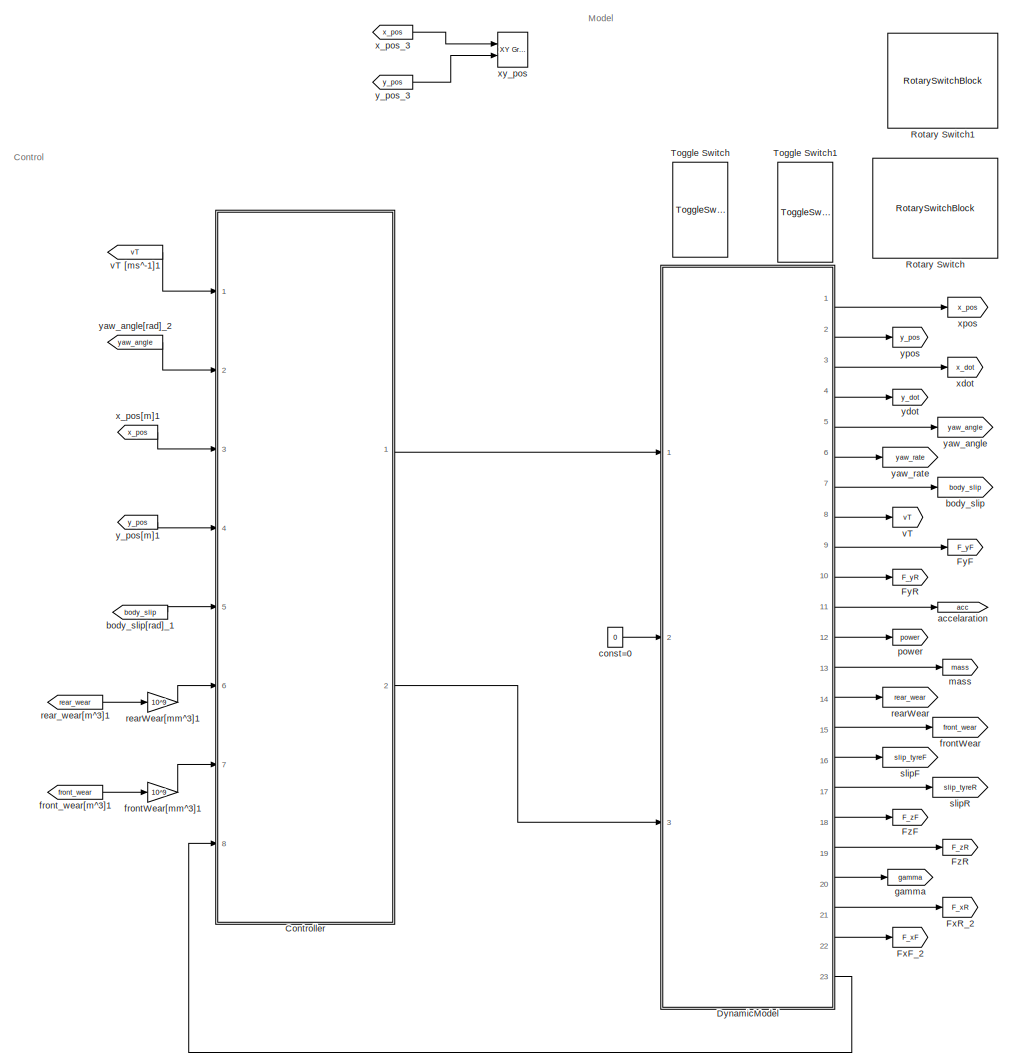
[diagram: root canvas - part 1/3, top center region]
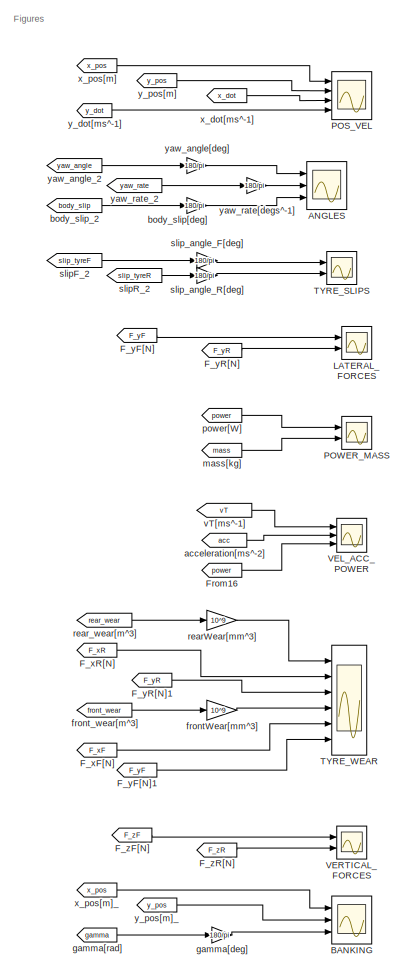
[diagram: root canvas - part 2/3, top right region]
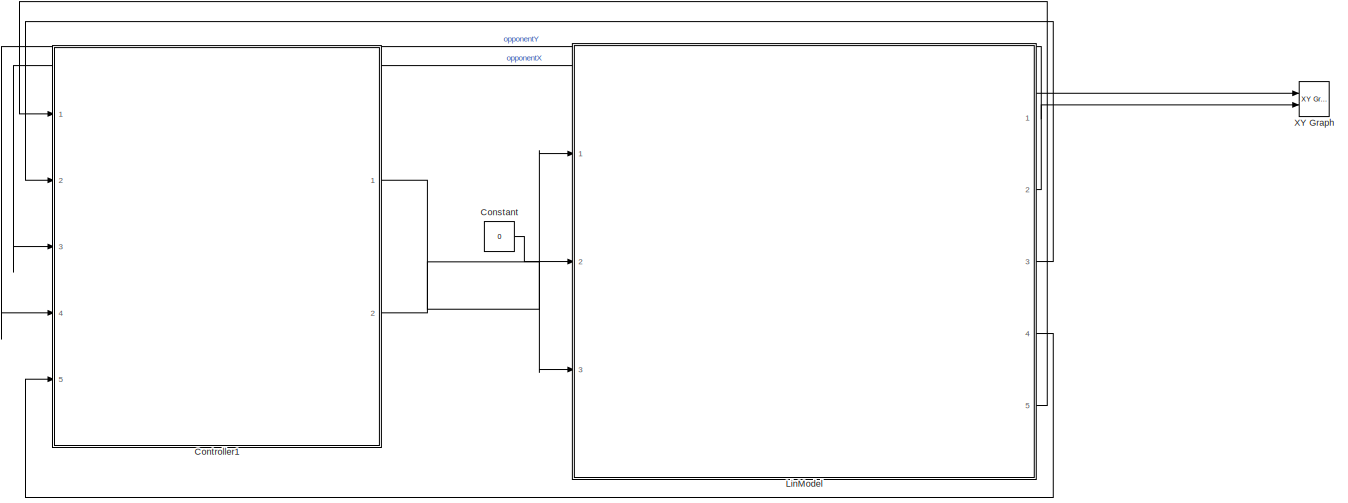
[diagram: root canvas - part 3/3, full width, bottom band]
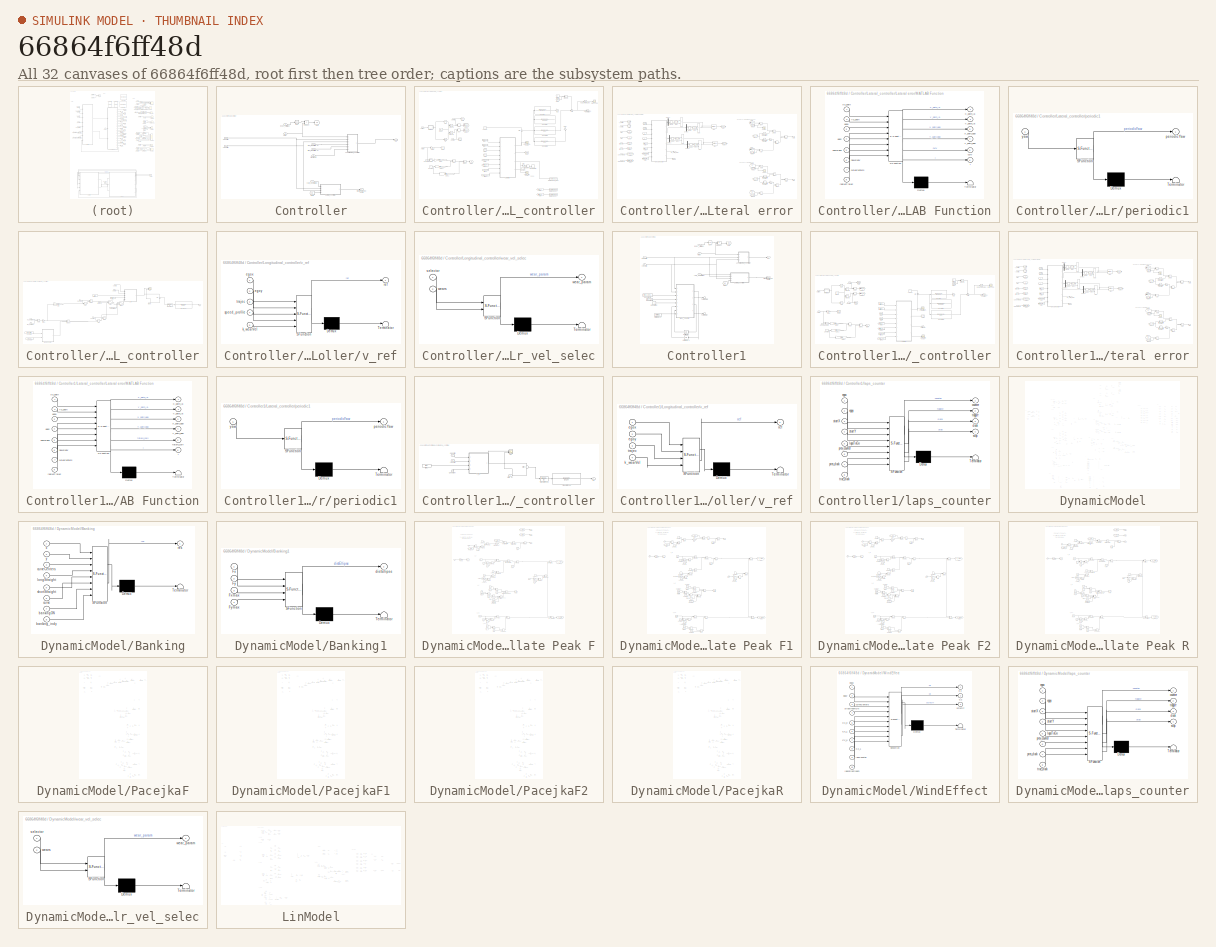
[diagram: thumbnail index - all 32 canvases of the model, root first then tree order]
MODEL slx_66864f6ff48d
KIND model
CONFIG AbsTol = auto
CONFIG EnableMultiTasking = off
CONFIG FixedStep = auto
CONFIG MaxStep = auto
CONFIG MinStep = auto
CONFIG RelTol = 1e-3
CONFIG SampleTimeConstraint = Unconstrained
CONFIG Solver = ode15s
CONFIG SolverName = ode15s
CONFIG StartTime = 0.0
CONFIG StopTime = 1500
BLOCK [Scope] ANGLES
  Floating = off
  NumInputPorts = 3
  Ports = [3]
  ScopeSpecificationString = Simulink.scopes.TimeScopeBlockCfg('CurrentConfiguration', extmgr.ConfigurationSet(extmgr.Configuration('Core','General UI',true,'FigureColor',[1 1 1]),extmgr.Configuration('Core','Source UI',true),extmgr.Configuration('Sources','WiredSimulink',true,'DataLoggingVariableName','ScopeData1'),extmgr.Configuration('Visuals','Time Domain',true,'SerializedDisplays',{struct('MinYLimReal','-42.50472','MaxYL...<+5991ch>
BLOCK [Scope] BANKING
  Floating = off
  NumInputPorts = 3
  Ports = [3]
  ScopeSpecificationString = Simulink.scopes.TimeScopeBlockCfg('CurrentConfiguration', extmgr.ConfigurationSet(extmgr.Configuration('Core','General UI',true,'FigureColor',[1 1 1]),extmgr.Configuration('Core','Source UI',true),extmgr.Configuration('Sources','WiredSimulink',true,'DataLoggingVariableName','ScopeData2'),extmgr.Configuration('Visuals','Time Domain',true,'SerializedDisplays',{struct('MinYLimReal','-955.15333','MaxY...<+5668ch>
BLOCK [Constant] Constant
  Commented = on
  Value = 0
BLOCK [SubSystem] Controller
  Ports = [8, 2]
  RequestExecContextInheritance = off
BLOCK [Trigonometry] Controller/Cos
  Operator = cos
  Ports = [1, 1]
BLOCK [From] Controller/From
  GotoTag = Vx
BLOCK [Outport] Controller/Fx
  Unit = N
BLOCK [Goto] Controller/Goto
  GotoTag = Vx
BLOCK [SubSystem] Controller/Lateral_controller
  Ports = [4, 1]
  RequestExecContextInheritance = off
BLOCK [Abs] Controller/Lateral_controller/Abs
  SaturateOnIntegerOverflow = off
BLOCK [Sum] Controller/Lateral_controller/Add3
  IconShape = rectangular
  Ports = [2, 1]
BLOCK [Sum] Controller/Lateral_controller/Add6
  IconShape = rectangular
  Ports = [2, 1]
BLOCK [Sum] Controller/Lateral_controller/Add7
  IconShape = rectangular
  Ports = [2, 1]
BLOCK [Constant] Controller/Lateral_controller/Constant
  Value = 2
BLOCK [Constant] Controller/Lateral_controller/Constant6
  Value = 2
BLOCK [Constant] Controller/Lateral_controller/Constant7
BLOCK [Trigonometry] Controller/Lateral_controller/Cos
  Operator = cos
  Ports = [1, 1]
BLOCK [Product] Controller/Lateral_controller/Divide3
  Inputs = */
  Ports = [2, 1]
BLOCK [From] Controller/Lateral_controller/From
  GotoTag = egoy
BLOCK [From] Controller/Lateral_controller/From1
  GotoTag = egox
BLOCK [From] Controller/Lateral_controller/From10
  GotoTag = virtual_egoy
BLOCK [From] Controller/Lateral_controller/From11
  GotoTag = la
BLOCK [From] Controller/Lateral_controller/From2
  GotoTag = C
BLOCK [From] Controller/Lateral_controller/From3
  GotoTag = curv
BLOCK [From] Controller/Lateral_controller/From4
  GotoTag = virtual_egoy
BLOCK [From] Controller/Lateral_controller/From5
  GotoTag = virtual_egox
BLOCK [From] Controller/Lateral_controller/From9
  GotoTag = virtual_egox
BLOCK [Gain] Controller/Lateral_controller/Gain
  Commented = on
  Gain = 1.5
BLOCK [Gain] Controller/Lateral_controller/Gain1
  Commented = on
  Gain = 10
  NameLocation = right
BLOCK [Gain] Controller/Lateral_controller/Gain10
  Gain = Cf*Cr*(a+b)^2
BLOCK [Gain] Controller/Lateral_controller/Gain11
  Gain = Cf*Cr*(a + b)
BLOCK [Gain] Controller/Lateral_controller/Gain6
  Gain = 1/2
BLOCK [Gain] Controller/Lateral_controller/Gain9
  Gain = mT*(Cr*b-Cf*a)
BLOCK [Goto] Controller/Lateral_controller/Goto
  GotoTag = egox
BLOCK [Goto] Controller/Lateral_controller/Goto1
  GotoTag = egoy
BLOCK [Goto] Controller/Lateral_controller/Goto10
  GotoTag = virtual_egox
BLOCK [Goto] Controller/Lateral_controller/Goto11
  GotoTag = virtual_egoy
BLOCK [Goto] Controller/Lateral_controller/Goto3
  GotoTag = curv
BLOCK [Goto] Controller/Lateral_controller/Goto4
  GotoTag = la
BLOCK [Goto] Controller/Lateral_controller/Goto7
  GotoTag = C
BLOCK [RelationalOperator] Controller/Lateral_controller/GreaterThan
  InputSameDT = off
  Operator = >
  OutDataTypeStr = boolean
  Ports = [2, 1]
  RndMeth = Simplest
BLOCK [SubSystem] Controller/Lateral_controller/Lateral error
  Ports = [8, 4]
  RequestExecContextInheritance = off
BLOCK [Sum] Controller/Lateral_controller/Lateral error/Add
  IconShape = rectangular
  Inputs = +-
  Ports = [2, 1]
BLOCK [Sum] Controller/Lateral_controller/Lateral error/Add1
  IconShape = rectangular
  Inputs = -+
  Ports = [2, 1]
BLOCK [Sum] Controller/Lateral_controller/Lateral error/Add2
  IconShape = rectangular
  Inputs = -+
  Ports = [2, 1]
BLOCK [Sum] Controller/Lateral_controller/Lateral error/Add3
  IconShape = rectangular
  Inputs = -+
  Ports = [2, 1]
BLOCK [Sum] Controller/Lateral_controller/Lateral error/Add4
  IconShape = rectangular
  Inputs = +-
  Ports = [2, 1]
BLOCK [Sum] Controller/Lateral_controller/Lateral error/Add5
  IconShape = rectangular
  Ports = [2, 1]
BLOCK [Sum] Controller/Lateral_controller/Lateral error/Add6
  IconShape = rectangular
  Inputs = -+
  Ports = [2, 1]
BLOCK [Sum] Controller/Lateral_controller/Lateral error/Add7
  IconShape = rectangular
  Inputs = +-
  Ports = [2, 1]
BLOCK [Sum] Controller/Lateral_controller/Lateral error/Add8
  IconShape = rectangular
  Inputs = +-
  Ports = [2, 1]
BLOCK [Sum] Controller/Lateral_controller/Lateral error/Add9
  IconShape = rectangular
  Ports = [2, 1]
BLOCK [Trigonometry] Controller/Lateral_controller/Lateral error/Atan1
  Operator = atan2
  Ports = [2, 1]
BLOCK [Trigonometry] Controller/Lateral_controller/Lateral error/Atan2
  Operator = atan2
  Ports = [2, 1]
BLOCK [Demux] Controller/Lateral_controller/Lateral error/Demux1
  Outputs = 3
  Ports = [1, 3]
BLOCK [Demux] Controller/Lateral_controller/Lateral error/Demux2
  Outputs = 3
  Ports = [1, 3]
BLOCK [Demux] Controller/Lateral_controller/Lateral error/Demux3
  Outputs = 3
  Ports = [1, 3]
BLOCK [Demux] Controller/Lateral_controller/Lateral error/Demux4
  Outputs = 3
  Ports = [1, 3]
BLOCK [Product] Controller/Lateral_controller/Lateral error/Divide1
  Inputs = **
  Ports = [2, 1]
BLOCK [Product] Controller/Lateral_controller/Lateral error/Divide2
  Inputs = **
  Ports = [2, 1]
BLOCK [Product] Controller/Lateral_controller/Lateral error/Divide3
  Inputs = **
  Ports = [2, 1]
BLOCK [Product] Controller/Lateral_controller/Lateral error/Divide4
  Inputs = **
  Ports = [2, 1]
BLOCK [From] Controller/Lateral_controller/Lateral error/From
  GotoTag = curveCenters
BLOCK [From] Controller/Lateral_controller/Lateral error/From1
  GotoTag = radiusTrajec
BLOCK [From] Controller/Lateral_controller/Lateral error/From10
  GotoTag = Y_p_virt
BLOCK [From] Controller/Lateral_controller/Lateral error/From11
  GotoTag = Y
BLOCK [From] Controller/Lateral_controller/Lateral error/From12
  GotoTag = Y_p_ego
BLOCK [From] Controller/Lateral_controller/Lateral error/From13
  GotoTag = psi_p_virt
BLOCK [From] Controller/Lateral_controller/Lateral error/From14
  GotoTag = psi_p_ego
BLOCK [From] Controller/Lateral_controller/Lateral error/From15
  GotoTag = Y
BLOCK [From] Controller/Lateral_controller/Lateral error/From16
  GotoTag = X
BLOCK [From] Controller/Lateral_controller/Lateral error/From17
  GotoTag = X_p_ego
BLOCK [From] Controller/Lateral_controller/Lateral error/From2
  GotoTag = Virtual_Y
BLOCK [From] Controller/Lateral_controller/Lateral error/From3
  GotoTag = Virtual_X
BLOCK [From] Controller/Lateral_controller/Lateral error/From4
  GotoTag = X_path
BLOCK [From] Controller/Lateral_controller/Lateral error/From5
  GotoTag = X
BLOCK [From] Controller/Lateral_controller/Lateral error/From6
  GotoTag = Y_path
BLOCK [From] Controller/Lateral_controller/Lateral error/From7
  GotoTag = Virtual_X
BLOCK [From] Controller/Lateral_controller/Lateral error/From8
  GotoTag = Virtual_Y
BLOCK [From] Controller/Lateral_controller/Lateral error/From9
  GotoTag = X_p_virt
BLOCK [Gain] Controller/Lateral_controller/Lateral error/Gain
  Gain = -1
BLOCK [Gain] Controller/Lateral_controller/Lateral error/Gain1
  Gain = -1
BLOCK [Goto] Controller/Lateral_controller/Lateral error/Goto1
  GotoTag = radiusTrajec
BLOCK [Goto] Controller/Lateral_controller/Lateral error/Goto10
  GotoTag = Virtual_X
BLOCK [Goto] Controller/Lateral_controller/Lateral error/Goto11
  GotoTag = Virtual_Y
BLOCK [Goto] Controller/Lateral_controller/Lateral error/Goto12
  GotoTag = X_p_ego
BLOCK [Goto] Controller/Lateral_controller/Lateral error/Goto13
  GotoTag = Y_p_ego
BLOCK [Goto] Controller/Lateral_controller/Lateral error/Goto14
  GotoTag = psi_p_ego
BLOCK [Goto] Controller/Lateral_controller/Lateral error/Goto2
  GotoTag = curveCenters
BLOCK [Goto] Controller/Lateral_controller/Lateral error/Goto3
  GotoTag = X_p_virt
BLOCK [Goto] Controller/Lateral_controller/Lateral error/Goto4
  GotoTag = X
BLOCK [Goto] Controller/Lateral_controller/Lateral error/Goto5
  GotoTag = Y_p_virt
BLOCK [Goto] Controller/Lateral_controller/Lateral error/Goto6
  GotoTag = Y
BLOCK [Goto] Controller/Lateral_controller/Lateral error/Goto7
  GotoTag = psi_p_virt
BLOCK [Goto] Controller/Lateral_controller/Lateral error/Goto8
  GotoTag = X_path
BLOCK [Goto] Controller/Lateral_controller/Lateral error/Goto9
  GotoTag = Y_path
BLOCK [SubSystem] Controller/Lateral_controller/Lateral error/MATLAB Function
  ErrorFcn = Stateflow.Translate.translate
  PermitHierarchicalResolution = ExplicitOnly
  Ports = [8, 6]
  RequestExecContextInheritance = off
  SFBlockType = MATLAB Function
  TreatAsAtomicUnit = on
BLOCK [Demux] Controller/Lateral_controller/Lateral error/MATLAB Function/ Demux 
  Outputs = 1
  Ports = [1, 1]
BLOCK [S-Function] Controller/Lateral_controller/Lateral error/MATLAB Function/ SFunction 
  EnableBusSupport = on
  FunctionName = sf_sfun
  PortCounts = [8 7]
  Ports = [8, 7]
  SFcnIsStateOwnerBlock = off
  SFunctionDeploymentMode = off
  Tag = Stateflow S-Function 9
BLOCK [Terminator] Controller/Lateral_controller/Lateral error/MATLAB Function/ Terminator 
BLOCK [Outport] Controller/Lateral_controller/Lateral error/MATLAB Function/I
  Port = 6
  VectorParamsAs1DForOutWhenUnconnected = off
BLOCK [Outport] Controller/Lateral_controller/Lateral error/MATLAB Function/X_path_ego
  Port = 3
BLOCK [Outport] Controller/Lateral_controller/Lateral error/MATLAB Function/X_path_la
  VectorParamsAs1DForOutWhenUnconnected = off
BLOCK [Inport] Controller/Lateral_controller/Lateral error/MATLAB Function/Xs_path
BLOCK [Outport] Controller/Lateral_controller/Lateral error/MATLAB Function/Y_path_ego
  Port = 4
BLOCK [Outport] Controller/Lateral_controller/Lateral error/MATLAB Function/Y_path_la
  Port = 2
  VectorParamsAs1DForOutWhenUnconnected = off
BLOCK [Inport] Controller/Lateral_controller/Lateral error/MATLAB Function/Ys_path
  Port = 2
BLOCK [Outport] Controller/Lateral_controller/Lateral error/MATLAB Function/curv
  Port = 5
  VectorParamsAs1DForOutWhenUnconnected = off
BLOCK [Inport] Controller/Lateral_controller/Lateral error/MATLAB Function/curveCenters
  Port = 7
BLOCK [Inport] Controller/Lateral_controller/Lateral error/MATLAB Function/egox
  Port = 3
BLOCK [Inport] Controller/Lateral_controller/Lateral error/MATLAB Function/egoy
  Port = 4
BLOCK [Inport] Controller/Lateral_controller/Lateral error/MATLAB Function/newEgox
  Port = 5
BLOCK [Inport] Controller/Lateral_controller/Lateral error/MATLAB Function/newEgoy
  Port = 6
BLOCK [Inport] Controller/Lateral_controller/Lateral error/MATLAB Function/radiusTrajec
  Port = 8
BLOCK [Quantizer] Controller/Lateral_controller/Lateral error/Quant X
  Commented = through
  QuantizationInterval = 0.007
BLOCK [Quantizer] Controller/Lateral_controller/Lateral error/Quant X1
  Commented = through
  QuantizationInterval = 0.007
BLOCK [Quantizer] Controller/Lateral_controller/Lateral error/Quant Y
  Commented = through
  QuantizationInterval = 0.01
BLOCK [Quantizer] Controller/Lateral_controller/Lateral error/Quant Y1
  Commented = through
  QuantizationInterval = 0.01
BLOCK [Scope] Controller/Lateral_controller/Lateral error/Scope1
  Floating = off
  NumInputPorts = 1
  Ports = [1]
  ScopeSpecificationString = Simulink.scopes.TimeScopeBlockCfg('CurrentConfiguration', extmgr.ConfigurationSet(extmgr.Configuration('Core','General UI',true),extmgr.Configuration('Core','Source UI',true),extmgr.Configuration('Sources','WiredSimulink',true,'DataLoggingVariableName','ScopeData1','DataLoggingLimitDataPoints',true,'DataLoggingSaveFormat','Array','DataLoggingDecimation','1','DataLoggingDecimateData',true),extmgr.C...<+1503ch>
BLOCK [Scope] Controller/Lateral_controller/Lateral error/Scope6
  Floating = off
  NumInputPorts = 1
  Ports = [1]
  ScopeSpecificationString = Simulink.scopes.TimeScopeBlockCfg('CurrentConfiguration', extmgr.ConfigurationSet(extmgr.Configuration('Core','General UI',true),extmgr.Configuration('Core','Source UI',true),extmgr.Configuration('Sources','WiredSimulink',true,'DataLoggingVariableName','ScopeData3','DataLoggingLimitDataPoints',true,'DataLoggingSaveFormat','Array','DataLoggingDecimation','1','DataLoggingDecimateData',true),extmgr.C...<+1503ch>
BLOCK [Trigonometry] Controller/Lateral_controller/Lateral error/Trigonometric Function
  Ports = [1, 1]
BLOCK [Trigonometry] Controller/Lateral_controller/Lateral error/Trigonometric Function1
  Operator = cos
  Ports = [1, 1]
BLOCK [Trigonometry] Controller/Lateral_controller/Lateral error/Trigonometric Function2
  Ports = [1, 1]
BLOCK [Trigonometry] Controller/Lateral_controller/Lateral error/Trigonometric Function3
  Operator = cos
  Ports = [1, 1]
BLOCK [Inport] Controller/Lateral_controller/Lateral error/Virtual_X [m]
  Port = 5
BLOCK [Inport] Controller/Lateral_controller/Lateral error/Virtual_Y [m]
  Port = 6
BLOCK [Inport] Controller/Lateral_controller/Lateral error/X [m]
  Port = 3
BLOCK [Inport] Controller/Lateral_controller/Lateral error/X_path [m]
BLOCK [Inport] Controller/Lateral_controller/Lateral error/Y [m]
  Port = 4
BLOCK [Inport] Controller/Lateral_controller/Lateral error/Y_path [m]
  Port = 2
BLOCK [Inport] Controller/Lateral_controller/Lateral error/curveCenters[m]
  Port = 7
  Unit = m
BLOCK [Outport] Controller/Lateral_controller/Lateral error/e [m]
  Port = 4
  VectorParamsAs1DForOutWhenUnconnected = off
BLOCK [Outport] Controller/Lateral_controller/Lateral error/e_la [m]
  VectorParamsAs1DForOutWhenUnconnected = off
BLOCK [Outport] Controller/Lateral_controller/Lateral error/index [-]
  Port = 3
  VectorParamsAs1DForOutWhenUnconnected = off
BLOCK [Inport] Controller/Lateral_controller/Lateral error/radiusTrajec[m]
  Port = 8
  Unit = m
BLOCK [Outport] Controller/Lateral_controller/Lateral error/rho_path_la [1//m]
  Port = 2
  VectorParamsAs1DForOutWhenUnconnected = off
BLOCK [Scope] Controller/Lateral_controller/Lateral_error_la_scope
  Floating = off
  NumInputPorts = 1
  Ports = [1]
  ScopeSpecificationString = Simulink.scopes.TimeScopeBlockCfg('CurrentConfiguration', extmgr.ConfigurationSet(extmgr.Configuration('Core','General UI',true,'FigureColor',[1 1 1]),extmgr.Configuration('Core','Source UI',true),extmgr.Configuration('Sources','WiredSimulink',true,'DataLoggingVariableName','ScopeData1'),extmgr.Configuration('Visuals','Time Domain',true,'SerializedDisplays',{struct('MinYLimReal','-0.27674','MaxYLi...<+2379ch>
BLOCK [Scope] Controller/Lateral_controller/Lateral_error_scope
  Floating = off
  NumInputPorts = 1
  Ports = [1]
  ScopeSpecificationString = Simulink.scopes.TimeScopeBlockCfg('CurrentConfiguration', extmgr.ConfigurationSet(extmgr.Configuration('Core','General UI',true,'FigureColor',[1 1 1]),extmgr.Configuration('Core','Source UI',true),extmgr.Configuration('Sources','WiredSimulink',true,'DataLoggingVariableName','ScopeData1'),extmgr.Configuration('Visuals','Time Domain',true,'SerializedDisplays',{struct('MinYLimReal','-0.85594','MaxYLi...<+2403ch>
BLOCK [Math] Controller/Lateral_controller/Power1
  Operator = pow
  Ports = [2, 1]
BLOCK [Product] Controller/Lateral_controller/Product2
  Ports = [2, 1]
BLOCK [Product] Controller/Lateral_controller/Product5
  Ports = [2, 1]
BLOCK [Product] Controller/Lateral_controller/Product6
  Ports = [2, 1]
BLOCK [Reference] Controller/Lateral_controller/Radians to Degrees  REF=simulink_extras/Transformations/Radians
to Degrees
  Ports = [1, 1]
  SourceBlock = simulink_extras/Transformations/Radians\nto Degrees
  SourceProductBaseCode = SL
  SourceType = RadiansToDegrees
BLOCK [TransferFcn] Controller/Lateral_controller/Regulator
  Commented = on
  Denominator = [1 12.57 0]
  Numerator = [0.3852 0.0484 0.0016]
BLOCK [TransferFcn] Controller/Lateral_controller/RegulatorDI
  Commented = on
  Denominator = [1 100 0 0]
  Numerator = [3.0396 0.381956 0.0119992]
BLOCK [TransferFcn] Controller/Lateral_controller/RegulatorDI1
  Denominator = [1 0 0]
  Numerator = [0.030394 0.00381931 0.000119984]
BLOCK [TransferFcn] Controller/Lateral_controller/RegulatorDI2
  Commented = on
  Denominator = [1 0 0]
  Numerator = [0.016465 0.00206899 0.0000649974]
BLOCK [Trigonometry] Controller/Lateral_controller/Sin
  Ports = [1, 1]
BLOCK [Outport] Controller/Lateral_controller/Steering wheel angle[rad]
BLOCK [Stop] Controller/Lateral_controller/Stop Simulation
BLOCK [Inport] Controller/Lateral_controller/Vx[m//s]
  Port = 4
BLOCK [Constant] Controller/Lateral_controller/const=0
  Value = 0
BLOCK [Sum] Controller/Lateral_controller/delta
  Inputs = ++|
  Ports = [2, 1]
BLOCK [Scope] Controller/Lateral_controller/delta_scope
  Floating = off
  NumInputPorts = 1
  Ports = [1]
  ScopeSpecificationString = Simulink.scopes.TimeScopeBlockCfg('CurrentConfiguration', extmgr.ConfigurationSet(extmgr.Configuration('Core','General UI',true,'FigureColor',[1 1 1]),extmgr.Configuration('Core','Source UI',true),extmgr.Configuration('Sources','WiredSimulink',true,'DataLoggingVariableName','ScopeData3'),extmgr.Configuration('Visuals','Time Domain',true,'SerializedDisplays',{struct('MinYLimReal','-1.82893','MaxYLi...<+2382ch>
BLOCK [Sum] Controller/Lateral_controller/error
  Inputs = +-
  Ports = [2, 1]
BLOCK [SubSystem] Controller/Lateral_controller/periodic1
  ErrorFcn = Stateflow.Translate.translate
  PermitHierarchicalResolution = ExplicitOnly
  Ports = [1, 1]
  RequestExecContextInheritance = off
  SFBlockType = MATLAB Function
  TreatAsAtomicUnit = on
BLOCK [Demux] Controller/Lateral_controller/periodic1/ Demux 
  Outputs = 1
  Ports = [1, 1]
BLOCK [S-Function] Controller/Lateral_controller/periodic1/ SFunction 
  EnableBusSupport = on
  FunctionName = sf_sfun
  PortCounts = [1 2]
  Ports = [1, 2]
  SFcnIsStateOwnerBlock = off
  SFunctionDeploymentMode = off
  Tag = Stateflow S-Function 3
BLOCK [Terminator] Controller/Lateral_controller/periodic1/ Terminator 
BLOCK [Outport] Controller/Lateral_controller/periodic1/periodicYaw
BLOCK [Inport] Controller/Lateral_controller/periodic1/yaw
BLOCK [ToWorkspace] Controller/Lateral_controller/toWorkspace_index
  FixptAsFi = on
  MaxDataPoints = inf
  Ports = [1]
  SampleTime = -1
  SaveFormat = Timeseries
  VariableName = debugTest_index
BLOCK [ToWorkspace] Controller/Lateral_controller/toWorkspace_x
  FixptAsFi = on
  MaxDataPoints = inf
  Ports = [1]
  SampleTime = -1
  SaveFormat = Timeseries
  VariableName = debugTest_virtualX
BLOCK [ToWorkspace] Controller/Lateral_controller/toWorkspace_y
  FixptAsFi = on
  MaxDataPoints = inf
  Ports = [1]
  SampleTime = -1
  SaveFormat = Timeseries
  VariableName = debugTest_virtualY
BLOCK [Constant] Controller/Lateral_controller/trajec1
  Value = trajec(2,:)
BLOCK [Constant] Controller/Lateral_controller/trajec2
  Value = curveCenters
BLOCK [Constant] Controller/Lateral_controller/trajec3
  Value = radius_second_lane
BLOCK [Constant] Controller/Lateral_controller/trajec4
  Value = trajec(3,:)
BLOCK [Inport] Controller/Lateral_controller/xpos[m]
  Port = 2
BLOCK [Inport] Controller/Lateral_controller/yaw[rad]
BLOCK [Inport] Controller/Lateral_controller/ypos[m]
  Port = 3
BLOCK [SubSystem] Controller/Longitudinal_controller
  Ports = [6, 1]
  RequestExecContextInheritance = off
BLOCK [Sum] Controller/Longitudinal_controller/Add
  IconShape = rectangular
  Ports = [2, 1]
BLOCK [Sum] Controller/Longitudinal_controller/Add1
  IconShape = rectangular
  Ports = [2, 1]
BLOCK [Sum] Controller/Longitudinal_controller/Add2
  IconShape = rectangular
  Ports = [2, 1]
BLOCK [Constant] Controller/Longitudinal_controller/Constant
BLOCK [Constant] Controller/Longitudinal_controller/Constant1
BLOCK [Constant] Controller/Longitudinal_controller/Constant2
  Value = stressTestSelector
BLOCK [Constant] Controller/Longitudinal_controller/Constant3
  Value = K_wear_vel_0_set
BLOCK [Constant] Controller/Longitudinal_controller/Constant6
  Value = wear_relError_selector
BLOCK [Product] Controller/Longitudinal_controller/Divide
  Inputs = */
  Ports = [2, 1]
BLOCK [Product] Controller/Longitudinal_controller/Divide1
  Inputs = */
  Ports = [2, 1]
BLOCK [Outport] Controller/Longitudinal_controller/Fx
BLOCK [Gain] Controller/Longitudinal_controller/Gain
  Gain = K_wear_vel_1
BLOCK [Gain] Controller/Longitudinal_controller/Gain1
  Gain = 0.5
BLOCK [Product] Controller/Longitudinal_controller/Product
  Ports = [2, 1]
BLOCK [Switch] Controller/Longitudinal_controller/Switch
  Criteria = u2 > Threshold
  InputSameDT = off
  SaturateOnIntegerOverflow = off
BLOCK [Switch] Controller/Longitudinal_controller/Switch1
  Criteria = u2 > Threshold
  InputSameDT = off
  SaturateOnIntegerOverflow = off
BLOCK [TransferFcn] Controller/Longitudinal_controller/Transfer Fcn1
  Denominator = [1 0.2 0]
  Numerator = [1 0.6 0.09]
BLOCK [TransferFcn] Controller/Longitudinal_controller/Transfer Fcn2
  Denominator = [1]
  Numerator = [6500]
BLOCK [Scope] Controller/Longitudinal_controller/Vel
  Floating = off
  NumInputPorts = 2
  Ports = [2]
  ScopeSpecificationString = Simulink.scopes.TimeScopeBlockCfg('CurrentConfiguration', extmgr.ConfigurationSet(extmgr.Configuration('Core','General UI',true,'FigureColor',[1 1 1]),extmgr.Configuration('Core','Source UI',true),extmgr.Configuration('Sources','WiredSimulink',true,'DataLoggingVariableName','ScopeData2'),extmgr.Configuration('Visuals','Time Domain',true,'SerializedDisplays',{struct('MinYLimReal','72.66722','MaxYLi...<+2363ch>
BLOCK [Sum] Controller/Longitudinal_controller/error
  Inputs = +-
  Ports = [2, 1]
BLOCK [Inport] Controller/Longitudinal_controller/front_wear[mm^3]
  Port = 5
BLOCK [Inport] Controller/Longitudinal_controller/rear_wear[mm^3]
  Port = 4
BLOCK [Inport] Controller/Longitudinal_controller/slipstream
  Port = 6
BLOCK [Constant] Controller/Longitudinal_controller/trajec
  Value = trajec(5,:)
BLOCK [Constant] Controller/Longitudinal_controller/trajec1
  Value = trajec
BLOCK [Inport] Controller/Longitudinal_controller/v[ms^-1]
BLOCK [SubSystem] Controller/Longitudinal_controller/v_ref
  ErrorFcn = Stateflow.Translate.translate
  PermitHierarchicalResolution = ExplicitOnly
  Ports = [5, 1]
  RequestExecContextInheritance = off
  SFBlockType = MATLAB Function
  TreatAsAtomicUnit = on
BLOCK [Demux] Controller/Longitudinal_controller/v_ref/ Demux 
  Outputs = 1
  Ports = [1, 1]
BLOCK [S-Function] Controller/Longitudinal_controller/v_ref/ SFunction 
  EnableBusSupport = on
  FunctionName = sf_sfun
  PortCounts = [5 2]
  Ports = [5, 2]
  SFcnIsStateOwnerBlock = off
  SFunctionDeploymentMode = off
  Tag = Stateflow S-Function 1
BLOCK [Terminator] Controller/Longitudinal_controller/v_ref/ Terminator 
BLOCK [Inport] Controller/Longitudinal_controller/v_ref/egox
BLOCK [Inport] Controller/Longitudinal_controller/v_ref/egoy
  Port = 2
BLOCK [Inport] Controller/Longitudinal_controller/v_ref/k_wearVel
  Port = 5
BLOCK [Outport] Controller/Longitudinal_controller/v_ref/ref
BLOCK [Inport] Controller/Longitudinal_controller/v_ref/speed_profile
  Port = 4
BLOCK [Inport] Controller/Longitudinal_controller/v_ref/trajec
  Port = 3
BLOCK [SubSystem] Controller/Longitudinal_controller/wear_vel_selec
  ErrorFcn = Stateflow.Translate.translate
  PermitHierarchicalResolution = ExplicitOnly
  Ports = [2, 1]
  RequestExecContextInheritance = off
  SFBlockType = MATLAB Function
  TreatAsAtomicUnit = on
BLOCK [Demux] Controller/Longitudinal_controller/wear_vel_selec/ Demux 
  Outputs = 1
  Ports = [1, 1]
BLOCK [S-Function] Controller/Longitudinal_controller/wear_vel_selec/ SFunction 
  EnableBusSupport = on
  FunctionName = sf_sfun
  PortCounts = [2 2]
  Ports = [2, 2]
  SFcnIsStateOwnerBlock = off
  SFunctionDeploymentMode = off
  Tag = Stateflow S-Function 12
BLOCK [Terminator] Controller/Longitudinal_controller/wear_vel_selec/ Terminator 
BLOCK [Inport] Controller/Longitudinal_controller/wear_vel_selec/selector
BLOCK [Outport] Controller/Longitudinal_controller/wear_vel_selec/wear_param
BLOCK [Inport] Controller/Longitudinal_controller/wear_vel_selec/wears
  Port = 2
BLOCK [Inport] Controller/Longitudinal_controller/xpos[m]
  Port = 2
BLOCK [Inport] Controller/Longitudinal_controller/ypos[m]
  Port = 3
BLOCK [Product] Controller/Product
  Ports = [2, 1]
BLOCK [Outport] Controller/Steering Wheel Angle
  Port = 2
  Unit = rad
BLOCK [Inport] Controller/body_slip[rad]
  Port = 5
BLOCK [Inport] Controller/front_wear[mm^3]
  Port = 7
BLOCK [Inport] Controller/rear_wear[mm^3]
  Port = 6
BLOCK [Inport] Controller/slipstream
  Port = 8
BLOCK [Inport] Controller/v[m//s]
  Unit = m/s
BLOCK [Inport] Controller/xpos[m]
  Port = 3
BLOCK [Inport] Controller/yaw_angle[rad]
  Port = 2
BLOCK [Inport] Controller/ypos[m]
  Port = 4
BLOCK [SubSystem] Controller1
  Commented = on
  Ports = [5, 2]
  RequestExecContextInheritance = off
BLOCK [Constant] Controller1/Constant
BLOCK [Constant] Controller1/Constant1
  Value = init_x_pos + 10
BLOCK [Constant] Controller1/Constant2
  Value = init_y_pos
BLOCK [Trigonometry] Controller1/Cos
  Operator = cos
  Ports = [1, 1]
BLOCK [DigitalClock] Controller1/Digital Clock
BLOCK [From] Controller1/From
  GotoTag = Vx
BLOCK [Outport] Controller1/Fx
  Unit = N
BLOCK [Goto] Controller1/Goto
  GotoTag = Vx
BLOCK [SubSystem] Controller1/Lateral_controller
  Ports = [4, 1]
  RequestExecContextInheritance = off
BLOCK [Sum] Controller1/Lateral_controller/Add3
  IconShape = rectangular
  Ports = [2, 1]
BLOCK [Sum] Controller1/Lateral_controller/Add6
  IconShape = rectangular
  Ports = [2, 1]
BLOCK [Sum] Controller1/Lateral_controller/Add7
  IconShape = rectangular
  Ports = [2, 1]
BLOCK [Constant] Controller1/Lateral_controller/Constant6
  Value = 2
BLOCK [Constant] Controller1/Lateral_controller/Constant7
BLOCK [Trigonometry] Controller1/Lateral_controller/Cos
  Operator = cos
  Ports = [1, 1]
BLOCK [Product] Controller1/Lateral_controller/Divide3
  Inputs = */
  Ports = [2, 1]
BLOCK [From] Controller1/Lateral_controller/From
  GotoTag = egoy
BLOCK [From] Controller1/Lateral_controller/From1
  GotoTag = egox
BLOCK [From] Controller1/Lateral_controller/From10
  GotoTag = virtual_egoy
BLOCK [From] Controller1/Lateral_controller/From11
  GotoTag = la
BLOCK [From] Controller1/Lateral_controller/From2
  GotoTag = C
BLOCK [From] Controller1/Lateral_controller/From3
  GotoTag = curv
BLOCK [From] Controller1/Lateral_controller/From9
  GotoTag = virtual_egox
BLOCK [Gain] Controller1/Lateral_controller/Gain
  Commented = on
  Gain = 1.5
BLOCK [Gain] Controller1/Lateral_controller/Gain10
  Gain = Cf*Cr*(a+b)^2
BLOCK [Gain] Controller1/Lateral_controller/Gain11
  Gain = Cf*Cr*(a + b)
BLOCK [Gain] Controller1/Lateral_controller/Gain6
  Gain = 1/3
BLOCK [Gain] Controller1/Lateral_controller/Gain9
  Gain = mT*(Cr*b-Cf*a)
BLOCK [Goto] Controller1/Lateral_controller/Goto
  GotoTag = egox
BLOCK [Goto] Controller1/Lateral_controller/Goto1
  GotoTag = egoy
BLOCK [Goto] Controller1/Lateral_controller/Goto10
  GotoTag = virtual_egox
BLOCK [Goto] Controller1/Lateral_controller/Goto11
  GotoTag = virtual_egoy
BLOCK [Goto] Controller1/Lateral_controller/Goto3
  GotoTag = curv
BLOCK [Goto] Controller1/Lateral_controller/Goto4
  GotoTag = la
BLOCK [Goto] Controller1/Lateral_controller/Goto7
  GotoTag = C
BLOCK [SubSystem] Controller1/Lateral_controller/Lateral error
  Ports = [8, 4]
  RequestExecContextInheritance = off
BLOCK [Sum] Controller1/Lateral_controller/Lateral error/Add
  IconShape = rectangular
  Inputs = +-
  Ports = [2, 1]
BLOCK [Sum] Controller1/Lateral_controller/Lateral error/Add1
  IconShape = rectangular
  Inputs = -+
  Ports = [2, 1]
BLOCK [Sum] Controller1/Lateral_controller/Lateral error/Add2
  IconShape = rectangular
  Inputs = -+
  Ports = [2, 1]
BLOCK [Sum] Controller1/Lateral_controller/Lateral error/Add3
  IconShape = rectangular
  Inputs = -+
  Ports = [2, 1]
BLOCK [Sum] Controller1/Lateral_controller/Lateral error/Add4
  IconShape = rectangular
  Inputs = +-
  Ports = [2, 1]
BLOCK [Sum] Controller1/Lateral_controller/Lateral error/Add5
  IconShape = rectangular
  Ports = [2, 1]
BLOCK [Sum] Controller1/Lateral_controller/Lateral error/Add6
  IconShape = rectangular
  Inputs = -+
  Ports = [2, 1]
BLOCK [Sum] Controller1/Lateral_controller/Lateral error/Add7
  IconShape = rectangular
  Inputs = +-
  Ports = [2, 1]
BLOCK [Sum] Controller1/Lateral_controller/Lateral error/Add8
  IconShape = rectangular
  Inputs = +-
  Ports = [2, 1]
BLOCK [Sum] Controller1/Lateral_controller/Lateral error/Add9
  IconShape = rectangular
  Ports = [2, 1]
BLOCK [Trigonometry] Controller1/Lateral_controller/Lateral error/Atan1
  Operator = atan2
  Ports = [2, 1]
BLOCK [Trigonometry] Controller1/Lateral_controller/Lateral error/Atan2
  Operator = atan2
  Ports = [2, 1]
BLOCK [Demux] Controller1/Lateral_controller/Lateral error/Demux1
  Outputs = 3
  Ports = [1, 3]
BLOCK [Demux] Controller1/Lateral_controller/Lateral error/Demux2
  Outputs = 3
  Ports = [1, 3]
BLOCK [Demux] Controller1/Lateral_controller/Lateral error/Demux3
  Outputs = 3
  Ports = [1, 3]
BLOCK [Demux] Controller1/Lateral_controller/Lateral error/Demux4
  Outputs = 3
  Ports = [1, 3]
BLOCK [Product] Controller1/Lateral_controller/Lateral error/Divide1
  Inputs = **
  Ports = [2, 1]
BLOCK [Product] Controller1/Lateral_controller/Lateral error/Divide2
  Inputs = **
  Ports = [2, 1]
BLOCK [Product] Controller1/Lateral_controller/Lateral error/Divide3
  Inputs = **
  Ports = [2, 1]
BLOCK [Product] Controller1/Lateral_controller/Lateral error/Divide4
  Inputs = **
  Ports = [2, 1]
BLOCK [From] Controller1/Lateral_controller/Lateral error/From
  GotoTag = curveCenters
BLOCK [From] Controller1/Lateral_controller/Lateral error/From1
  GotoTag = radiusTrajec
BLOCK [From] Controller1/Lateral_controller/Lateral error/From10
  GotoTag = Y_p_virt
BLOCK [From] Controller1/Lateral_controller/Lateral error/From11
  GotoTag = Y
BLOCK [From] Controller1/Lateral_controller/Lateral error/From12
  GotoTag = Y_p_ego
BLOCK [From] Controller1/Lateral_controller/Lateral error/From13
  GotoTag = psi_p_virt
BLOCK [From] Controller1/Lateral_controller/Lateral error/From14
  GotoTag = psi_p_ego
BLOCK [From] Controller1/Lateral_controller/Lateral error/From15
  GotoTag = Y
BLOCK [From] Controller1/Lateral_controller/Lateral error/From16
  GotoTag = X
BLOCK [From] Controller1/Lateral_controller/Lateral error/From17
  GotoTag = X_p_ego
BLOCK [From] Controller1/Lateral_controller/Lateral error/From2
  GotoTag = Virtual_Y
BLOCK [From] Controller1/Lateral_controller/Lateral error/From3
  GotoTag = Virtual_X
BLOCK [From] Controller1/Lateral_controller/Lateral error/From4
  GotoTag = X_path
BLOCK [From] Controller1/Lateral_controller/Lateral error/From5
  GotoTag = X
BLOCK [From] Controller1/Lateral_controller/Lateral error/From6
  GotoTag = Y_path
BLOCK [From] Controller1/Lateral_controller/Lateral error/From7
  GotoTag = Virtual_X
BLOCK [From] Controller1/Lateral_controller/Lateral error/From8
  GotoTag = Virtual_Y
BLOCK [From] Controller1/Lateral_controller/Lateral error/From9
  GotoTag = X_p_virt
BLOCK [Gain] Controller1/Lateral_controller/Lateral error/Gain
  Gain = -1
BLOCK [Gain] Controller1/Lateral_controller/Lateral error/Gain1
  Gain = -1
BLOCK [Goto] Controller1/Lateral_controller/Lateral error/Goto1
  GotoTag = radiusTrajec
BLOCK [Goto] Controller1/Lateral_controller/Lateral error/Goto10
  GotoTag = Virtual_X
BLOCK [Goto] Controller1/Lateral_controller/Lateral error/Goto11
  GotoTag = Virtual_Y
BLOCK [Goto] Controller1/Lateral_controller/Lateral error/Goto12
  GotoTag = X_p_ego
BLOCK [Goto] Controller1/Lateral_controller/Lateral error/Goto13
  GotoTag = Y_p_ego
BLOCK [Goto] Controller1/Lateral_controller/Lateral error/Goto14
  GotoTag = psi_p_ego
BLOCK [Goto] Controller1/Lateral_controller/Lateral error/Goto2
  GotoTag = curveCenters
BLOCK [Goto] Controller1/Lateral_controller/Lateral error/Goto3
  GotoTag = X_p_virt
BLOCK [Goto] Controller1/Lateral_controller/Lateral error/Goto4
  GotoTag = X
BLOCK [Goto] Controller1/Lateral_controller/Lateral error/Goto5
  GotoTag = Y_p_virt
BLOCK [Goto] Controller1/Lateral_controller/Lateral error/Goto6
  GotoTag = Y
BLOCK [Goto] Controller1/Lateral_controller/Lateral error/Goto7
  GotoTag = psi_p_virt
BLOCK [Goto] Controller1/Lateral_controller/Lateral error/Goto8
  GotoTag = X_path
BLOCK [Goto] Controller1/Lateral_controller/Lateral error/Goto9
  GotoTag = Y_path
BLOCK [SubSystem] Controller1/Lateral_controller/Lateral error/MATLAB Function
  ErrorFcn = Stateflow.Translate.translate
  PermitHierarchicalResolution = ExplicitOnly
  Ports = [8, 6]
  RequestExecContextInheritance = off
  SFBlockType = MATLAB Function
  TreatAsAtomicUnit = on
BLOCK [Demux] Controller1/Lateral_controller/Lateral error/MATLAB Function/ Demux 
  Outputs = 1
  Ports = [1, 1]
BLOCK [S-Function] Controller1/Lateral_controller/Lateral error/MATLAB Function/ SFunction 
  EnableBusSupport = on
  FunctionName = sf_sfun
  PortCounts = [8 7]
  Ports = [8, 7]
  SFcnIsStateOwnerBlock = off
  SFunctionDeploymentMode = off
  Tag = Stateflow S-Function 7
BLOCK [Terminator] Controller1/Lateral_controller/Lateral error/MATLAB Function/ Terminator 
BLOCK [Outport] Controller1/Lateral_controller/Lateral error/MATLAB Function/I
  Port = 6
  VectorParamsAs1DForOutWhenUnconnected = off
BLOCK [Outport] Controller1/Lateral_controller/Lateral error/MATLAB Function/X_path_ego
  Port = 3
BLOCK [Outport] Controller1/Lateral_controller/Lateral error/MATLAB Function/X_path_la
  VectorParamsAs1DForOutWhenUnconnected = off
BLOCK [Inport] Controller1/Lateral_controller/Lateral error/MATLAB Function/Xs_path
BLOCK [Outport] Controller1/Lateral_controller/Lateral error/MATLAB Function/Y_path_ego
  Port = 4
BLOCK [Outport] Controller1/Lateral_controller/Lateral error/MATLAB Function/Y_path_la
  Port = 2
  VectorParamsAs1DForOutWhenUnconnected = off
BLOCK [Inport] Controller1/Lateral_controller/Lateral error/MATLAB Function/Ys_path
  Port = 2
BLOCK [Inport] Controller1/Lateral_controller/Lateral error/MATLAB Function/curveCenters
  Port = 7
BLOCK [Inport] Controller1/Lateral_controller/Lateral error/MATLAB Function/egox
  Port = 3
BLOCK [Inport] Controller1/Lateral_controller/Lateral error/MATLAB Function/egoy
  Port = 4
BLOCK [Outport] Controller1/Lateral_controller/Lateral error/MATLAB Function/future_curv
  Port = 5
  VectorParamsAs1DForOutWhenUnconnected = off
BLOCK [Inport] Controller1/Lateral_controller/Lateral error/MATLAB Function/newEgox
  Port = 5
BLOCK [Inport] Controller1/Lateral_controller/Lateral error/MATLAB Function/newEgoy
  Port = 6
BLOCK [Inport] Controller1/Lateral_controller/Lateral error/MATLAB Function/radiusTrajec
  Port = 8
BLOCK [Quantizer] Controller1/Lateral_controller/Lateral error/Quant X
  Commented = through
  QuantizationInterval = 0.007
BLOCK [Quantizer] Controller1/Lateral_controller/Lateral error/Quant X1
  Commented = through
  QuantizationInterval = 0.007
BLOCK [Quantizer] Controller1/Lateral_controller/Lateral error/Quant Y
  Commented = through
  QuantizationInterval = 0.01
BLOCK [Quantizer] Controller1/Lateral_controller/Lateral error/Quant Y1
  Commented = through
  QuantizationInterval = 0.01
BLOCK [Scope] Controller1/Lateral_controller/Lateral error/Scope1
  Floating = off
  NumInputPorts = 1
  Ports = [1]
  ScopeSpecificationString = Simulink.scopes.TimeScopeBlockCfg('CurrentConfiguration', extmgr.ConfigurationSet(extmgr.Configuration('Core','General UI',true),extmgr.Configuration('Core','Source UI',true),extmgr.Configuration('Sources','WiredSimulink',true,'DataLoggingVariableName','ScopeData1','DataLoggingLimitDataPoints',true,'DataLoggingSaveFormat','Array','DataLoggingDecimation','1','DataLoggingDecimateData',true),extmgr.C...<+1503ch>
BLOCK [Scope] Controller1/Lateral_controller/Lateral error/Scope6
  Floating = off
  NumInputPorts = 1
  Ports = [1]
  ScopeSpecificationString = Simulink.scopes.TimeScopeBlockCfg('CurrentConfiguration', extmgr.ConfigurationSet(extmgr.Configuration('Core','General UI',true),extmgr.Configuration('Core','Source UI',true),extmgr.Configuration('Sources','WiredSimulink',true,'DataLoggingVariableName','ScopeData3','DataLoggingLimitDataPoints',true,'DataLoggingSaveFormat','Array','DataLoggingDecimation','1','DataLoggingDecimateData',true),extmgr.C...<+1503ch>
BLOCK [Trigonometry] Controller1/Lateral_controller/Lateral error/Trigonometric Function
  Ports = [1, 1]
BLOCK [Trigonometry] Controller1/Lateral_controller/Lateral error/Trigonometric Function1
  Operator = cos
  Ports = [1, 1]
BLOCK [Trigonometry] Controller1/Lateral_controller/Lateral error/Trigonometric Function2
  Ports = [1, 1]
BLOCK [Trigonometry] Controller1/Lateral_controller/Lateral error/Trigonometric Function3
  Operator = cos
  Ports = [1, 1]
BLOCK [Inport] Controller1/Lateral_controller/Lateral error/Virtual_X [m]
  Port = 5
BLOCK [Inport] Controller1/Lateral_controller/Lateral error/Virtual_Y [m]
  Port = 6
BLOCK [Inport] Controller1/Lateral_controller/Lateral error/X [m]
  Port = 3
BLOCK [Inport] Controller1/Lateral_controller/Lateral error/X_path [m]
BLOCK [Inport] Controller1/Lateral_controller/Lateral error/Y [m]
  Port = 4
BLOCK [Inport] Controller1/Lateral_controller/Lateral error/Y_path [m]
  Port = 2
BLOCK [Inport] Controller1/Lateral_controller/Lateral error/curveCenters[m]
  Port = 7
  Unit = m
BLOCK [Outport] Controller1/Lateral_controller/Lateral error/e [m]
  Port = 4
  VectorParamsAs1DForOutWhenUnconnected = off
BLOCK [Outport] Controller1/Lateral_controller/Lateral error/e_la [m]
  VectorParamsAs1DForOutWhenUnconnected = off
BLOCK [Outport] Controller1/Lateral_controller/Lateral error/index [-]
  Port = 3
  VectorParamsAs1DForOutWhenUnconnected = off
BLOCK [Inport] Controller1/Lateral_controller/Lateral error/radiusTrajec[m]
  Port = 8
  Unit = m
BLOCK [Outport] Controller1/Lateral_controller/Lateral error/rho_path_la [1//m]
  Port = 2
  VectorParamsAs1DForOutWhenUnconnected = off
BLOCK [Scope] Controller1/Lateral_controller/Lateral_error_la_scope
  Floating = off
  NumInputPorts = 1
  Ports = [1]
  ScopeSpecificationString = Simulink.scopes.TimeScopeBlockCfg('CurrentConfiguration', extmgr.ConfigurationSet(extmgr.Configuration('Core','General UI',true,'FigureColor',[1 1 1]),extmgr.Configuration('Core','Source UI',true),extmgr.Configuration('Sources','WiredSimulink',true,'DataLoggingVariableName','ScopeData1'),extmgr.Configuration('Visuals','Time Domain',true,'SerializedDisplays',{struct('MinYLimReal','-0.32026','MaxYLi...<+2379ch>
BLOCK [Scope] Controller1/Lateral_controller/Lateral_error_scope
  Floating = off
  NumInputPorts = 1
  Ports = [1]
  ScopeSpecificationString = Simulink.scopes.TimeScopeBlockCfg('CurrentConfiguration', extmgr.ConfigurationSet(extmgr.Configuration('Core','General UI',true,'FigureColor',[1 1 1]),extmgr.Configuration('Core','Source UI',true),extmgr.Configuration('Sources','WiredSimulink',true,'DataLoggingVariableName','ScopeData1'),extmgr.Configuration('Visuals','Time Domain',true,'SerializedDisplays',{struct('MinYLimReal','-0.3807','MaxYLim...<+2377ch>
BLOCK [Math] Controller1/Lateral_controller/Power1
  Operator = pow
  Ports = [2, 1]
BLOCK [Product] Controller1/Lateral_controller/Product2
  Ports = [2, 1]
BLOCK [Product] Controller1/Lateral_controller/Product5
  Ports = [2, 1]
BLOCK [Product] Controller1/Lateral_controller/Product6
  Ports = [2, 1]
BLOCK [Reference] Controller1/Lateral_controller/Radians to Degrees  REF=simulink_extras/Transformations/Radians
to Degrees
  Ports = [1, 1]
  SourceBlock = simulink_extras/Transformations/Radians\nto Degrees
  SourceProductBaseCode = SL
  SourceType = RadiansToDegrees
BLOCK [TransferFcn] Controller1/Lateral_controller/Regulator
  Commented = on
  Denominator = [1 12.57 0]
  Numerator = [0.3852 0.0484 0.0016]
BLOCK [TransferFcn] Controller1/Lateral_controller/RegulatorDI
  Commented = on
  Denominator = [1 100 0 0]
  Numerator = [3.0396 0.381956 0.0119992]
BLOCK [TransferFcn] Controller1/Lateral_controller/RegulatorDI1
  Denominator = [1 0 0]
  Numerator = [0.030394 0.00381931 0.000119984]
BLOCK [Trigonometry] Controller1/Lateral_controller/Sin
  Ports = [1, 1]
BLOCK [Outport] Controller1/Lateral_controller/Steering wheel angle[rad]
BLOCK [Terminator] Controller1/Lateral_controller/Terminator
BLOCK [Inport] Controller1/Lateral_controller/Vx[m//s]
  Port = 4
BLOCK [Constant] Controller1/Lateral_controller/const=0
  Value = 0
BLOCK [Sum] Controller1/Lateral_controller/delta
  Inputs = ++|
  Ports = [2, 1]
BLOCK [Scope] Controller1/Lateral_controller/delta_scope
  Floating = off
  NumInputPorts = 1
  Ports = [1]
  ScopeSpecificationString = Simulink.scopes.TimeScopeBlockCfg('CurrentConfiguration', extmgr.ConfigurationSet(extmgr.Configuration('Core','General UI',true,'FigureColor',[1 1 1]),extmgr.Configuration('Core','Source UI',true),extmgr.Configuration('Sources','WiredSimulink',true,'DataLoggingVariableName','ScopeData3'),extmgr.Configuration('Visuals','Time Domain',true,'SerializedDisplays',{struct('MinYLimReal','-0.26098','MaxYLi...<+2363ch>
BLOCK [Sum] Controller1/Lateral_controller/error
  Inputs = +-
  Ports = [2, 1]
BLOCK [SubSystem] Controller1/Lateral_controller/periodic1
  ErrorFcn = Stateflow.Translate.translate
  PermitHierarchicalResolution = ExplicitOnly
  Ports = [1, 1]
  RequestExecContextInheritance = off
  SFBlockType = MATLAB Function
  TreatAsAtomicUnit = on
BLOCK [Demux] Controller1/Lateral_controller/periodic1/ Demux 
  Outputs = 1
  Ports = [1, 1]
BLOCK [S-Function] Controller1/Lateral_controller/periodic1/ SFunction 
  EnableBusSupport = on
  FunctionName = sf_sfun
  PortCounts = [1 2]
  Ports = [1, 2]
  SFcnIsStateOwnerBlock = off
  SFunctionDeploymentMode = off
  Tag = Stateflow S-Function 8
BLOCK [Terminator] Controller1/Lateral_controller/periodic1/ Terminator 
BLOCK [Outport] Controller1/Lateral_controller/periodic1/periodicYaw
BLOCK [Inport] Controller1/Lateral_controller/periodic1/yaw
BLOCK [Constant] Controller1/Lateral_controller/trajec1
  Value = trajec(2,:)
BLOCK [Constant] Controller1/Lateral_controller/trajec2
  Value = curveCenters
BLOCK [Constant] Controller1/Lateral_controller/trajec3
  Value = radius_second_lane
BLOCK [Constant] Controller1/Lateral_controller/trajec4
  Value = trajec(3,:)
BLOCK [Inport] Controller1/Lateral_controller/xpos[m]
  Port = 2
BLOCK [Inport] Controller1/Lateral_controller/yaw[rad]
BLOCK [Inport] Controller1/Lateral_controller/ypos[m]
  Port = 3
BLOCK [SubSystem] Controller1/Longitudinal_controller
  Ports = [3, 1]
  RequestExecContextInheritance = off
BLOCK [Constant] Controller1/Longitudinal_controller/Constant
BLOCK [Outport] Controller1/Longitudinal_controller/Fx
BLOCK [TransferFcn] Controller1/Longitudinal_controller/Transfer Fcn1
  Denominator = [1 0.2 0]
  Numerator = [1 0.6 0.09]
BLOCK [TransferFcn] Controller1/Longitudinal_controller/Transfer Fcn2
  Denominator = [1]
  Numerator = [6500]
BLOCK [Scope] Controller1/Longitudinal_controller/Vel
  Floating = off
  NumInputPorts = 2
  Ports = [2]
  ScopeSpecificationString = Simulink.scopes.TimeScopeBlockCfg('CurrentConfiguration', extmgr.ConfigurationSet(extmgr.Configuration('Core','General UI',true,'FigureColor',[1 1 1]),extmgr.Configuration('Core','Source UI',true),extmgr.Configuration('Sources','WiredSimulink',true,'DataLoggingVariableName','ScopeData2'),extmgr.Configuration('Visuals','Time Domain',true,'SerializedDisplays',{struct('MinYLimReal','38.2262','MaxYLim...<+2340ch>
BLOCK [Sum] Controller1/Longitudinal_controller/error
  Inputs = +-
  Ports = [2, 1]
BLOCK [Constant] Controller1/Longitudinal_controller/trajec
  Value = trajec
BLOCK [Inport] Controller1/Longitudinal_controller/v[ms^-1]
BLOCK [SubSystem] Controller1/Longitudinal_controller/v_ref
  ErrorFcn = Stateflow.Translate.translate
  PermitHierarchicalResolution = ExplicitOnly
  Ports = [4, 1]
  RequestExecContextInheritance = off
  SFBlockType = MATLAB Function
  TreatAsAtomicUnit = on
BLOCK [Demux] Controller1/Longitudinal_controller/v_ref/ Demux 
  Outputs = 1
  Ports = [1, 1]
BLOCK [S-Function] Controller1/Longitudinal_controller/v_ref/ SFunction 
  EnableBusSupport = on
  FunctionName = sf_sfun
  PortCounts = [4 2]
  Ports = [4, 2]
  SFcnIsStateOwnerBlock = off
  SFunctionDeploymentMode = off
  Tag = Stateflow S-Function 10
BLOCK [Terminator] Controller1/Longitudinal_controller/v_ref/ Terminator 
BLOCK [Inport] Controller1/Longitudinal_controller/v_ref/egox
BLOCK [Inport] Controller1/Longitudinal_controller/v_ref/egoy
  Port = 2
BLOCK [Inport] Controller1/Longitudinal_controller/v_ref/k_wearVel
  Port = 4
BLOCK [Outport] Controller1/Longitudinal_controller/v_ref/ref
BLOCK [Inport] Controller1/Longitudinal_controller/v_ref/trajec
  Port = 3
BLOCK [Inport] Controller1/Longitudinal_controller/xpos[m]
  Port = 2
BLOCK [Inport] Controller1/Longitudinal_controller/ypos[m]
  Port = 3
BLOCK [Product] Controller1/Product
  Ports = [2, 1]
BLOCK [Outport] Controller1/Steering Wheel Angle
  Port = 2
  Unit = rad
BLOCK [Terminator] Controller1/Terminator
BLOCK [Terminator] Controller1/Terminator1
BLOCK [UnitDelay] Controller1/Unit Delay
  HasFrameUpgradeWarning = on
  SampleTime = -1
BLOCK [UnitDelay] Controller1/Unit Delay1
  HasFrameUpgradeWarning = on
  SampleTime = -1
BLOCK [Inport] Controller1/body_slip[rad]
  Port = 5
BLOCK [SubSystem] Controller1/laps_counter
  ErrorFcn = Stateflow.Translate.translate
  PermitHierarchicalResolution = ExplicitOnly
  Ports = [8, 4]
  RequestExecContextInheritance = off
  SFBlockType = MATLAB Function
  TreatAsAtomicUnit = on
BLOCK [Demux] Controller1/laps_counter/ Demux 
  Outputs = 1
  Ports = [1, 1]
BLOCK [S-Function] Controller1/laps_counter/ SFunction 
  EnableBusSupport = on
  FunctionName = sf_sfun
  PortCounts = [8 5]
  Ports = [8, 5]
  SFcnIsStateOwnerBlock = off
  SFunctionDeploymentMode = off
  Tag = Stateflow S-Function 11
BLOCK [Terminator] Controller1/laps_counter/ Terminator 
BLOCK [Outport] Controller1/laps_counter/clock
  Port = 3
BLOCK [Outport] Controller1/laps_counter/counter
BLOCK [Inport] Controller1/laps_counter/egox
BLOCK [Inport] Controller1/laps_counter/egoy
  Port = 2
BLOCK [Inport] Controller1/laps_counter/lapsToGo
  Port = 5
BLOCK [Inport] Controller1/laps_counter/prev_clock
  Port = 7
BLOCK [Inport] Controller1/laps_counter/prev_counter
  Port = 6
BLOCK [Inport] Controller1/laps_counter/startX
  Port = 3
BLOCK [Inport] Controller1/laps_counter/startY
  Port = 4
BLOCK [Outport] Controller1/laps_counter/stop
  Port = 4
BLOCK [Outport] Controller1/laps_counter/toggle
  Port = 2
BLOCK [Inport] Controller1/laps_counter/true_clock
  Port = 8
BLOCK [Inport] Controller1/v[m//s]
  Unit = m/s
BLOCK [Inport] Controller1/xpos[m]
  Port = 3
BLOCK [Inport] Controller1/yaw_angle[rad]
  Port = 2
BLOCK [Inport] Controller1/ypos[m]
  Port = 4
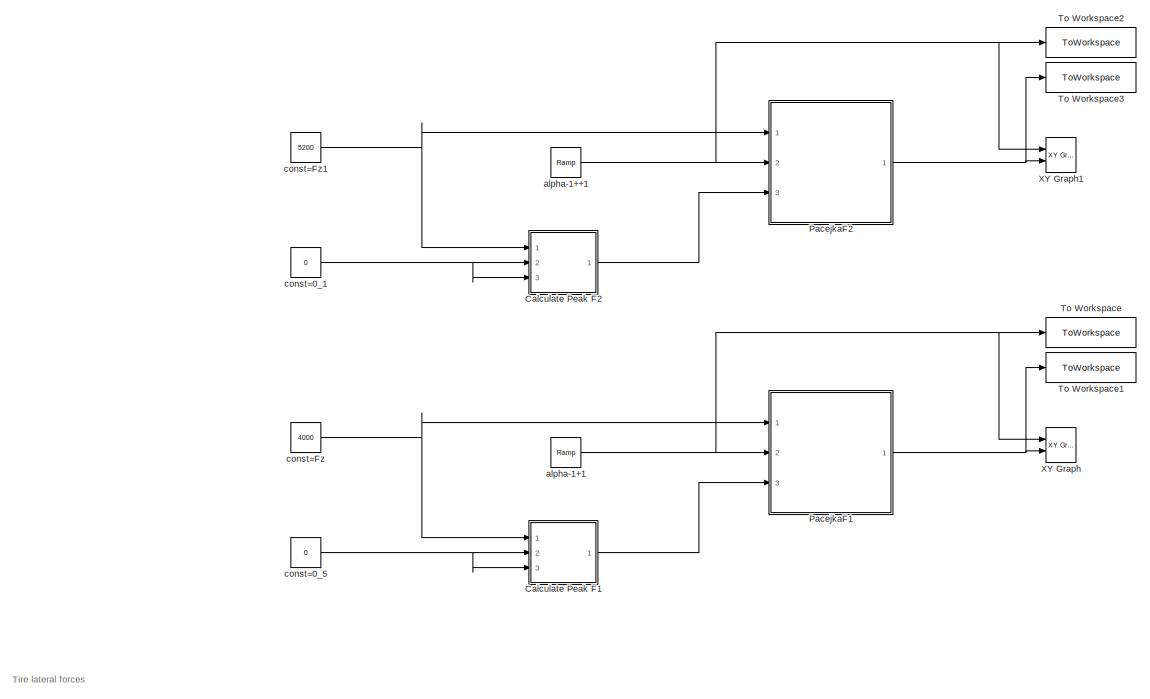
[diagram: DynamicModel - part 1/16, top center region]
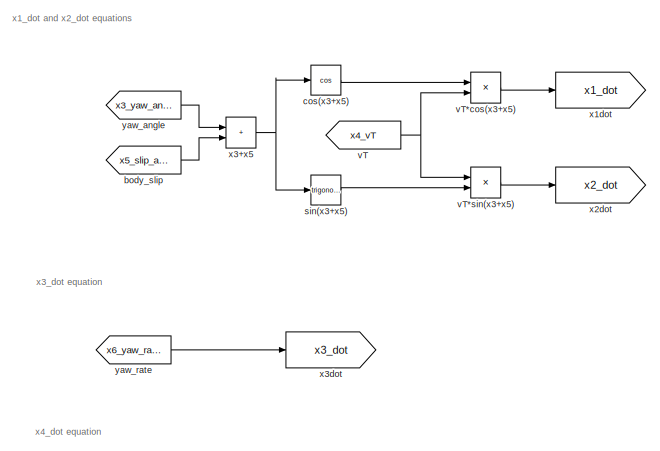
[diagram: DynamicModel - part 2/16, top left region]
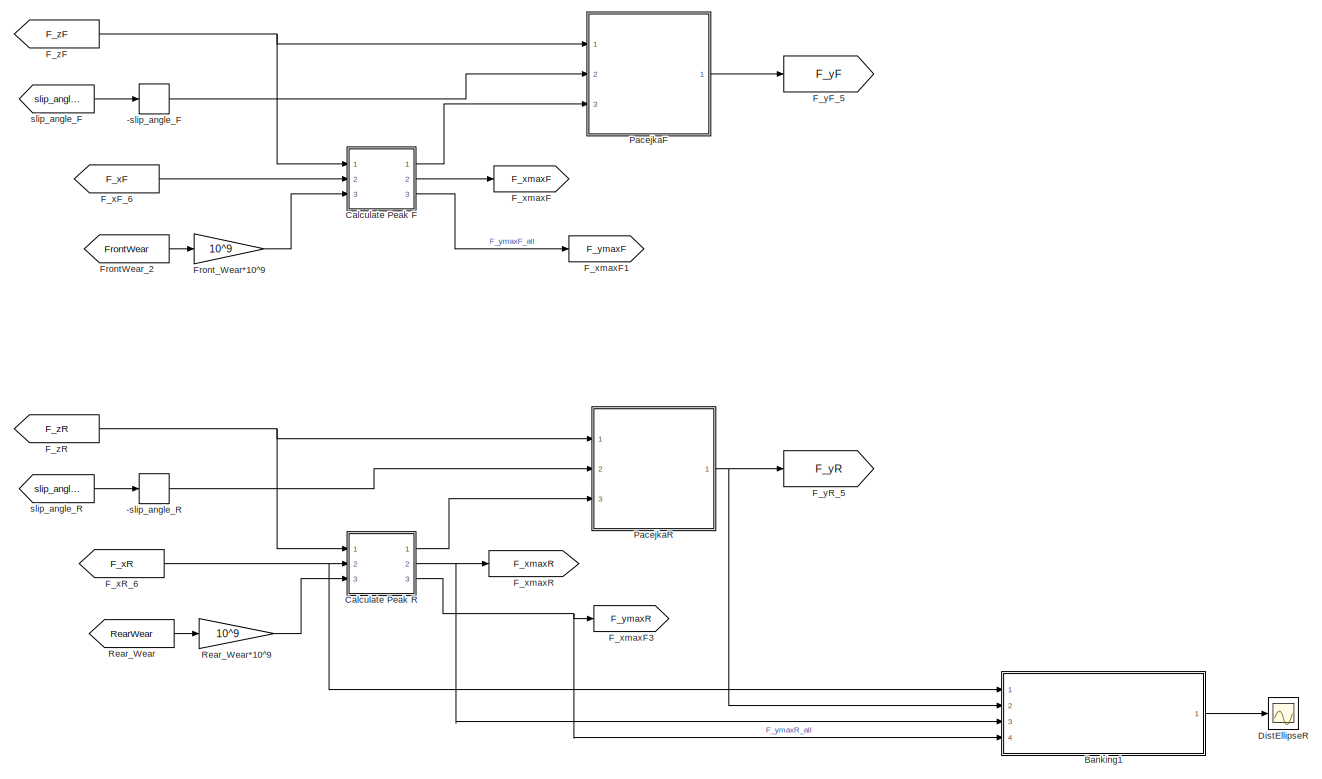
[diagram: DynamicModel - part 3/16, top center region]
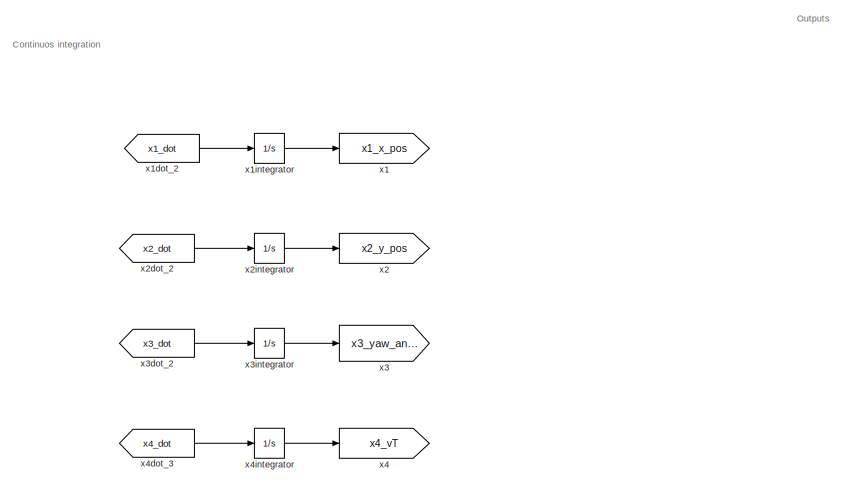
[diagram: DynamicModel - part 4/16, top right region]
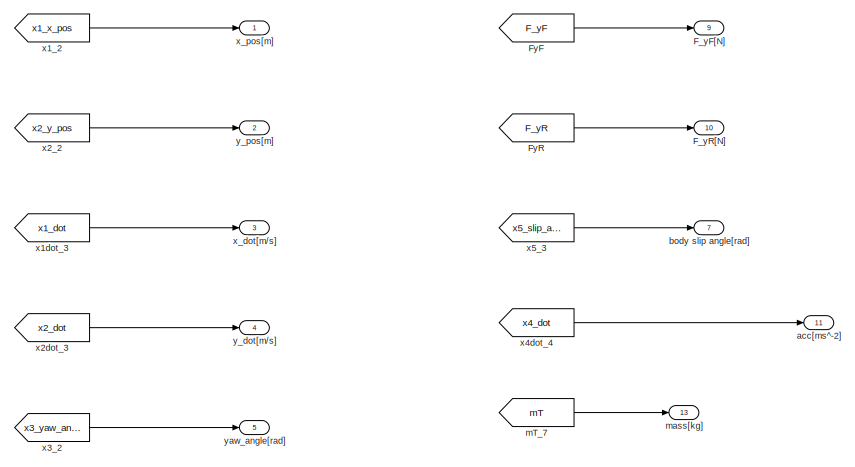
[diagram: DynamicModel - part 5/16, top right region]
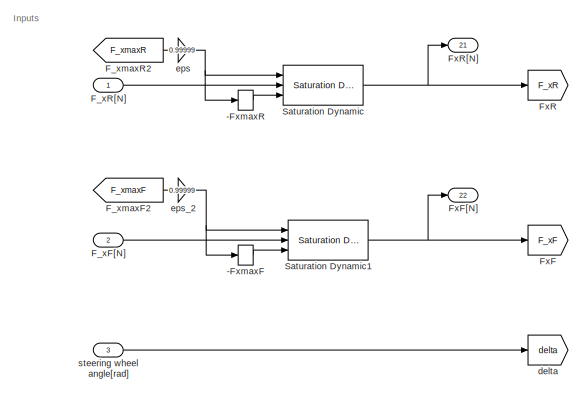
[diagram: DynamicModel - part 6/16, top left region]
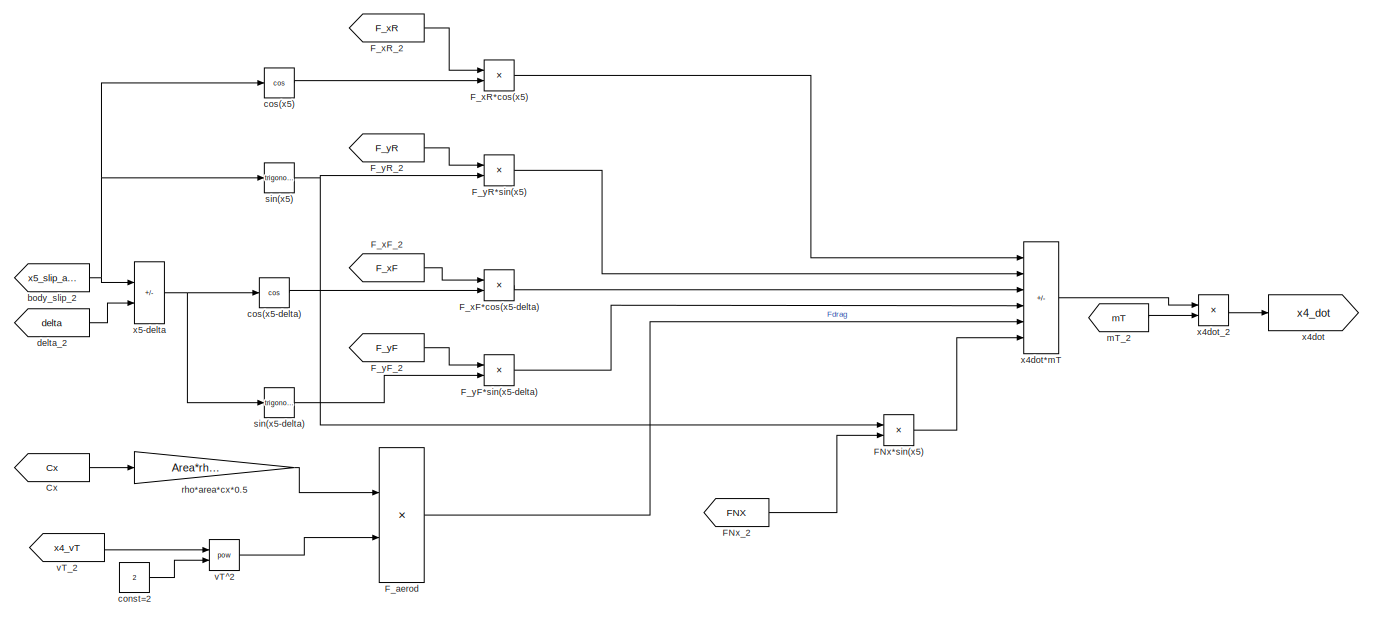
[diagram: DynamicModel - part 7/16, middle left region]
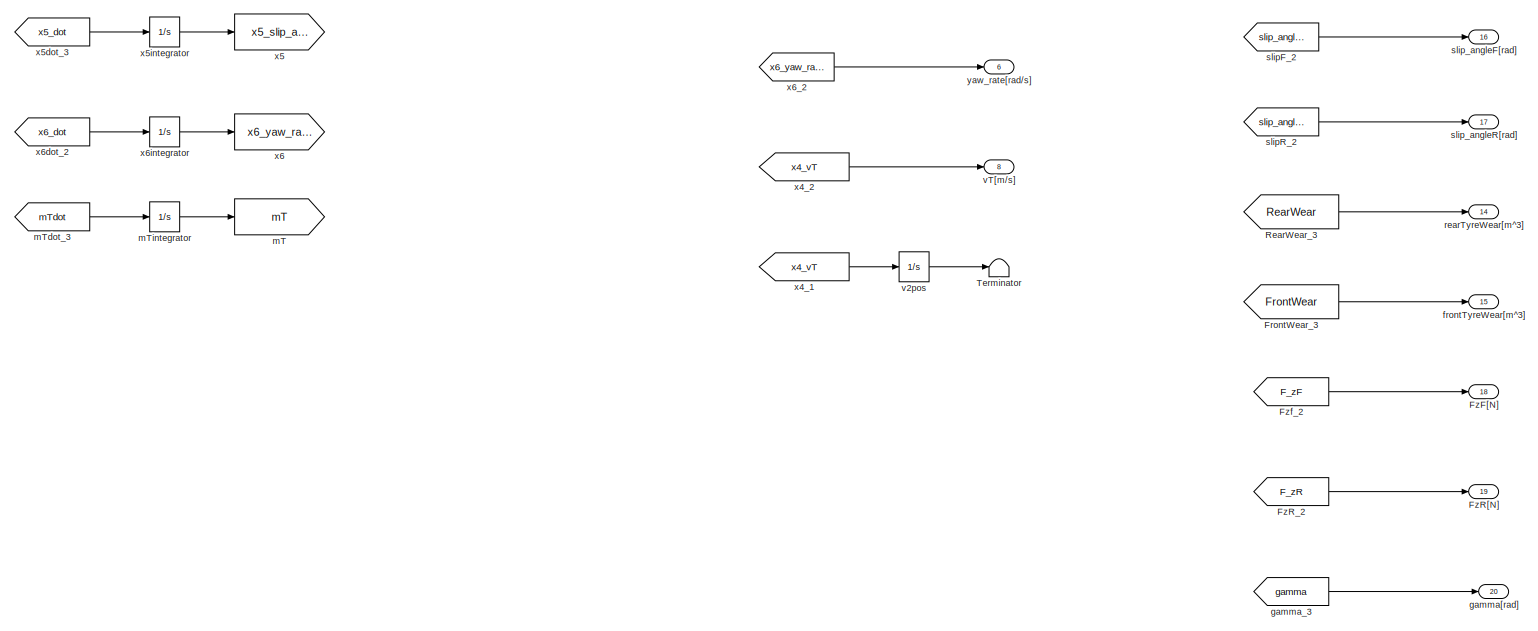
[diagram: DynamicModel - part 8/16, middle right region]
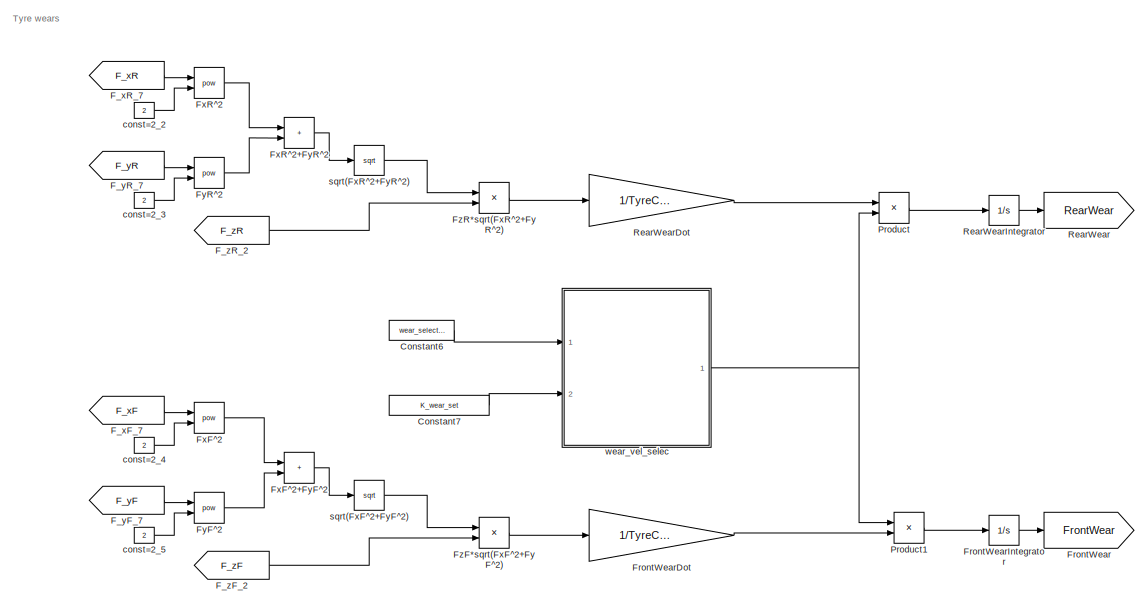
[diagram: DynamicModel - part 9/16, central region]
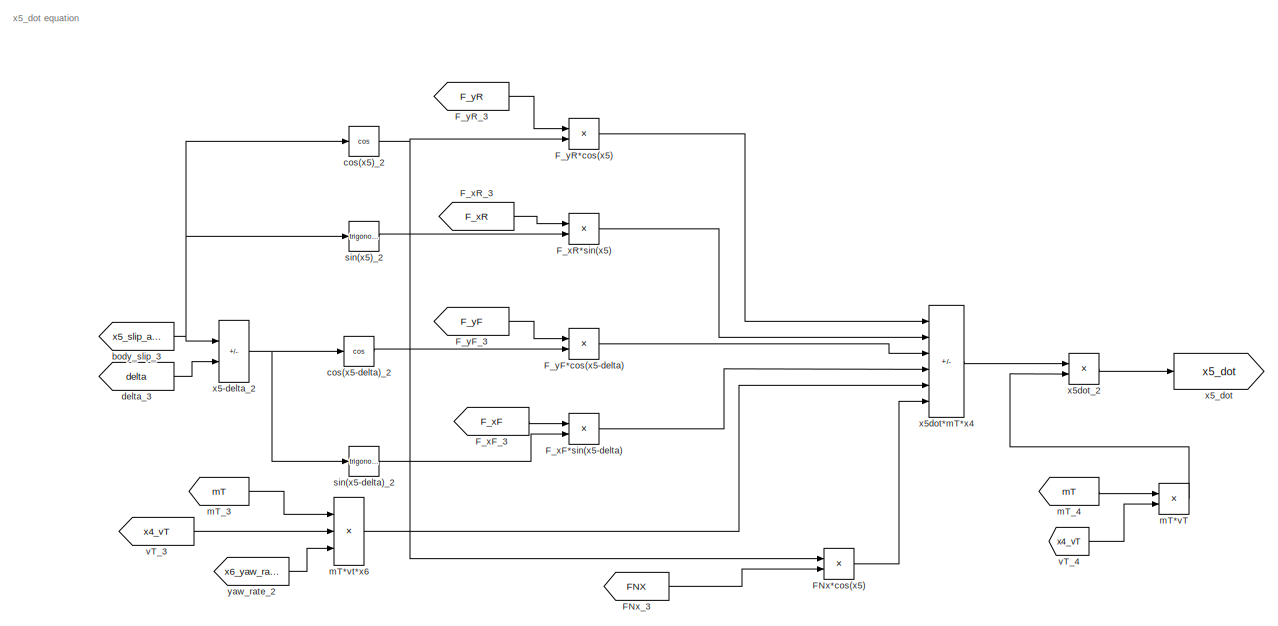
[diagram: DynamicModel - part 10/16, middle left region]
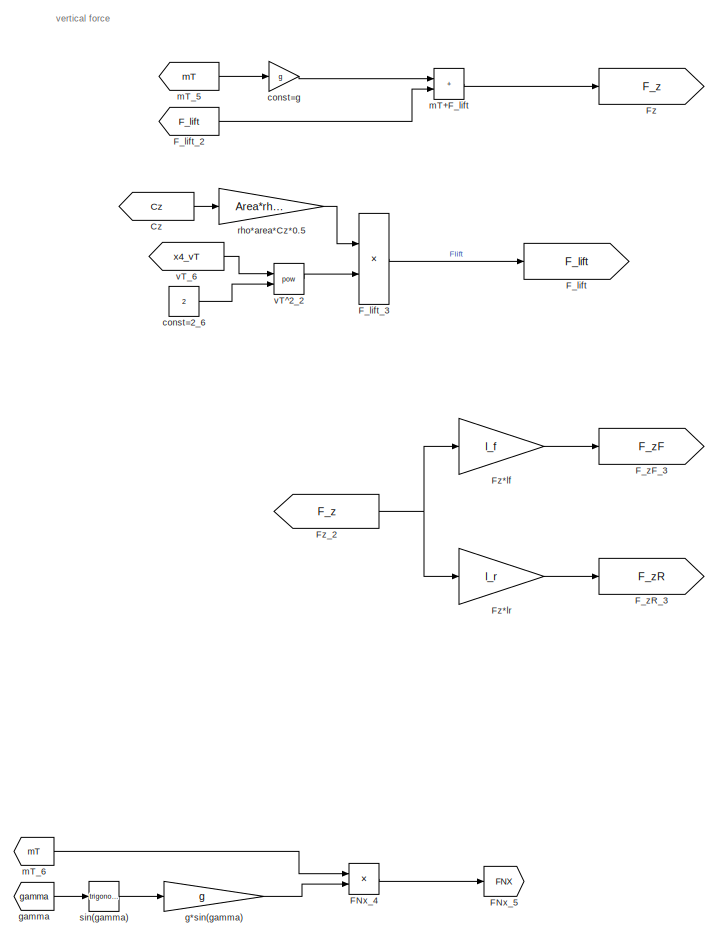
[diagram: DynamicModel - part 11/16, central region]
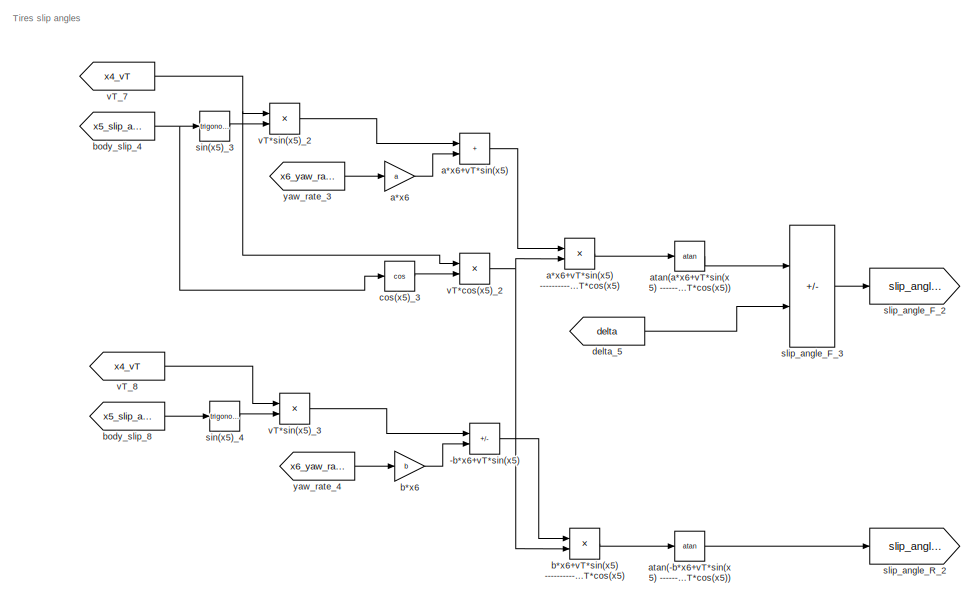
[diagram: DynamicModel - part 12/16, central region]
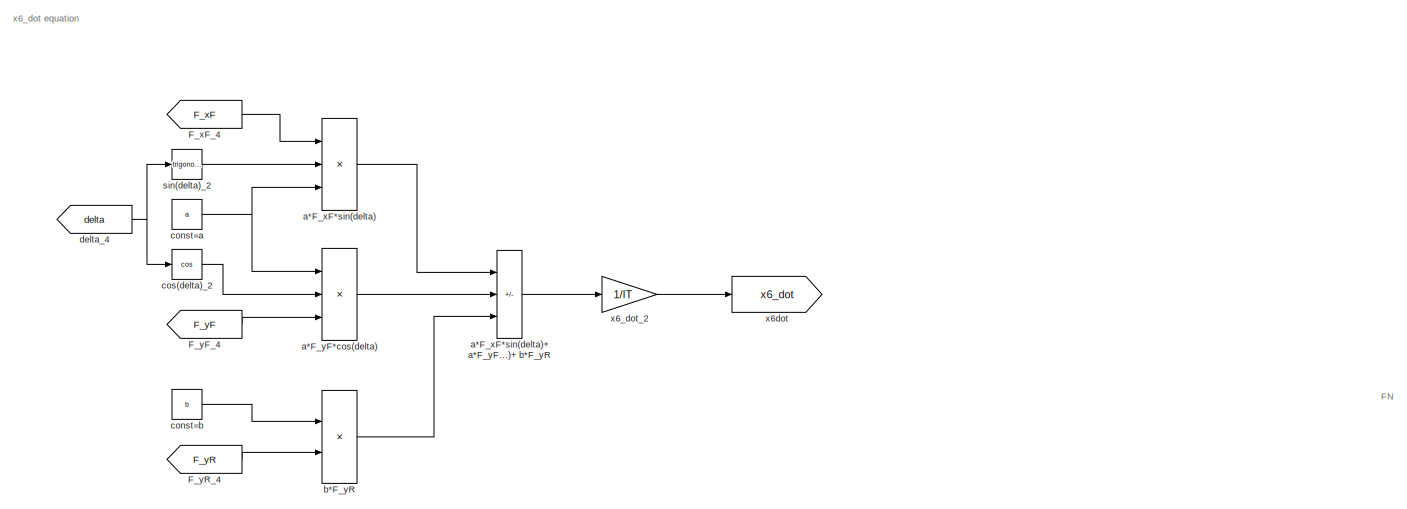
[diagram: DynamicModel - part 13/16, bottom left region]
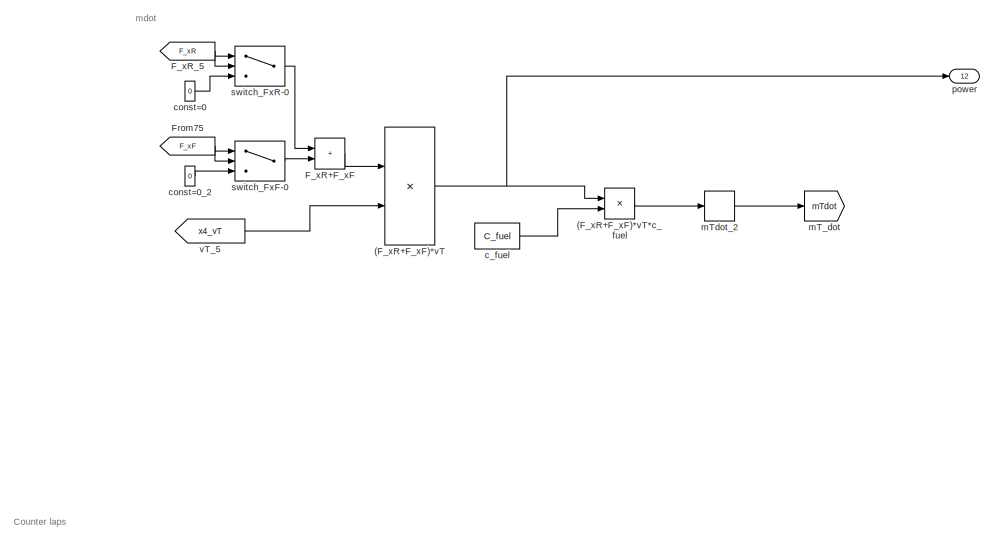
[diagram: DynamicModel - part 14/16, bottom left region]
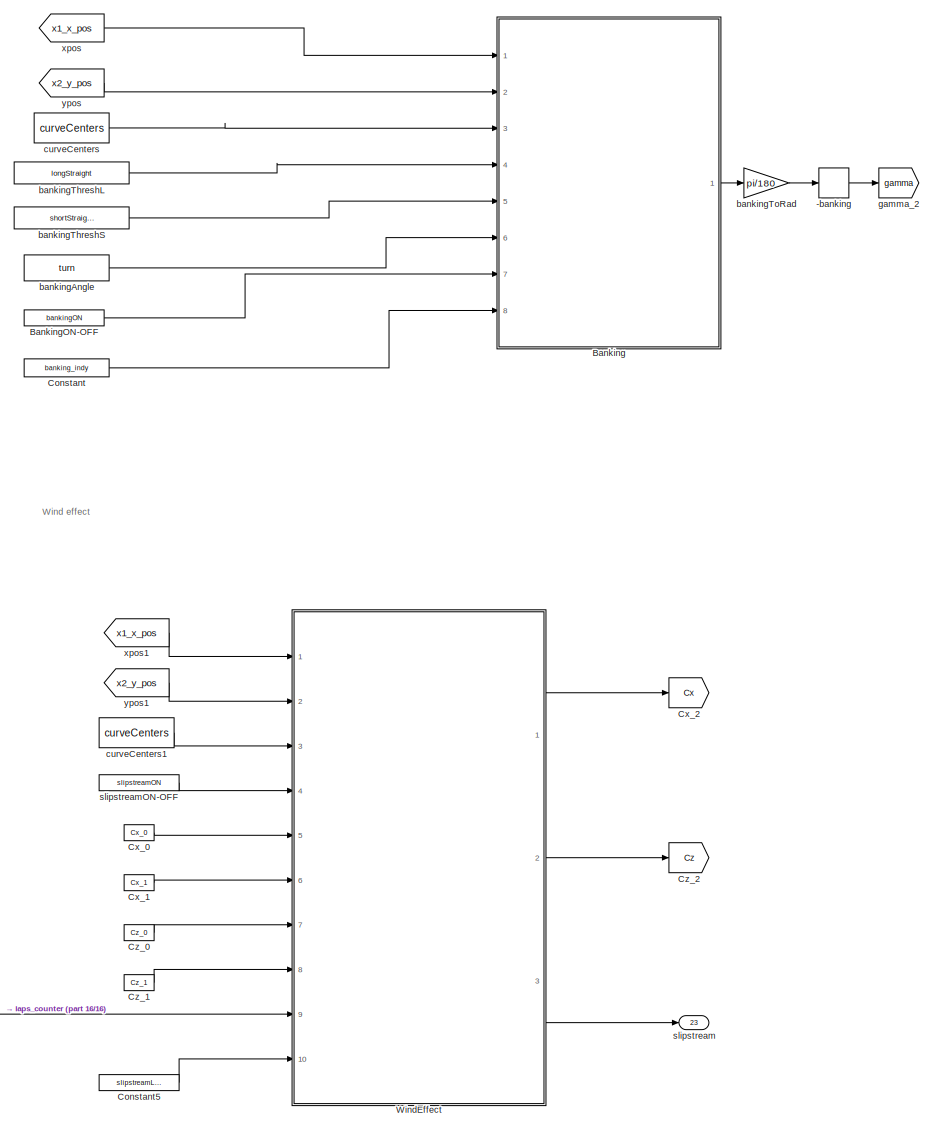
[diagram: DynamicModel - part 15/16, bottom center region]
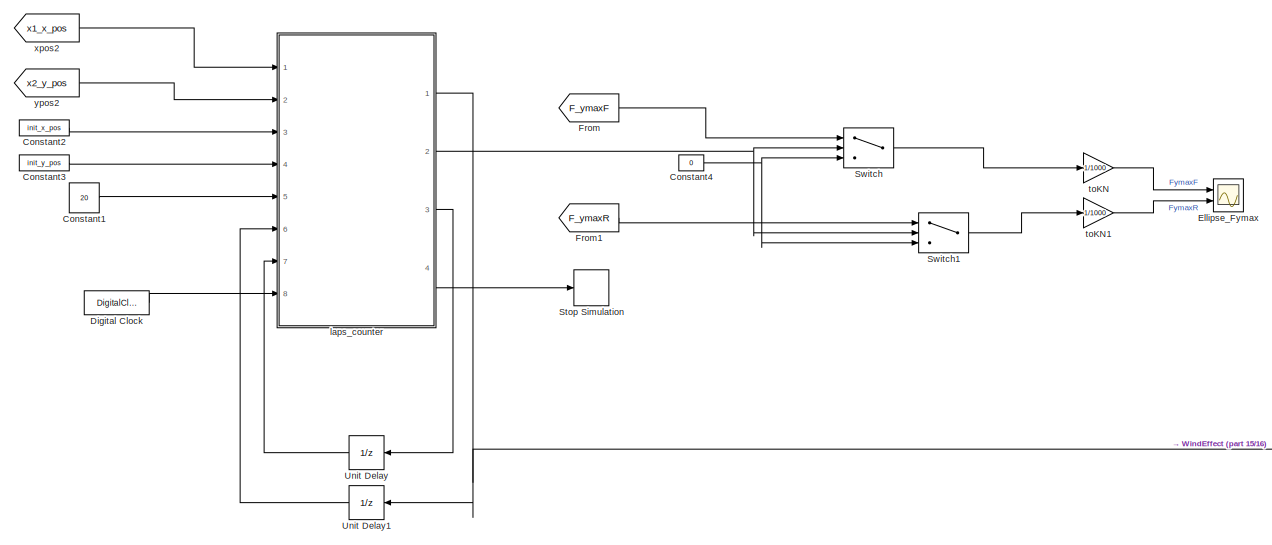
[diagram: DynamicModel - part 16/16, bottom left region]
BLOCK [SubSystem] DynamicModel
  Ports = [3, 23]
  RequestExecContextInheritance = off
BLOCK [Product] DynamicModel/(F_xR+F_xF)*vT
  Ports = [2, 1]
BLOCK [Product] DynamicModel/(F_xR+F_xF)*vT*c_fuel
  Ports = [2, 1]
BLOCK [UnaryMinus] DynamicModel/-FxmaxF
BLOCK [UnaryMinus] DynamicModel/-FxmaxR
BLOCK [Sum] DynamicModel/-b*x6+vT*sin(x5)
  IconShape = rectangular
  Inputs = +-
  Ports = [2, 1]
BLOCK [UnaryMinus] DynamicModel/-banking
BLOCK [UnaryMinus] DynamicModel/-slip_angle_F
BLOCK [UnaryMinus] DynamicModel/-slip_angle_R
BLOCK [SubSystem] DynamicModel/Banking
  ErrorFcn = Stateflow.Translate.translate
  PermitHierarchicalResolution = ExplicitOnly
  Ports = [8, 1]
  RequestExecContextInheritance = off
  SFBlockType = MATLAB Function
  TreatAsAtomicUnit = on
BLOCK [Demux] DynamicModel/Banking/ Demux 
  Outputs = 1
  Ports = [1, 1]
BLOCK [S-Function] DynamicModel/Banking/ SFunction 
  EnableBusSupport = on
  FunctionName = sf_sfun
  PortCounts = [8 2]
  Ports = [8, 2]
  SFcnIsStateOwnerBlock = off
  SFunctionDeploymentMode = off
  Tag = Stateflow S-Function 2
BLOCK [Terminator] DynamicModel/Banking/ Terminator 
BLOCK [Inport] DynamicModel/Banking/bankingON
  Port = 7
BLOCK [Inport] DynamicModel/Banking/banking_indy
  Port = 8
BLOCK [Inport] DynamicModel/Banking/curve
  Port = 6
BLOCK [Inport] DynamicModel/Banking/curveCenters
  Port = 3
BLOCK [Inport] DynamicModel/Banking/longStraight
  Port = 4
BLOCK [Outport] DynamicModel/Banking/res
BLOCK [Inport] DynamicModel/Banking/shortStraight
  Port = 5
BLOCK [Inport] DynamicModel/Banking/x
BLOCK [Inport] DynamicModel/Banking/y
  Port = 2
BLOCK [SubSystem] DynamicModel/Banking1
  ErrorFcn = Stateflow.Translate.translate
  PermitHierarchicalResolution = ExplicitOnly
  Ports = [4, 1]
  RequestExecContextInheritance = off
  SFBlockType = MATLAB Function
  TreatAsAtomicUnit = on
BLOCK [Demux] DynamicModel/Banking1/ Demux 
  Outputs = 1
  Ports = [1, 1]
BLOCK [S-Function] DynamicModel/Banking1/ SFunction 
  EnableBusSupport = on
  FunctionName = sf_sfun
  PortCounts = [4 2]
  Ports = [4, 2]
  SFcnIsStateOwnerBlock = off
  SFunctionDeploymentMode = off
  Tag = Stateflow S-Function 6
BLOCK [Terminator] DynamicModel/Banking1/ Terminator 
BLOCK [Inport] DynamicModel/Banking1/Fx
BLOCK [Inport] DynamicModel/Banking1/Fxmax
  Port = 3
BLOCK [Inport] DynamicModel/Banking1/Fy
  Port = 2
BLOCK [Inport] DynamicModel/Banking1/Fymax
  Port = 4
BLOCK [Outport] DynamicModel/Banking1/distEllipse
BLOCK [Constant] DynamicModel/BankingON-OFF
  Value = bankingON
BLOCK [SubSystem] DynamicModel/Calculate Peak F
  Ports = [3, 3]
  RequestExecContextInheritance = off
BLOCK [Product] DynamicModel/Calculate Peak F/((a1Fz+a2)Fz) (1-a15*camber^2)
  Ports = [2, 1]
BLOCK [Product] DynamicModel/Calculate Peak F/(D+V_lat)*wear
  Ports = [2, 1]
BLOCK [Product] DynamicModel/Calculate Peak F/(D+V_long)*wear
  Ports = [2, 1]
BLOCK [Math] DynamicModel/Calculate Peak F/(Fx*Fymax^-1)^2
  Operator = pow
  Ports = [2, 1]
BLOCK [Product] DynamicModel/Calculate Peak F/(a1Fz+a2)Fz
  Ports = [2, 1]
BLOCK [Product] DynamicModel/Calculate Peak F/(b1Fz+b2)Fz
  Ports = [2, 1]
BLOCK [Product] DynamicModel/Calculate Peak F/1 ------ w1*wear+w2
  Inputs = */
  Ports = [2, 1]
BLOCK [Sum] DynamicModel/Calculate Peak F/1-(Fx*Fymax^-1)^2
  IconShape = rectangular
  Inputs = +-
  Ports = [2, 1]
BLOCK [Sum] DynamicModel/Calculate Peak F/1-a15*camber^2
  IconShape = rectangular
  Inputs = +-
  Ports = [2, 1]
BLOCK [Constant] DynamicModel/Calculate Peak F/Constant11
  Value = camber
BLOCK [Sum] DynamicModel/Calculate Peak F/D+V_lat
  IconShape = rectangular
  Ports = [2, 1]
BLOCK [Sum] DynamicModel/Calculate Peak F/D+V_long
  IconShape = rectangular
  Ports = [2, 1]
BLOCK [From] DynamicModel/Calculate Peak F/F_xmax
  GotoTag = F_xmax
BLOCK [Goto] DynamicModel/Calculate Peak F/F_xmax_2
  GotoTag = F_xmax
BLOCK [From] DynamicModel/Calculate Peak F/F_xmax_3
  GotoTag = F_xmax
BLOCK [From] DynamicModel/Calculate Peak F/F_ymax
  GotoTag = F_ymax
BLOCK [Product] DynamicModel/Calculate Peak F/F_ymax* sqrt(1-(Fx*Fymax^-1)^2) 
  Ports = [2, 1]
BLOCK [From] DynamicModel/Calculate Peak F/F_ymax_2
  GotoTag = F_ymax
BLOCK [Goto] DynamicModel/Calculate Peak F/F_ymax_3
  GotoTag = F_ymax
BLOCK [From] DynamicModel/Calculate Peak F/From22
  GotoTag = Fz
BLOCK [Inport] DynamicModel/Calculate Peak F/Fx
  Port = 2
  Unit = N
BLOCK [Product] DynamicModel/Calculate Peak F/Fx*Fymax^-1
  Inputs = */
  Ports = [2, 1]
BLOCK [Outport] DynamicModel/Calculate Peak F/Fxmax
  Port = 2
BLOCK [Outport] DynamicModel/Calculate Peak F/Fymax
  Port = 3
BLOCK [Inport] DynamicModel/Calculate Peak F/Fz
  Unit = N
BLOCK [Gain] DynamicModel/Calculate Peak F/Fz*10^-3
  Gain = 10^-3
BLOCK [Goto] DynamicModel/Calculate Peak F/Fz_2
  GotoTag = Fz
BLOCK [From] DynamicModel/Calculate Peak F/Fz_3
  GotoTag = Fz
BLOCK [From] DynamicModel/Calculate Peak F/Fz_4
  GotoTag = Fz
BLOCK [From] DynamicModel/Calculate Peak F/Fz_5
  GotoTag = Fz
BLOCK [From] DynamicModel/Calculate Peak F/Fz_6
  GotoTag = Fz
BLOCK [From] DynamicModel/Calculate Peak F/Fz_7
  GotoTag = Fz
BLOCK [Outport] DynamicModel/Calculate Peak F/Peak
BLOCK [From] DynamicModel/Calculate Peak F/V_lat
  GotoTag = V_lat
BLOCK [From] DynamicModel/Calculate Peak F/V_lat_2
  GotoTag = V_lat
BLOCK [Goto] DynamicModel/Calculate Peak F/V_lat_3
  GotoTag = V_lat
BLOCK [Inport] DynamicModel/Calculate Peak F/Wear
  Port = 3
BLOCK [Constant] DynamicModel/Calculate Peak F/a1
  Value = a1
BLOCK [Constant] DynamicModel/Calculate Peak F/a11
  Value = a11
BLOCK [Product] DynamicModel/Calculate Peak F/a11Fz
  Ports = [2, 1]
BLOCK [Constant] DynamicModel/Calculate Peak F/a12
  Value = a12
BLOCK [Constant] DynamicModel/Calculate Peak F/a13
  Value = a13
BLOCK [Product] DynamicModel/Calculate Peak F/a13Fz
  Ports = [2, 1]
BLOCK [Sum] DynamicModel/Calculate Peak F/a13Fz+a14
  IconShape = rectangular
  Ports = [2, 1]
BLOCK [Product] DynamicModel/Calculate Peak F/a13Fz+a14+Fz+camber
  Inputs = 3
  Ports = [3, 1]
BLOCK [Sum] DynamicModel/Calculate Peak F/a13Fz+a14+Fz+camber +a12+a11Fz
  IconShape = rectangular
  Inputs = +++
  Ports = [3, 1]
BLOCK [Constant] DynamicModel/Calculate Peak F/a14
  Value = a14
BLOCK [Constant] DynamicModel/Calculate Peak F/a15
  Value = a15
BLOCK [Product] DynamicModel/Calculate Peak F/a15*camber^2
  Ports = [2, 1]
BLOCK [Product] DynamicModel/Calculate Peak F/a1Fz
  Ports = [2, 1]
BLOCK [Sum] DynamicModel/Calculate Peak F/a1Fz+a2
  IconShape = rectangular
  Ports = [2, 1]
BLOCK [Constant] DynamicModel/Calculate Peak F/a2
  Value = a2
BLOCK [Abs] DynamicModel/Calculate Peak F/abs(F_ymax* sqrt(1-(Fx*Fymax^-1)^2) )
  SaturateOnIntegerOverflow = off
BLOCK [Constant] DynamicModel/Calculate Peak F/b1
  Value = b1
BLOCK [Constant] DynamicModel/Calculate Peak F/b11
  Value = b11
BLOCK [Product] DynamicModel/Calculate Peak F/b11Fz
  Ports = [2, 1]
BLOCK [Sum] DynamicModel/Calculate Peak F/b11Fz+b12
  IconShape = rectangular
  Ports = [2, 1]
BLOCK [Constant] DynamicModel/Calculate Peak F/b12
  Value = b12
BLOCK [Product] DynamicModel/Calculate Peak F/b1Fz
  Ports = [2, 1]
BLOCK [Sum] DynamicModel/Calculate Peak F/b1Fz+b2
  IconShape = rectangular
  Ports = [2, 1]
BLOCK [Constant] DynamicModel/Calculate Peak F/b2
  Value = b2
BLOCK [Constant] DynamicModel/Calculate Peak F/camber
  Value = camber
BLOCK [Math] DynamicModel/Calculate Peak F/camber^2
  Operator = pow
  Ports = [2, 1]
BLOCK [Constant] DynamicModel/Calculate Peak F/const=1
BLOCK [Constant] DynamicModel/Calculate Peak F/const=1_2
BLOCK [Constant] DynamicModel/Calculate Peak F/const=1_3
BLOCK [Constant] DynamicModel/Calculate Peak F/const=2
  Value = 2
BLOCK [Constant] DynamicModel/Calculate Peak F/const=2_2
  Value = 2
BLOCK [Sum] DynamicModel/Calculate Peak F/newD+V
  IconShape = rectangular
  Inputs = +-
  Ports = [2, 1]
BLOCK [Sqrt] DynamicModel/Calculate Peak F/sqrt(1-(Fx*Fymax^-1)^2)
BLOCK [Gain] DynamicModel/Calculate Peak F/w1*wear
  Gain = w1
BLOCK [Sum] DynamicModel/Calculate Peak F/w1*wear+w2
  IconShape = rectangular
  Ports = [2, 1]
BLOCK [Constant] DynamicModel/Calculate Peak F/w2
  Value = w2
BLOCK [SubSystem] DynamicModel/Calculate Peak F1
  Commented = on
  Ports = [3, 1]
  RequestExecContextInheritance = off
BLOCK [Abs] DynamicModel/Calculate Peak F1/Abs
  SaturateOnIntegerOverflow = off
BLOCK [Constant] DynamicModel/Calculate Peak F1/Constant
BLOCK [Constant] DynamicModel/Calculate Peak F1/Constant1
  Value = 2
BLOCK [Constant] DynamicModel/Calculate Peak F1/Constant10
  Value = a12
BLOCK [Constant] DynamicModel/Calculate Peak F1/Constant11
  Value = camber
BLOCK [Constant] DynamicModel/Calculate Peak F1/Constant15
  Value = a15
BLOCK [Constant] DynamicModel/Calculate Peak F1/Constant16
  Value = 2
BLOCK [Constant] DynamicModel/Calculate Peak F1/Constant17
  Value = b11
BLOCK [Constant] DynamicModel/Calculate Peak F1/Constant18
  Value = b12
BLOCK [Constant] DynamicModel/Calculate Peak F1/Constant19
  Value = a13
BLOCK [Constant] DynamicModel/Calculate Peak F1/Constant2
  Value = b1
BLOCK [Constant] DynamicModel/Calculate Peak F1/Constant20
  Value = a14
BLOCK [Constant] DynamicModel/Calculate Peak F1/Constant21
  Value = camber
BLOCK [Constant] DynamicModel/Calculate Peak F1/Constant3
  Value = a1
BLOCK [Constant] DynamicModel/Calculate Peak F1/Constant4
  Value = a2
BLOCK [Constant] DynamicModel/Calculate Peak F1/Constant5
  Value = b2
BLOCK [Constant] DynamicModel/Calculate Peak F1/Constant6
BLOCK [Constant] DynamicModel/Calculate Peak F1/Constant7
BLOCK [Constant] DynamicModel/Calculate Peak F1/Constant8
  Value = w2
BLOCK [Constant] DynamicModel/Calculate Peak F1/Constant9
  Value = a11
BLOCK [Product] DynamicModel/Calculate Peak F1/Divide
  Inputs = */
  Ports = [2, 1]
BLOCK [Product] DynamicModel/Calculate Peak F1/Divide1
  Inputs = */
  Ports = [2, 1]
BLOCK [From] DynamicModel/Calculate Peak F1/From
  GotoTag = F_ymax
BLOCK [From] DynamicModel/Calculate Peak F1/From1
  GotoTag = F_xmax
BLOCK [From] DynamicModel/Calculate Peak F1/From2
  GotoTag = Fz
BLOCK [From] DynamicModel/Calculate Peak F1/From20
  GotoTag = Fz
BLOCK [From] DynamicModel/Calculate Peak F1/From21
  GotoTag = Fz
BLOCK [From] DynamicModel/Calculate Peak F1/From22
  GotoTag = Fz
BLOCK [From] DynamicModel/Calculate Peak F1/From3
  GotoTag = Fz
BLOCK [From] DynamicModel/Calculate Peak F1/From4
  GotoTag = Fz
BLOCK [From] DynamicModel/Calculate Peak F1/From5
  GotoTag = V_lat
BLOCK [From] DynamicModel/Calculate Peak F1/From6
  GotoTag = V_lat
BLOCK [Inport] DynamicModel/Calculate Peak F1/Fx
  Port = 2
  Unit = N
BLOCK [Inport] DynamicModel/Calculate Peak F1/Fz
  Unit = N
BLOCK [Gain] DynamicModel/Calculate Peak F1/Gain
  Gain = w1
BLOCK [Gain] DynamicModel/Calculate Peak F1/Gain10
  Gain = 10^-3
BLOCK [Goto] DynamicModel/Calculate Peak F1/Goto
  GotoTag = F_ymax
BLOCK [Goto] DynamicModel/Calculate Peak F1/Goto1
  GotoTag = F_xmax
BLOCK [Goto] DynamicModel/Calculate Peak F1/Goto2
  GotoTag = Fz
BLOCK [Goto] DynamicModel/Calculate Peak F1/Goto3
  GotoTag = V_lat
BLOCK [Sum] DynamicModel/Calculate Peak F1/Minus
  IconShape = rectangular
  Inputs = +-
  Ports = [2, 1]
BLOCK [Sum] DynamicModel/Calculate Peak F1/Minus1
  IconShape = rectangular
  Inputs = +-
  Ports = [2, 1]
BLOCK [Sum] DynamicModel/Calculate Peak F1/Minus3
  IconShape = rectangular
  Inputs = +-
  Ports = [2, 1]
BLOCK [Outport] DynamicModel/Calculate Peak F1/Peak
BLOCK [Sum] DynamicModel/Calculate Peak F1/Plus
  IconShape = rectangular
  Ports = [2, 1]
BLOCK [Sum] DynamicModel/Calculate Peak F1/Plus1
  IconShape = rectangular
  Ports = [2, 1]
BLOCK [Sum] DynamicModel/Calculate Peak F1/Plus2
  IconShape = rectangular
  Ports = [2, 1]
BLOCK [Sum] DynamicModel/Calculate Peak F1/Plus3
  IconShape = rectangular
  Ports = [2, 1]
BLOCK [Sum] DynamicModel/Calculate Peak F1/Plus4
  IconShape = rectangular
  Ports = [2, 1]
BLOCK [Sum] DynamicModel/Calculate Peak F1/Plus5
  IconShape = rectangular
  Inputs = +++
  Ports = [3, 1]
BLOCK [Sum] DynamicModel/Calculate Peak F1/Plus6
  IconShape = rectangular
  Ports = [2, 1]
BLOCK [Sum] DynamicModel/Calculate Peak F1/Plus7
  IconShape = rectangular
  Ports = [2, 1]
BLOCK [Math] DynamicModel/Calculate Peak F1/Power
  Operator = pow
  Ports = [2, 1]
BLOCK [Math] DynamicModel/Calculate Peak F1/Power6
  Operator = pow
  Ports = [2, 1]
BLOCK [Product] DynamicModel/Calculate Peak F1/Product
  Ports = [2, 1]
BLOCK [Product] DynamicModel/Calculate Peak F1/Product1
  Ports = [2, 1]
BLOCK [Product] DynamicModel/Calculate Peak F1/Product16
  Ports = [2, 1]
BLOCK [Product] DynamicModel/Calculate Peak F1/Product17
  Ports = [2, 1]
BLOCK [Product] DynamicModel/Calculate Peak F1/Product18
  Inputs = 3
  Ports = [3, 1]
BLOCK [Product] DynamicModel/Calculate Peak F1/Product2
  Ports = [2, 1]
BLOCK [Product] DynamicModel/Calculate Peak F1/Product26
  Ports = [2, 1]
BLOCK [Product] DynamicModel/Calculate Peak F1/Product27
  Ports = [2, 1]
BLOCK [Product] DynamicModel/Calculate Peak F1/Product28
  Ports = [2, 1]
BLOCK [Product] DynamicModel/Calculate Peak F1/Product29
  Ports = [2, 1]
BLOCK [Product] DynamicModel/Calculate Peak F1/Product3
  Ports = [2, 1]
BLOCK [Product] DynamicModel/Calculate Peak F1/Product4
  Ports = [2, 1]
BLOCK [Product] DynamicModel/Calculate Peak F1/Product5
  Ports = [2, 1]
BLOCK [Sqrt] DynamicModel/Calculate Peak F1/Sqrt
BLOCK [Inport] DynamicModel/Calculate Peak F1/Wear
  Port = 3
BLOCK [SubSystem] DynamicModel/Calculate Peak F2
  Commented = on
  Ports = [3, 1]
  RequestExecContextInheritance = off
BLOCK [Abs] DynamicModel/Calculate Peak F2/Abs
  SaturateOnIntegerOverflow = off
BLOCK [Constant] DynamicModel/Calculate Peak F2/Constant
BLOCK [Constant] DynamicModel/Calculate Peak F2/Constant1
  Value = 2
BLOCK [Constant] DynamicModel/Calculate Peak F2/Constant10
  Value = a12
BLOCK [Constant] DynamicModel/Calculate Peak F2/Constant11
  Value = camber
BLOCK [Constant] DynamicModel/Calculate Peak F2/Constant15
  Value = a15
BLOCK [Constant] DynamicModel/Calculate Peak F2/Constant16
  Value = 2
BLOCK [Constant] DynamicModel/Calculate Peak F2/Constant17
  Value = b11
BLOCK [Constant] DynamicModel/Calculate Peak F2/Constant18
  Value = b12
BLOCK [Constant] DynamicModel/Calculate Peak F2/Constant19
  Value = a13
BLOCK [Constant] DynamicModel/Calculate Peak F2/Constant2
  Value = b1
BLOCK [Constant] DynamicModel/Calculate Peak F2/Constant20
  Value = a14
BLOCK [Constant] DynamicModel/Calculate Peak F2/Constant21
  Value = camber
BLOCK [Constant] DynamicModel/Calculate Peak F2/Constant3
  Value = a1
BLOCK [Constant] DynamicModel/Calculate Peak F2/Constant4
  Value = a2
BLOCK [Constant] DynamicModel/Calculate Peak F2/Constant5
  Value = b2
BLOCK [Constant] DynamicModel/Calculate Peak F2/Constant6
BLOCK [Constant] DynamicModel/Calculate Peak F2/Constant7
BLOCK [Constant] DynamicModel/Calculate Peak F2/Constant8
  Value = w2
BLOCK [Constant] DynamicModel/Calculate Peak F2/Constant9
  Value = a11
BLOCK [Product] DynamicModel/Calculate Peak F2/Divide
  Inputs = */
  Ports = [2, 1]
BLOCK [Product] DynamicModel/Calculate Peak F2/Divide1
  Inputs = */
  Ports = [2, 1]
BLOCK [From] DynamicModel/Calculate Peak F2/From
  GotoTag = F_ymax
BLOCK [From] DynamicModel/Calculate Peak F2/From1
  GotoTag = F_xmax
BLOCK [From] DynamicModel/Calculate Peak F2/From2
  GotoTag = Fz
BLOCK [From] DynamicModel/Calculate Peak F2/From20
  GotoTag = Fz
BLOCK [From] DynamicModel/Calculate Peak F2/From21
  GotoTag = Fz
BLOCK [From] DynamicModel/Calculate Peak F2/From22
  GotoTag = Fz
BLOCK [From] DynamicModel/Calculate Peak F2/From3
  GotoTag = Fz
BLOCK [From] DynamicModel/Calculate Peak F2/From4
  GotoTag = Fz
BLOCK [From] DynamicModel/Calculate Peak F2/From5
  GotoTag = V_lat
BLOCK [From] DynamicModel/Calculate Peak F2/From6
  GotoTag = V_lat
BLOCK [Inport] DynamicModel/Calculate Peak F2/Fx
  Port = 2
  Unit = N
BLOCK [Inport] DynamicModel/Calculate Peak F2/Fz
  Unit = N
BLOCK [Gain] DynamicModel/Calculate Peak F2/Gain
  Gain = w1
BLOCK [Gain] DynamicModel/Calculate Peak F2/Gain10
  Gain = 10^-3
BLOCK [Goto] DynamicModel/Calculate Peak F2/Goto
  GotoTag = F_ymax
BLOCK [Goto] DynamicModel/Calculate Peak F2/Goto1
  GotoTag = F_xmax
BLOCK [Goto] DynamicModel/Calculate Peak F2/Goto2
  GotoTag = Fz
BLOCK [Goto] DynamicModel/Calculate Peak F2/Goto3
  GotoTag = V_lat
BLOCK [Sum] DynamicModel/Calculate Peak F2/Minus
  IconShape = rectangular
  Inputs = +-
  Ports = [2, 1]
BLOCK [Sum] DynamicModel/Calculate Peak F2/Minus1
  IconShape = rectangular
  Inputs = +-
  Ports = [2, 1]
BLOCK [Sum] DynamicModel/Calculate Peak F2/Minus3
  IconShape = rectangular
  Inputs = +-
  Ports = [2, 1]
BLOCK [Outport] DynamicModel/Calculate Peak F2/Peak
BLOCK [Sum] DynamicModel/Calculate Peak F2/Plus
  IconShape = rectangular
  Ports = [2, 1]
BLOCK [Sum] DynamicModel/Calculate Peak F2/Plus1
  IconShape = rectangular
  Ports = [2, 1]
BLOCK [Sum] DynamicModel/Calculate Peak F2/Plus2
  IconShape = rectangular
  Ports = [2, 1]
BLOCK [Sum] DynamicModel/Calculate Peak F2/Plus3
  IconShape = rectangular
  Ports = [2, 1]
BLOCK [Sum] DynamicModel/Calculate Peak F2/Plus4
  IconShape = rectangular
  Ports = [2, 1]
BLOCK [Sum] DynamicModel/Calculate Peak F2/Plus5
  IconShape = rectangular
  Inputs = +++
  Ports = [3, 1]
BLOCK [Sum] DynamicModel/Calculate Peak F2/Plus6
  IconShape = rectangular
  Ports = [2, 1]
BLOCK [Sum] DynamicModel/Calculate Peak F2/Plus7
  IconShape = rectangular
  Ports = [2, 1]
BLOCK [Math] DynamicModel/Calculate Peak F2/Power
  Operator = pow
  Ports = [2, 1]
BLOCK [Math] DynamicModel/Calculate Peak F2/Power6
  Operator = pow
  Ports = [2, 1]
BLOCK [Product] DynamicModel/Calculate Peak F2/Product
  Ports = [2, 1]
BLOCK [Product] DynamicModel/Calculate Peak F2/Product1
  Ports = [2, 1]
BLOCK [Product] DynamicModel/Calculate Peak F2/Product16
  Ports = [2, 1]
BLOCK [Product] DynamicModel/Calculate Peak F2/Product17
  Ports = [2, 1]
BLOCK [Product] DynamicModel/Calculate Peak F2/Product18
  Inputs = 3
  Ports = [3, 1]
BLOCK [Product] DynamicModel/Calculate Peak F2/Product2
  Ports = [2, 1]
BLOCK [Product] DynamicModel/Calculate Peak F2/Product26
  Ports = [2, 1]
BLOCK [Product] DynamicModel/Calculate Peak F2/Product27
  Ports = [2, 1]
BLOCK [Product] DynamicModel/Calculate Peak F2/Product28
  Ports = [2, 1]
BLOCK [Product] DynamicModel/Calculate Peak F2/Product29
  Ports = [2, 1]
BLOCK [Product] DynamicModel/Calculate Peak F2/Product3
  Ports = [2, 1]
BLOCK [Product] DynamicModel/Calculate Peak F2/Product4
  Ports = [2, 1]
BLOCK [Product] DynamicModel/Calculate Peak F2/Product5
  Ports = [2, 1]
BLOCK [Sqrt] DynamicModel/Calculate Peak F2/Sqrt
BLOCK [Inport] DynamicModel/Calculate Peak F2/Wear
  Port = 3
BLOCK [SubSystem] DynamicModel/Calculate Peak R
  Ports = [3, 3]
  RequestExecContextInheritance = off
BLOCK [Product] DynamicModel/Calculate Peak R/((a1Fz+a2)Fz) (1-a15*camber^2)
  Ports = [2, 1]
BLOCK [Product] DynamicModel/Calculate Peak R/(D+V_lat)*wear
  Ports = [2, 1]
BLOCK [Product] DynamicModel/Calculate Peak R/(D+V_long)*wear
  Ports = [2, 1]
BLOCK [Math] DynamicModel/Calculate Peak R/(Fx*Fymax^-1)^2
  Operator = pow
  Ports = [2, 1]
BLOCK [Product] DynamicModel/Calculate Peak R/(a1Fz+a2)Fz
  Ports = [2, 1]
BLOCK [Product] DynamicModel/Calculate Peak R/(b1Fz+b2)Fz
  Ports = [2, 1]
BLOCK [Product] DynamicModel/Calculate Peak R/1 ------ w1*wear+w2
  Inputs = */
  Ports = [2, 1]
BLOCK [Sum] DynamicModel/Calculate Peak R/1-(Fx*Fymax^-1)^2
  IconShape = rectangular
  Inputs = +-
  Ports = [2, 1]
BLOCK [Sum] DynamicModel/Calculate Peak R/1-a15*camber^2
  IconShape = rectangular
  Inputs = +-
  Ports = [2, 1]
BLOCK [Constant] DynamicModel/Calculate Peak R/Constant11
  Value = camber
BLOCK [Sum] DynamicModel/Calculate Peak R/D+V_lat
  IconShape = rectangular
  Ports = [2, 1]
BLOCK [Sum] DynamicModel/Calculate Peak R/D+V_long
  IconShape = rectangular
  Ports = [2, 1]
BLOCK [From] DynamicModel/Calculate Peak R/F_xmax
  GotoTag = F_xmax
BLOCK [Goto] DynamicModel/Calculate Peak R/F_xmax_2
  GotoTag = F_xmax
BLOCK [From] DynamicModel/Calculate Peak R/F_xmax_3
  GotoTag = F_xmax
BLOCK [From] DynamicModel/Calculate Peak R/F_ymax
  GotoTag = F_ymax
BLOCK [Product] DynamicModel/Calculate Peak R/F_ymax* sqrt(1-(Fx*Fymax^-1)^2) 
  Ports = [2, 1]
BLOCK [From] DynamicModel/Calculate Peak R/F_ymax_2
  GotoTag = F_ymax
BLOCK [Goto] DynamicModel/Calculate Peak R/F_ymax_3
  GotoTag = F_ymax
BLOCK [From] DynamicModel/Calculate Peak R/From22
  GotoTag = Fz
BLOCK [Inport] DynamicModel/Calculate Peak R/Fx
  Port = 2
  Unit = N
BLOCK [Product] DynamicModel/Calculate Peak R/Fx*Fymax^-1
  Inputs = */
  Ports = [2, 1]
BLOCK [Outport] DynamicModel/Calculate Peak R/Fxmax
  Port = 2
BLOCK [Outport] DynamicModel/Calculate Peak R/Fymax
  Port = 3
BLOCK [Inport] DynamicModel/Calculate Peak R/Fz
  Unit = N
BLOCK [Gain] DynamicModel/Calculate Peak R/Fz*10^-3
  Gain = 10^-3
BLOCK [Goto] DynamicModel/Calculate Peak R/Fz_2
  GotoTag = Fz
BLOCK [From] DynamicModel/Calculate Peak R/Fz_3
  GotoTag = Fz
BLOCK [From] DynamicModel/Calculate Peak R/Fz_4
  GotoTag = Fz
BLOCK [From] DynamicModel/Calculate Peak R/Fz_5
  GotoTag = Fz
BLOCK [From] DynamicModel/Calculate Peak R/Fz_6
  GotoTag = Fz
BLOCK [From] DynamicModel/Calculate Peak R/Fz_7
  GotoTag = Fz
BLOCK [Outport] DynamicModel/Calculate Peak R/Peak
BLOCK [From] DynamicModel/Calculate Peak R/V_lat
  GotoTag = V_lat
BLOCK [From] DynamicModel/Calculate Peak R/V_lat_2
  GotoTag = V_lat
BLOCK [Goto] DynamicModel/Calculate Peak R/V_lat_3
  GotoTag = V_lat
BLOCK [Inport] DynamicModel/Calculate Peak R/Wear
  Port = 3
BLOCK [Constant] DynamicModel/Calculate Peak R/a1
  Value = a1
BLOCK [Constant] DynamicModel/Calculate Peak R/a11
  Value = a11
BLOCK [Product] DynamicModel/Calculate Peak R/a11Fz
  Ports = [2, 1]
BLOCK [Constant] DynamicModel/Calculate Peak R/a12
  Value = a12
BLOCK [Constant] DynamicModel/Calculate Peak R/a13
  Value = a13
BLOCK [Product] DynamicModel/Calculate Peak R/a13Fz
  Ports = [2, 1]
BLOCK [Sum] DynamicModel/Calculate Peak R/a13Fz+a14
  IconShape = rectangular
  Ports = [2, 1]
BLOCK [Product] DynamicModel/Calculate Peak R/a13Fz+a14+Fz+camber
  Inputs = 3
  Ports = [3, 1]
BLOCK [Sum] DynamicModel/Calculate Peak R/a13Fz+a14+Fz+camber +a12+a11Fz
  IconShape = rectangular
  Inputs = +++
  Ports = [3, 1]
BLOCK [Constant] DynamicModel/Calculate Peak R/a14
  Value = a14
BLOCK [Constant] DynamicModel/Calculate Peak R/a15
  Value = a15
BLOCK [Product] DynamicModel/Calculate Peak R/a15*camber^2
  Ports = [2, 1]
BLOCK [Product] DynamicModel/Calculate Peak R/a1Fz
  Ports = [2, 1]
BLOCK [Sum] DynamicModel/Calculate Peak R/a1Fz+a2
  IconShape = rectangular
  Ports = [2, 1]
BLOCK [Constant] DynamicModel/Calculate Peak R/a2
  Value = a2
BLOCK [Abs] DynamicModel/Calculate Peak R/abs(F_ymax* sqrt(1-(Fx*Fymax^-1)^2) )
  SaturateOnIntegerOverflow = off
BLOCK [Constant] DynamicModel/Calculate Peak R/b1
  Value = b1
BLOCK [Constant] DynamicModel/Calculate Peak R/b11
  Value = b11
BLOCK [Product] DynamicModel/Calculate Peak R/b11Fz
  Ports = [2, 1]
BLOCK [Sum] DynamicModel/Calculate Peak R/b11Fz+b12
  IconShape = rectangular
  Ports = [2, 1]
BLOCK [Constant] DynamicModel/Calculate Peak R/b12
  Value = b12
BLOCK [Product] DynamicModel/Calculate Peak R/b1Fz
  Ports = [2, 1]
BLOCK [Sum] DynamicModel/Calculate Peak R/b1Fz+b2
  IconShape = rectangular
  Ports = [2, 1]
BLOCK [Constant] DynamicModel/Calculate Peak R/b2
  Value = b2
BLOCK [Constant] DynamicModel/Calculate Peak R/camber
  Value = camber
BLOCK [Math] DynamicModel/Calculate Peak R/camber^2
  Operator = pow
  Ports = [2, 1]
BLOCK [Constant] DynamicModel/Calculate Peak R/const=1
BLOCK [Constant] DynamicModel/Calculate Peak R/const=1_2
BLOCK [Constant] DynamicModel/Calculate Peak R/const=1_3
BLOCK [Constant] DynamicModel/Calculate Peak R/const=2
  Value = 2
BLOCK [Constant] DynamicModel/Calculate Peak R/const=2_2
  Value = 2
BLOCK [Sum] DynamicModel/Calculate Peak R/newD+V
  IconShape = rectangular
  Inputs = +-
  Ports = [2, 1]
BLOCK [Sqrt] DynamicModel/Calculate Peak R/sqrt(1-(Fx*Fymax^-1)^2)
BLOCK [Gain] DynamicModel/Calculate Peak R/w1*wear
  Gain = w1
BLOCK [Sum] DynamicModel/Calculate Peak R/w1*wear+w2
  IconShape = rectangular
  Ports = [2, 1]
BLOCK [Constant] DynamicModel/Calculate Peak R/w2
  Value = w2
BLOCK [Constant] DynamicModel/Constant
  Value = banking_indy
BLOCK [Constant] DynamicModel/Constant1
  Value = 20
BLOCK [Constant] DynamicModel/Constant2
  Value = init_x_pos
BLOCK [Constant] DynamicModel/Constant3
  Value = init_y_pos
BLOCK [Constant] DynamicModel/Constant4
  Value = 0
BLOCK [Constant] DynamicModel/Constant5
  Value = slipstreamLaps
BLOCK [Constant] DynamicModel/Constant6
  Value = wear_selector
BLOCK [Constant] DynamicModel/Constant7
  Value = K_wear_set
BLOCK [From] DynamicModel/Cx
  GotoTag = Cx
BLOCK [Constant] DynamicModel/Cx_0
  Value = Cx_0
BLOCK [Constant] DynamicModel/Cx_1
  Value = Cx_1
BLOCK [Goto] DynamicModel/Cx_2
  GotoTag = Cx
BLOCK [From] DynamicModel/Cz
  GotoTag = Cz
BLOCK [Constant] DynamicModel/Cz_0
  Value = Cz_0
BLOCK [Constant] DynamicModel/Cz_1
  Value = Cz_1
BLOCK [Goto] DynamicModel/Cz_2
  GotoTag = Cz
BLOCK [DigitalClock] DynamicModel/Digital Clock
BLOCK [Scope] DynamicModel/DistEllipseR
  Floating = off
  NumInputPorts = 1
  Ports = [1]
  ScopeSpecificationString = Simulink.scopes.TimeScopeBlockCfg('CurrentConfiguration', extmgr.ConfigurationSet(extmgr.Configuration('Core','General UI',true,'FigureColor',[1 1 1]),extmgr.Configuration('Core','Source UI',true),extmgr.Configuration('Sources','WiredSimulink',true,'DataLoggingVariableName','ScopeData2'),extmgr.Configuration('Visuals','Time Domain',true,'SerializedDisplays',{struct('MinYLimReal','0.06538','MaxYLim...<+2305ch>
BLOCK [Scope] DynamicModel/Ellipse_Fymax
  Floating = off
  NumInputPorts = 2
  Ports = [2]
  ScopeSpecificationString = Simulink.scopes.TimeScopeBlockCfg('CurrentConfiguration', extmgr.ConfigurationSet(extmgr.Configuration('Core','General UI',true,'FigureColor',[1 1 1]),extmgr.Configuration('Core','Source UI',true),extmgr.Configuration('Sources','WiredSimulink',true,'DataLoggingVariableName','ScopeData1'),extmgr.Configuration('Visuals','Time Domain',true,'SerializedDisplays',{struct('MinYLimReal','-1.07923','MaxYLi...<+3456ch>
BLOCK [Product] DynamicModel/FNx*cos(x5)
  Ports = [2, 1]
BLOCK [Product] DynamicModel/FNx*sin(x5)
  Ports = [2, 1]
BLOCK [From] DynamicModel/FNx_2
  GotoTag = FNX
BLOCK [From] DynamicModel/FNx_3
  GotoTag = FNX
BLOCK [Product] DynamicModel/FNx_4
  Ports = [2, 1]
BLOCK [Goto] DynamicModel/FNx_5
  GotoTag = FNX
BLOCK [Product] DynamicModel/F_aerod
  Ports = [2, 1]
BLOCK [Goto] DynamicModel/F_lift
  GotoTag = F_lift
BLOCK [From] DynamicModel/F_lift_2
  GotoTag = F_lift
BLOCK [Product] DynamicModel/F_lift_3
  Ports = [2, 1]
BLOCK [Product] DynamicModel/F_xF*cos(x5-delta)
  Ports = [2, 1]
BLOCK [Product] DynamicModel/F_xF*sin(x5-delta)
  Ports = [2, 1]
BLOCK [Inport] DynamicModel/F_xF[N]
  Port = 2
  Unit = N
BLOCK [From] DynamicModel/F_xF_2
  GotoTag = F_xF
BLOCK [From] DynamicModel/F_xF_3
  GotoTag = F_xF
BLOCK [From] DynamicModel/F_xF_4
  GotoTag = F_xF
BLOCK [From] DynamicModel/F_xF_6
  GotoTag = F_xF
BLOCK [From] DynamicModel/F_xF_7
  GotoTag = F_xF
BLOCK [Product] DynamicModel/F_xR*cos(x5)
  Ports = [2, 1]
BLOCK [Product] DynamicModel/F_xR*sin(x5)
  Ports = [2, 1]
BLOCK [Sum] DynamicModel/F_xR+F_xF
  IconShape = rectangular
  Ports = [2, 1]
BLOCK [Inport] DynamicModel/F_xR[N]
  Unit = N
BLOCK [From] DynamicModel/F_xR_2
  GotoTag = F_xR
BLOCK [From] DynamicModel/F_xR_3
  GotoTag = F_xR
BLOCK [From] DynamicModel/F_xR_5
  GotoTag = F_xR
BLOCK [From] DynamicModel/F_xR_6
  GotoTag = F_xR
BLOCK [From] DynamicModel/F_xR_7
  GotoTag = F_xR
BLOCK [Goto] DynamicModel/F_xmaxF
  GotoTag = F_xmaxF
BLOCK [Goto] DynamicModel/F_xmaxF1
  GotoTag = F_ymaxF
BLOCK [From] DynamicModel/F_xmaxF2
  GotoTag = F_xmaxF
BLOCK [Goto] DynamicModel/F_xmaxF3
  GotoTag = F_ymaxR
BLOCK [Goto] DynamicModel/F_xmaxR
  GotoTag = F_xmaxR
BLOCK [From] DynamicModel/F_xmaxR2
  GotoTag = F_xmaxR
BLOCK [Product] DynamicModel/F_yF*cos(x5-delta)
  Ports = [2, 1]
BLOCK [Product] DynamicModel/F_yF*sin(x5-delta)
  Ports = [2, 1]
BLOCK [Outport] DynamicModel/F_yF[N]
  Port = 9
  Unit = N
BLOCK [From] DynamicModel/F_yF_2
  GotoTag = F_yF
BLOCK [From] DynamicModel/F_yF_3
  GotoTag = F_yF
BLOCK [From] DynamicModel/F_yF_4
  GotoTag = F_yF
BLOCK [Goto] DynamicModel/F_yF_5
  GotoTag = F_yF
BLOCK [From] DynamicModel/F_yF_7
  GotoTag = F_yF
BLOCK [Product] DynamicModel/F_yR*cos(x5)
  Ports = [2, 1]
BLOCK [Product] DynamicModel/F_yR*sin(x5)
  Ports = [2, 1]
BLOCK [Outport] DynamicModel/F_yR[N]
  Port = 10
  Unit = N
BLOCK [From] DynamicModel/F_yR_2
  GotoTag = F_yR
BLOCK [From] DynamicModel/F_yR_3
  GotoTag = F_yR
BLOCK [From] DynamicModel/F_yR_4
  GotoTag = F_yR
BLOCK [Goto] DynamicModel/F_yR_5
  GotoTag = F_yR
BLOCK [From] DynamicModel/F_yR_7
  GotoTag = F_yR
BLOCK [From] DynamicModel/F_zF
  GotoTag = F_zF
BLOCK [From] DynamicModel/F_zF_2
  GotoTag = F_zF
BLOCK [Goto] DynamicModel/F_zF_3
  GotoTag = F_zF
BLOCK [From] DynamicModel/F_zR
  GotoTag = F_zR
BLOCK [From] DynamicModel/F_zR_2
  GotoTag = F_zR
BLOCK [Goto] DynamicModel/F_zR_3
  GotoTag = F_zR
BLOCK [From] DynamicModel/From
  GotoTag = F_ymaxF
BLOCK [From] DynamicModel/From1
  GotoTag = F_ymaxR
BLOCK [From] DynamicModel/From75
  GotoTag = F_xF
BLOCK [Goto] DynamicModel/FrontWear
  GotoTag = FrontWear
BLOCK [Gain] DynamicModel/FrontWearDot
  Gain = 1/TyreContactAreaFront
BLOCK [Integrator] DynamicModel/FrontWearIntegrator
  Ports = [1, 1]
BLOCK [From] DynamicModel/FrontWear_2
  GotoTag = FrontWear
BLOCK [From] DynamicModel/FrontWear_3
  GotoTag = FrontWear
BLOCK [Gain] DynamicModel/Front_Wear*10^9
  Gain = 10^9
BLOCK [Goto] DynamicModel/FxF
  GotoTag = F_xF
BLOCK [Outport] DynamicModel/FxF[N]
  Port = 22
  Unit = N
BLOCK [Math] DynamicModel/FxF^2
  Operator = pow
  Ports = [2, 1]
BLOCK [Sum] DynamicModel/FxF^2+FyF^2
  IconShape = rectangular
  Ports = [2, 1]
BLOCK [Goto] DynamicModel/FxR
  GotoTag = F_xR
BLOCK [Outport] DynamicModel/FxR[N]
  Port = 21
  Unit = N
BLOCK [Math] DynamicModel/FxR^2
  Operator = pow
  Ports = [2, 1]
BLOCK [Sum] DynamicModel/FxR^2+FyR^2
  IconShape = rectangular
  Ports = [2, 1]
BLOCK [From] DynamicModel/FyF
  GotoTag = F_yF
BLOCK [Math] DynamicModel/FyF^2
  Operator = pow
  Ports = [2, 1]
BLOCK [From] DynamicModel/FyR
  GotoTag = F_yR
BLOCK [Math] DynamicModel/FyR^2
  Operator = pow
  Ports = [2, 1]
BLOCK [Goto] DynamicModel/Fz
  GotoTag = F_z
BLOCK [Gain] DynamicModel/Fz*lf
  Gain = l_f
BLOCK [Gain] DynamicModel/Fz*lr
  Gain = l_r
BLOCK [Product] DynamicModel/FzF*sqrt(FxF^2+FyF^2)
  Ports = [2, 1]
BLOCK [Outport] DynamicModel/FzF[N]
  Port = 18
  Unit = N
BLOCK [Product] DynamicModel/FzR*sqrt(FxR^2+FyR^2)
  Ports = [2, 1]
BLOCK [Outport] DynamicModel/FzR[N]
  Port = 19
  Unit = N
BLOCK [From] DynamicModel/FzR_2
  GotoTag = F_zR
BLOCK [From] DynamicModel/Fz_2
  GotoTag = F_z
BLOCK [From] DynamicModel/Fzf_2
  GotoTag = F_zF
BLOCK [SubSystem] DynamicModel/PacejkaF
  Ports = [3, 1]
  RequestExecContextInheritance = off
BLOCK [Product] DynamicModel/PacejkaF/(1-(a16*camber+a17)* sign(slip+H))* a7+Fz*a6
  Ports = [2, 1]
BLOCK [Product] DynamicModel/PacejkaF/(a16*camber+a17)* sign(slip+H)
  Ports = [2, 1]
BLOCK [Sum] DynamicModel/PacejkaF/1-(a16*camber+a17)* sign(slip+H)
  IconShape = rectangular
  Inputs = +-
  Ports = [2, 1]
BLOCK [Sum] DynamicModel/PacejkaF/1-a5*|camber|
  IconShape = rectangular
  Inputs = +-
  Ports = [2, 1]
BLOCK [Gain] DynamicModel/PacejkaF/2* atan(Fz*a4^-1)
  Gain = 2
BLOCK [Goto] DynamicModel/PacejkaF/B
  GotoTag = B
BLOCK [Product] DynamicModel/PacejkaF/B*(H+slip)
  Ports = [2, 1]
BLOCK [Goto] DynamicModel/PacejkaF/BCD
  GotoTag = BCD
BLOCK [Product] DynamicModel/PacejkaF/BCD ------ CD
  Inputs = */
  Ports = [2, 1]
BLOCK [From] DynamicModel/PacejkaF/BCD_2
  GotoTag = BCD
BLOCK [From] DynamicModel/PacejkaF/B_2
  GotoTag = B
BLOCK [From] DynamicModel/PacejkaF/Bx1
  GotoTag = Bx1
BLOCK [Sum] DynamicModel/PacejkaF/Bx1- E*Bx1-atan(Bx1)
  IconShape = rectangular
  Inputs = +-
  Ports = [2, 1]
BLOCK [Sum] DynamicModel/PacejkaF/Bx1-atan(Bx1)
  IconShape = rectangular
  Inputs = +-
  Ports = [2, 1]
BLOCK [Goto] DynamicModel/PacejkaF/Bx1_2
  GotoTag = Bx1
BLOCK [Goto] DynamicModel/PacejkaF/C
  GotoTag = C
BLOCK [Product] DynamicModel/PacejkaF/C*atan(Bx1- E*Bx1-atan(Bx1))
  Ports = [2, 1]
BLOCK [Product] DynamicModel/PacejkaF/CD
  Ports = [2, 1]
BLOCK [From] DynamicModel/PacejkaF/C_2
  GotoTag = C
BLOCK [From] DynamicModel/PacejkaF/C_3
  GotoTag = C
BLOCK [Inport] DynamicModel/PacejkaF/D
  Port = 3
BLOCK [Product] DynamicModel/PacejkaF/D*sin(atan(Bx1- E*Bx1-atan(Bx1)))
  Ports = [2, 1]
BLOCK [Sum] DynamicModel/PacejkaF/D*sin(atan(Bx1- E*Bx1-atan(Bx1))) + V
  IconShape = rectangular
  Ports = [2, 1]
BLOCK [From] DynamicModel/PacejkaF/D_2
  GotoTag = D
BLOCK [Goto] DynamicModel/PacejkaF/D_3
  GotoTag = D
BLOCK [From] DynamicModel/PacejkaF/D_4
  GotoTag = D
BLOCK [Goto] DynamicModel/PacejkaF/E
  GotoTag = E
BLOCK [Product] DynamicModel/PacejkaF/E*Bx1-atan(Bx1)
  Ports = [2, 1]
BLOCK [From] DynamicModel/PacejkaF/E_2
  GotoTag = E
BLOCK [Outport] DynamicModel/PacejkaF/Fy
  Unit = N
BLOCK [Goto] DynamicModel/PacejkaF/Fy_2
  GotoTag = Fy
BLOCK [From] DynamicModel/PacejkaF/Fy_4
  GotoTag = Fy
BLOCK [From] DynamicModel/PacejkaF/Fz
  GotoTag = Fz
BLOCK [Gain] DynamicModel/PacejkaF/Fz*10^-3
  Gain = 10^-3
BLOCK [Gain] DynamicModel/PacejkaF/Fz*a4^-1
  Gain = 1/a4
BLOCK [Product] DynamicModel/PacejkaF/Fz*a6
  Ports = [2, 1]
BLOCK [Inport] DynamicModel/PacejkaF/Fz[N]
  Unit = N
BLOCK [From] DynamicModel/PacejkaF/Fz_2
  GotoTag = Fz
BLOCK [From] DynamicModel/PacejkaF/Fz_3
  GotoTag = Fz
BLOCK [From] DynamicModel/PacejkaF/Fz_4
  GotoTag = Fz
BLOCK [From] DynamicModel/PacejkaF/Fz_5
  GotoTag = Fz
BLOCK [From] DynamicModel/PacejkaF/Fz_6
  GotoTag = Fz
BLOCK [Goto] DynamicModel/PacejkaF/Goto9
  GotoTag = Fz
BLOCK [From] DynamicModel/PacejkaF/H
  GotoTag = H
BLOCK [Sum] DynamicModel/PacejkaF/H+slip
  IconShape = rectangular
  Ports = [2, 1]
BLOCK [Goto] DynamicModel/PacejkaF/H_2
  GotoTag = H
BLOCK [From] DynamicModel/PacejkaF/H_3
  GotoTag = H
BLOCK [Goto] DynamicModel/PacejkaF/V
  GotoTag = V
BLOCK [From] DynamicModel/PacejkaF/V_2
  GotoTag = V
BLOCK [Constant] DynamicModel/PacejkaF/a0
  Value = a0
BLOCK [Constant] DynamicModel/PacejkaF/a10
  Value = a10
BLOCK [Product] DynamicModel/PacejkaF/a10*camber
  Ports = [2, 1]
BLOCK [Constant] DynamicModel/PacejkaF/a11
  Value = a11
BLOCK [Product] DynamicModel/PacejkaF/a11*Fz
  Ports = [2, 1]
BLOCK [Sum] DynamicModel/PacejkaF/a11*Fz+a12+ a13*Fz+a14*Fz*camber
  IconShape = rectangular
  Inputs = +++
  Ports = [3, 1]
BLOCK [Constant] DynamicModel/PacejkaF/a12
  Value = a12
BLOCK [Constant] DynamicModel/PacejkaF/a13
  Value = a13
BLOCK [Product] DynamicModel/PacejkaF/a13*Fz
  Ports = [2, 1]
BLOCK [Sum] DynamicModel/PacejkaF/a13*Fz+a14
  IconShape = rectangular
  Ports = [2, 1]
BLOCK [Product] DynamicModel/PacejkaF/a13*Fz+a14*Fz*camber
  Inputs = 3
  Ports = [3, 1]
BLOCK [Constant] DynamicModel/PacejkaF/a14
  Value = a14
BLOCK [Constant] DynamicModel/PacejkaF/a16
  Value = a16
BLOCK [Product] DynamicModel/PacejkaF/a16*camber
  Ports = [2, 1]
BLOCK [Sum] DynamicModel/PacejkaF/a16*camber+a17
  IconShape = rectangular
  Ports = [2, 1]
BLOCK [Constant] DynamicModel/PacejkaF/a17
  Value = a17
BLOCK [Constant] DynamicModel/PacejkaF/a3
  Value = a3
BLOCK [Product] DynamicModel/PacejkaF/a3* sin(2*atan(Fz*a4^-1))* (1-a5*|camber|)
  Inputs = 3
  Ports = [3, 1]
BLOCK [Constant] DynamicModel/PacejkaF/a5
  Value = a5
BLOCK [Product] DynamicModel/PacejkaF/a5*|camber|
  Ports = [2, 1]
BLOCK [Constant] DynamicModel/PacejkaF/a6
  Value = a6
BLOCK [Constant] DynamicModel/PacejkaF/a7
  Value = a7
BLOCK [Sum] DynamicModel/PacejkaF/a7+Fz*a6
  IconShape = rectangular
  Ports = [2, 1]
BLOCK [Constant] DynamicModel/PacejkaF/a8
  Value = a8
BLOCK [Product] DynamicModel/PacejkaF/a8*Fz
  Ports = [2, 1]
BLOCK [Sum] DynamicModel/PacejkaF/a8*Fz+a9+a10*camber
  IconShape = rectangular
  Inputs = +++
  Ports = [3, 1]
BLOCK [Constant] DynamicModel/PacejkaF/a9
  Value = a9
BLOCK [Trigonometry] DynamicModel/PacejkaF/atan(Bx1)
  Operator = atan
  Ports = [1, 1]
BLOCK [Trigonometry] DynamicModel/PacejkaF/atan(Bx1- E*Bx1-atan(Bx1))
  Operator = atan
  Ports = [1, 1]
BLOCK [Trigonometry] DynamicModel/PacejkaF/atan(Fz*a4^-1)
  Operator = atan
  Ports = [1, 1]
BLOCK [Constant] DynamicModel/PacejkaF/camber
  Value = camber
BLOCK [Goto] DynamicModel/PacejkaF/camber_2
  GotoTag = camber
BLOCK [From] DynamicModel/PacejkaF/camber_3
  GotoTag = camber
BLOCK [From] DynamicModel/PacejkaF/camber_4
  GotoTag = camber
BLOCK [From] DynamicModel/PacejkaF/camber_5
  GotoTag = camber
BLOCK [From] DynamicModel/PacejkaF/camber_6
  GotoTag = camber
BLOCK [Constant] DynamicModel/PacejkaF/const=1
BLOCK [Constant] DynamicModel/PacejkaF/const=1_2
BLOCK [Signum] DynamicModel/PacejkaF/sign(slip+H)
  ZeroCross = off
BLOCK [Trigonometry] DynamicModel/PacejkaF/sin(2* atan(Fz*a4^-1))
  Ports = [1, 1]
BLOCK [Trigonometry] DynamicModel/PacejkaF/sin(atan(Bx1- E*Bx1-atan(Bx1)))
  Ports = [1, 1]
BLOCK [Goto] DynamicModel/PacejkaF/slip
  GotoTag = slip
BLOCK [Gain] DynamicModel/PacejkaF/slip*180 --------- pi
  Gain = 180/pi
BLOCK [Sum] DynamicModel/PacejkaF/slip+H
  IconShape = rectangular
  Ports = [2, 1]
BLOCK [Inport] DynamicModel/PacejkaF/slip[rad]
  Port = 2
  Unit = rad
BLOCK [From] DynamicModel/PacejkaF/slip_2
  GotoTag = slip
BLOCK [From] DynamicModel/PacejkaF/slip_3
  GotoTag = slip
BLOCK [Abs] DynamicModel/PacejkaF/|camber|
  SaturateOnIntegerOverflow = off
BLOCK [SubSystem] DynamicModel/PacejkaF1
  Commented = on
  Ports = [3, 1]
  RequestExecContextInheritance = off
BLOCK [Product] DynamicModel/PacejkaF1/(1-(a16*camber+a17)* sign(slip+H))* a7+Fz*a6
  Ports = [2, 1]
BLOCK [Product] DynamicModel/PacejkaF1/(a16*camber+a17)* sign(slip+H)
  Ports = [2, 1]
BLOCK [Sum] DynamicModel/PacejkaF1/1-(a16*camber+a17)* sign(slip+H)
  IconShape = rectangular
  Inputs = +-
  Ports = [2, 1]
BLOCK [Sum] DynamicModel/PacejkaF1/1-a5*|camber|
  IconShape = rectangular
  Inputs = +-
  Ports = [2, 1]
BLOCK [Gain] DynamicModel/PacejkaF1/2* atan(Fz*a4^-1)
  Gain = 2
BLOCK [Goto] DynamicModel/PacejkaF1/B
  GotoTag = B
BLOCK [Product] DynamicModel/PacejkaF1/B*(H+slip)
  Ports = [2, 1]
BLOCK [Goto] DynamicModel/PacejkaF1/BCD
  GotoTag = BCD
BLOCK [Product] DynamicModel/PacejkaF1/BCD ------ CD
  Inputs = */
  Ports = [2, 1]
BLOCK [From] DynamicModel/PacejkaF1/BCD_2
  GotoTag = BCD
BLOCK [From] DynamicModel/PacejkaF1/B_2
  GotoTag = B
BLOCK [From] DynamicModel/PacejkaF1/Bx1
  GotoTag = Bx1
BLOCK [Sum] DynamicModel/PacejkaF1/Bx1- E*Bx1-atan(Bx1)
  IconShape = rectangular
  Inputs = +-
  Ports = [2, 1]
BLOCK [Sum] DynamicModel/PacejkaF1/Bx1-atan(Bx1)
  IconShape = rectangular
  Inputs = +-
  Ports = [2, 1]
BLOCK [Goto] DynamicModel/PacejkaF1/Bx1_2
  GotoTag = Bx1
BLOCK [Goto] DynamicModel/PacejkaF1/C
  GotoTag = C
BLOCK [Product] DynamicModel/PacejkaF1/C*atan(Bx1- E*Bx1-atan(Bx1))
  Ports = [2, 1]
BLOCK [Product] DynamicModel/PacejkaF1/CD
  Ports = [2, 1]
BLOCK [From] DynamicModel/PacejkaF1/C_2
  GotoTag = C
BLOCK [From] DynamicModel/PacejkaF1/C_3
  GotoTag = C
BLOCK [Inport] DynamicModel/PacejkaF1/D
  Port = 3
BLOCK [Product] DynamicModel/PacejkaF1/D*sin(atan(Bx1- E*Bx1-atan(Bx1)))
  Ports = [2, 1]
BLOCK [Sum] DynamicModel/PacejkaF1/D*sin(atan(Bx1- E*Bx1-atan(Bx1))) + V
  IconShape = rectangular
  Ports = [2, 1]
BLOCK [From] DynamicModel/PacejkaF1/D_2
  GotoTag = D
BLOCK [Goto] DynamicModel/PacejkaF1/D_3
  GotoTag = D
BLOCK [From] DynamicModel/PacejkaF1/D_4
  GotoTag = D
BLOCK [Goto] DynamicModel/PacejkaF1/E
  GotoTag = E
BLOCK [Product] DynamicModel/PacejkaF1/E*Bx1-atan(Bx1)
  Ports = [2, 1]
BLOCK [From] DynamicModel/PacejkaF1/E_2
  GotoTag = E
BLOCK [Outport] DynamicModel/PacejkaF1/Fy
  Unit = N
BLOCK [Goto] DynamicModel/PacejkaF1/Fy_2
  GotoTag = Fy
BLOCK [From] DynamicModel/PacejkaF1/Fy_4
  GotoTag = Fy
BLOCK [From] DynamicModel/PacejkaF1/Fz
  GotoTag = Fz
BLOCK [Gain] DynamicModel/PacejkaF1/Fz*10^-3
  Gain = 10^-3
BLOCK [Gain] DynamicModel/PacejkaF1/Fz*a4^-1
  Gain = 1/a4
BLOCK [Product] DynamicModel/PacejkaF1/Fz*a6
  Ports = [2, 1]
BLOCK [Inport] DynamicModel/PacejkaF1/Fz[N]
  Unit = N
BLOCK [From] DynamicModel/PacejkaF1/Fz_2
  GotoTag = Fz
BLOCK [From] DynamicModel/PacejkaF1/Fz_3
  GotoTag = Fz
BLOCK [From] DynamicModel/PacejkaF1/Fz_4
  GotoTag = Fz
BLOCK [From] DynamicModel/PacejkaF1/Fz_5
  GotoTag = Fz
BLOCK [From] DynamicModel/PacejkaF1/Fz_6
  GotoTag = Fz
BLOCK [Goto] DynamicModel/PacejkaF1/Goto9
  GotoTag = Fz
BLOCK [From] DynamicModel/PacejkaF1/H
  GotoTag = H
BLOCK [Sum] DynamicModel/PacejkaF1/H+slip
  IconShape = rectangular
  Ports = [2, 1]
BLOCK [Goto] DynamicModel/PacejkaF1/H_2
  GotoTag = H
BLOCK [From] DynamicModel/PacejkaF1/H_3
  GotoTag = H
BLOCK [Goto] DynamicModel/PacejkaF1/V
  GotoTag = V
BLOCK [From] DynamicModel/PacejkaF1/V_2
  GotoTag = V
BLOCK [Constant] DynamicModel/PacejkaF1/a0
  Value = a0
BLOCK [Constant] DynamicModel/PacejkaF1/a10
  Value = a10
BLOCK [Product] DynamicModel/PacejkaF1/a10*camber
  Ports = [2, 1]
BLOCK [Constant] DynamicModel/PacejkaF1/a11
  Value = a11
BLOCK [Product] DynamicModel/PacejkaF1/a11*Fz
  Ports = [2, 1]
BLOCK [Sum] DynamicModel/PacejkaF1/a11*Fz+a12+ a13*Fz+a14*Fz*camber
  IconShape = rectangular
  Inputs = +++
  Ports = [3, 1]
BLOCK [Constant] DynamicModel/PacejkaF1/a12
  Value = a12
BLOCK [Constant] DynamicModel/PacejkaF1/a13
  Value = a13
BLOCK [Product] DynamicModel/PacejkaF1/a13*Fz
  Ports = [2, 1]
BLOCK [Sum] DynamicModel/PacejkaF1/a13*Fz+a14
  IconShape = rectangular
  Ports = [2, 1]
BLOCK [Product] DynamicModel/PacejkaF1/a13*Fz+a14*Fz*camber
  Inputs = 3
  Ports = [3, 1]
BLOCK [Constant] DynamicModel/PacejkaF1/a14
  Value = a14
BLOCK [Constant] DynamicModel/PacejkaF1/a16
  Value = a16
BLOCK [Product] DynamicModel/PacejkaF1/a16*camber
  Ports = [2, 1]
BLOCK [Sum] DynamicModel/PacejkaF1/a16*camber+a17
  IconShape = rectangular
  Ports = [2, 1]
BLOCK [Constant] DynamicModel/PacejkaF1/a17
  Value = a17
BLOCK [Constant] DynamicModel/PacejkaF1/a3
  Value = a3
BLOCK [Product] DynamicModel/PacejkaF1/a3* sin(2*atan(Fz*a4^-1))* (1-a5*|camber|)
  Inputs = 3
  Ports = [3, 1]
BLOCK [Constant] DynamicModel/PacejkaF1/a5
  Value = a5
BLOCK [Product] DynamicModel/PacejkaF1/a5*|camber|
  Ports = [2, 1]
BLOCK [Constant] DynamicModel/PacejkaF1/a6
  Value = a6
BLOCK [Constant] DynamicModel/PacejkaF1/a7
  Value = a7
BLOCK [Sum] DynamicModel/PacejkaF1/a7+Fz*a6
  IconShape = rectangular
  Ports = [2, 1]
BLOCK [Constant] DynamicModel/PacejkaF1/a8
  Value = a8
BLOCK [Product] DynamicModel/PacejkaF1/a8*Fz
  Ports = [2, 1]
BLOCK [Sum] DynamicModel/PacejkaF1/a8*Fz+a9+a10*camber
  IconShape = rectangular
  Inputs = +++
  Ports = [3, 1]
BLOCK [Constant] DynamicModel/PacejkaF1/a9
  Value = a9
BLOCK [Trigonometry] DynamicModel/PacejkaF1/atan(Bx1)
  Operator = atan
  Ports = [1, 1]
BLOCK [Trigonometry] DynamicModel/PacejkaF1/atan(Bx1- E*Bx1-atan(Bx1))
  Operator = atan
  Ports = [1, 1]
BLOCK [Trigonometry] DynamicModel/PacejkaF1/atan(Fz*a4^-1)
  Operator = atan
  Ports = [1, 1]
BLOCK [Constant] DynamicModel/PacejkaF1/camber
  Value = camber
BLOCK [Goto] DynamicModel/PacejkaF1/camber_2
  GotoTag = camber
BLOCK [From] DynamicModel/PacejkaF1/camber_3
  GotoTag = camber
BLOCK [From] DynamicModel/PacejkaF1/camber_4
  GotoTag = camber
BLOCK [From] DynamicModel/PacejkaF1/camber_5
  GotoTag = camber
BLOCK [From] DynamicModel/PacejkaF1/camber_6
  GotoTag = camber
BLOCK [Constant] DynamicModel/PacejkaF1/const=1
BLOCK [Constant] DynamicModel/PacejkaF1/const=1_2
BLOCK [Signum] DynamicModel/PacejkaF1/sign(slip+H)
  ZeroCross = off
BLOCK [Trigonometry] DynamicModel/PacejkaF1/sin(2* atan(Fz*a4^-1))
  Ports = [1, 1]
BLOCK [Trigonometry] DynamicModel/PacejkaF1/sin(atan(Bx1- E*Bx1-atan(Bx1)))
  Ports = [1, 1]
BLOCK [Goto] DynamicModel/PacejkaF1/slip
  GotoTag = slip
BLOCK [Gain] DynamicModel/PacejkaF1/slip*180 --------- pi
  Gain = 180/pi
BLOCK [Sum] DynamicModel/PacejkaF1/slip+H
  IconShape = rectangular
  Ports = [2, 1]
BLOCK [Inport] DynamicModel/PacejkaF1/slip[rad]
  Port = 2
  Unit = rad
BLOCK [From] DynamicModel/PacejkaF1/slip_2
  GotoTag = slip
BLOCK [From] DynamicModel/PacejkaF1/slip_3
  GotoTag = slip
BLOCK [Abs] DynamicModel/PacejkaF1/|camber|
  SaturateOnIntegerOverflow = off
BLOCK [SubSystem] DynamicModel/PacejkaF2
  Commented = on
  Ports = [3, 1]
  RequestExecContextInheritance = off
BLOCK [Product] DynamicModel/PacejkaF2/(1-(a16*camber+a17)* sign(slip+H))* a7+Fz*a6
  Ports = [2, 1]
BLOCK [Product] DynamicModel/PacejkaF2/(a16*camber+a17)* sign(slip+H)
  Ports = [2, 1]
BLOCK [Sum] DynamicModel/PacejkaF2/1-(a16*camber+a17)* sign(slip+H)
  IconShape = rectangular
  Inputs = +-
  Ports = [2, 1]
BLOCK [Sum] DynamicModel/PacejkaF2/1-a5*|camber|
  IconShape = rectangular
  Inputs = +-
  Ports = [2, 1]
BLOCK [Gain] DynamicModel/PacejkaF2/2* atan(Fz*a4^-1)
  Gain = 2
BLOCK [Goto] DynamicModel/PacejkaF2/B
  GotoTag = B
BLOCK [Product] DynamicModel/PacejkaF2/B*(H+slip)
  Ports = [2, 1]
BLOCK [Goto] DynamicModel/PacejkaF2/BCD
  GotoTag = BCD
BLOCK [Product] DynamicModel/PacejkaF2/BCD ------ CD
  Inputs = */
  Ports = [2, 1]
BLOCK [From] DynamicModel/PacejkaF2/BCD_2
  GotoTag = BCD
BLOCK [From] DynamicModel/PacejkaF2/B_2
  GotoTag = B
BLOCK [From] DynamicModel/PacejkaF2/Bx1
  GotoTag = Bx1
BLOCK [Sum] DynamicModel/PacejkaF2/Bx1- E*Bx1-atan(Bx1)
  IconShape = rectangular
  Inputs = +-
  Ports = [2, 1]
BLOCK [Sum] DynamicModel/PacejkaF2/Bx1-atan(Bx1)
  IconShape = rectangular
  Inputs = +-
  Ports = [2, 1]
BLOCK [Goto] DynamicModel/PacejkaF2/Bx1_2
  GotoTag = Bx1
BLOCK [Goto] DynamicModel/PacejkaF2/C
  GotoTag = C
BLOCK [Product] DynamicModel/PacejkaF2/C*atan(Bx1- E*Bx1-atan(Bx1))
  Ports = [2, 1]
BLOCK [Product] DynamicModel/PacejkaF2/CD
  Ports = [2, 1]
BLOCK [From] DynamicModel/PacejkaF2/C_2
  GotoTag = C
BLOCK [From] DynamicModel/PacejkaF2/C_3
  GotoTag = C
BLOCK [Inport] DynamicModel/PacejkaF2/D
  Port = 3
BLOCK [Product] DynamicModel/PacejkaF2/D*sin(atan(Bx1- E*Bx1-atan(Bx1)))
  Ports = [2, 1]
BLOCK [Sum] DynamicModel/PacejkaF2/D*sin(atan(Bx1- E*Bx1-atan(Bx1))) + V
  IconShape = rectangular
  Ports = [2, 1]
BLOCK [From] DynamicModel/PacejkaF2/D_2
  GotoTag = D
BLOCK [Goto] DynamicModel/PacejkaF2/D_3
  GotoTag = D
BLOCK [From] DynamicModel/PacejkaF2/D_4
  GotoTag = D
BLOCK [Goto] DynamicModel/PacejkaF2/E
  GotoTag = E
BLOCK [Product] DynamicModel/PacejkaF2/E*Bx1-atan(Bx1)
  Ports = [2, 1]
BLOCK [From] DynamicModel/PacejkaF2/E_2
  GotoTag = E
BLOCK [Outport] DynamicModel/PacejkaF2/Fy
  Unit = N
BLOCK [Goto] DynamicModel/PacejkaF2/Fy_2
  GotoTag = Fy
BLOCK [From] DynamicModel/PacejkaF2/Fy_4
  GotoTag = Fy
BLOCK [From] DynamicModel/PacejkaF2/Fz
  GotoTag = Fz
BLOCK [Gain] DynamicModel/PacejkaF2/Fz*10^-3
  Gain = 10^-3
BLOCK [Gain] DynamicModel/PacejkaF2/Fz*a4^-1
  Gain = 1/a4
BLOCK [Product] DynamicModel/PacejkaF2/Fz*a6
  Ports = [2, 1]
BLOCK [Inport] DynamicModel/PacejkaF2/Fz[N]
  Unit = N
BLOCK [From] DynamicModel/PacejkaF2/Fz_2
  GotoTag = Fz
BLOCK [From] DynamicModel/PacejkaF2/Fz_3
  GotoTag = Fz
BLOCK [From] DynamicModel/PacejkaF2/Fz_4
  GotoTag = Fz
BLOCK [From] DynamicModel/PacejkaF2/Fz_5
  GotoTag = Fz
BLOCK [From] DynamicModel/PacejkaF2/Fz_6
  GotoTag = Fz
BLOCK [Goto] DynamicModel/PacejkaF2/Goto9
  GotoTag = Fz
BLOCK [From] DynamicModel/PacejkaF2/H
  GotoTag = H
BLOCK [Sum] DynamicModel/PacejkaF2/H+slip
  IconShape = rectangular
  Ports = [2, 1]
BLOCK [Goto] DynamicModel/PacejkaF2/H_2
  GotoTag = H
BLOCK [From] DynamicModel/PacejkaF2/H_3
  GotoTag = H
BLOCK [Goto] DynamicModel/PacejkaF2/V
  GotoTag = V
BLOCK [From] DynamicModel/PacejkaF2/V_2
  GotoTag = V
BLOCK [Constant] DynamicModel/PacejkaF2/a0
  Value = a0
BLOCK [Constant] DynamicModel/PacejkaF2/a10
  Value = a10
BLOCK [Product] DynamicModel/PacejkaF2/a10*camber
  Ports = [2, 1]
BLOCK [Constant] DynamicModel/PacejkaF2/a11
  Value = a11
BLOCK [Product] DynamicModel/PacejkaF2/a11*Fz
  Ports = [2, 1]
BLOCK [Sum] DynamicModel/PacejkaF2/a11*Fz+a12+ a13*Fz+a14*Fz*camber
  IconShape = rectangular
  Inputs = +++
  Ports = [3, 1]
BLOCK [Constant] DynamicModel/PacejkaF2/a12
  Value = a12
BLOCK [Constant] DynamicModel/PacejkaF2/a13
  Value = a13
BLOCK [Product] DynamicModel/PacejkaF2/a13*Fz
  Ports = [2, 1]
BLOCK [Sum] DynamicModel/PacejkaF2/a13*Fz+a14
  IconShape = rectangular
  Ports = [2, 1]
BLOCK [Product] DynamicModel/PacejkaF2/a13*Fz+a14*Fz*camber
  Inputs = 3
  Ports = [3, 1]
BLOCK [Constant] DynamicModel/PacejkaF2/a14
  Value = a14
BLOCK [Constant] DynamicModel/PacejkaF2/a16
  Value = a16
BLOCK [Product] DynamicModel/PacejkaF2/a16*camber
  Ports = [2, 1]
BLOCK [Sum] DynamicModel/PacejkaF2/a16*camber+a17
  IconShape = rectangular
  Ports = [2, 1]
BLOCK [Constant] DynamicModel/PacejkaF2/a17
  Value = a17
BLOCK [Constant] DynamicModel/PacejkaF2/a3
  Value = a3
BLOCK [Product] DynamicModel/PacejkaF2/a3* sin(2*atan(Fz*a4^-1))* (1-a5*|camber|)
  Inputs = 3
  Ports = [3, 1]
BLOCK [Constant] DynamicModel/PacejkaF2/a5
  Value = a5
BLOCK [Product] DynamicModel/PacejkaF2/a5*|camber|
  Ports = [2, 1]
BLOCK [Constant] DynamicModel/PacejkaF2/a6
  Value = a6
BLOCK [Constant] DynamicModel/PacejkaF2/a7
  Value = a7
BLOCK [Sum] DynamicModel/PacejkaF2/a7+Fz*a6
  IconShape = rectangular
  Ports = [2, 1]
BLOCK [Constant] DynamicModel/PacejkaF2/a8
  Value = a8
BLOCK [Product] DynamicModel/PacejkaF2/a8*Fz
  Ports = [2, 1]
BLOCK [Sum] DynamicModel/PacejkaF2/a8*Fz+a9+a10*camber
  IconShape = rectangular
  Inputs = +++
  Ports = [3, 1]
BLOCK [Constant] DynamicModel/PacejkaF2/a9
  Value = a9
BLOCK [Trigonometry] DynamicModel/PacejkaF2/atan(Bx1)
  Operator = atan
  Ports = [1, 1]
BLOCK [Trigonometry] DynamicModel/PacejkaF2/atan(Bx1- E*Bx1-atan(Bx1))
  Operator = atan
  Ports = [1, 1]
BLOCK [Trigonometry] DynamicModel/PacejkaF2/atan(Fz*a4^-1)
  Operator = atan
  Ports = [1, 1]
BLOCK [Constant] DynamicModel/PacejkaF2/camber
  Value = camber
BLOCK [Goto] DynamicModel/PacejkaF2/camber_2
  GotoTag = camber
BLOCK [From] DynamicModel/PacejkaF2/camber_3
  GotoTag = camber
BLOCK [From] DynamicModel/PacejkaF2/camber_4
  GotoTag = camber
BLOCK [From] DynamicModel/PacejkaF2/camber_5
  GotoTag = camber
BLOCK [From] DynamicModel/PacejkaF2/camber_6
  GotoTag = camber
BLOCK [Constant] DynamicModel/PacejkaF2/const=1
BLOCK [Constant] DynamicModel/PacejkaF2/const=1_2
BLOCK [Signum] DynamicModel/PacejkaF2/sign(slip+H)
  ZeroCross = off
BLOCK [Trigonometry] DynamicModel/PacejkaF2/sin(2* atan(Fz*a4^-1))
  Ports = [1, 1]
BLOCK [Trigonometry] DynamicModel/PacejkaF2/sin(atan(Bx1- E*Bx1-atan(Bx1)))
  Ports = [1, 1]
BLOCK [Goto] DynamicModel/PacejkaF2/slip
  GotoTag = slip
BLOCK [Gain] DynamicModel/PacejkaF2/slip*180 --------- pi
  Gain = 180/pi
BLOCK [Sum] DynamicModel/PacejkaF2/slip+H
  IconShape = rectangular
  Ports = [2, 1]
BLOCK [Inport] DynamicModel/PacejkaF2/slip[rad]
  Port = 2
  Unit = rad
BLOCK [From] DynamicModel/PacejkaF2/slip_2
  GotoTag = slip
BLOCK [From] DynamicModel/PacejkaF2/slip_3
  GotoTag = slip
BLOCK [Abs] DynamicModel/PacejkaF2/|camber|
  SaturateOnIntegerOverflow = off
BLOCK [SubSystem] DynamicModel/PacejkaR
  Ports = [3, 1]
  RequestExecContextInheritance = off
BLOCK [Product] DynamicModel/PacejkaR/(1-(a16*camber+a17)* sign(slip+H))* a7+Fz*a6
  Ports = [2, 1]
BLOCK [Product] DynamicModel/PacejkaR/(a16*camber+a17)* sign(slip+H)
  Ports = [2, 1]
BLOCK [Sum] DynamicModel/PacejkaR/1-(a16*camber+a17)* sign(slip+H)
  IconShape = rectangular
  Inputs = +-
  Ports = [2, 1]
BLOCK [Sum] DynamicModel/PacejkaR/1-a5*|camber|
  IconShape = rectangular
  Inputs = +-
  Ports = [2, 1]
BLOCK [Gain] DynamicModel/PacejkaR/2* atan(Fz*a4^-1)
  Gain = 2
BLOCK [Goto] DynamicModel/PacejkaR/B
  GotoTag = B
BLOCK [Product] DynamicModel/PacejkaR/B*(H+slip)
  Ports = [2, 1]
BLOCK [Goto] DynamicModel/PacejkaR/BCD
  GotoTag = BCD
BLOCK [Product] DynamicModel/PacejkaR/BCD ------ CD
  Inputs = */
  Ports = [2, 1]
BLOCK [From] DynamicModel/PacejkaR/BCD_2
  GotoTag = BCD
BLOCK [From] DynamicModel/PacejkaR/B_2
  GotoTag = B
BLOCK [From] DynamicModel/PacejkaR/Bx1
  GotoTag = Bx1
BLOCK [Sum] DynamicModel/PacejkaR/Bx1- E*Bx1-atan(Bx1)
  IconShape = rectangular
  Inputs = +-
  Ports = [2, 1]
BLOCK [Sum] DynamicModel/PacejkaR/Bx1-atan(Bx1)
  IconShape = rectangular
  Inputs = +-
  Ports = [2, 1]
BLOCK [Goto] DynamicModel/PacejkaR/Bx1_2
  GotoTag = Bx1
BLOCK [Goto] DynamicModel/PacejkaR/C
  GotoTag = C
BLOCK [Product] DynamicModel/PacejkaR/C*atan(Bx1- E*Bx1-atan(Bx1))
  Ports = [2, 1]
BLOCK [Product] DynamicModel/PacejkaR/CD
  Ports = [2, 1]
BLOCK [From] DynamicModel/PacejkaR/C_2
  GotoTag = C
BLOCK [From] DynamicModel/PacejkaR/C_3
  GotoTag = C
BLOCK [Inport] DynamicModel/PacejkaR/D
  Port = 3
BLOCK [Product] DynamicModel/PacejkaR/D*sin(atan(Bx1- E*Bx1-atan(Bx1)))
  Ports = [2, 1]
BLOCK [Sum] DynamicModel/PacejkaR/D*sin(atan(Bx1- E*Bx1-atan(Bx1))) + V
  IconShape = rectangular
  Ports = [2, 1]
BLOCK [From] DynamicModel/PacejkaR/D_2
  GotoTag = D
BLOCK [Goto] DynamicModel/PacejkaR/D_3
  GotoTag = D
BLOCK [From] DynamicModel/PacejkaR/D_4
  GotoTag = D
BLOCK [Goto] DynamicModel/PacejkaR/E
  GotoTag = E
BLOCK [Product] DynamicModel/PacejkaR/E*Bx1-atan(Bx1)
  Ports = [2, 1]
BLOCK [From] DynamicModel/PacejkaR/E_2
  GotoTag = E
BLOCK [Outport] DynamicModel/PacejkaR/Fy
  Unit = N
BLOCK [Goto] DynamicModel/PacejkaR/Fy_2
  GotoTag = Fy
BLOCK [From] DynamicModel/PacejkaR/Fy_4
  GotoTag = Fy
BLOCK [From] DynamicModel/PacejkaR/Fz
  GotoTag = Fz
BLOCK [Gain] DynamicModel/PacejkaR/Fz*10^-3
  Gain = 10^-3
BLOCK [Gain] DynamicModel/PacejkaR/Fz*a4^-1
  Gain = 1/a4
BLOCK [Product] DynamicModel/PacejkaR/Fz*a6
  Ports = [2, 1]
BLOCK [Inport] DynamicModel/PacejkaR/Fz[N]
  Unit = N
BLOCK [From] DynamicModel/PacejkaR/Fz_2
  GotoTag = Fz
BLOCK [From] DynamicModel/PacejkaR/Fz_3
  GotoTag = Fz
BLOCK [From] DynamicModel/PacejkaR/Fz_4
  GotoTag = Fz
BLOCK [From] DynamicModel/PacejkaR/Fz_5
  GotoTag = Fz
BLOCK [From] DynamicModel/PacejkaR/Fz_6
  GotoTag = Fz
BLOCK [Goto] DynamicModel/PacejkaR/Goto9
  GotoTag = Fz
BLOCK [From] DynamicModel/PacejkaR/H
  GotoTag = H
BLOCK [Sum] DynamicModel/PacejkaR/H+slip
  IconShape = rectangular
  Ports = [2, 1]
BLOCK [Goto] DynamicModel/PacejkaR/H_2
  GotoTag = H
BLOCK [From] DynamicModel/PacejkaR/H_3
  GotoTag = H
BLOCK [Goto] DynamicModel/PacejkaR/V
  GotoTag = V
BLOCK [From] DynamicModel/PacejkaR/V_2
  GotoTag = V
BLOCK [Constant] DynamicModel/PacejkaR/a0
  Value = a0
BLOCK [Constant] DynamicModel/PacejkaR/a10
  Value = a10
BLOCK [Product] DynamicModel/PacejkaR/a10*camber
  Ports = [2, 1]
BLOCK [Constant] DynamicModel/PacejkaR/a11
  Value = a11
BLOCK [Product] DynamicModel/PacejkaR/a11*Fz
  Ports = [2, 1]
BLOCK [Sum] DynamicModel/PacejkaR/a11*Fz+a12+ a13*Fz+a14*Fz*camber
  IconShape = rectangular
  Inputs = +++
  Ports = [3, 1]
BLOCK [Constant] DynamicModel/PacejkaR/a12
  Value = a12
BLOCK [Constant] DynamicModel/PacejkaR/a13
  Value = a13
BLOCK [Product] DynamicModel/PacejkaR/a13*Fz
  Ports = [2, 1]
BLOCK [Sum] DynamicModel/PacejkaR/a13*Fz+a14
  IconShape = rectangular
  Ports = [2, 1]
BLOCK [Product] DynamicModel/PacejkaR/a13*Fz+a14*Fz*camber
  Inputs = 3
  Ports = [3, 1]
BLOCK [Constant] DynamicModel/PacejkaR/a14
  Value = a14
BLOCK [Constant] DynamicModel/PacejkaR/a16
  Value = a16
BLOCK [Product] DynamicModel/PacejkaR/a16*camber
  Ports = [2, 1]
BLOCK [Sum] DynamicModel/PacejkaR/a16*camber+a17
  IconShape = rectangular
  Ports = [2, 1]
BLOCK [Constant] DynamicModel/PacejkaR/a17
  Value = a17
BLOCK [Constant] DynamicModel/PacejkaR/a3
  Value = a3
BLOCK [Product] DynamicModel/PacejkaR/a3* sin(2*atan(Fz*a4^-1))* (1-a5*|camber|)
  Inputs = 3
  Ports = [3, 1]
BLOCK [Constant] DynamicModel/PacejkaR/a5
  Value = a5
BLOCK [Product] DynamicModel/PacejkaR/a5*|camber|
  Ports = [2, 1]
BLOCK [Constant] DynamicModel/PacejkaR/a6
  Value = a6
BLOCK [Constant] DynamicModel/PacejkaR/a7
  Value = a7
BLOCK [Sum] DynamicModel/PacejkaR/a7+Fz*a6
  IconShape = rectangular
  Ports = [2, 1]
BLOCK [Constant] DynamicModel/PacejkaR/a8
  Value = a8
BLOCK [Product] DynamicModel/PacejkaR/a8*Fz
  Ports = [2, 1]
BLOCK [Sum] DynamicModel/PacejkaR/a8*Fz+a9+a10*camber
  IconShape = rectangular
  Inputs = +++
  Ports = [3, 1]
BLOCK [Constant] DynamicModel/PacejkaR/a9
  Value = a9
BLOCK [Trigonometry] DynamicModel/PacejkaR/atan(Bx1)
  Operator = atan
  Ports = [1, 1]
BLOCK [Trigonometry] DynamicModel/PacejkaR/atan(Bx1- E*Bx1-atan(Bx1))
  Operator = atan
  Ports = [1, 1]
BLOCK [Trigonometry] DynamicModel/PacejkaR/atan(Fz*a4^-1)
  Operator = atan
  Ports = [1, 1]
BLOCK [Constant] DynamicModel/PacejkaR/camber
  Value = camber
BLOCK [Goto] DynamicModel/PacejkaR/camber_2
  GotoTag = camber
BLOCK [From] DynamicModel/PacejkaR/camber_3
  GotoTag = camber
BLOCK [From] DynamicModel/PacejkaR/camber_4
  GotoTag = camber
BLOCK [From] DynamicModel/PacejkaR/camber_5
  GotoTag = camber
BLOCK [From] DynamicModel/PacejkaR/camber_6
  GotoTag = camber
BLOCK [Constant] DynamicModel/PacejkaR/const=1
BLOCK [Constant] DynamicModel/PacejkaR/const=1_2
BLOCK [Signum] DynamicModel/PacejkaR/sign(slip+H)
  ZeroCross = off
BLOCK [Trigonometry] DynamicModel/PacejkaR/sin(2* atan(Fz*a4^-1))
  Ports = [1, 1]
BLOCK [Trigonometry] DynamicModel/PacejkaR/sin(atan(Bx1- E*Bx1-atan(Bx1)))
  Ports = [1, 1]
BLOCK [Goto] DynamicModel/PacejkaR/slip
  GotoTag = slip
BLOCK [Gain] DynamicModel/PacejkaR/slip*180 --------- pi
  Gain = 180/pi
BLOCK [Sum] DynamicModel/PacejkaR/slip+H
  IconShape = rectangular
  Ports = [2, 1]
BLOCK [Inport] DynamicModel/PacejkaR/slip[rad]
  Port = 2
  Unit = rad
BLOCK [From] DynamicModel/PacejkaR/slip_2
  GotoTag = slip
BLOCK [From] DynamicModel/PacejkaR/slip_3
  GotoTag = slip
BLOCK [Abs] DynamicModel/PacejkaR/|camber|
  SaturateOnIntegerOverflow = off
BLOCK [Product] DynamicModel/Product
  Ports = [2, 1]
BLOCK [Product] DynamicModel/Product1
  Ports = [2, 1]
BLOCK [Goto] DynamicModel/RearWear
  GotoTag = RearWear
BLOCK [Gain] DynamicModel/RearWearDot
  Gain = 1/TyreContactAreaRear
BLOCK [Integrator] DynamicModel/RearWearIntegrator
  Ports = [1, 1]
BLOCK [From] DynamicModel/RearWear_3
  GotoTag = RearWear
BLOCK [From] DynamicModel/Rear_Wear
  GotoTag = RearWear
BLOCK [Gain] DynamicModel/Rear_Wear*10^9
  Gain = 10^9
BLOCK [Reference] DynamicModel/Saturation Dynamic  REF=simulink/Discontinuities/Saturation
Dynamic
  Ports = [3, 1]
  SourceBlock = simulink/Discontinuities/Saturation\nDynamic
  SourceProductBaseCode = SL
  SourceType = Saturation Dynamic
BLOCK [Reference] DynamicModel/Saturation Dynamic1  REF=simulink/Discontinuities/Saturation
Dynamic
  Ports = [3, 1]
  SourceBlock = simulink/Discontinuities/Saturation\nDynamic
  SourceProductBaseCode = SL
  SourceType = Saturation Dynamic
BLOCK [Stop] DynamicModel/Stop Simulation
BLOCK [Switch] DynamicModel/Switch
  Criteria = u2 > Threshold
  InputSameDT = off
  SaturateOnIntegerOverflow = off
BLOCK [Switch] DynamicModel/Switch1
  Criteria = u2 > Threshold
  InputSameDT = off
  SaturateOnIntegerOverflow = off
BLOCK [Terminator] DynamicModel/Terminator
BLOCK [ToWorkspace] DynamicModel/To Workspace
  Commented = on
  FixptAsFi = on
  MaxDataPoints = inf
  Ports = [1]
  SampleTime = -1
  SaveFormat = Timeseries
  VariableName = alfaPajF
BLOCK [ToWorkspace] DynamicModel/To Workspace1
  Commented = on
  FixptAsFi = on
  MaxDataPoints = inf
  Ports = [1]
  SampleTime = -1
  SaveFormat = Timeseries
  VariableName = FyPajF
BLOCK [ToWorkspace] DynamicModel/To Workspace2
  Commented = on
  FixptAsFi = on
  MaxDataPoints = inf
  Ports = [1]
  SampleTime = -1
  SaveFormat = Timeseries
  VariableName = alfaPajR
BLOCK [ToWorkspace] DynamicModel/To Workspace3
  Commented = on
  FixptAsFi = on
  MaxDataPoints = inf
  Ports = [1]
  SampleTime = -1
  SaveFormat = Timeseries
  VariableName = FyPajR
BLOCK [UnitDelay] DynamicModel/Unit Delay
  HasFrameUpgradeWarning = on
  SampleTime = -1
BLOCK [UnitDelay] DynamicModel/Unit Delay1
  HasFrameUpgradeWarning = on
  SampleTime = -1
BLOCK [SubSystem] DynamicModel/WindEffect
  ErrorFcn = Stateflow.Translate.translate
  PermitHierarchicalResolution = ExplicitOnly
  Ports = [10, 3]
  RequestExecContextInheritance = off
  SFBlockType = MATLAB Function
  TreatAsAtomicUnit = on
BLOCK [Demux] DynamicModel/WindEffect/ Demux 
  Outputs = 1
  Ports = [1, 1]
BLOCK [S-Function] DynamicModel/WindEffect/ SFunction 
  EnableBusSupport = on
  FunctionName = sf_sfun
  PortCounts = [10 4]
  Ports = [10, 4]
  SFcnIsStateOwnerBlock = off
  SFunctionDeploymentMode = off
  Tag = Stateflow S-Function 5
BLOCK [Terminator] DynamicModel/WindEffect/ Terminator 
BLOCK [Outport] DynamicModel/WindEffect/Cx
BLOCK [Inport] DynamicModel/WindEffect/Cx_0
  Port = 5
BLOCK [Inport] DynamicModel/WindEffect/Cx_1
  Port = 6
BLOCK [Outport] DynamicModel/WindEffect/Cz
  Port = 2
BLOCK [Inport] DynamicModel/WindEffect/Cz_0
  Port = 7
BLOCK [Inport] DynamicModel/WindEffect/Cz_1
  Port = 8
BLOCK [Inport] DynamicModel/WindEffect/curveCenters
  Port = 3
BLOCK [Inport] DynamicModel/WindEffect/egox
BLOCK [Inport] DynamicModel/WindEffect/egoy
  Port = 2
BLOCK [Inport] DynamicModel/WindEffect/lapCounter
  Port = 9
BLOCK [Inport] DynamicModel/WindEffect/lapsSlipstream
  Port = 10
BLOCK [Outport] DynamicModel/WindEffect/sOnOff
  Port = 3
BLOCK [Inport] DynamicModel/WindEffect/slipstreamON
  Port = 4
BLOCK [Reference] DynamicModel/XY Graph  REF=simulink/Sinks/XY Graph
  Commented = on
  Ports = [2]
  SourceBlock = simulink/Sinks/XY Graph
  SourceProductBaseCode = SL
  SourceType = XY scope.
BLOCK [Reference] DynamicModel/XY Graph1  REF=simulink/Sinks/XY Graph
  Commented = on
  Ports = [2]
  SourceBlock = simulink/Sinks/XY Graph
  SourceProductBaseCode = SL
  SourceType = XY scope.
BLOCK [Product] DynamicModel/a*F_xF*sin(delta)
  Inputs = 3
  Ports = [3, 1]
BLOCK [Sum] DynamicModel/a*F_xF*sin(delta)+ a*F_yF*cos(delta)+ b*F_yR
  IconShape = rectangular
  Inputs = ++-
  NameLocation = top
  Ports = [3, 1]
BLOCK [Product] DynamicModel/a*F_yF*cos(delta)
  Inputs = 3
  Ports = [3, 1]
BLOCK [Gain] DynamicModel/a*x6
  Gain = a
BLOCK [Sum] DynamicModel/a*x6+vT*sin(x5)
  IconShape = rectangular
  Ports = [2, 1]
BLOCK [Product] DynamicModel/a*x6+vT*sin(x5) -------------------- vT*cos(x5)
  Inputs = */
  Ports = [2, 1]
BLOCK [Outport] DynamicModel/acc[ms^-2]
  Port = 11
  Unit = m/s^2
BLOCK [Reference] DynamicModel/alpha-1++1  REF=simulink/Sources/Ramp
  Commented = on
  Ports = [0, 1]
  SourceBlock = simulink/Sources/Ramp
  SourceProductBaseCode = SL
  SourceType = Ramp
BLOCK [Reference] DynamicModel/alpha-1+1  REF=simulink/Sources/Ramp
  Commented = on
  Ports = [0, 1]
  SourceBlock = simulink/Sources/Ramp
  SourceProductBaseCode = SL
  SourceType = Ramp
BLOCK [Trigonometry] DynamicModel/atan(-b*x6+vT*sin(x5) -------------------- vT*cos(x5))
  Operator = atan
  Ports = [1, 1]
BLOCK [Trigonometry] DynamicModel/atan(a*x6+vT*sin(x5) -------------------- vT*cos(x5))
  Operator = atan
  Ports = [1, 1]
BLOCK [Product] DynamicModel/b*F_yR
  Ports = [2, 1]
BLOCK [Gain] DynamicModel/b*x6
  Gain = b
BLOCK [Product] DynamicModel/b*x6+vT*sin(x5) -------------------- vT*cos(x5)
  Inputs = */
  Ports = [2, 1]
BLOCK [Constant] DynamicModel/bankingAngle
  Value = turn
BLOCK [Constant] DynamicModel/bankingThreshL
  Value = longStraight
BLOCK [Constant] DynamicModel/bankingThreshS
  Value = shortStraight
BLOCK [Gain] DynamicModel/bankingToRad
  Gain = pi/180
BLOCK [Outport] DynamicModel/body slip angle[rad]
  Port = 7
  Unit = rad
BLOCK [From] DynamicModel/body_slip
  GotoTag = x5_slip_angle
BLOCK [From] DynamicModel/body_slip_2
  GotoTag = x5_slip_angle
BLOCK [From] DynamicModel/body_slip_3
  GotoTag = x5_slip_angle
BLOCK [From] DynamicModel/body_slip_4
  GotoTag = x5_slip_angle
BLOCK [From] DynamicModel/body_slip_8
  GotoTag = x5_slip_angle
BLOCK [Constant] DynamicModel/c_fuel
  Value = C_fuel
BLOCK [Constant] DynamicModel/const=0
  Value = 0
BLOCK [Constant] DynamicModel/const=0_1
  Commented = on
  Value = 0
BLOCK [Constant] DynamicModel/const=0_2
  Value = 0
BLOCK [Constant] DynamicModel/const=0_5
  Commented = on
  Value = 0
BLOCK [Constant] DynamicModel/const=2
  Value = 2
BLOCK [Constant] DynamicModel/const=2_2
  Value = 2
BLOCK [Constant] DynamicModel/const=2_3
  Value = 2
BLOCK [Constant] DynamicModel/const=2_4
  Value = 2
BLOCK [Constant] DynamicModel/const=2_5
  Value = 2
BLOCK [Constant] DynamicModel/const=2_6
  Value = 2
BLOCK [Constant] DynamicModel/const=Fz
  Commented = on
  Value = 4000
BLOCK [Constant] DynamicModel/const=Fz1
  Commented = on
  Value = 5200
BLOCK [Constant] DynamicModel/const=a
  Value = a
BLOCK [Constant] DynamicModel/const=b
  Value = b
BLOCK [Gain] DynamicModel/const=g
  Gain = g
BLOCK [Trigonometry] DynamicModel/cos(delta)_2
  Operator = cos
  Ports = [1, 1]
BLOCK [Trigonometry] DynamicModel/cos(x3+x5)
  Operator = cos
  Ports = [1, 1]
BLOCK [Trigonometry] DynamicModel/cos(x5)
  Operator = cos
  Ports = [1, 1]
BLOCK [Trigonometry] DynamicModel/cos(x5)_2
  Operator = cos
  Ports = [1, 1]
BLOCK [Trigonometry] DynamicModel/cos(x5)_3
  Operator = cos
  Ports = [1, 1]
BLOCK [Trigonometry] DynamicModel/cos(x5-delta)
  Operator = cos
  Ports = [1, 1]
BLOCK [Trigonometry] DynamicModel/cos(x5-delta)_2
  Operator = cos
  Ports = [1, 1]
BLOCK [Constant] DynamicModel/curveCenters
  Value = curveCenters
BLOCK [Constant] DynamicModel/curveCenters1
  Value = curveCenters
BLOCK [Goto] DynamicModel/delta
  GotoTag = delta
BLOCK [From] DynamicModel/delta_2
  GotoTag = delta
BLOCK [From] DynamicModel/delta_3
  GotoTag = delta
BLOCK [From] DynamicModel/delta_4
  GotoTag = delta
BLOCK [From] DynamicModel/delta_5
  GotoTag = delta
BLOCK [Gain] DynamicModel/eps
  Gain = 0.99999
BLOCK [Gain] DynamicModel/eps_2
  Gain = 0.99999
BLOCK [Outport] DynamicModel/frontTyreWear[m^3]
  Port = 15
  Unit = m^3
BLOCK [Gain] DynamicModel/g*sin(gamma)
  Gain = g
BLOCK [From] DynamicModel/gamma
  GotoTag = gamma
BLOCK [Outport] DynamicModel/gamma[rad]
  Port = 20
  Unit = rad
BLOCK [Goto] DynamicModel/gamma_2
  GotoTag = gamma
BLOCK [From] DynamicModel/gamma_3
  GotoTag = gamma
BLOCK [SubSystem] DynamicModel/laps_counter
  ErrorFcn = Stateflow.Translate.translate
  PermitHierarchicalResolution = ExplicitOnly
  Ports = [8, 4]
  RequestExecContextInheritance = off
  SFBlockType = MATLAB Function
  TreatAsAtomicUnit = on
BLOCK [Demux] DynamicModel/laps_counter/ Demux 
  Outputs = 1
  Ports = [1, 1]
BLOCK [S-Function] DynamicModel/laps_counter/ SFunction 
  EnableBusSupport = on
  FunctionName = sf_sfun
  PortCounts = [8 5]
  Ports = [8, 5]
  SFcnIsStateOwnerBlock = off
  SFunctionDeploymentMode = off
  Tag = Stateflow S-Function 4
BLOCK [Terminator] DynamicModel/laps_counter/ Terminator 
BLOCK [Outport] DynamicModel/laps_counter/clock
  Port = 3
BLOCK [Outport] DynamicModel/laps_counter/counter
BLOCK [Inport] DynamicModel/laps_counter/egox
BLOCK [Inport] DynamicModel/laps_counter/egoy
  Port = 2
BLOCK [Inport] DynamicModel/laps_counter/lapsToGo
  Port = 5
BLOCK [Inport] DynamicModel/laps_counter/prev_clock
  Port = 7
BLOCK [Inport] DynamicModel/laps_counter/prev_counter
  Port = 6
BLOCK [Inport] DynamicModel/laps_counter/startX
  Port = 3
BLOCK [Inport] DynamicModel/laps_counter/startY
  Port = 4
BLOCK [Outport] DynamicModel/laps_counter/stop
  Port = 4
BLOCK [Outport] DynamicModel/laps_counter/toggle
  Port = 2
BLOCK [Inport] DynamicModel/laps_counter/true_clock
  Port = 8
BLOCK [Goto] DynamicModel/mT
  GotoTag = mT
BLOCK [Product] DynamicModel/mT*vT
  Ports = [2, 1]
BLOCK [Product] DynamicModel/mT*vt*x6
  Inputs = 3
  Ports = [3, 1]
BLOCK [Sum] DynamicModel/mT+F_lift
  IconShape = rectangular
  Ports = [2, 1]
BLOCK [From] DynamicModel/mT_2
  GotoTag = mT
BLOCK [From] DynamicModel/mT_3
  GotoTag = mT
BLOCK [From] DynamicModel/mT_4
  GotoTag = mT
BLOCK [From] DynamicModel/mT_5
  GotoTag = mT
BLOCK [From] DynamicModel/mT_6
  GotoTag = mT
BLOCK [From] DynamicModel/mT_7
  GotoTag = mT
BLOCK [Goto] DynamicModel/mT_dot
  GotoTag = mTdot
BLOCK [UnaryMinus] DynamicModel/mTdot_2
BLOCK [From] DynamicModel/mTdot_3
  GotoTag = mTdot
BLOCK [Integrator] DynamicModel/mTintegrator
  InitialCondition = mT
  LimitOutput = on
  LowerSaturationLimit = mT - m_fuel
  Ports = [1, 1]
  UpperSaturationLimit = mT
BLOCK [Outport] DynamicModel/mass[kg]
  Port = 13
  Unit = kg
BLOCK [Outport] DynamicModel/power
  Port = 12
  Unit = watt
BLOCK [Outport] DynamicModel/rearTyreWear[m^3]
  Port = 14
  Unit = m^3
BLOCK [Gain] DynamicModel/rho*area*Cz*0.5
  Gain = Area*rho_0*0.5
BLOCK [Gain] DynamicModel/rho*area*cx*0.5
  Gain = Area*rho_0*0.5
BLOCK [Trigonometry] DynamicModel/sin(delta)_2
  Ports = [1, 1]
BLOCK [Trigonometry] DynamicModel/sin(gamma)
  Ports = [1, 1]
BLOCK [Trigonometry] DynamicModel/sin(x3+x5)
  Ports = [1, 1]
BLOCK [Trigonometry] DynamicModel/sin(x5)
  Ports = [1, 1]
BLOCK [Trigonometry] DynamicModel/sin(x5)_2
  Ports = [1, 1]
BLOCK [Trigonometry] DynamicModel/sin(x5)_3
  Ports = [1, 1]
BLOCK [Trigonometry] DynamicModel/sin(x5)_4
  Ports = [1, 1]
BLOCK [Trigonometry] DynamicModel/sin(x5-delta)
  Ports = [1, 1]
BLOCK [Trigonometry] DynamicModel/sin(x5-delta)_2
  Ports = [1, 1]
BLOCK [From] DynamicModel/slipF_2
  GotoTag = slip_angle_F
BLOCK [From] DynamicModel/slipR_2
  GotoTag = slip_angle_R
BLOCK [Outport] DynamicModel/slip_angleF[rad]
  Port = 16
  Unit = rad
BLOCK [Outport] DynamicModel/slip_angleR[rad]
  Port = 17
  Unit = rad
BLOCK [From] DynamicModel/slip_angle_F
  GotoTag = slip_angle_F
BLOCK [Goto] DynamicModel/slip_angle_F_2
  GotoTag = slip_angle_F
BLOCK [Sum] DynamicModel/slip_angle_F_3
  IconShape = rectangular
  Inputs = +-
  Ports = [2, 1]
BLOCK [From] DynamicModel/slip_angle_R
  GotoTag = slip_angle_R
BLOCK [Goto] DynamicModel/slip_angle_R_2
  GotoTag = slip_angle_R
BLOCK [Outport] DynamicModel/slipstream
  Port = 23
BLOCK [Constant] DynamicModel/slipstreamON-OFF
  Value = slipstreamON
BLOCK [Sqrt] DynamicModel/sqrt(FxF^2+FyF^2)
BLOCK [Sqrt] DynamicModel/sqrt(FxR^2+FyR^2)
BLOCK [Inport] DynamicModel/steering wheel angle[rad]
  Port = 3
  Unit = rad
BLOCK [Switch] DynamicModel/switch_FxF-0
  InputSameDT = off
  SaturateOnIntegerOverflow = off
BLOCK [Switch] DynamicModel/switch_FxR-0
  InputSameDT = off
  SaturateOnIntegerOverflow = off
BLOCK [Gain] DynamicModel/toKN
  Gain = 1/1000
BLOCK [Gain] DynamicModel/toKN1
  Gain = 1/1000
BLOCK [Integrator] DynamicModel/v2pos
  LimitOutput = on
  LowerSaturationLimit = 0
  Ports = [1, 1]
BLOCK [From] DynamicModel/vT
  GotoTag = x4_vT
BLOCK [Product] DynamicModel/vT*cos(x3+x5)
  Ports = [2, 1]
BLOCK [Product] DynamicModel/vT*cos(x5)_2
  Ports = [2, 1]
BLOCK [Product] DynamicModel/vT*sin(x3+x5)
  Ports = [2, 1]
BLOCK [Product] DynamicModel/vT*sin(x5)_2
  Ports = [2, 1]
BLOCK [Product] DynamicModel/vT*sin(x5)_3
  Ports = [2, 1]
BLOCK [Outport] DynamicModel/vT[m//s]
  Port = 8
  Unit = m/s
BLOCK [Math] DynamicModel/vT^2
  Operator = pow
  Ports = [2, 1]
BLOCK [Math] DynamicModel/vT^2_2
  Operator = pow
  Ports = [2, 1]
BLOCK [From] DynamicModel/vT_2
  GotoTag = x4_vT
BLOCK [From] DynamicModel/vT_3
  GotoTag = x4_vT
BLOCK [From] DynamicModel/vT_4
  GotoTag = x4_vT
BLOCK [From] DynamicModel/vT_5
  GotoTag = x4_vT
BLOCK [From] DynamicModel/vT_6
  GotoTag = x4_vT
BLOCK [From] DynamicModel/vT_7
  GotoTag = x4_vT
BLOCK [From] DynamicModel/vT_8
  GotoTag = x4_vT
BLOCK [SubSystem] DynamicModel/wear_vel_selec
  ErrorFcn = Stateflow.Translate.translate
  PermitHierarchicalResolution = ExplicitOnly
  Ports = [2, 1]
  RequestExecContextInheritance = off
  SFBlockType = MATLAB Function
  TreatAsAtomicUnit = on
BLOCK [Demux] DynamicModel/wear_vel_selec/ Demux 
  Outputs = 1
  Ports = [1, 1]
BLOCK [S-Function] DynamicModel/wear_vel_selec/ SFunction 
  EnableBusSupport = on
  FunctionName = sf_sfun
  PortCounts = [2 2]
  Ports = [2, 2]
  SFcnIsStateOwnerBlock = off
  SFunctionDeploymentMode = off
  Tag = Stateflow S-Function 13
BLOCK [Terminator] DynamicModel/wear_vel_selec/ Terminator 
BLOCK [Inport] DynamicModel/wear_vel_selec/selector
BLOCK [Outport] DynamicModel/wear_vel_selec/wear_param
BLOCK [Inport] DynamicModel/wear_vel_selec/wears
  Port = 2
BLOCK [Goto] DynamicModel/x1
  GotoTag = x1_x_pos
BLOCK [From] DynamicModel/x1_2
  GotoTag = x1_x_pos
BLOCK [Goto] DynamicModel/x1dot
  GotoTag = x1_dot
BLOCK [From] DynamicModel/x1dot_2
  GotoTag = x1_dot
BLOCK [From] DynamicModel/x1dot_3
  GotoTag = x1_dot
BLOCK [Integrator] DynamicModel/x1integrator
  InitialCondition = init_x_pos
  Ports = [1, 1]
BLOCK [Goto] DynamicModel/x2
  GotoTag = x2_y_pos
BLOCK [From] DynamicModel/x2_2
  GotoTag = x2_y_pos
BLOCK [Goto] DynamicModel/x2dot
  GotoTag = x2_dot
BLOCK [From] DynamicModel/x2dot_2
  GotoTag = x2_dot
BLOCK [From] DynamicModel/x2dot_3
  GotoTag = x2_dot
BLOCK [Integrator] DynamicModel/x2integrator
  InitialCondition = init_y_pos
  Ports = [1, 1]
BLOCK [Goto] DynamicModel/x3
  GotoTag = x3_yaw_angle
BLOCK [Sum] DynamicModel/x3+x5
  IconShape = rectangular
  Ports = [2, 1]
BLOCK [From] DynamicModel/x3_2
  GotoTag = x3_yaw_angle
BLOCK [Goto] DynamicModel/x3dot
  GotoTag = x3_dot
BLOCK [From] DynamicModel/x3dot_2
  GotoTag = x3_dot
BLOCK [Integrator] DynamicModel/x3integrator
  InitialCondition = init_yaw
  Ports = [1, 1]
BLOCK [Goto] DynamicModel/x4
  GotoTag = x4_vT
BLOCK [From] DynamicModel/x4_1
  GotoTag = x4_vT
BLOCK [From] DynamicModel/x4_2
  GotoTag = x4_vT
BLOCK [Goto] DynamicModel/x4dot
  GotoTag = x4_dot
BLOCK [Sum] DynamicModel/x4dot*mT
  IconShape = rectangular
  Inputs = ++++-+
  Ports = [6, 1]
BLOCK [Product] DynamicModel/x4dot_2
  Inputs = */
  Ports = [2, 1]
BLOCK [From] DynamicModel/x4dot_3
  GotoTag = x4_dot
BLOCK [From] DynamicModel/x4dot_4
  GotoTag = x4_dot
BLOCK [Integrator] DynamicModel/x4integrator
  InitialCondition = init_vel
  LimitOutput = on
  LowerSaturationLimit = 10
  Ports = [1, 1]
BLOCK [Goto] DynamicModel/x5
  GotoTag = x5_slip_angle
BLOCK [Sum] DynamicModel/x5-delta
  IconShape = rectangular
  Inputs = +-
  Ports = [2, 1]
BLOCK [Sum] DynamicModel/x5-delta_2
  IconShape = rectangular
  Inputs = +-
  Ports = [2, 1]
BLOCK [From] DynamicModel/x5_3
  GotoTag = x5_slip_angle
BLOCK [Goto] DynamicModel/x5_dot
  GotoTag = x5_dot
BLOCK [Sum] DynamicModel/x5dot*mT*x4
  IconShape = rectangular
  Inputs = +-+--+
  Ports = [6, 1]
BLOCK [Product] DynamicModel/x5dot_2
  Inputs = */
  Ports = [2, 1]
BLOCK [From] DynamicModel/x5dot_3
  GotoTag = x5_dot
BLOCK [Integrator] DynamicModel/x5integrator
  Ports = [1, 1]
BLOCK [Goto] DynamicModel/x6
  GotoTag = x6_yaw_rate
BLOCK [From] DynamicModel/x6_2
  GotoTag = x6_yaw_rate
BLOCK [Gain] DynamicModel/x6_dot_2
  Gain = 1/IT
BLOCK [Goto] DynamicModel/x6dot
  GotoTag = x6_dot
BLOCK [From] DynamicModel/x6dot_2
  GotoTag = x6_dot
BLOCK [Integrator] DynamicModel/x6integrator
  Ports = [1, 1]
BLOCK [Outport] DynamicModel/x_dot[m//s]
  Port = 3
  Unit = m/s
BLOCK [Outport] DynamicModel/x_pos[m]
  Unit = m
BLOCK [From] DynamicModel/xpos
  GotoTag = x1_x_pos
BLOCK [From] DynamicModel/xpos1
  GotoTag = x1_x_pos
BLOCK [From] DynamicModel/xpos2
  GotoTag = x1_x_pos
BLOCK [Outport] DynamicModel/y_dot[m//s]
  Port = 4
  Unit = m/s
BLOCK [Outport] DynamicModel/y_pos[m]
  Port = 2
  Unit = m
BLOCK [From] DynamicModel/yaw_angle
  GotoTag = x3_yaw_angle
BLOCK [Outport] DynamicModel/yaw_angle[rad]
  Port = 5
  Unit = rad
BLOCK [From] DynamicModel/yaw_rate
  GotoTag = x6_yaw_rate
BLOCK [Outport] DynamicModel/yaw_rate[rad//s]
  Port = 6
  Unit = rad/s
BLOCK [From] DynamicModel/yaw_rate_2
  GotoTag = x6_yaw_rate
BLOCK [From] DynamicModel/yaw_rate_3
  GotoTag = x6_yaw_rate
BLOCK [From] DynamicModel/yaw_rate_4
  GotoTag = x6_yaw_rate
BLOCK [From] DynamicModel/ypos
  GotoTag = x2_y_pos
BLOCK [From] DynamicModel/ypos1
  GotoTag = x2_y_pos
BLOCK [From] DynamicModel/ypos2
  GotoTag = x2_y_pos
BLOCK [From] F_xF[N]
  GotoTag = F_xF
BLOCK [From] F_xR[N]
  GotoTag = F_xR
BLOCK [From] F_yF[N]
  GotoTag = F_yF
BLOCK [From] F_yF[N]1
  GotoTag = F_yF
BLOCK [From] F_yR[N]
  GotoTag = F_yR
BLOCK [From] F_yR[N]1
  GotoTag = F_yR
BLOCK [From] F_zF[N]
  GotoTag = F_zF
BLOCK [From] F_zR[N]
  GotoTag = F_zR
BLOCK [From] From16
  GotoTag = power
BLOCK [Goto] FxF_2
  GotoTag = F_xF
BLOCK [Goto] FxR_2
  GotoTag = F_xR
BLOCK [Goto] FyF
  GotoTag = F_yF
BLOCK [Goto] FyR
  GotoTag = F_yR
BLOCK [Goto] FzF
  GotoTag = F_zF
BLOCK [Goto] FzR
  GotoTag = F_zR
BLOCK [Scope] LATERAL_FORCES
  Floating = off
  NumInputPorts = 2
  Ports = [2]
  ScopeSpecificationString = Simulink.scopes.TimeScopeBlockCfg('CurrentConfiguration', extmgr.ConfigurationSet(extmgr.Configuration('Core','General UI',true,'FigureColor',[1 1 1]),extmgr.Configuration('Core','Source UI',true),extmgr.Configuration('Sources','WiredSimulink',true,'DataLoggingVariableName','ScopeData3'),extmgr.Configuration('Visuals','Time Domain',true,'SerializedDisplays',{struct('MinYLimReal','-1799.54117','Max...<+3981ch>
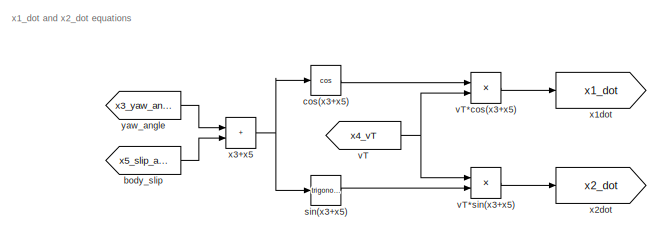
[diagram: LinModel - part 1/9, top left region]
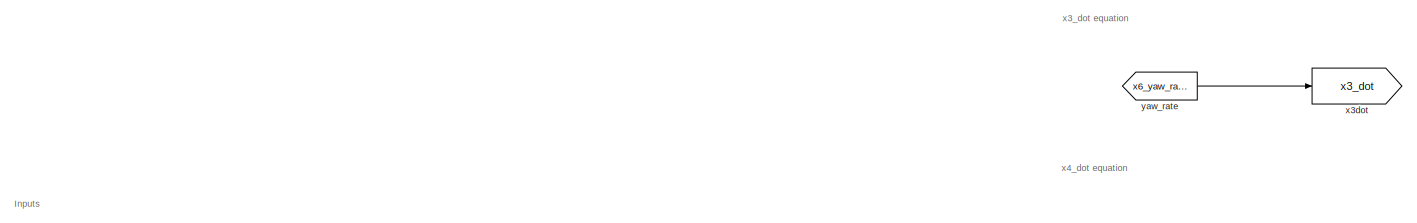
[diagram: LinModel - part 2/9, top left region]
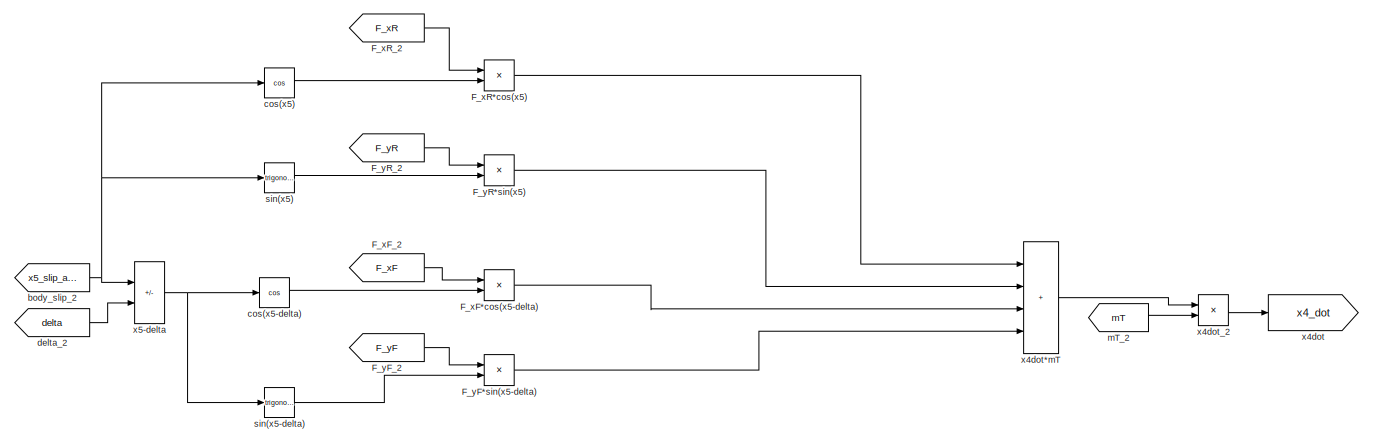
[diagram: LinModel - part 3/9, top center region]
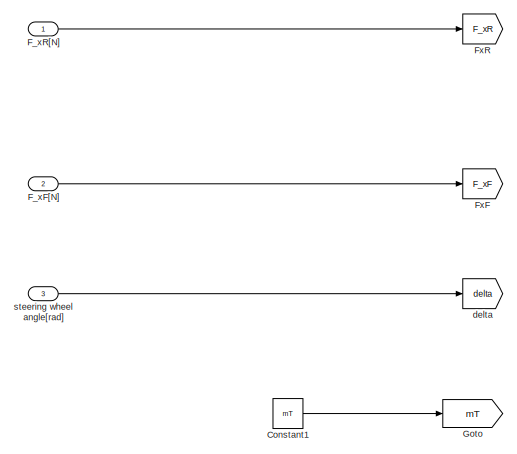
[diagram: LinModel - part 4/9, middle left region]
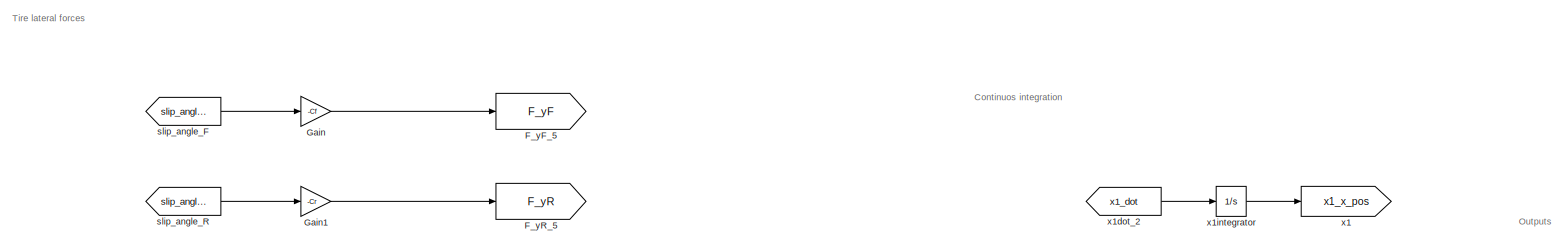
[diagram: LinModel - part 5/9, top right region]
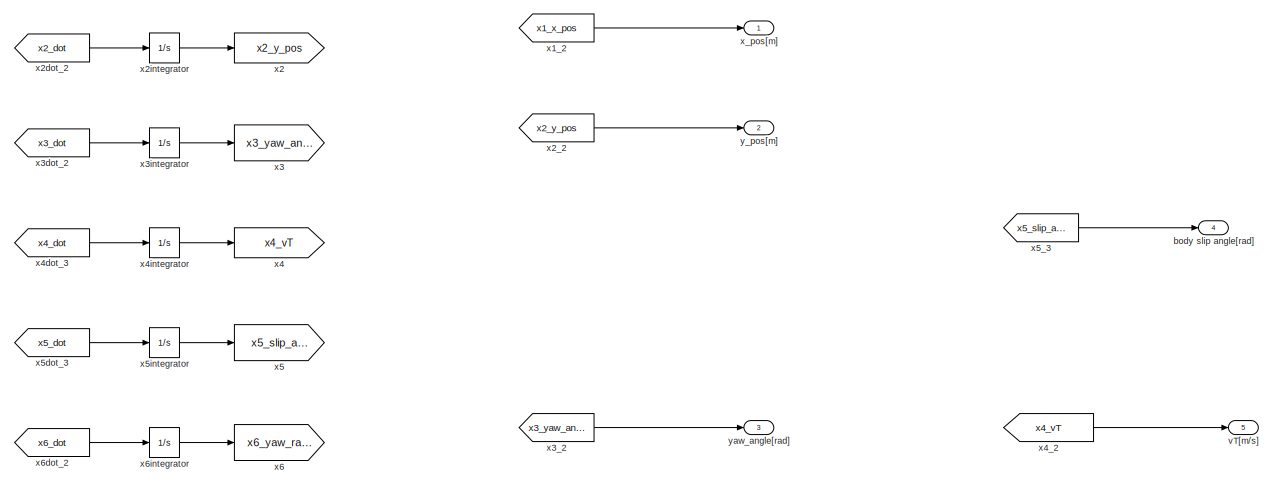
[diagram: LinModel - part 6/9, middle right region]
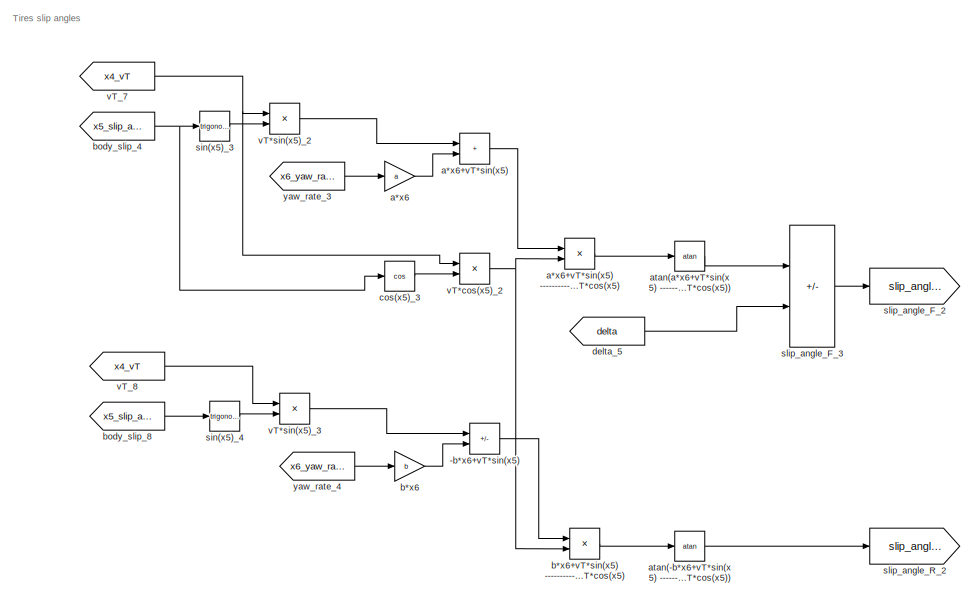
[diagram: LinModel - part 7/9, central region]
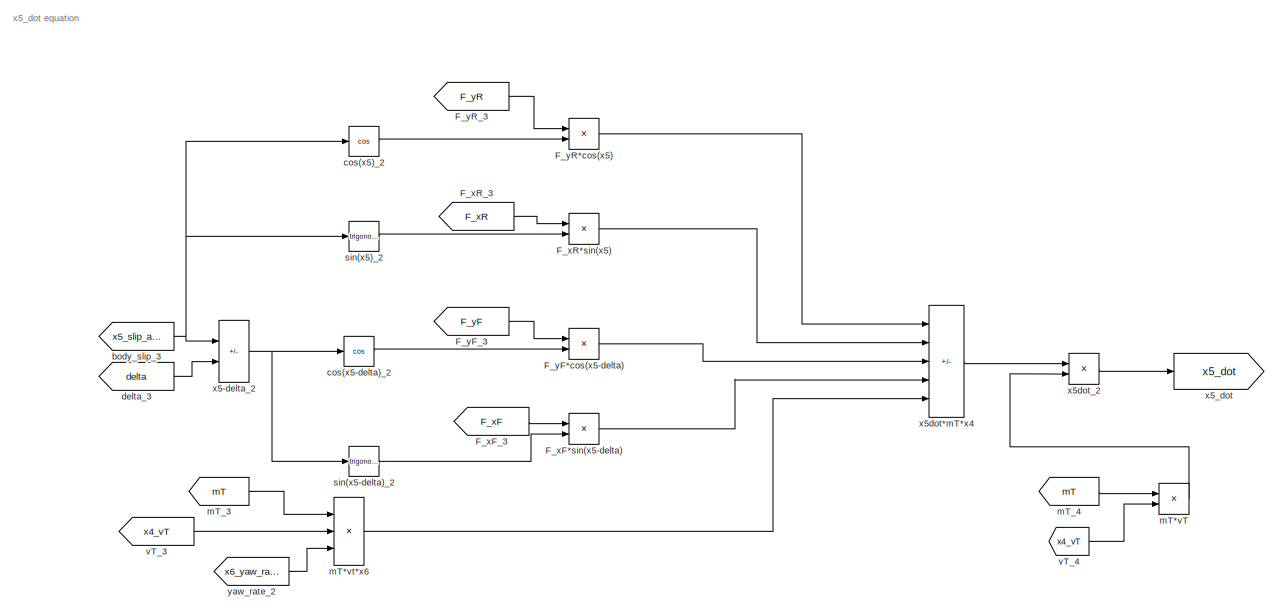
[diagram: LinModel - part 8/9, central region]
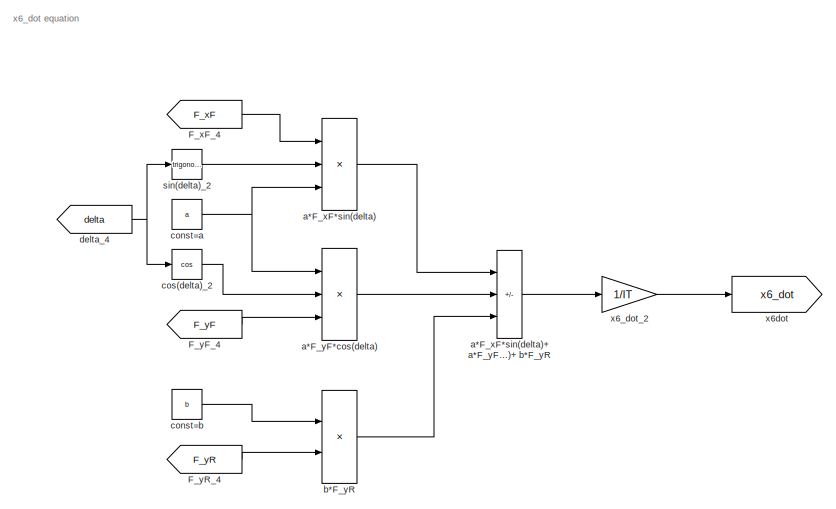
[diagram: LinModel - part 9/9, bottom left region]
BLOCK [SubSystem] LinModel
  Commented = on
  Ports = [3, 5]
  RequestExecContextInheritance = off
BLOCK [Sum] LinModel/-b*x6+vT*sin(x5)
  IconShape = rectangular
  Inputs = +-
  Ports = [2, 1]
BLOCK [Constant] LinModel/Constant1
  Value = mT
BLOCK [Product] LinModel/F_xF*cos(x5-delta)
  Ports = [2, 1]
BLOCK [Product] LinModel/F_xF*sin(x5-delta)
  Ports = [2, 1]
BLOCK [Inport] LinModel/F_xF[N]
  Port = 2
  Unit = N
BLOCK [From] LinModel/F_xF_2
  GotoTag = F_xF
BLOCK [From] LinModel/F_xF_3
  GotoTag = F_xF
BLOCK [From] LinModel/F_xF_4
  GotoTag = F_xF
BLOCK [Product] LinModel/F_xR*cos(x5)
  Ports = [2, 1]
BLOCK [Product] LinModel/F_xR*sin(x5)
  Ports = [2, 1]
BLOCK [Inport] LinModel/F_xR[N]
  Unit = N
BLOCK [From] LinModel/F_xR_2
  GotoTag = F_xR
BLOCK [From] LinModel/F_xR_3
  GotoTag = F_xR
BLOCK [Product] LinModel/F_yF*cos(x5-delta)
  Ports = [2, 1]
BLOCK [Product] LinModel/F_yF*sin(x5-delta)
  Ports = [2, 1]
BLOCK [From] LinModel/F_yF_2
  GotoTag = F_yF
BLOCK [From] LinModel/F_yF_3
  GotoTag = F_yF
BLOCK [From] LinModel/F_yF_4
  GotoTag = F_yF
BLOCK [Goto] LinModel/F_yF_5
  GotoTag = F_yF
BLOCK [Product] LinModel/F_yR*cos(x5)
  Ports = [2, 1]
BLOCK [Product] LinModel/F_yR*sin(x5)
  Ports = [2, 1]
BLOCK [From] LinModel/F_yR_2
  GotoTag = F_yR
BLOCK [From] LinModel/F_yR_3
  GotoTag = F_yR
BLOCK [From] LinModel/F_yR_4
  GotoTag = F_yR
BLOCK [Goto] LinModel/F_yR_5
  GotoTag = F_yR
BLOCK [Goto] LinModel/FxF
  GotoTag = F_xF
BLOCK [Goto] LinModel/FxR
  GotoTag = F_xR
BLOCK [Gain] LinModel/Gain
  Gain = -Cf
BLOCK [Gain] LinModel/Gain1
  Gain = -Cr
BLOCK [Goto] LinModel/Goto
  GotoTag = mT
BLOCK [Product] LinModel/a*F_xF*sin(delta)
  Inputs = 3
  Ports = [3, 1]
BLOCK [Sum] LinModel/a*F_xF*sin(delta)+ a*F_yF*cos(delta)+ b*F_yR
  IconShape = rectangular
  Inputs = ++-
  NameLocation = top
  Ports = [3, 1]
BLOCK [Product] LinModel/a*F_yF*cos(delta)
  Inputs = 3
  Ports = [3, 1]
BLOCK [Gain] LinModel/a*x6
  Gain = a
BLOCK [Sum] LinModel/a*x6+vT*sin(x5)
  IconShape = rectangular
  Ports = [2, 1]
BLOCK [Product] LinModel/a*x6+vT*sin(x5) -------------------- vT*cos(x5)
  Inputs = */
  Ports = [2, 1]
BLOCK [Trigonometry] LinModel/atan(-b*x6+vT*sin(x5) -------------------- vT*cos(x5))
  Operator = atan
  Ports = [1, 1]
BLOCK [Trigonometry] LinModel/atan(a*x6+vT*sin(x5) -------------------- vT*cos(x5))
  Operator = atan
  Ports = [1, 1]
BLOCK [Product] LinModel/b*F_yR
  Ports = [2, 1]
BLOCK [Gain] LinModel/b*x6
  Gain = b
BLOCK [Product] LinModel/b*x6+vT*sin(x5) -------------------- vT*cos(x5)
  Inputs = */
  Ports = [2, 1]
BLOCK [Outport] LinModel/body slip angle[rad]
  Port = 4
  Unit = rad
BLOCK [From] LinModel/body_slip
  GotoTag = x5_slip_angle
BLOCK [From] LinModel/body_slip_2
  GotoTag = x5_slip_angle
BLOCK [From] LinModel/body_slip_3
  GotoTag = x5_slip_angle
BLOCK [From] LinModel/body_slip_4
  GotoTag = x5_slip_angle
BLOCK [From] LinModel/body_slip_8
  GotoTag = x5_slip_angle
BLOCK [Constant] LinModel/const=a
  Value = a
BLOCK [Constant] LinModel/const=b
  Value = b
BLOCK [Trigonometry] LinModel/cos(delta)_2
  Operator = cos
  Ports = [1, 1]
BLOCK [Trigonometry] LinModel/cos(x3+x5)
  Operator = cos
  Ports = [1, 1]
BLOCK [Trigonometry] LinModel/cos(x5)
  Operator = cos
  Ports = [1, 1]
BLOCK [Trigonometry] LinModel/cos(x5)_2
  Operator = cos
  Ports = [1, 1]
BLOCK [Trigonometry] LinModel/cos(x5)_3
  Operator = cos
  Ports = [1, 1]
BLOCK [Trigonometry] LinModel/cos(x5-delta)
  Operator = cos
  Ports = [1, 1]
BLOCK [Trigonometry] LinModel/cos(x5-delta)_2
  Operator = cos
  Ports = [1, 1]
BLOCK [Goto] LinModel/delta
  GotoTag = delta
BLOCK [From] LinModel/delta_2
  GotoTag = delta
BLOCK [From] LinModel/delta_3
  GotoTag = delta
BLOCK [From] LinModel/delta_4
  GotoTag = delta
BLOCK [From] LinModel/delta_5
  GotoTag = delta
BLOCK [Product] LinModel/mT*vT
  Ports = [2, 1]
BLOCK [Product] LinModel/mT*vt*x6
  Inputs = 3
  Ports = [3, 1]
BLOCK [From] LinModel/mT_2
  GotoTag = mT
BLOCK [From] LinModel/mT_3
  GotoTag = mT
BLOCK [From] LinModel/mT_4
  GotoTag = mT
BLOCK [Trigonometry] LinModel/sin(delta)_2
  Ports = [1, 1]
BLOCK [Trigonometry] LinModel/sin(x3+x5)
  Ports = [1, 1]
BLOCK [Trigonometry] LinModel/sin(x5)
  Ports = [1, 1]
BLOCK [Trigonometry] LinModel/sin(x5)_2
  Ports = [1, 1]
BLOCK [Trigonometry] LinModel/sin(x5)_3
  Ports = [1, 1]
BLOCK [Trigonometry] LinModel/sin(x5)_4
  Ports = [1, 1]
BLOCK [Trigonometry] LinModel/sin(x5-delta)
  Ports = [1, 1]
BLOCK [Trigonometry] LinModel/sin(x5-delta)_2
  Ports = [1, 1]
BLOCK [From] LinModel/slip_angle_F
  GotoTag = slip_angle_F
BLOCK [Goto] LinModel/slip_angle_F_2
  GotoTag = slip_angle_F
BLOCK [Sum] LinModel/slip_angle_F_3
  IconShape = rectangular
  Inputs = +-
  Ports = [2, 1]
BLOCK [From] LinModel/slip_angle_R
  GotoTag = slip_angle_R
BLOCK [Goto] LinModel/slip_angle_R_2
  GotoTag = slip_angle_R
BLOCK [Inport] LinModel/steering wheel angle[rad]
  Port = 3
  Unit = rad
BLOCK [From] LinModel/vT
  GotoTag = x4_vT
BLOCK [Product] LinModel/vT*cos(x3+x5)
  Ports = [2, 1]
BLOCK [Product] LinModel/vT*cos(x5)_2
  Ports = [2, 1]
BLOCK [Product] LinModel/vT*sin(x3+x5)
  Ports = [2, 1]
BLOCK [Product] LinModel/vT*sin(x5)_2
  Ports = [2, 1]
BLOCK [Product] LinModel/vT*sin(x5)_3
  Ports = [2, 1]
BLOCK [Outport] LinModel/vT[m//s]
  Port = 5
  Unit = m/s
BLOCK [From] LinModel/vT_3
  GotoTag = x4_vT
BLOCK [From] LinModel/vT_4
  GotoTag = x4_vT
BLOCK [From] LinModel/vT_7
  GotoTag = x4_vT
BLOCK [From] LinModel/vT_8
  GotoTag = x4_vT
BLOCK [Goto] LinModel/x1
  GotoTag = x1_x_pos
BLOCK [From] LinModel/x1_2
  GotoTag = x1_x_pos
BLOCK [Goto] LinModel/x1dot
  GotoTag = x1_dot
BLOCK [From] LinModel/x1dot_2
  GotoTag = x1_dot
BLOCK [Integrator] LinModel/x1integrator
  InitialCondition = init_x_pos + 10
  Ports = [1, 1]
BLOCK [Goto] LinModel/x2
  GotoTag = x2_y_pos
BLOCK [From] LinModel/x2_2
  GotoTag = x2_y_pos
BLOCK [Goto] LinModel/x2dot
  GotoTag = x2_dot
BLOCK [From] LinModel/x2dot_2
  GotoTag = x2_dot
BLOCK [Integrator] LinModel/x2integrator
  InitialCondition = init_y_pos
  Ports = [1, 1]
BLOCK [Goto] LinModel/x3
  GotoTag = x3_yaw_angle
BLOCK [Sum] LinModel/x3+x5
  IconShape = rectangular
  Ports = [2, 1]
BLOCK [From] LinModel/x3_2
  GotoTag = x3_yaw_angle
BLOCK [Goto] LinModel/x3dot
  GotoTag = x3_dot
BLOCK [From] LinModel/x3dot_2
  GotoTag = x3_dot
BLOCK [Integrator] LinModel/x3integrator
  InitialCondition = init_yaw
  Ports = [1, 1]
BLOCK [Goto] LinModel/x4
  GotoTag = x4_vT
BLOCK [From] LinModel/x4_2
  GotoTag = x4_vT
BLOCK [Goto] LinModel/x4dot
  GotoTag = x4_dot
BLOCK [Sum] LinModel/x4dot*mT
  IconShape = rectangular
  Inputs = ++++
  Ports = [4, 1]
BLOCK [Product] LinModel/x4dot_2
  Inputs = */
  Ports = [2, 1]
BLOCK [From] LinModel/x4dot_3
  GotoTag = x4_dot
BLOCK [Integrator] LinModel/x4integrator
  InitialCondition = init_vel
  LimitOutput = on
  LowerSaturationLimit = 10
  Ports = [1, 1]
BLOCK [Goto] LinModel/x5
  GotoTag = x5_slip_angle
BLOCK [Sum] LinModel/x5-delta
  IconShape = rectangular
  Inputs = +-
  Ports = [2, 1]
BLOCK [Sum] LinModel/x5-delta_2
  IconShape = rectangular
  Inputs = +-
  Ports = [2, 1]
BLOCK [From] LinModel/x5_3
  GotoTag = x5_slip_angle
BLOCK [Goto] LinModel/x5_dot
  GotoTag = x5_dot
BLOCK [Sum] LinModel/x5dot*mT*x4
  IconShape = rectangular
  Inputs = +-+--
  Ports = [5, 1]
BLOCK [Product] LinModel/x5dot_2
  Inputs = */
  Ports = [2, 1]
BLOCK [From] LinModel/x5dot_3
  GotoTag = x5_dot
BLOCK [Integrator] LinModel/x5integrator
  Ports = [1, 1]
BLOCK [Goto] LinModel/x6
  GotoTag = x6_yaw_rate
BLOCK [Gain] LinModel/x6_dot_2
  Gain = 1/IT
BLOCK [Goto] LinModel/x6dot
  GotoTag = x6_dot
BLOCK [From] LinModel/x6dot_2
  GotoTag = x6_dot
BLOCK [Integrator] LinModel/x6integrator
  Ports = [1, 1]
BLOCK [Outport] LinModel/x_pos[m]
  Unit = m
BLOCK [Outport] LinModel/y_pos[m]
  Port = 2
  Unit = m
BLOCK [From] LinModel/yaw_angle
  GotoTag = x3_yaw_angle
BLOCK [Outport] LinModel/yaw_angle[rad]
  Port = 3
  Unit = rad
BLOCK [From] LinModel/yaw_rate
  GotoTag = x6_yaw_rate
BLOCK [From] LinModel/yaw_rate_2
  GotoTag = x6_yaw_rate
BLOCK [From] LinModel/yaw_rate_3
  GotoTag = x6_yaw_rate
BLOCK [From] LinModel/yaw_rate_4
  GotoTag = x6_yaw_rate
BLOCK [Scope] POS_VEL
  Floating = off
  NumInputPorts = 4
  Ports = [4]
  ScopeSpecificationString = Simulink.scopes.TimeScopeBlockCfg('CurrentConfiguration', extmgr.ConfigurationSet(extmgr.Configuration('Core','General UI',true,'FigureColor',[1 1 1]),extmgr.Configuration('Core','Source UI',true),extmgr.Configuration('Sources','WiredSimulink',true,'DataLoggingVariableName','ScopeData7'),extmgr.Configuration('Visuals','Time Domain',true,'SerializedDisplays',{struct('MinYLimReal','-957.97682','MaxY...<+7747ch>
BLOCK [Scope] POWER_MASS
  Floating = off
  NumInputPorts = 2
  Ports = [2]
  ScopeSpecificationString = Simulink.scopes.TimeScopeBlockCfg('CurrentConfiguration', extmgr.ConfigurationSet(extmgr.Configuration('Core','General UI',true,'FigureColor',[1 1 1]),extmgr.Configuration('Core','Source UI',true),extmgr.Configuration('Sources','WiredSimulink',true,'DataLoggingVariableName','ScopeData4'),extmgr.Configuration('Visuals','Time Domain',true,'SerializedDisplays',{struct('MinYLimReal','27443.21755','Max...<+4316ch>
BLOCK [RotarySwitchBlock] Rotary Switch
BLOCK [RotarySwitchBlock] Rotary Switch1
BLOCK [Scope] TYRE_SLIPS
  Floating = off
  NumInputPorts = 2
  Ports = [2]
  ScopeSpecificationString = Simulink.scopes.TimeScopeBlockCfg('CurrentConfiguration', extmgr.ConfigurationSet(extmgr.Configuration('Core','General UI',true,'FigureColor',[1 1 1]),extmgr.Configuration('Core','Source UI',true),extmgr.Configuration('Sources','WiredSimulink',true,'DataLoggingVariableName','ScopeData1'),extmgr.Configuration('Visuals','Time Domain',true,'SerializedDisplays',{struct('MinYLimReal','-15.10251','MaxYL...<+3986ch>
BLOCK [Scope] TYRE_WEAR
  Floating = off
  NumInputPorts = 6
  Ports = [6]
  ScopeSpecificationString = Simulink.scopes.TimeScopeBlockCfg('CurrentConfiguration', extmgr.ConfigurationSet(extmgr.Configuration('Core','General UI',true,'FigureColor',[1 1 1]),extmgr.Configuration('Core','Source UI',true),extmgr.Configuration('Sources','WiredSimulink',true,'DataLoggingVariableName','ScopeData6'),extmgr.Configuration('Visuals','Time Domain',true,'SerializedDisplays',{struct('MinYLimReal','-733.36454','MaxY...<+7581ch>
BLOCK [ToggleSwitchBlock] Toggle Switch
BLOCK [ToggleSwitchBlock] Toggle Switch1
BLOCK [Scope] VEL_ACC_POWER
  Floating = off
  NumInputPorts = 3
  Ports = [3]
  ScopeSpecificationString = Simulink.scopes.TimeScopeBlockCfg('CurrentConfiguration', extmgr.ConfigurationSet(extmgr.Configuration('Core','General UI',true,'FigureColor',[1 1 1]),extmgr.Configuration('Core','Source UI',true),extmgr.Configuration('Sources','WiredSimulink',true,'DataLoggingVariableName','ScopeData5'),extmgr.Configuration('Visuals','Time Domain',true,'SerializedDisplays',{struct('MinYLimReal','75.61124','MaxYLi...<+5671ch>
BLOCK [Scope] VERTICAL_FORCES
  Floating = off
  NumInputPorts = 2
  Ports = [2]
  ScopeSpecificationString = Simulink.scopes.TimeScopeBlockCfg('CurrentConfiguration', extmgr.ConfigurationSet(extmgr.Configuration('Core','General UI',true,'FigureColor',[1 1 1]),extmgr.Configuration('Core','Source UI',true),extmgr.Configuration('Sources','WiredSimulink',true,'DataLoggingVariableName','ScopeData1'),extmgr.Configuration('Visuals','Time Domain',true,'SerializedDisplays',{struct('MinYLimReal','3894.41228','MaxY...<+3983ch>
BLOCK [Reference] XY Graph  REF=simulink/Sinks/XY Graph
  Commented = on
  Ports = [2]
  SourceBlock = simulink/Sinks/XY Graph
  SourceProductBaseCode = SL
  SourceType = XY scope.
BLOCK [Goto] accelaration
  GotoTag = acc
BLOCK [From] acceleration[ms^-2]
  GotoTag = acc
BLOCK [Goto] body_slip
  GotoTag = body_slip
BLOCK [Gain] body_slip[deg]
  Gain = 180/pi
BLOCK [From] body_slip[rad]_1
  GotoTag = body_slip
BLOCK [From] body_slip_2
  GotoTag = body_slip
BLOCK [Constant] const=0
  Value = 0
BLOCK [Goto] frontWear
  GotoTag = front_wear
BLOCK [Gain] frontWear[mm^3]
  Gain = 10^9
BLOCK [Gain] frontWear[mm^3]1
  Gain = 10^9
BLOCK [From] front_wear[m^3]
  GotoTag = front_wear
BLOCK [From] front_wear[m^3]1
  GotoTag = front_wear
BLOCK [Goto] gamma
  GotoTag = gamma
BLOCK [Gain] gamma[deg]
  Gain = 180/pi
BLOCK [From] gamma[rad]
  GotoTag = gamma
BLOCK [Goto] mass
  GotoTag = mass
BLOCK [From] mass[kg]
  GotoTag = mass
BLOCK [Goto] power
  GotoTag = power
BLOCK [From] power[W]
  GotoTag = power
BLOCK [Goto] rearWear
  GotoTag = rear_wear
BLOCK [Gain] rearWear[mm^3]
  Gain = 10^9
BLOCK [Gain] rearWear[mm^3]1
  Gain = 10^9
BLOCK [From] rear_wear[m^3]
  GotoTag = rear_wear
BLOCK [From] rear_wear[m^3]1
  GotoTag = rear_wear
BLOCK [Goto] slipF
  GotoTag = slip_tyreF
BLOCK [From] slipF_2
  GotoTag = slip_tyreF
BLOCK [Goto] slipR
  GotoTag = slip_tyreR
BLOCK [From] slipR_2
  GotoTag = slip_tyreR
BLOCK [Gain] slip_angle_F[deg]
  Gain = 180/pi
BLOCK [Gain] slip_angle_R[deg]
  Gain = 180/pi
BLOCK [Goto] vT
  GotoTag = vT
BLOCK [From] vT [ms^-1]1
  GotoTag = vT
BLOCK [From] vT[ms^-1]
  GotoTag = vT
BLOCK [From] x_dot[ms^-1]
  GotoTag = x_dot
BLOCK [From] x_pos[m]
  GotoTag = x_pos
BLOCK [From] x_pos[m]1
  GotoTag = x_pos
BLOCK [From] x_pos[m]_
  GotoTag = x_pos
BLOCK [From] x_pos_3
  GotoTag = x_pos
BLOCK [Goto] xdot
  GotoTag = x_dot
BLOCK [Goto] xpos
  GotoTag = x_pos
BLOCK [Reference] xy_pos  REF=simulink/Sinks/XY Graph
  Ports = [2]
  SourceBlock = simulink/Sinks/XY Graph
  SourceProductBaseCode = SL
  SourceType = XY scope.
BLOCK [From] y_dot[ms^-1]
  GotoTag = y_dot
BLOCK [From] y_pos[m]
  GotoTag = y_pos
BLOCK [From] y_pos[m]1
  GotoTag = y_pos
BLOCK [From] y_pos[m]_
  GotoTag = y_pos
BLOCK [From] y_pos_3
  GotoTag = y_pos
BLOCK [Goto] yaw_angle
  GotoTag = yaw_angle
BLOCK [Gain] yaw_angle[deg]
  Gain = 180/pi
BLOCK [From] yaw_angle[rad]_2
  GotoTag = yaw_angle
BLOCK [From] yaw_angle_2
  GotoTag = yaw_angle
BLOCK [Goto] yaw_rate
  GotoTag = yaw_rate
BLOCK [Gain] yaw_rate[degs^-1]
  Gain = 180/pi
BLOCK [From] yaw_rate_2
  GotoTag = yaw_rate
BLOCK [Goto] ydot
  GotoTag = y_dot
BLOCK [Goto] ypos
  GotoTag = y_pos
ANNOTATION (root): Control
ANNOTATION (root): Figures
ANNOTATION (root): Model
ANNOTATION Controller/Lateral_controller: DEBUG
ANNOTATION Controller/Lateral_controller/Lateral error: ROTOTRASLATION - error on cog
ANNOTATION Controller/Lateral_controller/Lateral error: ROTOTRASLATION - error on lookeahead
ANNOTATION Controller1/Lateral_controller/Lateral error: ROTOTRASLATION - error on cog
ANNOTATION Controller1/Lateral_controller/Lateral error: ROTOTRASLATION - error on lookeahead
ANNOTATION DynamicModel: Continuos integration
ANNOTATION DynamicModel: Counter laps
ANNOTATION DynamicModel: FN
ANNOTATION DynamicModel: Inputs
ANNOTATION DynamicModel: Outputs
ANNOTATION DynamicModel: Tire lateral forces
ANNOTATION DynamicModel: Tires slip angles
ANNOTATION DynamicModel: Tyre wears
ANNOTATION DynamicModel: Wind effect
ANNOTATION DynamicModel: mdot
ANNOTATION DynamicModel: vertical force
ANNOTATION DynamicModel: x1_dot and x2_dot equations
ANNOTATION DynamicModel: x3_dot equation
ANNOTATION DynamicModel: x4_dot equation
ANNOTATION DynamicModel: x5_dot equation
ANNOTATION DynamicModel: x6_dot equation
ANNOTATION DynamicModel/Calculate Peak F: D_lat
ANNOTATION DynamicModel/Calculate Peak F: D_long
ANNOTATION DynamicModel/Calculate Peak F: Fx^2/Fxmax^2 + Fy^2/Fymax^2 = 1
ANNOTATION DynamicModel/Calculate Peak F: Fy = sqrt(1 - Fx^2/Fx_max^2) * Fymax This Fy is the new peak
ANNOTATION DynamicModel/Calculate Peak F: V_lat
ANNOTATION DynamicModel/Calculate Peak F: V_long
ANNOTATION DynamicModel/Calculate Peak F1: D_lat
ANNOTATION DynamicModel/Calculate Peak F1: D_long
ANNOTATION DynamicModel/Calculate Peak F1: Fx^2/Fxmax^2 + Fy^2/Fymax^2 = 1
ANNOTATION DynamicModel/Calculate Peak F1: Fy = sqrt(1 - Fx^2/Fx_max^2) * Fymax This Fy is the new peak
ANNOTATION DynamicModel/Calculate Peak F1: V_lat
ANNOTATION DynamicModel/Calculate Peak F1: V_long
ANNOTATION DynamicModel/Calculate Peak F2: D_lat
ANNOTATION DynamicModel/Calculate Peak F2: D_long
ANNOTATION DynamicModel/Calculate Peak F2: Fx^2/Fxmax^2 + Fy^2/Fymax^2 = 1
ANNOTATION DynamicModel/Calculate Peak F2: Fy = sqrt(1 - Fx^2/Fx_max^2) * Fymax This Fy is the new peak
ANNOTATION DynamicModel/Calculate Peak F2: V_lat
ANNOTATION DynamicModel/Calculate Peak F2: V_long
ANNOTATION DynamicModel/Calculate Peak R: D_lat
ANNOTATION DynamicModel/Calculate Peak R: D_long
ANNOTATION DynamicModel/Calculate Peak R: Fx^2/Fxmax^2 + Fy^2/Fymax^2 = 1
ANNOTATION DynamicModel/Calculate Peak R: Fy = sqrt(1 - Fx^2/Fx_max^2) * Fymax This Fy is the new peak
ANNOTATION DynamicModel/Calculate Peak R: V_lat
ANNOTATION DynamicModel/Calculate Peak R: V_long
ANNOTATION DynamicModel/PacejkaF: inputs-output
ANNOTATION DynamicModel/PacejkaF: output-Fy
ANNOTATION DynamicModel/PacejkaF1: inputs-output
ANNOTATION DynamicModel/PacejkaF1: output-Fy
ANNOTATION DynamicModel/PacejkaF2: inputs-output
ANNOTATION DynamicModel/PacejkaF2: output-Fy
ANNOTATION DynamicModel/PacejkaR: inputs-output
ANNOTATION DynamicModel/PacejkaR: output-Fy
ANNOTATION LinModel: Continuos integration
ANNOTATION LinModel: Inputs
ANNOTATION LinModel: Outputs
ANNOTATION LinModel: Tire lateral forces
ANNOTATION LinModel: Tires slip angles
ANNOTATION LinModel: x1_dot and x2_dot equations
ANNOTATION LinModel: x3_dot equation
ANNOTATION LinModel: x4_dot equation
ANNOTATION LinModel: x5_dot equation
ANNOTATION LinModel: x6_dot equation
LINE Constant:1 -> LinModel:2
LINE Controller/Cos:1 -> Controller/Product:1
LINE Controller/From:1 -> Controller/Lateral_controller:4
LINE Controller/Lateral_controller/Abs:1 -> Controller/Lateral_controller/GreaterThan:1
LINE Controller/Lateral_controller/Add3:1 -> Controller/Lateral_controller/Divide3:1
LINE Controller/Lateral_controller/Add6:1 -> Controller/Lateral_controller/Goto10:1
LINE Controller/Lateral_controller/Add7:1 -> Controller/Lateral_controller/Goto11:1
LINE Controller/Lateral_controller/Constant6:1 -> Controller/Lateral_controller/Power1:2
NET Controller/Lateral_controller/Constant7:1 -> Controller/Lateral_controller/Gain10:1, Controller/Lateral_controller/Gain11:1
LINE Controller/Lateral_controller/Constant:1 -> Controller/Lateral_controller/GreaterThan:2
LINE Controller/Lateral_controller/Cos:1 -> Controller/Lateral_controller/Product5:1
LINE Controller/Lateral_controller/Divide3:1 -> Controller/Lateral_controller/Goto7:1
LINE Controller/Lateral_controller/From10:1 -> Controller/Lateral_controller/Lateral error:6
NET Controller/Lateral_controller/From11:1 -> Controller/Lateral_controller/Product5:2, Controller/Lateral_controller/Product6:1
LINE Controller/Lateral_controller/From1:1 -> Controller/Lateral_controller/Lateral error:3
LINE Controller/Lateral_controller/From2:1 -> Controller/Lateral_controller/Product2:1
LINE Controller/Lateral_controller/From3:1 -> Controller/Lateral_controller/Product2:2
LINE Controller/Lateral_controller/From4:1 -> Controller/Lateral_controller/toWorkspace_y:1
LINE Controller/Lateral_controller/From5:1 -> Controller/Lateral_controller/toWorkspace_x:1
LINE Controller/Lateral_controller/From9:1 -> Controller/Lateral_controller/Lateral error:5
LINE Controller/Lateral_controller/From:1 -> Controller/Lateral_controller/Lateral error:4
LINE Controller/Lateral_controller/Gain10:1 -> Controller/Lateral_controller/Add3:2
LINE Controller/Lateral_controller/Gain11:1 -> Controller/Lateral_controller/Divide3:2
LINE Controller/Lateral_controller/Gain6:1 -> Controller/Lateral_controller/Goto4:1
LINE Controller/Lateral_controller/Gain9:1 -> Controller/Lateral_controller/Add3:1
LINE Controller/Lateral_controller/GreaterThan:1 -> Controller/Lateral_controller/Stop Simulation:1
LINE Controller/Lateral_controller/Lateral error/Add1:1 -> Controller/Lateral_controller/Lateral error/Atan2:2
LINE Controller/Lateral_controller/Lateral error/Add2:1 -> Controller/Lateral_controller/Lateral error/Atan1:2
LINE Controller/Lateral_controller/Lateral error/Add3:1 -> Controller/Lateral_controller/Lateral error/Atan2:1
LINE Controller/Lateral_controller/Lateral error/Add4:1 -> Controller/Lateral_controller/Lateral error/Divide2:1
LINE Controller/Lateral_controller/Lateral error/Add5:1 -> Controller/Lateral_controller/Lateral error/e_la [m]:1
LINE Controller/Lateral_controller/Lateral error/Add6:1 -> Controller/Lateral_controller/Lateral error/Atan1:1
LINE Controller/Lateral_controller/Lateral error/Add7:1 -> Controller/Lateral_controller/Lateral error/Divide3:2
LINE Controller/Lateral_controller/Lateral error/Add8:1 -> Controller/Lateral_controller/Lateral error/Divide4:1
LINE Controller/Lateral_controller/Lateral error/Add9:1 -> Controller/Lateral_controller/Lateral error/e [m]:1
LINE Controller/Lateral_controller/Lateral error/Add:1 -> Controller/Lateral_controller/Lateral error/Divide1:2
LINE Controller/Lateral_controller/Lateral error/Atan1:1 -> Controller/Lateral_controller/Lateral error/Goto14:1
LINE Controller/Lateral_controller/Lateral error/Atan2:1 -> Controller/Lateral_controller/Lateral error/Goto7:1
LINE Controller/Lateral_controller/Lateral error/Demux1:1 -> Controller/Lateral_controller/Lateral error/Add1:1
LINE Controller/Lateral_controller/Lateral error/Demux1:2 -> Controller/Lateral_controller/Lateral error/Quant X:1
LINE Controller/Lateral_controller/Lateral error/Demux1:3 -> Controller/Lateral_controller/Lateral error/Add1:2
LINE Controller/Lateral_controller/Lateral error/Demux2:1 -> Controller/Lateral_controller/Lateral error/Add3:1
LINE Controller/Lateral_controller/Lateral error/Demux2:2 -> Controller/Lateral_controller/Lateral error/Quant Y:1
LINE Controller/Lateral_controller/Lateral error/Demux2:3 -> Controller/Lateral_controller/Lateral error/Add3:2
LINE Controller/Lateral_controller/Lateral error/Demux3:1 -> Controller/Lateral_controller/Lateral error/Add2:1
LINE Controller/Lateral_controller/Lateral error/Demux3:2 -> Controller/Lateral_controller/Lateral error/Quant X1:1
LINE Controller/Lateral_controller/Lateral error/Demux3:3 -> Controller/Lateral_controller/Lateral error/Add2:2
LINE Controller/Lateral_controller/Lateral error/Demux4:1 -> Controller/Lateral_controller/Lateral error/Add6:1
LINE Controller/Lateral_controller/Lateral error/Demux4:2 -> Controller/Lateral_controller/Lateral error/Quant Y1:1
LINE Controller/Lateral_controller/Lateral error/Demux4:3 -> Controller/Lateral_controller/Lateral error/Add6:2
LINE Controller/Lateral_controller/Lateral error/Divide1:1 -> Controller/Lateral_controller/Lateral error/Add5:2
LINE Controller/Lateral_controller/Lateral error/Divide2:1 -> Controller/Lateral_controller/Lateral error/Add5:1
LINE Controller/Lateral_controller/Lateral error/Divide3:1 -> Controller/Lateral_controller/Lateral error/Add9:2
LINE Controller/Lateral_controller/Lateral error/Divide4:1 -> Controller/Lateral_controller/Lateral error/Add9:1
NET Controller/Lateral_controller/Lateral error/From10:1 -> Controller/Lateral_controller/Lateral error/Add4:2, Controller/Lateral_controller/Lateral error/Scope6:1
LINE Controller/Lateral_controller/Lateral error/From11:1 -> Controller/Lateral_controller/Lateral error/MATLAB Function:4
NET Controller/Lateral_controller/Lateral error/From12:1 -> Controller/Lateral_controller/Lateral error/Add8:2, Controller/Lateral_controller/Lateral error/Scope1:1
NET Controller/Lateral_controller/Lateral error/From13:1 -> Controller/Lateral_controller/Lateral error/Trigonometric Function1:1, Controller/Lateral_controller/Lateral error/Trigonometric Function:1
NET Controller/Lateral_controller/Lateral error/From14:1 -> Controller/Lateral_controller/Lateral error/Trigonometric Function2:1, Controller/Lateral_controller/Lateral error/Trigonometric Function3:1
LINE Controller/Lateral_controller/Lateral error/From15:1 -> Controller/Lateral_controller/Lateral error/Add8:1
LINE Controller/Lateral_controller/Lateral error/From16:1 -> Controller/Lateral_controller/Lateral error/Add7:1
LINE Controller/Lateral_controller/Lateral error/From17:1 -> Controller/Lateral_controller/Lateral error/Add7:2
LINE Controller/Lateral_controller/Lateral error/From1:1 -> Controller/Lateral_controller/Lateral error/MATLAB Function:8
LINE Controller/Lateral_controller/Lateral error/From2:1 -> Controller/Lateral_controller/Lateral error/Add4:1
LINE Controller/Lateral_controller/Lateral error/From3:1 -> Controller/Lateral_controller/Lateral error/Add:1
LINE Controller/Lateral_controller/Lateral error/From4:1 -> Controller/Lateral_controller/Lateral error/MATLAB Function:1
LINE Controller/Lateral_controller/Lateral error/From5:1 -> Controller/Lateral_controller/Lateral error/MATLAB Function:3
LINE Controller/Lateral_controller/Lateral error/From6:1 -> Controller/Lateral_controller/Lateral error/MATLAB Function:2
LINE Controller/Lateral_controller/Lateral error/From7:1 -> Controller/Lateral_controller/Lateral error/MATLAB Function:5
LINE Controller/Lateral_controller/Lateral error/From8:1 -> Controller/Lateral_controller/Lateral error/MATLAB Function:6
LINE Controller/Lateral_controller/Lateral error/From9:1 -> Controller/Lateral_controller/Lateral error/Add:2
LINE Controller/Lateral_controller/Lateral error/From:1 -> Controller/Lateral_controller/Lateral error/MATLAB Function:7
LINE Controller/Lateral_controller/Lateral error/Gain1:1 -> Controller/Lateral_controller/Lateral error/Divide3:1
LINE Controller/Lateral_controller/Lateral error/Gain:1 -> Controller/Lateral_controller/Lateral error/Divide1:1
LINE Controller/Lateral_controller/Lateral error/MATLAB Function:1 -> Controller/Lateral_controller/Lateral error/Demux1:1
LINE Controller/Lateral_controller/Lateral error/MATLAB Function:2 -> Controller/Lateral_controller/Lateral error/Demux2:1
LINE Controller/Lateral_controller/Lateral error/MATLAB Function:3 -> Controller/Lateral_controller/Lateral error/Demux3:1
LINE Controller/Lateral_controller/Lateral error/MATLAB Function:4 -> Controller/Lateral_controller/Lateral error/Demux4:1
LINE Controller/Lateral_controller/Lateral error/MATLAB Function:5 -> Controller/Lateral_controller/Lateral error/rho_path_la [1//m]:1
LINE Controller/Lateral_controller/Lateral error/MATLAB Function:6 -> Controller/Lateral_controller/Lateral error/index [-]:1
LINE Controller/Lateral_controller/Lateral error/Quant X1:1 -> Controller/Lateral_controller/Lateral error/Goto12:1
LINE Controller/Lateral_controller/Lateral error/Quant X:1 -> Controller/Lateral_controller/Lateral error/Goto3:1
LINE Controller/Lateral_controller/Lateral error/Quant Y1:1 -> Controller/Lateral_controller/Lateral error/Goto13:1
LINE Controller/Lateral_controller/Lateral error/Quant Y:1 -> Controller/Lateral_controller/Lateral error/Goto5:1
LINE Controller/Lateral_controller/Lateral error/Trigonometric Function1:1 -> Controller/Lateral_controller/Lateral error/Divide2:2
LINE Controller/Lateral_controller/Lateral error/Trigonometric Function2:1 -> Controller/Lateral_controller/Lateral error/Gain1:1
LINE Controller/Lateral_controller/Lateral error/Trigonometric Function3:1 -> Controller/Lateral_controller/Lateral error/Divide4:2
LINE Controller/Lateral_controller/Lateral error/Trigonometric Function:1 -> Controller/Lateral_controller/Lateral error/Gain:1
LINE Controller/Lateral_controller/Lateral error/Virtual_X [m]:1 -> Controller/Lateral_controller/Lateral error/Goto10:1
LINE Controller/Lateral_controller/Lateral error/Virtual_Y [m]:1 -> Controller/Lateral_controller/Lateral error/Goto11:1
LINE Controller/Lateral_controller/Lateral error/X [m]:1 -> Controller/Lateral_controller/Lateral error/Goto4:1
LINE Controller/Lateral_controller/Lateral error/X_path [m]:1 -> Controller/Lateral_controller/Lateral error/Goto8:1
LINE Controller/Lateral_controller/Lateral error/Y [m]:1 -> Controller/Lateral_controller/Lateral error/Goto6:1
LINE Controller/Lateral_controller/Lateral error/Y_path [m]:1 -> Controller/Lateral_controller/Lateral error/Goto9:1
LINE Controller/Lateral_controller/Lateral error/curveCenters[m]:1 -> Controller/Lateral_controller/Lateral error/Goto2:1
LINE Controller/Lateral_controller/Lateral error/radiusTrajec[m]:1 -> Controller/Lateral_controller/Lateral error/Goto1:1
NET Controller/Lateral_controller/Lateral error:1 -> Controller/Lateral_controller/Lateral_error_la_scope:1, Controller/Lateral_controller/error:2
LINE Controller/Lateral_controller/Lateral error:2 -> Controller/Lateral_controller/Goto3:1
LINE Controller/Lateral_controller/Lateral error:3 -> Controller/Lateral_controller/toWorkspace_index:1
NET Controller/Lateral_controller/Lateral error:4 -> Controller/Lateral_controller/Abs:1, Controller/Lateral_controller/Lateral_error_scope:1
LINE Controller/Lateral_controller/Power1:1 -> Controller/Lateral_controller/Gain9:1
LINE Controller/Lateral_controller/Product2:1 -> Controller/Lateral_controller/delta:1
LINE Controller/Lateral_controller/Product5:1 -> Controller/Lateral_controller/Add6:2
LINE Controller/Lateral_controller/Product6:1 -> Controller/Lateral_controller/Add7:1
LINE Controller/Lateral_controller/Radians to Degrees:1 -> Controller/Lateral_controller/delta_scope:1
LINE Controller/Lateral_controller/Regulator:1 -> Controller/Lateral_controller/Gain:1
LINE Controller/Lateral_controller/RegulatorDI1:1 -> Controller/Lateral_controller/delta:2
LINE Controller/Lateral_controller/RegulatorDI2:1 -> Controller/Lateral_controller/Gain1:1
LINE Controller/Lateral_controller/Sin:1 -> Controller/Lateral_controller/Product6:2
NET Controller/Lateral_controller/Vx[m//s]:1 -> Controller/Lateral_controller/Gain6:1, Controller/Lateral_controller/Power1:1
LINE Controller/Lateral_controller/const=0:1 -> Controller/Lateral_controller/error:1
NET Controller/Lateral_controller/delta:1 -> Controller/Lateral_controller/Radians to Degrees:1, Controller/Lateral_controller/Steering wheel angle[rad]:1
NET Controller/Lateral_controller/error:1 -> Controller/Lateral_controller/Regulator:1, Controller/Lateral_controller/RegulatorDI1:1, Controller/Lateral_controller/RegulatorDI2:1, Controller/Lateral_controller/RegulatorDI:1
NET Controller/Lateral_controller/periodic1:1 -> Controller/Lateral_controller/Cos:1, Controller/Lateral_controller/Sin:1
LINE Controller/Lateral_controller/trajec1:1 -> Controller/Lateral_controller/Lateral error:1
LINE Controller/Lateral_controller/trajec2:1 -> Controller/Lateral_controller/Lateral error:7
LINE Controller/Lateral_controller/trajec3:1 -> Controller/Lateral_controller/Lateral error:8
LINE Controller/Lateral_controller/trajec4:1 -> Controller/Lateral_controller/Lateral error:2
NET Controller/Lateral_controller/xpos[m]:1 -> Controller/Lateral_controller/Add6:1, Controller/Lateral_controller/Goto:1
LINE Controller/Lateral_controller/yaw[rad]:1 -> Controller/Lateral_controller/periodic1:1
NET Controller/Lateral_controller/ypos[m]:1 -> Controller/Lateral_controller/Add7:2, Controller/Lateral_controller/Goto1:1
LINE Controller/Lateral_controller:1 -> Controller/Steering Wheel Angle:1
LINE Controller/Longitudinal_controller/Add1:1 -> Controller/Longitudinal_controller/Gain1:1
LINE Controller/Longitudinal_controller/Add2:1 -> Controller/Longitudinal_controller/Divide1:2
LINE Controller/Longitudinal_controller/Add:1 -> Controller/Longitudinal_controller/Divide:2
NET Controller/Longitudinal_controller/Constant1:1 -> Controller/Longitudinal_controller/Add2:1, Controller/Longitudinal_controller/Divide1:1
LINE Controller/Longitudinal_controller/Constant2:1 -> Controller/Longitudinal_controller/Switch1:2
LINE Controller/Longitudinal_controller/Constant3:1 -> Controller/Longitudinal_controller/wear_vel_selec:2
LINE Controller/Longitudinal_controller/Constant6:1 -> Controller/Longitudinal_controller/wear_vel_selec:1
NET Controller/Longitudinal_controller/Constant:1 -> Controller/Longitudinal_controller/Add:1, Controller/Longitudinal_controller/Divide:1, Controller/Longitudinal_controller/Switch1:1
LINE Controller/Longitudinal_controller/Divide1:1 -> Controller/Longitudinal_controller/Switch:1
LINE Controller/Longitudinal_controller/Divide:1 -> Controller/Longitudinal_controller/Switch:3
NET Controller/Longitudinal_controller/Gain1:1 -> Controller/Longitudinal_controller/Gain:1, Controller/Longitudinal_controller/Product:1
LINE Controller/Longitudinal_controller/Gain:1 -> Controller/Longitudinal_controller/Add2:2
LINE Controller/Longitudinal_controller/Product:1 -> Controller/Longitudinal_controller/Add:2
LINE Controller/Longitudinal_controller/Switch1:1 -> Controller/Longitudinal_controller/v_ref:5
LINE Controller/Longitudinal_controller/Switch:1 -> Controller/Longitudinal_controller/Switch1:3
LINE Controller/Longitudinal_controller/Transfer Fcn1:1 -> Controller/Longitudinal_controller/Fx:1
LINE Controller/Longitudinal_controller/Transfer Fcn2:1 -> Controller/Longitudinal_controller/Transfer Fcn1:1
LINE Controller/Longitudinal_controller/error:1 -> Controller/Longitudinal_controller/Transfer Fcn2:1
LINE Controller/Longitudinal_controller/front_wear[mm^3]:1 -> Controller/Longitudinal_controller/Add1:2
LINE Controller/Longitudinal_controller/rear_wear[mm^3]:1 -> Controller/Longitudinal_controller/Add1:1
LINE Controller/Longitudinal_controller/slipstream:1 -> Controller/Longitudinal_controller/Switch:2
LINE Controller/Longitudinal_controller/trajec1:1 -> Controller/Longitudinal_controller/v_ref:3
LINE Controller/Longitudinal_controller/trajec:1 -> Controller/Longitudinal_controller/v_ref:4
NET Controller/Longitudinal_controller/v[ms^-1]:1 -> Controller/Longitudinal_controller/Vel:2, Controller/Longitudinal_controller/error:2
NET Controller/Longitudinal_controller/v_ref:1 -> Controller/Longitudinal_controller/Vel:1, Controller/Longitudinal_controller/error:1
LINE Controller/Longitudinal_controller/wear_vel_selec:1 -> Controller/Longitudinal_controller/Product:2
LINE Controller/Longitudinal_controller/xpos[m]:1 -> Controller/Longitudinal_controller/v_ref:1
LINE Controller/Longitudinal_controller/ypos[m]:1 -> Controller/Longitudinal_controller/v_ref:2
LINE Controller/Longitudinal_controller:1 -> Controller/Fx:1
LINE Controller/Product:1 -> Controller/Goto:1
LINE Controller/body_slip[rad]:1 -> Controller/Cos:1
LINE Controller/front_wear[mm^3]:1 -> Controller/Longitudinal_controller:5
LINE Controller/rear_wear[mm^3]:1 -> Controller/Longitudinal_controller:4
LINE Controller/slipstream:1 -> Controller/Longitudinal_controller:6
NET Controller/v[m//s]:1 -> Controller/Longitudinal_controller:1, Controller/Product:2
NET Controller/xpos[m]:1 -> Controller/Lateral_controller:2, Controller/Longitudinal_controller:2
LINE Controller/yaw_angle[rad]:1 -> Controller/Lateral_controller:1
NET Controller/ypos[m]:1 -> Controller/Lateral_controller:3, Controller/Longitudinal_controller:3
LINE Controller1/Constant1:1 -> Controller1/laps_counter:3
LINE Controller1/Constant2:1 -> Controller1/laps_counter:4
LINE Controller1/Constant:1 -> Controller1/laps_counter:5
LINE Controller1/Cos:1 -> Controller1/Product:1
LINE Controller1/Digital Clock:1 -> Controller1/laps_counter:8
LINE Controller1/From:1 -> Controller1/Lateral_controller:4
LINE Controller1/Lateral_controller/Add3:1 -> Controller1/Lateral_controller/Divide3:1
LINE Controller1/Lateral_controller/Add6:1 -> Controller1/Lateral_controller/Goto10:1
LINE Controller1/Lateral_controller/Add7:1 -> Controller1/Lateral_controller/Goto11:1
LINE Controller1/Lateral_controller/Constant6:1 -> Controller1/Lateral_controller/Power1:2
NET Controller1/Lateral_controller/Constant7:1 -> Controller1/Lateral_controller/Gain10:1, Controller1/Lateral_controller/Gain11:1
LINE Controller1/Lateral_controller/Cos:1 -> Controller1/Lateral_controller/Product5:1
LINE Controller1/Lateral_controller/Divide3:1 -> Controller1/Lateral_controller/Goto7:1
LINE Controller1/Lateral_controller/From10:1 -> Controller1/Lateral_controller/Lateral error:6
NET Controller1/Lateral_controller/From11:1 -> Controller1/Lateral_controller/Product5:2, Controller1/Lateral_controller/Product6:1
LINE Controller1/Lateral_controller/From1:1 -> Controller1/Lateral_controller/Lateral error:3
LINE Controller1/Lateral_controller/From2:1 -> Controller1/Lateral_controller/Product2:1
LINE Controller1/Lateral_controller/From3:1 -> Controller1/Lateral_controller/Product2:2
LINE Controller1/Lateral_controller/From9:1 -> Controller1/Lateral_controller/Lateral error:5
LINE Controller1/Lateral_controller/From:1 -> Controller1/Lateral_controller/Lateral error:4
LINE Controller1/Lateral_controller/Gain10:1 -> Controller1/Lateral_controller/Add3:2
LINE Controller1/Lateral_controller/Gain11:1 -> Controller1/Lateral_controller/Divide3:2
LINE Controller1/Lateral_controller/Gain6:1 -> Controller1/Lateral_controller/Goto4:1
LINE Controller1/Lateral_controller/Gain9:1 -> Controller1/Lateral_controller/Add3:1
LINE Controller1/Lateral_controller/Lateral error/Add1:1 -> Controller1/Lateral_controller/Lateral error/Atan2:2
LINE Controller1/Lateral_controller/Lateral error/Add2:1 -> Controller1/Lateral_controller/Lateral error/Atan1:2
LINE Controller1/Lateral_controller/Lateral error/Add3:1 -> Controller1/Lateral_controller/Lateral error/Atan2:1
LINE Controller1/Lateral_controller/Lateral error/Add4:1 -> Controller1/Lateral_controller/Lateral error/Divide2:1
LINE Controller1/Lateral_controller/Lateral error/Add5:1 -> Controller1/Lateral_controller/Lateral error/e_la [m]:1
LINE Controller1/Lateral_controller/Lateral error/Add6:1 -> Controller1/Lateral_controller/Lateral error/Atan1:1
LINE Controller1/Lateral_controller/Lateral error/Add7:1 -> Controller1/Lateral_controller/Lateral error/Divide3:2
LINE Controller1/Lateral_controller/Lateral error/Add8:1 -> Controller1/Lateral_controller/Lateral error/Divide4:1
LINE Controller1/Lateral_controller/Lateral error/Add9:1 -> Controller1/Lateral_controller/Lateral error/e [m]:1
LINE Controller1/Lateral_controller/Lateral error/Add:1 -> Controller1/Lateral_controller/Lateral error/Divide1:2
LINE Controller1/Lateral_controller/Lateral error/Atan1:1 -> Controller1/Lateral_controller/Lateral error/Goto14:1
LINE Controller1/Lateral_controller/Lateral error/Atan2:1 -> Controller1/Lateral_controller/Lateral error/Goto7:1
LINE Controller1/Lateral_controller/Lateral error/Demux1:1 -> Controller1/Lateral_controller/Lateral error/Add1:1
LINE Controller1/Lateral_controller/Lateral error/Demux1:2 -> Controller1/Lateral_controller/Lateral error/Quant X:1
LINE Controller1/Lateral_controller/Lateral error/Demux1:3 -> Controller1/Lateral_controller/Lateral error/Add1:2
LINE Controller1/Lateral_controller/Lateral error/Demux2:1 -> Controller1/Lateral_controller/Lateral error/Add3:1
LINE Controller1/Lateral_controller/Lateral error/Demux2:2 -> Controller1/Lateral_controller/Lateral error/Quant Y:1
LINE Controller1/Lateral_controller/Lateral error/Demux2:3 -> Controller1/Lateral_controller/Lateral error/Add3:2
LINE Controller1/Lateral_controller/Lateral error/Demux3:1 -> Controller1/Lateral_controller/Lateral error/Add2:1
LINE Controller1/Lateral_controller/Lateral error/Demux3:2 -> Controller1/Lateral_controller/Lateral error/Quant X1:1
LINE Controller1/Lateral_controller/Lateral error/Demux3:3 -> Controller1/Lateral_controller/Lateral error/Add2:2
LINE Controller1/Lateral_controller/Lateral error/Demux4:1 -> Controller1/Lateral_controller/Lateral error/Add6:1
LINE Controller1/Lateral_controller/Lateral error/Demux4:2 -> Controller1/Lateral_controller/Lateral error/Quant Y1:1
LINE Controller1/Lateral_controller/Lateral error/Demux4:3 -> Controller1/Lateral_controller/Lateral error/Add6:2
LINE Controller1/Lateral_controller/Lateral error/Divide1:1 -> Controller1/Lateral_controller/Lateral error/Add5:2
LINE Controller1/Lateral_controller/Lateral error/Divide2:1 -> Controller1/Lateral_controller/Lateral error/Add5:1
LINE Controller1/Lateral_controller/Lateral error/Divide3:1 -> Controller1/Lateral_controller/Lateral error/Add9:2
LINE Controller1/Lateral_controller/Lateral error/Divide4:1 -> Controller1/Lateral_controller/Lateral error/Add9:1
NET Controller1/Lateral_controller/Lateral error/From10:1 -> Controller1/Lateral_controller/Lateral error/Add4:2, Controller1/Lateral_controller/Lateral error/Scope6:1
LINE Controller1/Lateral_controller/Lateral error/From11:1 -> Controller1/Lateral_controller/Lateral error/MATLAB Function:4
NET Controller1/Lateral_controller/Lateral error/From12:1 -> Controller1/Lateral_controller/Lateral error/Add8:2, Controller1/Lateral_controller/Lateral error/Scope1:1
NET Controller1/Lateral_controller/Lateral error/From13:1 -> Controller1/Lateral_controller/Lateral error/Trigonometric Function1:1, Controller1/Lateral_controller/Lateral error/Trigonometric Function:1
NET Controller1/Lateral_controller/Lateral error/From14:1 -> Controller1/Lateral_controller/Lateral error/Trigonometric Function2:1, Controller1/Lateral_controller/Lateral error/Trigonometric Function3:1
LINE Controller1/Lateral_controller/Lateral error/From15:1 -> Controller1/Lateral_controller/Lateral error/Add8:1
LINE Controller1/Lateral_controller/Lateral error/From16:1 -> Controller1/Lateral_controller/Lateral error/Add7:1
LINE Controller1/Lateral_controller/Lateral error/From17:1 -> Controller1/Lateral_controller/Lateral error/Add7:2
LINE Controller1/Lateral_controller/Lateral error/From1:1 -> Controller1/Lateral_controller/Lateral error/MATLAB Function:8
LINE Controller1/Lateral_controller/Lateral error/From2:1 -> Controller1/Lateral_controller/Lateral error/Add4:1
LINE Controller1/Lateral_controller/Lateral error/From3:1 -> Controller1/Lateral_controller/Lateral error/Add:1
LINE Controller1/Lateral_controller/Lateral error/From4:1 -> Controller1/Lateral_controller/Lateral error/MATLAB Function:1
LINE Controller1/Lateral_controller/Lateral error/From5:1 -> Controller1/Lateral_controller/Lateral error/MATLAB Function:3
LINE Controller1/Lateral_controller/Lateral error/From6:1 -> Controller1/Lateral_controller/Lateral error/MATLAB Function:2
LINE Controller1/Lateral_controller/Lateral error/From7:1 -> Controller1/Lateral_controller/Lateral error/MATLAB Function:5
LINE Controller1/Lateral_controller/Lateral error/From8:1 -> Controller1/Lateral_controller/Lateral error/MATLAB Function:6
LINE Controller1/Lateral_controller/Lateral error/From9:1 -> Controller1/Lateral_controller/Lateral error/Add:2
LINE Controller1/Lateral_controller/Lateral error/From:1 -> Controller1/Lateral_controller/Lateral error/MATLAB Function:7
LINE Controller1/Lateral_controller/Lateral error/Gain1:1 -> Controller1/Lateral_controller/Lateral error/Divide3:1
LINE Controller1/Lateral_controller/Lateral error/Gain:1 -> Controller1/Lateral_controller/Lateral error/Divide1:1
LINE Controller1/Lateral_controller/Lateral error/MATLAB Function:1 -> Controller1/Lateral_controller/Lateral error/Demux1:1
LINE Controller1/Lateral_controller/Lateral error/MATLAB Function:2 -> Controller1/Lateral_controller/Lateral error/Demux2:1
LINE Controller1/Lateral_controller/Lateral error/MATLAB Function:3 -> Controller1/Lateral_controller/Lateral error/Demux3:1
LINE Controller1/Lateral_controller/Lateral error/MATLAB Function:4 -> Controller1/Lateral_controller/Lateral error/Demux4:1
LINE Controller1/Lateral_controller/Lateral error/MATLAB Function:5 -> Controller1/Lateral_controller/Lateral error/rho_path_la [1//m]:1
LINE Controller1/Lateral_controller/Lateral error/MATLAB Function:6 -> Controller1/Lateral_controller/Lateral error/index [-]:1
LINE Controller1/Lateral_controller/Lateral error/Quant X1:1 -> Controller1/Lateral_controller/Lateral error/Goto12:1
LINE Controller1/Lateral_controller/Lateral error/Quant X:1 -> Controller1/Lateral_controller/Lateral error/Goto3:1
LINE Controller1/Lateral_controller/Lateral error/Quant Y1:1 -> Controller1/Lateral_controller/Lateral error/Goto13:1
LINE Controller1/Lateral_controller/Lateral error/Quant Y:1 -> Controller1/Lateral_controller/Lateral error/Goto5:1
LINE Controller1/Lateral_controller/Lateral error/Trigonometric Function1:1 -> Controller1/Lateral_controller/Lateral error/Divide2:2
LINE Controller1/Lateral_controller/Lateral error/Trigonometric Function2:1 -> Controller1/Lateral_controller/Lateral error/Gain1:1
LINE Controller1/Lateral_controller/Lateral error/Trigonometric Function3:1 -> Controller1/Lateral_controller/Lateral error/Divide4:2
LINE Controller1/Lateral_controller/Lateral error/Trigonometric Function:1 -> Controller1/Lateral_controller/Lateral error/Gain:1
LINE Controller1/Lateral_controller/Lateral error/Virtual_X [m]:1 -> Controller1/Lateral_controller/Lateral error/Goto10:1
LINE Controller1/Lateral_controller/Lateral error/Virtual_Y [m]:1 -> Controller1/Lateral_controller/Lateral error/Goto11:1
LINE Controller1/Lateral_controller/Lateral error/X [m]:1 -> Controller1/Lateral_controller/Lateral error/Goto4:1
LINE Controller1/Lateral_controller/Lateral error/X_path [m]:1 -> Controller1/Lateral_controller/Lateral error/Goto8:1
LINE Controller1/Lateral_controller/Lateral error/Y [m]:1 -> Controller1/Lateral_controller/Lateral error/Goto6:1
LINE Controller1/Lateral_controller/Lateral error/Y_path [m]:1 -> Controller1/Lateral_controller/Lateral error/Goto9:1
LINE Controller1/Lateral_controller/Lateral error/curveCenters[m]:1 -> Controller1/Lateral_controller/Lateral error/Goto2:1
LINE Controller1/Lateral_controller/Lateral error/radiusTrajec[m]:1 -> Controller1/Lateral_controller/Lateral error/Goto1:1
NET Controller1/Lateral_controller/Lateral error:1 -> Controller1/Lateral_controller/Lateral_error_la_scope:1, Controller1/Lateral_controller/error:2
LINE Controller1/Lateral_controller/Lateral error:2 -> Controller1/Lateral_controller/Goto3:1
LINE Controller1/Lateral_controller/Lateral error:3 -> Controller1/Lateral_controller/Terminator:1
LINE Controller1/Lateral_controller/Lateral error:4 -> Controller1/Lateral_controller/Lateral_error_scope:1
LINE Controller1/Lateral_controller/Power1:1 -> Controller1/Lateral_controller/Gain9:1
LINE Controller1/Lateral_controller/Product2:1 -> Controller1/Lateral_controller/delta:1
LINE Controller1/Lateral_controller/Product5:1 -> Controller1/Lateral_controller/Add6:2
LINE Controller1/Lateral_controller/Product6:1 -> Controller1/Lateral_controller/Add7:1
LINE Controller1/Lateral_controller/Radians to Degrees:1 -> Controller1/Lateral_controller/delta_scope:1
LINE Controller1/Lateral_controller/Regulator:1 -> Controller1/Lateral_controller/Gain:1
LINE Controller1/Lateral_controller/RegulatorDI1:1 -> Controller1/Lateral_controller/delta:2
LINE Controller1/Lateral_controller/Sin:1 -> Controller1/Lateral_controller/Product6:2
NET Controller1/Lateral_controller/Vx[m//s]:1 -> Controller1/Lateral_controller/Gain6:1, Controller1/Lateral_controller/Power1:1
LINE Controller1/Lateral_controller/const=0:1 -> Controller1/Lateral_controller/error:1
NET Controller1/Lateral_controller/delta:1 -> Controller1/Lateral_controller/Radians to Degrees:1, Controller1/Lateral_controller/Steering wheel angle[rad]:1
NET Controller1/Lateral_controller/error:1 -> Controller1/Lateral_controller/Regulator:1, Controller1/Lateral_controller/RegulatorDI1:1, Controller1/Lateral_controller/RegulatorDI:1
NET Controller1/Lateral_controller/periodic1:1 -> Controller1/Lateral_controller/Cos:1, Controller1/Lateral_controller/Sin:1
LINE Controller1/Lateral_controller/trajec1:1 -> Controller1/Lateral_controller/Lateral error:1
LINE Controller1/Lateral_controller/trajec2:1 -> Controller1/Lateral_controller/Lateral error:7
LINE Controller1/Lateral_controller/trajec3:1 -> Controller1/Lateral_controller/Lateral error:8
LINE Controller1/Lateral_controller/trajec4:1 -> Controller1/Lateral_controller/Lateral error:2
NET Controller1/Lateral_controller/xpos[m]:1 -> Controller1/Lateral_controller/Add6:1, Controller1/Lateral_controller/Goto:1
LINE Controller1/Lateral_controller/yaw[rad]:1 -> Controller1/Lateral_controller/periodic1:1
NET Controller1/Lateral_controller/ypos[m]:1 -> Controller1/Lateral_controller/Add7:2, Controller1/Lateral_controller/Goto1:1
LINE Controller1/Lateral_controller:1 -> Controller1/Steering Wheel Angle:1
LINE Controller1/Longitudinal_controller/Constant:1 -> Controller1/Longitudinal_controller/v_ref:4
LINE Controller1/Longitudinal_controller/Transfer Fcn1:1 -> Controller1/Longitudinal_controller/Fx:1
LINE Controller1/Longitudinal_controller/Transfer Fcn2:1 -> Controller1/Longitudinal_controller/Transfer Fcn1:1
LINE Controller1/Longitudinal_controller/error:1 -> Controller1/Longitudinal_controller/Transfer Fcn2:1
LINE Controller1/Longitudinal_controller/trajec:1 -> Controller1/Longitudinal_controller/v_ref:3
NET Controller1/Longitudinal_controller/v[ms^-1]:1 -> Controller1/Longitudinal_controller/Vel:2, Controller1/Longitudinal_controller/error:2
NET Controller1/Longitudinal_controller/v_ref:1 -> Controller1/Longitudinal_controller/Vel:1, Controller1/Longitudinal_controller/error:1
LINE Controller1/Longitudinal_controller/xpos[m]:1 -> Controller1/Longitudinal_controller/v_ref:1
LINE Controller1/Longitudinal_controller/ypos[m]:1 -> Controller1/Longitudinal_controller/v_ref:2
LINE Controller1/Longitudinal_controller:1 -> Controller1/Fx:1
LINE Controller1/Product:1 -> Controller1/Goto:1
LINE Controller1/Unit Delay1:1 -> Controller1/laps_counter:6
LINE Controller1/Unit Delay:1 -> Controller1/laps_counter:7
LINE Controller1/body_slip[rad]:1 -> Controller1/Cos:1
LINE Controller1/laps_counter:1 -> Controller1/Unit Delay1:1
LINE Controller1/laps_counter:2 -> Controller1/Terminator1:1
LINE Controller1/laps_counter:3 -> Controller1/Unit Delay:1
LINE Controller1/laps_counter:4 -> Controller1/Terminator:1
NET Controller1/v[m//s]:1 -> Controller1/Longitudinal_controller:1, Controller1/Product:2
NET Controller1/xpos[m]:1 -> Controller1/Lateral_controller:2, Controller1/Longitudinal_controller:2, Controller1/laps_counter:1
LINE Controller1/yaw_angle[rad]:1 -> Controller1/Lateral_controller:1
NET Controller1/ypos[m]:1 -> Controller1/Lateral_controller:3, Controller1/Longitudinal_controller:3, Controller1/laps_counter:2
LINE Controller1:1 -> LinModel:1
LINE Controller1:2 -> LinModel:3
LINE Controller:1 -> DynamicModel:1
LINE Controller:2 -> DynamicModel:3
LINE DynamicModel/(F_xR+F_xF)*vT*c_fuel:1 -> DynamicModel/mTdot_2:1
NET DynamicModel/(F_xR+F_xF)*vT:1 -> DynamicModel/(F_xR+F_xF)*vT*c_fuel:1, DynamicModel/power:1
LINE DynamicModel/-FxmaxF:1 -> DynamicModel/Saturation Dynamic1:3
LINE DynamicModel/-FxmaxR:1 -> DynamicModel/Saturation Dynamic:3
LINE DynamicModel/-b*x6+vT*sin(x5):1 -> DynamicModel/b*x6+vT*sin(x5) -------------------- vT*cos(x5):1
LINE DynamicModel/-banking:1 -> DynamicModel/gamma_2:1
LINE DynamicModel/-slip_angle_F:1 -> DynamicModel/PacejkaF:2
LINE DynamicModel/-slip_angle_R:1 -> DynamicModel/PacejkaR:2
LINE DynamicModel/Banking1:1 -> DynamicModel/DistEllipseR:1
LINE DynamicModel/Banking:1 -> DynamicModel/bankingToRad:1
LINE DynamicModel/BankingON-OFF:1 -> DynamicModel/Banking:7
LINE DynamicModel/Calculate Peak F/((a1Fz+a2)Fz) (1-a15*camber^2):1 -> DynamicModel/Calculate Peak F/D+V_lat:1
LINE DynamicModel/Calculate Peak F/(D+V_lat)*wear:1 -> DynamicModel/Calculate Peak F/F_ymax_3:1
LINE DynamicModel/Calculate Peak F/(D+V_long)*wear:1 -> DynamicModel/Calculate Peak F/F_xmax_2:1
LINE DynamicModel/Calculate Peak F/(Fx*Fymax^-1)^2:1 -> DynamicModel/Calculate Peak F/1-(Fx*Fymax^-1)^2:2
LINE DynamicModel/Calculate Peak F/(a1Fz+a2)Fz:1 -> DynamicModel/Calculate Peak F/((a1Fz+a2)Fz) (1-a15*camber^2):1
LINE DynamicModel/Calculate Peak F/(b1Fz+b2)Fz:1 -> DynamicModel/Calculate Peak F/D+V_long:1
NET DynamicModel/Calculate Peak F/1 ------ w1*wear+w2:1 -> DynamicModel/Calculate Peak F/(D+V_lat)*wear:2, DynamicModel/Calculate Peak F/(D+V_long)*wear:1
LINE DynamicModel/Calculate Peak F/1-(Fx*Fymax^-1)^2:1 -> DynamicModel/Calculate Peak F/sqrt(1-(Fx*Fymax^-1)^2):1
LINE DynamicModel/Calculate Peak F/1-a15*camber^2:1 -> DynamicModel/Calculate Peak F/((a1Fz+a2)Fz) (1-a15*camber^2):2
LINE DynamicModel/Calculate Peak F/Constant11:1 -> DynamicModel/Calculate Peak F/a13Fz+a14+Fz+camber:3
LINE DynamicModel/Calculate Peak F/D+V_lat:1 -> DynamicModel/Calculate Peak F/(D+V_lat)*wear:1
LINE DynamicModel/Calculate Peak F/D+V_long:1 -> DynamicModel/Calculate Peak F/(D+V_long)*wear:2
LINE DynamicModel/Calculate Peak F/F_xmax:1 -> DynamicModel/Calculate Peak F/Fxmax:1
LINE DynamicModel/Calculate Peak F/F_xmax_3:1 -> DynamicModel/Calculate Peak F/Fx*Fymax^-1:2
LINE DynamicModel/Calculate Peak F/F_ymax* sqrt(1-(Fx*Fymax^-1)^2) :1 -> DynamicModel/Calculate Peak F/abs(F_ymax* sqrt(1-(Fx*Fymax^-1)^2) ):1
LINE DynamicModel/Calculate Peak F/F_ymax:1 -> DynamicModel/Calculate Peak F/Fymax:1
LINE DynamicModel/Calculate Peak F/F_ymax_2:1 -> DynamicModel/Calculate Peak F/F_ymax* sqrt(1-(Fx*Fymax^-1)^2) :1
LINE DynamicModel/Calculate Peak F/From22:1 -> DynamicModel/Calculate Peak F/a13Fz+a14+Fz+camber:2
LINE DynamicModel/Calculate Peak F/Fx*Fymax^-1:1 -> DynamicModel/Calculate Peak F/(Fx*Fymax^-1)^2:1
LINE DynamicModel/Calculate Peak F/Fx:1 -> DynamicModel/Calculate Peak F/Fx*Fymax^-1:1
LINE DynamicModel/Calculate Peak F/Fz*10^-3:1 -> DynamicModel/Calculate Peak F/Fz_2:1
LINE DynamicModel/Calculate Peak F/Fz:1 -> DynamicModel/Calculate Peak F/Fz*10^-3:1
NET DynamicModel/Calculate Peak F/Fz_3:1 -> DynamicModel/Calculate Peak F/(a1Fz+a2)Fz:1, DynamicModel/Calculate Peak F/a1Fz:1
LINE DynamicModel/Calculate Peak F/Fz_4:1 -> DynamicModel/Calculate Peak F/a13Fz:2
LINE DynamicModel/Calculate Peak F/Fz_5:1 -> DynamicModel/Calculate Peak F/a11Fz:2
NET DynamicModel/Calculate Peak F/Fz_6:1 -> DynamicModel/Calculate Peak F/(b1Fz+b2)Fz:1, DynamicModel/Calculate Peak F/b1Fz:1
LINE DynamicModel/Calculate Peak F/Fz_7:1 -> DynamicModel/Calculate Peak F/b11Fz:2
LINE DynamicModel/Calculate Peak F/V_lat:1 -> DynamicModel/Calculate Peak F/newD+V:2
LINE DynamicModel/Calculate Peak F/V_lat_2:1 -> DynamicModel/Calculate Peak F/D+V_lat:2
LINE DynamicModel/Calculate Peak F/Wear:1 -> DynamicModel/Calculate Peak F/w1*wear:1
LINE DynamicModel/Calculate Peak F/a11:1 -> DynamicModel/Calculate Peak F/a11Fz:1
LINE DynamicModel/Calculate Peak F/a11Fz:1 -> DynamicModel/Calculate Peak F/a13Fz+a14+Fz+camber +a12+a11Fz:1
LINE DynamicModel/Calculate Peak F/a12:1 -> DynamicModel/Calculate Peak F/a13Fz+a14+Fz+camber +a12+a11Fz:2
LINE DynamicModel/Calculate Peak F/a13:1 -> DynamicModel/Calculate Peak F/a13Fz:1
LINE DynamicModel/Calculate Peak F/a13Fz+a14+Fz+camber +a12+a11Fz:1 -> DynamicModel/Calculate Peak F/V_lat_3:1
LINE DynamicModel/Calculate Peak F/a13Fz+a14+Fz+camber:1 -> DynamicModel/Calculate Peak F/a13Fz+a14+Fz+camber +a12+a11Fz:3
LINE DynamicModel/Calculate Peak F/a13Fz+a14:1 -> DynamicModel/Calculate Peak F/a13Fz+a14+Fz+camber:1
LINE DynamicModel/Calculate Peak F/a13Fz:1 -> DynamicModel/Calculate Peak F/a13Fz+a14:1
LINE DynamicModel/Calculate Peak F/a14:1 -> DynamicModel/Calculate Peak F/a13Fz+a14:2
LINE DynamicModel/Calculate Peak F/a15*camber^2:1 -> DynamicModel/Calculate Peak F/1-a15*camber^2:2
LINE DynamicModel/Calculate Peak F/a15:1 -> DynamicModel/Calculate Peak F/a15*camber^2:1
LINE DynamicModel/Calculate Peak F/a1:1 -> DynamicModel/Calculate Peak F/a1Fz:2
LINE DynamicModel/Calculate Peak F/a1Fz+a2:1 -> DynamicModel/Calculate Peak F/(a1Fz+a2)Fz:2
LINE DynamicModel/Calculate Peak F/a1Fz:1 -> DynamicModel/Calculate Peak F/a1Fz+a2:1
LINE DynamicModel/Calculate Peak F/a2:1 -> DynamicModel/Calculate Peak F/a1Fz+a2:2
LINE DynamicModel/Calculate Peak F/abs(F_ymax* sqrt(1-(Fx*Fymax^-1)^2) ):1 -> DynamicModel/Calculate Peak F/newD+V:1
LINE DynamicModel/Calculate Peak F/b11:1 -> DynamicModel/Calculate Peak F/b11Fz:1
LINE DynamicModel/Calculate Peak F/b11Fz+b12:1 -> DynamicModel/Calculate Peak F/D+V_long:2
LINE DynamicModel/Calculate Peak F/b11Fz:1 -> DynamicModel/Calculate Peak F/b11Fz+b12:1
LINE DynamicModel/Calculate Peak F/b12:1 -> DynamicModel/Calculate Peak F/b11Fz+b12:2
LINE DynamicModel/Calculate Peak F/b1:1 -> DynamicModel/Calculate Peak F/b1Fz:2
LINE DynamicModel/Calculate Peak F/b1Fz+b2:1 -> DynamicModel/Calculate Peak F/(b1Fz+b2)Fz:2
LINE DynamicModel/Calculate Peak F/b1Fz:1 -> DynamicModel/Calculate Peak F/b1Fz+b2:1
LINE DynamicModel/Calculate Peak F/b2:1 -> DynamicModel/Calculate Peak F/b1Fz+b2:2
LINE DynamicModel/Calculate Peak F/camber:1 -> DynamicModel/Calculate Peak F/camber^2:1
LINE DynamicModel/Calculate Peak F/camber^2:1 -> DynamicModel/Calculate Peak F/a15*camber^2:2
LINE DynamicModel/Calculate Peak F/const=1:1 -> DynamicModel/Calculate Peak F/1-(Fx*Fymax^-1)^2:1
LINE DynamicModel/Calculate Peak F/const=1_2:1 -> DynamicModel/Calculate Peak F/1-a15*camber^2:1
LINE DynamicModel/Calculate Peak F/const=1_3:1 -> DynamicModel/Calculate Peak F/1 ------ w1*wear+w2:1
LINE DynamicModel/Calculate Peak F/const=2:1 -> DynamicModel/Calculate Peak F/(Fx*Fymax^-1)^2:2
LINE DynamicModel/Calculate Peak F/const=2_2:1 -> DynamicModel/Calculate Peak F/camber^2:2
LINE DynamicModel/Calculate Peak F/newD+V:1 -> DynamicModel/Calculate Peak F/Peak:1
LINE DynamicModel/Calculate Peak F/sqrt(1-(Fx*Fymax^-1)^2):1 -> DynamicModel/Calculate Peak F/F_ymax* sqrt(1-(Fx*Fymax^-1)^2) :2
LINE DynamicModel/Calculate Peak F/w1*wear+w2:1 -> DynamicModel/Calculate Peak F/1 ------ w1*wear+w2:2
LINE DynamicModel/Calculate Peak F/w1*wear:1 -> DynamicModel/Calculate Peak F/w1*wear+w2:1
LINE DynamicModel/Calculate Peak F/w2:1 -> DynamicModel/Calculate Peak F/w1*wear+w2:2
LINE DynamicModel/Calculate Peak F1/Abs:1 -> DynamicModel/Calculate Peak F1/Minus1:1
LINE DynamicModel/Calculate Peak F1/Constant10:1 -> DynamicModel/Calculate Peak F1/Plus5:2
LINE DynamicModel/Calculate Peak F1/Constant11:1 -> DynamicModel/Calculate Peak F1/Product18:3
LINE DynamicModel/Calculate Peak F1/Constant15:1 -> DynamicModel/Calculate Peak F1/Product29:1
LINE DynamicModel/Calculate Peak F1/Constant16:1 -> DynamicModel/Calculate Peak F1/Power6:2
LINE DynamicModel/Calculate Peak F1/Constant17:1 -> DynamicModel/Calculate Peak F1/Product16:1
LINE DynamicModel/Calculate Peak F1/Constant18:1 -> DynamicModel/Calculate Peak F1/Plus3:2
LINE DynamicModel/Calculate Peak F1/Constant19:1 -> DynamicModel/Calculate Peak F1/Product17:1
LINE DynamicModel/Calculate Peak F1/Constant1:1 -> DynamicModel/Calculate Peak F1/Power:2
LINE DynamicModel/Calculate Peak F1/Constant20:1 -> DynamicModel/Calculate Peak F1/Plus7:2
LINE DynamicModel/Calculate Peak F1/Constant21:1 -> DynamicModel/Calculate Peak F1/Power6:1
LINE DynamicModel/Calculate Peak F1/Constant2:1 -> DynamicModel/Calculate Peak F1/Product2:2
LINE DynamicModel/Calculate Peak F1/Constant3:1 -> DynamicModel/Calculate Peak F1/Product27:2
LINE DynamicModel/Calculate Peak F1/Constant4:1 -> DynamicModel/Calculate Peak F1/Plus6:2
LINE DynamicModel/Calculate Peak F1/Constant5:1 -> DynamicModel/Calculate Peak F1/Plus1:2
LINE DynamicModel/Calculate Peak F1/Constant6:1 -> DynamicModel/Calculate Peak F1/Divide1:1
LINE DynamicModel/Calculate Peak F1/Constant7:1 -> DynamicModel/Calculate Peak F1/Minus3:1
LINE DynamicModel/Calculate Peak F1/Constant8:1 -> DynamicModel/Calculate Peak F1/Plus:2
LINE DynamicModel/Calculate Peak F1/Constant9:1 -> DynamicModel/Calculate Peak F1/Product5:1
LINE DynamicModel/Calculate Peak F1/Constant:1 -> DynamicModel/Calculate Peak F1/Minus:1
NET DynamicModel/Calculate Peak F1/Divide1:1 -> DynamicModel/Calculate Peak F1/Product3:2, DynamicModel/Calculate Peak F1/Product4:1
LINE DynamicModel/Calculate Peak F1/Divide:1 -> DynamicModel/Calculate Peak F1/Power:1
LINE DynamicModel/Calculate Peak F1/From1:1 -> DynamicModel/Calculate Peak F1/Divide:2
LINE DynamicModel/Calculate Peak F1/From20:1 -> DynamicModel/Calculate Peak F1/Product16:2
LINE DynamicModel/Calculate Peak F1/From21:1 -> DynamicModel/Calculate Peak F1/Product17:2
LINE DynamicModel/Calculate Peak F1/From22:1 -> DynamicModel/Calculate Peak F1/Product18:2
LINE DynamicModel/Calculate Peak F1/From2:1 -> DynamicModel/Calculate Peak F1/Product5:2
NET DynamicModel/Calculate Peak F1/From3:1 -> DynamicModel/Calculate Peak F1/Product1:1, DynamicModel/Calculate Peak F1/Product2:1
NET DynamicModel/Calculate Peak F1/From4:1 -> DynamicModel/Calculate Peak F1/Product26:1, DynamicModel/Calculate Peak F1/Product27:1
LINE DynamicModel/Calculate Peak F1/From5:1 -> DynamicModel/Calculate Peak F1/Plus4:2
LINE DynamicModel/Calculate Peak F1/From6:1 -> DynamicModel/Calculate Peak F1/Minus1:2
LINE DynamicModel/Calculate Peak F1/From:1 -> DynamicModel/Calculate Peak F1/Product:1
LINE DynamicModel/Calculate Peak F1/Fx:1 -> DynamicModel/Calculate Peak F1/Divide:1
LINE DynamicModel/Calculate Peak F1/Fz:1 -> DynamicModel/Calculate Peak F1/Gain10:1
LINE DynamicModel/Calculate Peak F1/Gain10:1 -> DynamicModel/Calculate Peak F1/Goto2:1
LINE DynamicModel/Calculate Peak F1/Gain:1 -> DynamicModel/Calculate Peak F1/Plus:1
LINE DynamicModel/Calculate Peak F1/Minus1:1 -> DynamicModel/Calculate Peak F1/Peak:1
LINE DynamicModel/Calculate Peak F1/Minus3:1 -> DynamicModel/Calculate Peak F1/Product28:2
LINE DynamicModel/Calculate Peak F1/Minus:1 -> DynamicModel/Calculate Peak F1/Sqrt:1
LINE DynamicModel/Calculate Peak F1/Plus1:1 -> DynamicModel/Calculate Peak F1/Product1:2
LINE DynamicModel/Calculate Peak F1/Plus2:1 -> DynamicModel/Calculate Peak F1/Product4:2
LINE DynamicModel/Calculate Peak F1/Plus3:1 -> DynamicModel/Calculate Peak F1/Plus2:2
LINE DynamicModel/Calculate Peak F1/Plus4:1 -> DynamicModel/Calculate Peak F1/Product3:1
LINE DynamicModel/Calculate Peak F1/Plus5:1 -> DynamicModel/Calculate Peak F1/Goto3:1
LINE DynamicModel/Calculate Peak F1/Plus6:1 -> DynamicModel/Calculate Peak F1/Product26:2
LINE DynamicModel/Calculate Peak F1/Plus7:1 -> DynamicModel/Calculate Peak F1/Product18:1
LINE DynamicModel/Calculate Peak F1/Plus:1 -> DynamicModel/Calculate Peak F1/Divide1:2
LINE DynamicModel/Calculate Peak F1/Power6:1 -> DynamicModel/Calculate Peak F1/Product29:2
LINE DynamicModel/Calculate Peak F1/Power:1 -> DynamicModel/Calculate Peak F1/Minus:2
LINE DynamicModel/Calculate Peak F1/Product16:1 -> DynamicModel/Calculate Peak F1/Plus3:1
LINE DynamicModel/Calculate Peak F1/Product17:1 -> DynamicModel/Calculate Peak F1/Plus7:1
LINE DynamicModel/Calculate Peak F1/Product18:1 -> DynamicModel/Calculate Peak F1/Plus5:3
LINE DynamicModel/Calculate Peak F1/Product1:1 -> DynamicModel/Calculate Peak F1/Plus2:1
LINE DynamicModel/Calculate Peak F1/Product26:1 -> DynamicModel/Calculate Peak F1/Product28:1
LINE DynamicModel/Calculate Peak F1/Product27:1 -> DynamicModel/Calculate Peak F1/Plus6:1
LINE DynamicModel/Calculate Peak F1/Product28:1 -> DynamicModel/Calculate Peak F1/Plus4:1
LINE DynamicModel/Calculate Peak F1/Product29:1 -> DynamicModel/Calculate Peak F1/Minus3:2
LINE DynamicModel/Calculate Peak F1/Product2:1 -> DynamicModel/Calculate Peak F1/Plus1:1
LINE DynamicModel/Calculate Peak F1/Product3:1 -> DynamicModel/Calculate Peak F1/Goto:1
LINE DynamicModel/Calculate Peak F1/Product4:1 -> DynamicModel/Calculate Peak F1/Goto1:1
LINE DynamicModel/Calculate Peak F1/Product5:1 -> DynamicModel/Calculate Peak F1/Plus5:1
LINE DynamicModel/Calculate Peak F1/Product:1 -> DynamicModel/Calculate Peak F1/Abs:1
LINE DynamicModel/Calculate Peak F1/Sqrt:1 -> DynamicModel/Calculate Peak F1/Product:2
LINE DynamicModel/Calculate Peak F1/Wear:1 -> DynamicModel/Calculate Peak F1/Gain:1
LINE DynamicModel/Calculate Peak F1:1 -> DynamicModel/PacejkaF1:3
LINE DynamicModel/Calculate Peak F2/Abs:1 -> DynamicModel/Calculate Peak F2/Minus1:1
LINE DynamicModel/Calculate Peak F2/Constant10:1 -> DynamicModel/Calculate Peak F2/Plus5:2
LINE DynamicModel/Calculate Peak F2/Constant11:1 -> DynamicModel/Calculate Peak F2/Product18:3
LINE DynamicModel/Calculate Peak F2/Constant15:1 -> DynamicModel/Calculate Peak F2/Product29:1
LINE DynamicModel/Calculate Peak F2/Constant16:1 -> DynamicModel/Calculate Peak F2/Power6:2
LINE DynamicModel/Calculate Peak F2/Constant17:1 -> DynamicModel/Calculate Peak F2/Product16:1
LINE DynamicModel/Calculate Peak F2/Constant18:1 -> DynamicModel/Calculate Peak F2/Plus3:2
LINE DynamicModel/Calculate Peak F2/Constant19:1 -> DynamicModel/Calculate Peak F2/Product17:1
LINE DynamicModel/Calculate Peak F2/Constant1:1 -> DynamicModel/Calculate Peak F2/Power:2
LINE DynamicModel/Calculate Peak F2/Constant20:1 -> DynamicModel/Calculate Peak F2/Plus7:2
LINE DynamicModel/Calculate Peak F2/Constant21:1 -> DynamicModel/Calculate Peak F2/Power6:1
LINE DynamicModel/Calculate Peak F2/Constant2:1 -> DynamicModel/Calculate Peak F2/Product2:2
LINE DynamicModel/Calculate Peak F2/Constant3:1 -> DynamicModel/Calculate Peak F2/Product27:2
LINE DynamicModel/Calculate Peak F2/Constant4:1 -> DynamicModel/Calculate Peak F2/Plus6:2
LINE DynamicModel/Calculate Peak F2/Constant5:1 -> DynamicModel/Calculate Peak F2/Plus1:2
LINE DynamicModel/Calculate Peak F2/Constant6:1 -> DynamicModel/Calculate Peak F2/Divide1:1
LINE DynamicModel/Calculate Peak F2/Constant7:1 -> DynamicModel/Calculate Peak F2/Minus3:1
LINE DynamicModel/Calculate Peak F2/Constant8:1 -> DynamicModel/Calculate Peak F2/Plus:2
LINE DynamicModel/Calculate Peak F2/Constant9:1 -> DynamicModel/Calculate Peak F2/Product5:1
LINE DynamicModel/Calculate Peak F2/Constant:1 -> DynamicModel/Calculate Peak F2/Minus:1
NET DynamicModel/Calculate Peak F2/Divide1:1 -> DynamicModel/Calculate Peak F2/Product3:2, DynamicModel/Calculate Peak F2/Product4:1
LINE DynamicModel/Calculate Peak F2/Divide:1 -> DynamicModel/Calculate Peak F2/Power:1
LINE DynamicModel/Calculate Peak F2/From1:1 -> DynamicModel/Calculate Peak F2/Divide:2
LINE DynamicModel/Calculate Peak F2/From20:1 -> DynamicModel/Calculate Peak F2/Product16:2
LINE DynamicModel/Calculate Peak F2/From21:1 -> DynamicModel/Calculate Peak F2/Product17:2
LINE DynamicModel/Calculate Peak F2/From22:1 -> DynamicModel/Calculate Peak F2/Product18:2
LINE DynamicModel/Calculate Peak F2/From2:1 -> DynamicModel/Calculate Peak F2/Product5:2
NET DynamicModel/Calculate Peak F2/From3:1 -> DynamicModel/Calculate Peak F2/Product1:1, DynamicModel/Calculate Peak F2/Product2:1
NET DynamicModel/Calculate Peak F2/From4:1 -> DynamicModel/Calculate Peak F2/Product26:1, DynamicModel/Calculate Peak F2/Product27:1
LINE DynamicModel/Calculate Peak F2/From5:1 -> DynamicModel/Calculate Peak F2/Plus4:2
LINE DynamicModel/Calculate Peak F2/From6:1 -> DynamicModel/Calculate Peak F2/Minus1:2
LINE DynamicModel/Calculate Peak F2/From:1 -> DynamicModel/Calculate Peak F2/Product:1
LINE DynamicModel/Calculate Peak F2/Fx:1 -> DynamicModel/Calculate Peak F2/Divide:1
LINE DynamicModel/Calculate Peak F2/Fz:1 -> DynamicModel/Calculate Peak F2/Gain10:1
LINE DynamicModel/Calculate Peak F2/Gain10:1 -> DynamicModel/Calculate Peak F2/Goto2:1
LINE DynamicModel/Calculate Peak F2/Gain:1 -> DynamicModel/Calculate Peak F2/Plus:1
LINE DynamicModel/Calculate Peak F2/Minus1:1 -> DynamicModel/Calculate Peak F2/Peak:1
LINE DynamicModel/Calculate Peak F2/Minus3:1 -> DynamicModel/Calculate Peak F2/Product28:2
LINE DynamicModel/Calculate Peak F2/Minus:1 -> DynamicModel/Calculate Peak F2/Sqrt:1
LINE DynamicModel/Calculate Peak F2/Plus1:1 -> DynamicModel/Calculate Peak F2/Product1:2
LINE DynamicModel/Calculate Peak F2/Plus2:1 -> DynamicModel/Calculate Peak F2/Product4:2
LINE DynamicModel/Calculate Peak F2/Plus3:1 -> DynamicModel/Calculate Peak F2/Plus2:2
LINE DynamicModel/Calculate Peak F2/Plus4:1 -> DynamicModel/Calculate Peak F2/Product3:1
LINE DynamicModel/Calculate Peak F2/Plus5:1 -> DynamicModel/Calculate Peak F2/Goto3:1
LINE DynamicModel/Calculate Peak F2/Plus6:1 -> DynamicModel/Calculate Peak F2/Product26:2
LINE DynamicModel/Calculate Peak F2/Plus7:1 -> DynamicModel/Calculate Peak F2/Product18:1
LINE DynamicModel/Calculate Peak F2/Plus:1 -> DynamicModel/Calculate Peak F2/Divide1:2
LINE DynamicModel/Calculate Peak F2/Power6:1 -> DynamicModel/Calculate Peak F2/Product29:2
LINE DynamicModel/Calculate Peak F2/Power:1 -> DynamicModel/Calculate Peak F2/Minus:2
LINE DynamicModel/Calculate Peak F2/Product16:1 -> DynamicModel/Calculate Peak F2/Plus3:1
LINE DynamicModel/Calculate Peak F2/Product17:1 -> DynamicModel/Calculate Peak F2/Plus7:1
LINE DynamicModel/Calculate Peak F2/Product18:1 -> DynamicModel/Calculate Peak F2/Plus5:3
LINE DynamicModel/Calculate Peak F2/Product1:1 -> DynamicModel/Calculate Peak F2/Plus2:1
LINE DynamicModel/Calculate Peak F2/Product26:1 -> DynamicModel/Calculate Peak F2/Product28:1
LINE DynamicModel/Calculate Peak F2/Product27:1 -> DynamicModel/Calculate Peak F2/Plus6:1
LINE DynamicModel/Calculate Peak F2/Product28:1 -> DynamicModel/Calculate Peak F2/Plus4:1
LINE DynamicModel/Calculate Peak F2/Product29:1 -> DynamicModel/Calculate Peak F2/Minus3:2
LINE DynamicModel/Calculate Peak F2/Product2:1 -> DynamicModel/Calculate Peak F2/Plus1:1
LINE DynamicModel/Calculate Peak F2/Product3:1 -> DynamicModel/Calculate Peak F2/Goto:1
LINE DynamicModel/Calculate Peak F2/Product4:1 -> DynamicModel/Calculate Peak F2/Goto1:1
LINE DynamicModel/Calculate Peak F2/Product5:1 -> DynamicModel/Calculate Peak F2/Plus5:1
LINE DynamicModel/Calculate Peak F2/Product:1 -> DynamicModel/Calculate Peak F2/Abs:1
LINE DynamicModel/Calculate Peak F2/Sqrt:1 -> DynamicModel/Calculate Peak F2/Product:2
LINE DynamicModel/Calculate Peak F2/Wear:1 -> DynamicModel/Calculate Peak F2/Gain:1
LINE DynamicModel/Calculate Peak F2:1 -> DynamicModel/PacejkaF2:3
LINE DynamicModel/Calculate Peak F:1 -> DynamicModel/PacejkaF:3
LINE DynamicModel/Calculate Peak F:2 -> DynamicModel/F_xmaxF:1
LINE DynamicModel/Calculate Peak F:3 -> DynamicModel/F_xmaxF1:1
LINE DynamicModel/Calculate Peak R/((a1Fz+a2)Fz) (1-a15*camber^2):1 -> DynamicModel/Calculate Peak R/D+V_lat:1
LINE DynamicModel/Calculate Peak R/(D+V_lat)*wear:1 -> DynamicModel/Calculate Peak R/F_ymax_3:1
LINE DynamicModel/Calculate Peak R/(D+V_long)*wear:1 -> DynamicModel/Calculate Peak R/F_xmax_2:1
LINE DynamicModel/Calculate Peak R/(Fx*Fymax^-1)^2:1 -> DynamicModel/Calculate Peak R/1-(Fx*Fymax^-1)^2:2
LINE DynamicModel/Calculate Peak R/(a1Fz+a2)Fz:1 -> DynamicModel/Calculate Peak R/((a1Fz+a2)Fz) (1-a15*camber^2):1
LINE DynamicModel/Calculate Peak R/(b1Fz+b2)Fz:1 -> DynamicModel/Calculate Peak R/D+V_long:1
NET DynamicModel/Calculate Peak R/1 ------ w1*wear+w2:1 -> DynamicModel/Calculate Peak R/(D+V_lat)*wear:2, DynamicModel/Calculate Peak R/(D+V_long)*wear:1
LINE DynamicModel/Calculate Peak R/1-(Fx*Fymax^-1)^2:1 -> DynamicModel/Calculate Peak R/sqrt(1-(Fx*Fymax^-1)^2):1
LINE DynamicModel/Calculate Peak R/1-a15*camber^2:1 -> DynamicModel/Calculate Peak R/((a1Fz+a2)Fz) (1-a15*camber^2):2
LINE DynamicModel/Calculate Peak R/Constant11:1 -> DynamicModel/Calculate Peak R/a13Fz+a14+Fz+camber:3
LINE DynamicModel/Calculate Peak R/D+V_lat:1 -> DynamicModel/Calculate Peak R/(D+V_lat)*wear:1
LINE DynamicModel/Calculate Peak R/D+V_long:1 -> DynamicModel/Calculate Peak R/(D+V_long)*wear:2
LINE DynamicModel/Calculate Peak R/F_xmax:1 -> DynamicModel/Calculate Peak R/Fxmax:1
LINE DynamicModel/Calculate Peak R/F_xmax_3:1 -> DynamicModel/Calculate Peak R/Fx*Fymax^-1:2
LINE DynamicModel/Calculate Peak R/F_ymax* sqrt(1-(Fx*Fymax^-1)^2) :1 -> DynamicModel/Calculate Peak R/abs(F_ymax* sqrt(1-(Fx*Fymax^-1)^2) ):1
LINE DynamicModel/Calculate Peak R/F_ymax:1 -> DynamicModel/Calculate Peak R/Fymax:1
LINE DynamicModel/Calculate Peak R/F_ymax_2:1 -> DynamicModel/Calculate Peak R/F_ymax* sqrt(1-(Fx*Fymax^-1)^2) :1
LINE DynamicModel/Calculate Peak R/From22:1 -> DynamicModel/Calculate Peak R/a13Fz+a14+Fz+camber:2
LINE DynamicModel/Calculate Peak R/Fx*Fymax^-1:1 -> DynamicModel/Calculate Peak R/(Fx*Fymax^-1)^2:1
LINE DynamicModel/Calculate Peak R/Fx:1 -> DynamicModel/Calculate Peak R/Fx*Fymax^-1:1
LINE DynamicModel/Calculate Peak R/Fz*10^-3:1 -> DynamicModel/Calculate Peak R/Fz_2:1
LINE DynamicModel/Calculate Peak R/Fz:1 -> DynamicModel/Calculate Peak R/Fz*10^-3:1
NET DynamicModel/Calculate Peak R/Fz_3:1 -> DynamicModel/Calculate Peak R/(a1Fz+a2)Fz:1, DynamicModel/Calculate Peak R/a1Fz:1
LINE DynamicModel/Calculate Peak R/Fz_4:1 -> DynamicModel/Calculate Peak R/a13Fz:2
LINE DynamicModel/Calculate Peak R/Fz_5:1 -> DynamicModel/Calculate Peak R/a11Fz:2
NET DynamicModel/Calculate Peak R/Fz_6:1 -> DynamicModel/Calculate Peak R/(b1Fz+b2)Fz:1, DynamicModel/Calculate Peak R/b1Fz:1
LINE DynamicModel/Calculate Peak R/Fz_7:1 -> DynamicModel/Calculate Peak R/b11Fz:2
LINE DynamicModel/Calculate Peak R/V_lat:1 -> DynamicModel/Calculate Peak R/newD+V:2
LINE DynamicModel/Calculate Peak R/V_lat_2:1 -> DynamicModel/Calculate Peak R/D+V_lat:2
LINE DynamicModel/Calculate Peak R/Wear:1 -> DynamicModel/Calculate Peak R/w1*wear:1
LINE DynamicModel/Calculate Peak R/a11:1 -> DynamicModel/Calculate Peak R/a11Fz:1
LINE DynamicModel/Calculate Peak R/a11Fz:1 -> DynamicModel/Calculate Peak R/a13Fz+a14+Fz+camber +a12+a11Fz:1
LINE DynamicModel/Calculate Peak R/a12:1 -> DynamicModel/Calculate Peak R/a13Fz+a14+Fz+camber +a12+a11Fz:2
LINE DynamicModel/Calculate Peak R/a13:1 -> DynamicModel/Calculate Peak R/a13Fz:1
LINE DynamicModel/Calculate Peak R/a13Fz+a14+Fz+camber +a12+a11Fz:1 -> DynamicModel/Calculate Peak R/V_lat_3:1
LINE DynamicModel/Calculate Peak R/a13Fz+a14+Fz+camber:1 -> DynamicModel/Calculate Peak R/a13Fz+a14+Fz+camber +a12+a11Fz:3
LINE DynamicModel/Calculate Peak R/a13Fz+a14:1 -> DynamicModel/Calculate Peak R/a13Fz+a14+Fz+camber:1
LINE DynamicModel/Calculate Peak R/a13Fz:1 -> DynamicModel/Calculate Peak R/a13Fz+a14:1
LINE DynamicModel/Calculate Peak R/a14:1 -> DynamicModel/Calculate Peak R/a13Fz+a14:2
LINE DynamicModel/Calculate Peak R/a15*camber^2:1 -> DynamicModel/Calculate Peak R/1-a15*camber^2:2
LINE DynamicModel/Calculate Peak R/a15:1 -> DynamicModel/Calculate Peak R/a15*camber^2:1
LINE DynamicModel/Calculate Peak R/a1:1 -> DynamicModel/Calculate Peak R/a1Fz:2
LINE DynamicModel/Calculate Peak R/a1Fz+a2:1 -> DynamicModel/Calculate Peak R/(a1Fz+a2)Fz:2
LINE DynamicModel/Calculate Peak R/a1Fz:1 -> DynamicModel/Calculate Peak R/a1Fz+a2:1
LINE DynamicModel/Calculate Peak R/a2:1 -> DynamicModel/Calculate Peak R/a1Fz+a2:2
LINE DynamicModel/Calculate Peak R/abs(F_ymax* sqrt(1-(Fx*Fymax^-1)^2) ):1 -> DynamicModel/Calculate Peak R/newD+V:1
LINE DynamicModel/Calculate Peak R/b11:1 -> DynamicModel/Calculate Peak R/b11Fz:1
LINE DynamicModel/Calculate Peak R/b11Fz+b12:1 -> DynamicModel/Calculate Peak R/D+V_long:2
LINE DynamicModel/Calculate Peak R/b11Fz:1 -> DynamicModel/Calculate Peak R/b11Fz+b12:1
LINE DynamicModel/Calculate Peak R/b12:1 -> DynamicModel/Calculate Peak R/b11Fz+b12:2
LINE DynamicModel/Calculate Peak R/b1:1 -> DynamicModel/Calculate Peak R/b1Fz:2
LINE DynamicModel/Calculate Peak R/b1Fz+b2:1 -> DynamicModel/Calculate Peak R/(b1Fz+b2)Fz:2
LINE DynamicModel/Calculate Peak R/b1Fz:1 -> DynamicModel/Calculate Peak R/b1Fz+b2:1
LINE DynamicModel/Calculate Peak R/b2:1 -> DynamicModel/Calculate Peak R/b1Fz+b2:2
LINE DynamicModel/Calculate Peak R/camber:1 -> DynamicModel/Calculate Peak R/camber^2:1
LINE DynamicModel/Calculate Peak R/camber^2:1 -> DynamicModel/Calculate Peak R/a15*camber^2:2
LINE DynamicModel/Calculate Peak R/const=1:1 -> DynamicModel/Calculate Peak R/1-(Fx*Fymax^-1)^2:1
LINE DynamicModel/Calculate Peak R/const=1_2:1 -> DynamicModel/Calculate Peak R/1-a15*camber^2:1
LINE DynamicModel/Calculate Peak R/const=1_3:1 -> DynamicModel/Calculate Peak R/1 ------ w1*wear+w2:1
LINE DynamicModel/Calculate Peak R/const=2:1 -> DynamicModel/Calculate Peak R/(Fx*Fymax^-1)^2:2
LINE DynamicModel/Calculate Peak R/const=2_2:1 -> DynamicModel/Calculate Peak R/camber^2:2
LINE DynamicModel/Calculate Peak R/newD+V:1 -> DynamicModel/Calculate Peak R/Peak:1
LINE DynamicModel/Calculate Peak R/sqrt(1-(Fx*Fymax^-1)^2):1 -> DynamicModel/Calculate Peak R/F_ymax* sqrt(1-(Fx*Fymax^-1)^2) :2
LINE DynamicModel/Calculate Peak R/w1*wear+w2:1 -> DynamicModel/Calculate Peak R/1 ------ w1*wear+w2:2
LINE DynamicModel/Calculate Peak R/w1*wear:1 -> DynamicModel/Calculate Peak R/w1*wear+w2:1
LINE DynamicModel/Calculate Peak R/w2:1 -> DynamicModel/Calculate Peak R/w1*wear+w2:2
LINE DynamicModel/Calculate Peak R:1 -> DynamicModel/PacejkaR:3
NET DynamicModel/Calculate Peak R:2 -> DynamicModel/Banking1:3, DynamicModel/F_xmaxR:1
NET DynamicModel/Calculate Peak R:3 -> DynamicModel/Banking1:4, DynamicModel/F_xmaxF3:1
LINE DynamicModel/Constant1:1 -> DynamicModel/laps_counter:5
LINE DynamicModel/Constant2:1 -> DynamicModel/laps_counter:3
LINE DynamicModel/Constant3:1 -> DynamicModel/laps_counter:4
NET DynamicModel/Constant4:1 -> DynamicModel/Switch1:3, DynamicModel/Switch:3
LINE DynamicModel/Constant5:1 -> DynamicModel/WindEffect:10
LINE DynamicModel/Constant6:1 -> DynamicModel/wear_vel_selec:1
LINE DynamicModel/Constant7:1 -> DynamicModel/wear_vel_selec:2
LINE DynamicModel/Constant:1 -> DynamicModel/Banking:8
LINE DynamicModel/Cx:1 -> DynamicModel/rho*area*cx*0.5:1
LINE DynamicModel/Cx_0:1 -> DynamicModel/WindEffect:5
LINE DynamicModel/Cx_1:1 -> DynamicModel/WindEffect:6
LINE DynamicModel/Cz:1 -> DynamicModel/rho*area*Cz*0.5:1
LINE DynamicModel/Cz_0:1 -> DynamicModel/WindEffect:7
LINE DynamicModel/Cz_1:1 -> DynamicModel/WindEffect:8
LINE DynamicModel/Digital Clock:1 -> DynamicModel/laps_counter:8
LINE DynamicModel/FNx*cos(x5):1 -> DynamicModel/x5dot*mT*x4:6
LINE DynamicModel/FNx*sin(x5):1 -> DynamicModel/x4dot*mT:6
LINE DynamicModel/FNx_2:1 -> DynamicModel/FNx*sin(x5):2
LINE DynamicModel/FNx_3:1 -> DynamicModel/FNx*cos(x5):2
LINE DynamicModel/FNx_4:1 -> DynamicModel/FNx_5:1
LINE DynamicModel/F_aerod:1 -> DynamicModel/x4dot*mT:5
LINE DynamicModel/F_lift_2:1 -> DynamicModel/mT+F_lift:2
LINE DynamicModel/F_lift_3:1 -> DynamicModel/F_lift:1
LINE DynamicModel/F_xF*cos(x5-delta):1 -> DynamicModel/x4dot*mT:3
LINE DynamicModel/F_xF*sin(x5-delta):1 -> DynamicModel/x5dot*mT*x4:4
LINE DynamicModel/F_xF[N]:1 -> DynamicModel/Saturation Dynamic1:2
LINE DynamicModel/F_xF_2:1 -> DynamicModel/F_xF*cos(x5-delta):1
LINE DynamicModel/F_xF_3:1 -> DynamicModel/F_xF*sin(x5-delta):1
LINE DynamicModel/F_xF_4:1 -> DynamicModel/a*F_xF*sin(delta):1
LINE DynamicModel/F_xF_6:1 -> DynamicModel/Calculate Peak F:2
LINE DynamicModel/F_xF_7:1 -> DynamicModel/FxF^2:1
LINE DynamicModel/F_xR*cos(x5):1 -> DynamicModel/x4dot*mT:1
LINE DynamicModel/F_xR*sin(x5):1 -> DynamicModel/x5dot*mT*x4:2
LINE DynamicModel/F_xR+F_xF:1 -> DynamicModel/(F_xR+F_xF)*vT:1
LINE DynamicModel/F_xR[N]:1 -> DynamicModel/Saturation Dynamic:2
LINE DynamicModel/F_xR_2:1 -> DynamicModel/F_xR*cos(x5):1
LINE DynamicModel/F_xR_3:1 -> DynamicModel/F_xR*sin(x5):1
NET DynamicModel/F_xR_5:1 -> DynamicModel/switch_FxR-0:1, DynamicModel/switch_FxR-0:2
NET DynamicModel/F_xR_6:1 -> DynamicModel/Banking1:1, DynamicModel/Calculate Peak R:2
LINE DynamicModel/F_xR_7:1 -> DynamicModel/FxR^2:1
LINE DynamicModel/F_xmaxF2:1 -> DynamicModel/eps_2:1
LINE DynamicModel/F_xmaxR2:1 -> DynamicModel/eps:1
LINE DynamicModel/F_yF*cos(x5-delta):1 -> DynamicModel/x5dot*mT*x4:3
LINE DynamicModel/F_yF*sin(x5-delta):1 -> DynamicModel/x4dot*mT:4
LINE DynamicModel/F_yF_2:1 -> DynamicModel/F_yF*sin(x5-delta):1
LINE DynamicModel/F_yF_3:1 -> DynamicModel/F_yF*cos(x5-delta):1
LINE DynamicModel/F_yF_4:1 -> DynamicModel/a*F_yF*cos(delta):3
LINE DynamicModel/F_yF_7:1 -> DynamicModel/FyF^2:1
LINE DynamicModel/F_yR*cos(x5):1 -> DynamicModel/x5dot*mT*x4:1
LINE DynamicModel/F_yR*sin(x5):1 -> DynamicModel/x4dot*mT:2
LINE DynamicModel/F_yR_2:1 -> DynamicModel/F_yR*sin(x5):1
LINE DynamicModel/F_yR_3:1 -> DynamicModel/F_yR*cos(x5):1
LINE DynamicModel/F_yR_4:1 -> DynamicModel/b*F_yR:2
LINE DynamicModel/F_yR_7:1 -> DynamicModel/FyR^2:1
NET DynamicModel/F_zF:1 -> DynamicModel/Calculate Peak F:1, DynamicModel/PacejkaF:1
LINE DynamicModel/F_zF_2:1 -> DynamicModel/FzF*sqrt(FxF^2+FyF^2):2
NET DynamicModel/F_zR:1 -> DynamicModel/Calculate Peak R:1, DynamicModel/PacejkaR:1
LINE DynamicModel/F_zR_2:1 -> DynamicModel/FzR*sqrt(FxR^2+FyR^2):2
LINE DynamicModel/From1:1 -> DynamicModel/Switch1:1
NET DynamicModel/From75:1 -> DynamicModel/switch_FxF-0:1, DynamicModel/switch_FxF-0:2
LINE DynamicModel/From:1 -> DynamicModel/Switch:1
LINE DynamicModel/FrontWearDot:1 -> DynamicModel/Product1:2
LINE DynamicModel/FrontWearIntegrator:1 -> DynamicModel/FrontWear:1
LINE DynamicModel/FrontWear_2:1 -> DynamicModel/Front_Wear*10^9:1
LINE DynamicModel/FrontWear_3:1 -> DynamicModel/frontTyreWear[m^3]:1
LINE DynamicModel/Front_Wear*10^9:1 -> DynamicModel/Calculate Peak F:3
LINE DynamicModel/FxF^2+FyF^2:1 -> DynamicModel/sqrt(FxF^2+FyF^2):1
LINE DynamicModel/FxF^2:1 -> DynamicModel/FxF^2+FyF^2:1
LINE DynamicModel/FxR^2+FyR^2:1 -> DynamicModel/sqrt(FxR^2+FyR^2):1
LINE DynamicModel/FxR^2:1 -> DynamicModel/FxR^2+FyR^2:1
LINE DynamicModel/FyF:1 -> DynamicModel/F_yF[N]:1
LINE DynamicModel/FyF^2:1 -> DynamicModel/FxF^2+FyF^2:2
LINE DynamicModel/FyR:1 -> DynamicModel/F_yR[N]:1
LINE DynamicModel/FyR^2:1 -> DynamicModel/FxR^2+FyR^2:2
LINE DynamicModel/Fz*lf:1 -> DynamicModel/F_zF_3:1
LINE DynamicModel/Fz*lr:1 -> DynamicModel/F_zR_3:1
LINE DynamicModel/FzF*sqrt(FxF^2+FyF^2):1 -> DynamicModel/FrontWearDot:1
LINE DynamicModel/FzR*sqrt(FxR^2+FyR^2):1 -> DynamicModel/RearWearDot:1
LINE DynamicModel/FzR_2:1 -> DynamicModel/FzR[N]:1
NET DynamicModel/Fz_2:1 -> DynamicModel/Fz*lf:1, DynamicModel/Fz*lr:1
LINE DynamicModel/Fzf_2:1 -> DynamicModel/FzF[N]:1
LINE DynamicModel/PacejkaF/(1-(a16*camber+a17)* sign(slip+H))* a7+Fz*a6:1 -> DynamicModel/PacejkaF/E:1
LINE DynamicModel/PacejkaF/(a16*camber+a17)* sign(slip+H):1 -> DynamicModel/PacejkaF/1-(a16*camber+a17)* sign(slip+H):2
LINE DynamicModel/PacejkaF/1-(a16*camber+a17)* sign(slip+H):1 -> DynamicModel/PacejkaF/(1-(a16*camber+a17)* sign(slip+H))* a7+Fz*a6:2
LINE DynamicModel/PacejkaF/1-a5*|camber|:1 -> DynamicModel/PacejkaF/a3* sin(2*atan(Fz*a4^-1))* (1-a5*|camber|):3
LINE DynamicModel/PacejkaF/2* atan(Fz*a4^-1):1 -> DynamicModel/PacejkaF/sin(2* atan(Fz*a4^-1)):1
LINE DynamicModel/PacejkaF/B*(H+slip):1 -> DynamicModel/PacejkaF/Bx1_2:1
LINE DynamicModel/PacejkaF/BCD ------ CD:1 -> DynamicModel/PacejkaF/B:1
LINE DynamicModel/PacejkaF/BCD_2:1 -> DynamicModel/PacejkaF/BCD ------ CD:1
LINE DynamicModel/PacejkaF/B_2:1 -> DynamicModel/PacejkaF/B*(H+slip):1
LINE DynamicModel/PacejkaF/Bx1- E*Bx1-atan(Bx1):1 -> DynamicModel/PacejkaF/atan(Bx1- E*Bx1-atan(Bx1)):1
LINE DynamicModel/PacejkaF/Bx1-atan(Bx1):1 -> DynamicModel/PacejkaF/E*Bx1-atan(Bx1):2
NET DynamicModel/PacejkaF/Bx1:1 -> DynamicModel/PacejkaF/Bx1- E*Bx1-atan(Bx1):1, DynamicModel/PacejkaF/Bx1-atan(Bx1):1, DynamicModel/PacejkaF/atan(Bx1):1
LINE DynamicModel/PacejkaF/C*atan(Bx1- E*Bx1-atan(Bx1)):1 -> DynamicModel/PacejkaF/sin(atan(Bx1- E*Bx1-atan(Bx1))):1
LINE DynamicModel/PacejkaF/CD:1 -> DynamicModel/PacejkaF/BCD ------ CD:2
LINE DynamicModel/PacejkaF/C_2:1 -> DynamicModel/PacejkaF/C*atan(Bx1- E*Bx1-atan(Bx1)):1
LINE DynamicModel/PacejkaF/C_3:1 -> DynamicModel/PacejkaF/CD:1
LINE DynamicModel/PacejkaF/D*sin(atan(Bx1- E*Bx1-atan(Bx1))) + V:1 -> DynamicModel/PacejkaF/Fy_2:1
LINE DynamicModel/PacejkaF/D*sin(atan(Bx1- E*Bx1-atan(Bx1))):1 -> DynamicModel/PacejkaF/D*sin(atan(Bx1- E*Bx1-atan(Bx1))) + V:1
LINE DynamicModel/PacejkaF/D:1 -> DynamicModel/PacejkaF/D_3:1
LINE DynamicModel/PacejkaF/D_2:1 -> DynamicModel/PacejkaF/D*sin(atan(Bx1- E*Bx1-atan(Bx1))):1
LINE DynamicModel/PacejkaF/D_4:1 -> DynamicModel/PacejkaF/CD:2
LINE DynamicModel/PacejkaF/E*Bx1-atan(Bx1):1 -> DynamicModel/PacejkaF/Bx1- E*Bx1-atan(Bx1):2
LINE DynamicModel/PacejkaF/E_2:1 -> DynamicModel/PacejkaF/E*Bx1-atan(Bx1):1
LINE DynamicModel/PacejkaF/Fy_4:1 -> DynamicModel/PacejkaF/Fy:1
LINE DynamicModel/PacejkaF/Fz*10^-3:1 -> DynamicModel/PacejkaF/Goto9:1
LINE DynamicModel/PacejkaF/Fz*a4^-1:1 -> DynamicModel/PacejkaF/atan(Fz*a4^-1):1
LINE DynamicModel/PacejkaF/Fz*a6:1 -> DynamicModel/PacejkaF/a7+Fz*a6:1
LINE DynamicModel/PacejkaF/Fz:1 -> DynamicModel/PacejkaF/Fz*a6:1
LINE DynamicModel/PacejkaF/Fz[N]:1 -> DynamicModel/PacejkaF/Fz*10^-3:1
LINE DynamicModel/PacejkaF/Fz_2:1 -> DynamicModel/PacejkaF/Fz*a4^-1:1
LINE DynamicModel/PacejkaF/Fz_3:1 -> DynamicModel/PacejkaF/a8*Fz:2
LINE DynamicModel/PacejkaF/Fz_4:1 -> DynamicModel/PacejkaF/a11*Fz:2
LINE DynamicModel/PacejkaF/Fz_5:1 -> DynamicModel/PacejkaF/a13*Fz:2
LINE DynamicModel/PacejkaF/Fz_6:1 -> DynamicModel/PacejkaF/a13*Fz+a14*Fz*camber:2
LINE DynamicModel/PacejkaF/H+slip:1 -> DynamicModel/PacejkaF/B*(H+slip):2
LINE DynamicModel/PacejkaF/H:1 -> DynamicModel/PacejkaF/slip+H:2
LINE DynamicModel/PacejkaF/H_3:1 -> DynamicModel/PacejkaF/H+slip:1
LINE DynamicModel/PacejkaF/V_2:1 -> DynamicModel/PacejkaF/D*sin(atan(Bx1- E*Bx1-atan(Bx1))) + V:2
LINE DynamicModel/PacejkaF/a0:1 -> DynamicModel/PacejkaF/C:1
LINE DynamicModel/PacejkaF/a10*camber:1 -> DynamicModel/PacejkaF/a8*Fz+a9+a10*camber:3
LINE DynamicModel/PacejkaF/a10:1 -> DynamicModel/PacejkaF/a10*camber:1
LINE DynamicModel/PacejkaF/a11*Fz+a12+ a13*Fz+a14*Fz*camber:1 -> DynamicModel/PacejkaF/V:1
LINE DynamicModel/PacejkaF/a11*Fz:1 -> DynamicModel/PacejkaF/a11*Fz+a12+ a13*Fz+a14*Fz*camber:1
LINE DynamicModel/PacejkaF/a11:1 -> DynamicModel/PacejkaF/a11*Fz:1
LINE DynamicModel/PacejkaF/a12:1 -> DynamicModel/PacejkaF/a11*Fz+a12+ a13*Fz+a14*Fz*camber:2
LINE DynamicModel/PacejkaF/a13*Fz+a14*Fz*camber:1 -> DynamicModel/PacejkaF/a11*Fz+a12+ a13*Fz+a14*Fz*camber:3
LINE DynamicModel/PacejkaF/a13*Fz+a14:1 -> DynamicModel/PacejkaF/a13*Fz+a14*Fz*camber:1
LINE DynamicModel/PacejkaF/a13*Fz:1 -> DynamicModel/PacejkaF/a13*Fz+a14:1
LINE DynamicModel/PacejkaF/a13:1 -> DynamicModel/PacejkaF/a13*Fz:1
LINE DynamicModel/PacejkaF/a14:1 -> DynamicModel/PacejkaF/a13*Fz+a14:2
LINE DynamicModel/PacejkaF/a16*camber+a17:1 -> DynamicModel/PacejkaF/(a16*camber+a17)* sign(slip+H):1
LINE DynamicModel/PacejkaF/a16*camber:1 -> DynamicModel/PacejkaF/a16*camber+a17:1
LINE DynamicModel/PacejkaF/a16:1 -> DynamicModel/PacejkaF/a16*camber:1
LINE DynamicModel/PacejkaF/a17:1 -> DynamicModel/PacejkaF/a16*camber+a17:2
LINE DynamicModel/PacejkaF/a3* sin(2*atan(Fz*a4^-1))* (1-a5*|camber|):1 -> DynamicModel/PacejkaF/BCD:1
LINE DynamicModel/PacejkaF/a3:1 -> DynamicModel/PacejkaF/a3* sin(2*atan(Fz*a4^-1))* (1-a5*|camber|):1
LINE DynamicModel/PacejkaF/a5*|camber|:1 -> DynamicModel/PacejkaF/1-a5*|camber|:2
LINE DynamicModel/PacejkaF/a5:1 -> DynamicModel/PacejkaF/a5*|camber|:1
LINE DynamicModel/PacejkaF/a6:1 -> DynamicModel/PacejkaF/Fz*a6:2
LINE DynamicModel/PacejkaF/a7+Fz*a6:1 -> DynamicModel/PacejkaF/(1-(a16*camber+a17)* sign(slip+H))* a7+Fz*a6:1
LINE DynamicModel/PacejkaF/a7:1 -> DynamicModel/PacejkaF/a7+Fz*a6:2
LINE DynamicModel/PacejkaF/a8*Fz+a9+a10*camber:1 -> DynamicModel/PacejkaF/H_2:1
LINE DynamicModel/PacejkaF/a8*Fz:1 -> DynamicModel/PacejkaF/a8*Fz+a9+a10*camber:1
LINE DynamicModel/PacejkaF/a8:1 -> DynamicModel/PacejkaF/a8*Fz:1
LINE DynamicModel/PacejkaF/a9:1 -> DynamicModel/PacejkaF/a8*Fz+a9+a10*camber:2
LINE DynamicModel/PacejkaF/atan(Bx1):1 -> DynamicModel/PacejkaF/Bx1-atan(Bx1):2
LINE DynamicModel/PacejkaF/atan(Bx1- E*Bx1-atan(Bx1)):1 -> DynamicModel/PacejkaF/C*atan(Bx1- E*Bx1-atan(Bx1)):2
LINE DynamicModel/PacejkaF/atan(Fz*a4^-1):1 -> DynamicModel/PacejkaF/2* atan(Fz*a4^-1):1
LINE DynamicModel/PacejkaF/camber:1 -> DynamicModel/PacejkaF/camber_2:1
LINE DynamicModel/PacejkaF/camber_3:1 -> DynamicModel/PacejkaF/|camber|:1
LINE DynamicModel/PacejkaF/camber_4:1 -> DynamicModel/PacejkaF/a10*camber:2
LINE DynamicModel/PacejkaF/camber_5:1 -> DynamicModel/PacejkaF/a16*camber:2
LINE DynamicModel/PacejkaF/camber_6:1 -> DynamicModel/PacejkaF/a13*Fz+a14*Fz*camber:3
LINE DynamicModel/PacejkaF/const=1:1 -> DynamicModel/PacejkaF/1-a5*|camber|:1
LINE DynamicModel/PacejkaF/const=1_2:1 -> DynamicModel/PacejkaF/1-(a16*camber+a17)* sign(slip+H):1
LINE DynamicModel/PacejkaF/sign(slip+H):1 -> DynamicModel/PacejkaF/(a16*camber+a17)* sign(slip+H):2
LINE DynamicModel/PacejkaF/sin(2* atan(Fz*a4^-1)):1 -> DynamicModel/PacejkaF/a3* sin(2*atan(Fz*a4^-1))* (1-a5*|camber|):2
LINE DynamicModel/PacejkaF/sin(atan(Bx1- E*Bx1-atan(Bx1))):1 -> DynamicModel/PacejkaF/D*sin(atan(Bx1- E*Bx1-atan(Bx1))):2
LINE DynamicModel/PacejkaF/slip*180 --------- pi:1 -> DynamicModel/PacejkaF/slip:1
LINE DynamicModel/PacejkaF/slip+H:1 -> DynamicModel/PacejkaF/sign(slip+H):1
LINE DynamicModel/PacejkaF/slip[rad]:1 -> DynamicModel/PacejkaF/slip*180 --------- pi:1
LINE DynamicModel/PacejkaF/slip_2:1 -> DynamicModel/PacejkaF/slip+H:1
LINE DynamicModel/PacejkaF/slip_3:1 -> DynamicModel/PacejkaF/H+slip:2
LINE DynamicModel/PacejkaF/|camber|:1 -> DynamicModel/PacejkaF/a5*|camber|:2
LINE DynamicModel/PacejkaF1/(1-(a16*camber+a17)* sign(slip+H))* a7+Fz*a6:1 -> DynamicModel/PacejkaF1/E:1
LINE DynamicModel/PacejkaF1/(a16*camber+a17)* sign(slip+H):1 -> DynamicModel/PacejkaF1/1-(a16*camber+a17)* sign(slip+H):2
LINE DynamicModel/PacejkaF1/1-(a16*camber+a17)* sign(slip+H):1 -> DynamicModel/PacejkaF1/(1-(a16*camber+a17)* sign(slip+H))* a7+Fz*a6:2
LINE DynamicModel/PacejkaF1/1-a5*|camber|:1 -> DynamicModel/PacejkaF1/a3* sin(2*atan(Fz*a4^-1))* (1-a5*|camber|):3
LINE DynamicModel/PacejkaF1/2* atan(Fz*a4^-1):1 -> DynamicModel/PacejkaF1/sin(2* atan(Fz*a4^-1)):1
LINE DynamicModel/PacejkaF1/B*(H+slip):1 -> DynamicModel/PacejkaF1/Bx1_2:1
LINE DynamicModel/PacejkaF1/BCD ------ CD:1 -> DynamicModel/PacejkaF1/B:1
LINE DynamicModel/PacejkaF1/BCD_2:1 -> DynamicModel/PacejkaF1/BCD ------ CD:1
LINE DynamicModel/PacejkaF1/B_2:1 -> DynamicModel/PacejkaF1/B*(H+slip):1
LINE DynamicModel/PacejkaF1/Bx1- E*Bx1-atan(Bx1):1 -> DynamicModel/PacejkaF1/atan(Bx1- E*Bx1-atan(Bx1)):1
LINE DynamicModel/PacejkaF1/Bx1-atan(Bx1):1 -> DynamicModel/PacejkaF1/E*Bx1-atan(Bx1):2
NET DynamicModel/PacejkaF1/Bx1:1 -> DynamicModel/PacejkaF1/Bx1- E*Bx1-atan(Bx1):1, DynamicModel/PacejkaF1/Bx1-atan(Bx1):1, DynamicModel/PacejkaF1/atan(Bx1):1
LINE DynamicModel/PacejkaF1/C*atan(Bx1- E*Bx1-atan(Bx1)):1 -> DynamicModel/PacejkaF1/sin(atan(Bx1- E*Bx1-atan(Bx1))):1
LINE DynamicModel/PacejkaF1/CD:1 -> DynamicModel/PacejkaF1/BCD ------ CD:2
LINE DynamicModel/PacejkaF1/C_2:1 -> DynamicModel/PacejkaF1/C*atan(Bx1- E*Bx1-atan(Bx1)):1
LINE DynamicModel/PacejkaF1/C_3:1 -> DynamicModel/PacejkaF1/CD:1
LINE DynamicModel/PacejkaF1/D*sin(atan(Bx1- E*Bx1-atan(Bx1))) + V:1 -> DynamicModel/PacejkaF1/Fy_2:1
LINE DynamicModel/PacejkaF1/D*sin(atan(Bx1- E*Bx1-atan(Bx1))):1 -> DynamicModel/PacejkaF1/D*sin(atan(Bx1- E*Bx1-atan(Bx1))) + V:1
LINE DynamicModel/PacejkaF1/D:1 -> DynamicModel/PacejkaF1/D_3:1
LINE DynamicModel/PacejkaF1/D_2:1 -> DynamicModel/PacejkaF1/D*sin(atan(Bx1- E*Bx1-atan(Bx1))):1
LINE DynamicModel/PacejkaF1/D_4:1 -> DynamicModel/PacejkaF1/CD:2
LINE DynamicModel/PacejkaF1/E*Bx1-atan(Bx1):1 -> DynamicModel/PacejkaF1/Bx1- E*Bx1-atan(Bx1):2
LINE DynamicModel/PacejkaF1/E_2:1 -> DynamicModel/PacejkaF1/E*Bx1-atan(Bx1):1
LINE DynamicModel/PacejkaF1/Fy_4:1 -> DynamicModel/PacejkaF1/Fy:1
LINE DynamicModel/PacejkaF1/Fz*10^-3:1 -> DynamicModel/PacejkaF1/Goto9:1
LINE DynamicModel/PacejkaF1/Fz*a4^-1:1 -> DynamicModel/PacejkaF1/atan(Fz*a4^-1):1
LINE DynamicModel/PacejkaF1/Fz*a6:1 -> DynamicModel/PacejkaF1/a7+Fz*a6:1
LINE DynamicModel/PacejkaF1/Fz:1 -> DynamicModel/PacejkaF1/Fz*a6:1
LINE DynamicModel/PacejkaF1/Fz[N]:1 -> DynamicModel/PacejkaF1/Fz*10^-3:1
LINE DynamicModel/PacejkaF1/Fz_2:1 -> DynamicModel/PacejkaF1/Fz*a4^-1:1
LINE DynamicModel/PacejkaF1/Fz_3:1 -> DynamicModel/PacejkaF1/a8*Fz:2
LINE DynamicModel/PacejkaF1/Fz_4:1 -> DynamicModel/PacejkaF1/a11*Fz:2
LINE DynamicModel/PacejkaF1/Fz_5:1 -> DynamicModel/PacejkaF1/a13*Fz:2
LINE DynamicModel/PacejkaF1/Fz_6:1 -> DynamicModel/PacejkaF1/a13*Fz+a14*Fz*camber:2
LINE DynamicModel/PacejkaF1/H+slip:1 -> DynamicModel/PacejkaF1/B*(H+slip):2
LINE DynamicModel/PacejkaF1/H:1 -> DynamicModel/PacejkaF1/slip+H:2
LINE DynamicModel/PacejkaF1/H_3:1 -> DynamicModel/PacejkaF1/H+slip:1
LINE DynamicModel/PacejkaF1/V_2:1 -> DynamicModel/PacejkaF1/D*sin(atan(Bx1- E*Bx1-atan(Bx1))) + V:2
LINE DynamicModel/PacejkaF1/a0:1 -> DynamicModel/PacejkaF1/C:1
LINE DynamicModel/PacejkaF1/a10*camber:1 -> DynamicModel/PacejkaF1/a8*Fz+a9+a10*camber:3
LINE DynamicModel/PacejkaF1/a10:1 -> DynamicModel/PacejkaF1/a10*camber:1
LINE DynamicModel/PacejkaF1/a11*Fz+a12+ a13*Fz+a14*Fz*camber:1 -> DynamicModel/PacejkaF1/V:1
LINE DynamicModel/PacejkaF1/a11*Fz:1 -> DynamicModel/PacejkaF1/a11*Fz+a12+ a13*Fz+a14*Fz*camber:1
LINE DynamicModel/PacejkaF1/a11:1 -> DynamicModel/PacejkaF1/a11*Fz:1
LINE DynamicModel/PacejkaF1/a12:1 -> DynamicModel/PacejkaF1/a11*Fz+a12+ a13*Fz+a14*Fz*camber:2
LINE DynamicModel/PacejkaF1/a13*Fz+a14*Fz*camber:1 -> DynamicModel/PacejkaF1/a11*Fz+a12+ a13*Fz+a14*Fz*camber:3
LINE DynamicModel/PacejkaF1/a13*Fz+a14:1 -> DynamicModel/PacejkaF1/a13*Fz+a14*Fz*camber:1
LINE DynamicModel/PacejkaF1/a13*Fz:1 -> DynamicModel/PacejkaF1/a13*Fz+a14:1
LINE DynamicModel/PacejkaF1/a13:1 -> DynamicModel/PacejkaF1/a13*Fz:1
LINE DynamicModel/PacejkaF1/a14:1 -> DynamicModel/PacejkaF1/a13*Fz+a14:2
LINE DynamicModel/PacejkaF1/a16*camber+a17:1 -> DynamicModel/PacejkaF1/(a16*camber+a17)* sign(slip+H):1
LINE DynamicModel/PacejkaF1/a16*camber:1 -> DynamicModel/PacejkaF1/a16*camber+a17:1
LINE DynamicModel/PacejkaF1/a16:1 -> DynamicModel/PacejkaF1/a16*camber:1
LINE DynamicModel/PacejkaF1/a17:1 -> DynamicModel/PacejkaF1/a16*camber+a17:2
LINE DynamicModel/PacejkaF1/a3* sin(2*atan(Fz*a4^-1))* (1-a5*|camber|):1 -> DynamicModel/PacejkaF1/BCD:1
LINE DynamicModel/PacejkaF1/a3:1 -> DynamicModel/PacejkaF1/a3* sin(2*atan(Fz*a4^-1))* (1-a5*|camber|):1
LINE DynamicModel/PacejkaF1/a5*|camber|:1 -> DynamicModel/PacejkaF1/1-a5*|camber|:2
LINE DynamicModel/PacejkaF1/a5:1 -> DynamicModel/PacejkaF1/a5*|camber|:1
LINE DynamicModel/PacejkaF1/a6:1 -> DynamicModel/PacejkaF1/Fz*a6:2
LINE DynamicModel/PacejkaF1/a7+Fz*a6:1 -> DynamicModel/PacejkaF1/(1-(a16*camber+a17)* sign(slip+H))* a7+Fz*a6:1
LINE DynamicModel/PacejkaF1/a7:1 -> DynamicModel/PacejkaF1/a7+Fz*a6:2
LINE DynamicModel/PacejkaF1/a8*Fz+a9+a10*camber:1 -> DynamicModel/PacejkaF1/H_2:1
LINE DynamicModel/PacejkaF1/a8*Fz:1 -> DynamicModel/PacejkaF1/a8*Fz+a9+a10*camber:1
LINE DynamicModel/PacejkaF1/a8:1 -> DynamicModel/PacejkaF1/a8*Fz:1
LINE DynamicModel/PacejkaF1/a9:1 -> DynamicModel/PacejkaF1/a8*Fz+a9+a10*camber:2
LINE DynamicModel/PacejkaF1/atan(Bx1):1 -> DynamicModel/PacejkaF1/Bx1-atan(Bx1):2
LINE DynamicModel/PacejkaF1/atan(Bx1- E*Bx1-atan(Bx1)):1 -> DynamicModel/PacejkaF1/C*atan(Bx1- E*Bx1-atan(Bx1)):2
LINE DynamicModel/PacejkaF1/atan(Fz*a4^-1):1 -> DynamicModel/PacejkaF1/2* atan(Fz*a4^-1):1
LINE DynamicModel/PacejkaF1/camber:1 -> DynamicModel/PacejkaF1/camber_2:1
LINE DynamicModel/PacejkaF1/camber_3:1 -> DynamicModel/PacejkaF1/|camber|:1
LINE DynamicModel/PacejkaF1/camber_4:1 -> DynamicModel/PacejkaF1/a10*camber:2
LINE DynamicModel/PacejkaF1/camber_5:1 -> DynamicModel/PacejkaF1/a16*camber:2
LINE DynamicModel/PacejkaF1/camber_6:1 -> DynamicModel/PacejkaF1/a13*Fz+a14*Fz*camber:3
LINE DynamicModel/PacejkaF1/const=1:1 -> DynamicModel/PacejkaF1/1-a5*|camber|:1
LINE DynamicModel/PacejkaF1/const=1_2:1 -> DynamicModel/PacejkaF1/1-(a16*camber+a17)* sign(slip+H):1
LINE DynamicModel/PacejkaF1/sign(slip+H):1 -> DynamicModel/PacejkaF1/(a16*camber+a17)* sign(slip+H):2
LINE DynamicModel/PacejkaF1/sin(2* atan(Fz*a4^-1)):1 -> DynamicModel/PacejkaF1/a3* sin(2*atan(Fz*a4^-1))* (1-a5*|camber|):2
LINE DynamicModel/PacejkaF1/sin(atan(Bx1- E*Bx1-atan(Bx1))):1 -> DynamicModel/PacejkaF1/D*sin(atan(Bx1- E*Bx1-atan(Bx1))):2
LINE DynamicModel/PacejkaF1/slip*180 --------- pi:1 -> DynamicModel/PacejkaF1/slip:1
LINE DynamicModel/PacejkaF1/slip+H:1 -> DynamicModel/PacejkaF1/sign(slip+H):1
LINE DynamicModel/PacejkaF1/slip[rad]:1 -> DynamicModel/PacejkaF1/slip*180 --------- pi:1
LINE DynamicModel/PacejkaF1/slip_2:1 -> DynamicModel/PacejkaF1/slip+H:1
LINE DynamicModel/PacejkaF1/slip_3:1 -> DynamicModel/PacejkaF1/H+slip:2
LINE DynamicModel/PacejkaF1/|camber|:1 -> DynamicModel/PacejkaF1/a5*|camber|:2
NET DynamicModel/PacejkaF1:1 -> DynamicModel/To Workspace1:1, DynamicModel/XY Graph:2
LINE DynamicModel/PacejkaF2/(1-(a16*camber+a17)* sign(slip+H))* a7+Fz*a6:1 -> DynamicModel/PacejkaF2/E:1
LINE DynamicModel/PacejkaF2/(a16*camber+a17)* sign(slip+H):1 -> DynamicModel/PacejkaF2/1-(a16*camber+a17)* sign(slip+H):2
LINE DynamicModel/PacejkaF2/1-(a16*camber+a17)* sign(slip+H):1 -> DynamicModel/PacejkaF2/(1-(a16*camber+a17)* sign(slip+H))* a7+Fz*a6:2
LINE DynamicModel/PacejkaF2/1-a5*|camber|:1 -> DynamicModel/PacejkaF2/a3* sin(2*atan(Fz*a4^-1))* (1-a5*|camber|):3
LINE DynamicModel/PacejkaF2/2* atan(Fz*a4^-1):1 -> DynamicModel/PacejkaF2/sin(2* atan(Fz*a4^-1)):1
LINE DynamicModel/PacejkaF2/B*(H+slip):1 -> DynamicModel/PacejkaF2/Bx1_2:1
LINE DynamicModel/PacejkaF2/BCD ------ CD:1 -> DynamicModel/PacejkaF2/B:1
LINE DynamicModel/PacejkaF2/BCD_2:1 -> DynamicModel/PacejkaF2/BCD ------ CD:1
LINE DynamicModel/PacejkaF2/B_2:1 -> DynamicModel/PacejkaF2/B*(H+slip):1
LINE DynamicModel/PacejkaF2/Bx1- E*Bx1-atan(Bx1):1 -> DynamicModel/PacejkaF2/atan(Bx1- E*Bx1-atan(Bx1)):1
LINE DynamicModel/PacejkaF2/Bx1-atan(Bx1):1 -> DynamicModel/PacejkaF2/E*Bx1-atan(Bx1):2
NET DynamicModel/PacejkaF2/Bx1:1 -> DynamicModel/PacejkaF2/Bx1- E*Bx1-atan(Bx1):1, DynamicModel/PacejkaF2/Bx1-atan(Bx1):1, DynamicModel/PacejkaF2/atan(Bx1):1
LINE DynamicModel/PacejkaF2/C*atan(Bx1- E*Bx1-atan(Bx1)):1 -> DynamicModel/PacejkaF2/sin(atan(Bx1- E*Bx1-atan(Bx1))):1
LINE DynamicModel/PacejkaF2/CD:1 -> DynamicModel/PacejkaF2/BCD ------ CD:2
LINE DynamicModel/PacejkaF2/C_2:1 -> DynamicModel/PacejkaF2/C*atan(Bx1- E*Bx1-atan(Bx1)):1
LINE DynamicModel/PacejkaF2/C_3:1 -> DynamicModel/PacejkaF2/CD:1
LINE DynamicModel/PacejkaF2/D*sin(atan(Bx1- E*Bx1-atan(Bx1))) + V:1 -> DynamicModel/PacejkaF2/Fy_2:1
LINE DynamicModel/PacejkaF2/D*sin(atan(Bx1- E*Bx1-atan(Bx1))):1 -> DynamicModel/PacejkaF2/D*sin(atan(Bx1- E*Bx1-atan(Bx1))) + V:1
LINE DynamicModel/PacejkaF2/D:1 -> DynamicModel/PacejkaF2/D_3:1
LINE DynamicModel/PacejkaF2/D_2:1 -> DynamicModel/PacejkaF2/D*sin(atan(Bx1- E*Bx1-atan(Bx1))):1
LINE DynamicModel/PacejkaF2/D_4:1 -> DynamicModel/PacejkaF2/CD:2
LINE DynamicModel/PacejkaF2/E*Bx1-atan(Bx1):1 -> DynamicModel/PacejkaF2/Bx1- E*Bx1-atan(Bx1):2
LINE DynamicModel/PacejkaF2/E_2:1 -> DynamicModel/PacejkaF2/E*Bx1-atan(Bx1):1
LINE DynamicModel/PacejkaF2/Fy_4:1 -> DynamicModel/PacejkaF2/Fy:1
LINE DynamicModel/PacejkaF2/Fz*10^-3:1 -> DynamicModel/PacejkaF2/Goto9:1
LINE DynamicModel/PacejkaF2/Fz*a4^-1:1 -> DynamicModel/PacejkaF2/atan(Fz*a4^-1):1
LINE DynamicModel/PacejkaF2/Fz*a6:1 -> DynamicModel/PacejkaF2/a7+Fz*a6:1
LINE DynamicModel/PacejkaF2/Fz:1 -> DynamicModel/PacejkaF2/Fz*a6:1
LINE DynamicModel/PacejkaF2/Fz[N]:1 -> DynamicModel/PacejkaF2/Fz*10^-3:1
LINE DynamicModel/PacejkaF2/Fz_2:1 -> DynamicModel/PacejkaF2/Fz*a4^-1:1
LINE DynamicModel/PacejkaF2/Fz_3:1 -> DynamicModel/PacejkaF2/a8*Fz:2
LINE DynamicModel/PacejkaF2/Fz_4:1 -> DynamicModel/PacejkaF2/a11*Fz:2
LINE DynamicModel/PacejkaF2/Fz_5:1 -> DynamicModel/PacejkaF2/a13*Fz:2
LINE DynamicModel/PacejkaF2/Fz_6:1 -> DynamicModel/PacejkaF2/a13*Fz+a14*Fz*camber:2
LINE DynamicModel/PacejkaF2/H+slip:1 -> DynamicModel/PacejkaF2/B*(H+slip):2
LINE DynamicModel/PacejkaF2/H:1 -> DynamicModel/PacejkaF2/slip+H:2
LINE DynamicModel/PacejkaF2/H_3:1 -> DynamicModel/PacejkaF2/H+slip:1
LINE DynamicModel/PacejkaF2/V_2:1 -> DynamicModel/PacejkaF2/D*sin(atan(Bx1- E*Bx1-atan(Bx1))) + V:2
LINE DynamicModel/PacejkaF2/a0:1 -> DynamicModel/PacejkaF2/C:1
LINE DynamicModel/PacejkaF2/a10*camber:1 -> DynamicModel/PacejkaF2/a8*Fz+a9+a10*camber:3
LINE DynamicModel/PacejkaF2/a10:1 -> DynamicModel/PacejkaF2/a10*camber:1
LINE DynamicModel/PacejkaF2/a11*Fz+a12+ a13*Fz+a14*Fz*camber:1 -> DynamicModel/PacejkaF2/V:1
LINE DynamicModel/PacejkaF2/a11*Fz:1 -> DynamicModel/PacejkaF2/a11*Fz+a12+ a13*Fz+a14*Fz*camber:1
LINE DynamicModel/PacejkaF2/a11:1 -> DynamicModel/PacejkaF2/a11*Fz:1
LINE DynamicModel/PacejkaF2/a12:1 -> DynamicModel/PacejkaF2/a11*Fz+a12+ a13*Fz+a14*Fz*camber:2
LINE DynamicModel/PacejkaF2/a13*Fz+a14*Fz*camber:1 -> DynamicModel/PacejkaF2/a11*Fz+a12+ a13*Fz+a14*Fz*camber:3
LINE DynamicModel/PacejkaF2/a13*Fz+a14:1 -> DynamicModel/PacejkaF2/a13*Fz+a14*Fz*camber:1
LINE DynamicModel/PacejkaF2/a13*Fz:1 -> DynamicModel/PacejkaF2/a13*Fz+a14:1
LINE DynamicModel/PacejkaF2/a13:1 -> DynamicModel/PacejkaF2/a13*Fz:1
LINE DynamicModel/PacejkaF2/a14:1 -> DynamicModel/PacejkaF2/a13*Fz+a14:2
LINE DynamicModel/PacejkaF2/a16*camber+a17:1 -> DynamicModel/PacejkaF2/(a16*camber+a17)* sign(slip+H):1
LINE DynamicModel/PacejkaF2/a16*camber:1 -> DynamicModel/PacejkaF2/a16*camber+a17:1
LINE DynamicModel/PacejkaF2/a16:1 -> DynamicModel/PacejkaF2/a16*camber:1
LINE DynamicModel/PacejkaF2/a17:1 -> DynamicModel/PacejkaF2/a16*camber+a17:2
LINE DynamicModel/PacejkaF2/a3* sin(2*atan(Fz*a4^-1))* (1-a5*|camber|):1 -> DynamicModel/PacejkaF2/BCD:1
LINE DynamicModel/PacejkaF2/a3:1 -> DynamicModel/PacejkaF2/a3* sin(2*atan(Fz*a4^-1))* (1-a5*|camber|):1
LINE DynamicModel/PacejkaF2/a5*|camber|:1 -> DynamicModel/PacejkaF2/1-a5*|camber|:2
LINE DynamicModel/PacejkaF2/a5:1 -> DynamicModel/PacejkaF2/a5*|camber|:1
LINE DynamicModel/PacejkaF2/a6:1 -> DynamicModel/PacejkaF2/Fz*a6:2
LINE DynamicModel/PacejkaF2/a7+Fz*a6:1 -> DynamicModel/PacejkaF2/(1-(a16*camber+a17)* sign(slip+H))* a7+Fz*a6:1
LINE DynamicModel/PacejkaF2/a7:1 -> DynamicModel/PacejkaF2/a7+Fz*a6:2
LINE DynamicModel/PacejkaF2/a8*Fz+a9+a10*camber:1 -> DynamicModel/PacejkaF2/H_2:1
LINE DynamicModel/PacejkaF2/a8*Fz:1 -> DynamicModel/PacejkaF2/a8*Fz+a9+a10*camber:1
LINE DynamicModel/PacejkaF2/a8:1 -> DynamicModel/PacejkaF2/a8*Fz:1
LINE DynamicModel/PacejkaF2/a9:1 -> DynamicModel/PacejkaF2/a8*Fz+a9+a10*camber:2
LINE DynamicModel/PacejkaF2/atan(Bx1):1 -> DynamicModel/PacejkaF2/Bx1-atan(Bx1):2
LINE DynamicModel/PacejkaF2/atan(Bx1- E*Bx1-atan(Bx1)):1 -> DynamicModel/PacejkaF2/C*atan(Bx1- E*Bx1-atan(Bx1)):2
LINE DynamicModel/PacejkaF2/atan(Fz*a4^-1):1 -> DynamicModel/PacejkaF2/2* atan(Fz*a4^-1):1
LINE DynamicModel/PacejkaF2/camber:1 -> DynamicModel/PacejkaF2/camber_2:1
LINE DynamicModel/PacejkaF2/camber_3:1 -> DynamicModel/PacejkaF2/|camber|:1
LINE DynamicModel/PacejkaF2/camber_4:1 -> DynamicModel/PacejkaF2/a10*camber:2
LINE DynamicModel/PacejkaF2/camber_5:1 -> DynamicModel/PacejkaF2/a16*camber:2
LINE DynamicModel/PacejkaF2/camber_6:1 -> DynamicModel/PacejkaF2/a13*Fz+a14*Fz*camber:3
LINE DynamicModel/PacejkaF2/const=1:1 -> DynamicModel/PacejkaF2/1-a5*|camber|:1
LINE DynamicModel/PacejkaF2/const=1_2:1 -> DynamicModel/PacejkaF2/1-(a16*camber+a17)* sign(slip+H):1
LINE DynamicModel/PacejkaF2/sign(slip+H):1 -> DynamicModel/PacejkaF2/(a16*camber+a17)* sign(slip+H):2
LINE DynamicModel/PacejkaF2/sin(2* atan(Fz*a4^-1)):1 -> DynamicModel/PacejkaF2/a3* sin(2*atan(Fz*a4^-1))* (1-a5*|camber|):2
LINE DynamicModel/PacejkaF2/sin(atan(Bx1- E*Bx1-atan(Bx1))):1 -> DynamicModel/PacejkaF2/D*sin(atan(Bx1- E*Bx1-atan(Bx1))):2
LINE DynamicModel/PacejkaF2/slip*180 --------- pi:1 -> DynamicModel/PacejkaF2/slip:1
LINE DynamicModel/PacejkaF2/slip+H:1 -> DynamicModel/PacejkaF2/sign(slip+H):1
LINE DynamicModel/PacejkaF2/slip[rad]:1 -> DynamicModel/PacejkaF2/slip*180 --------- pi:1
LINE DynamicModel/PacejkaF2/slip_2:1 -> DynamicModel/PacejkaF2/slip+H:1
LINE DynamicModel/PacejkaF2/slip_3:1 -> DynamicModel/PacejkaF2/H+slip:2
LINE DynamicModel/PacejkaF2/|camber|:1 -> DynamicModel/PacejkaF2/a5*|camber|:2
NET DynamicModel/PacejkaF2:1 -> DynamicModel/To Workspace3:1, DynamicModel/XY Graph1:2
LINE DynamicModel/PacejkaF:1 -> DynamicModel/F_yF_5:1
LINE DynamicModel/PacejkaR/(1-(a16*camber+a17)* sign(slip+H))* a7+Fz*a6:1 -> DynamicModel/PacejkaR/E:1
LINE DynamicModel/PacejkaR/(a16*camber+a17)* sign(slip+H):1 -> DynamicModel/PacejkaR/1-(a16*camber+a17)* sign(slip+H):2
LINE DynamicModel/PacejkaR/1-(a16*camber+a17)* sign(slip+H):1 -> DynamicModel/PacejkaR/(1-(a16*camber+a17)* sign(slip+H))* a7+Fz*a6:2
LINE DynamicModel/PacejkaR/1-a5*|camber|:1 -> DynamicModel/PacejkaR/a3* sin(2*atan(Fz*a4^-1))* (1-a5*|camber|):3
LINE DynamicModel/PacejkaR/2* atan(Fz*a4^-1):1 -> DynamicModel/PacejkaR/sin(2* atan(Fz*a4^-1)):1
LINE DynamicModel/PacejkaR/B*(H+slip):1 -> DynamicModel/PacejkaR/Bx1_2:1
LINE DynamicModel/PacejkaR/BCD ------ CD:1 -> DynamicModel/PacejkaR/B:1
LINE DynamicModel/PacejkaR/BCD_2:1 -> DynamicModel/PacejkaR/BCD ------ CD:1
LINE DynamicModel/PacejkaR/B_2:1 -> DynamicModel/PacejkaR/B*(H+slip):1
LINE DynamicModel/PacejkaR/Bx1- E*Bx1-atan(Bx1):1 -> DynamicModel/PacejkaR/atan(Bx1- E*Bx1-atan(Bx1)):1
LINE DynamicModel/PacejkaR/Bx1-atan(Bx1):1 -> DynamicModel/PacejkaR/E*Bx1-atan(Bx1):2
NET DynamicModel/PacejkaR/Bx1:1 -> DynamicModel/PacejkaR/Bx1- E*Bx1-atan(Bx1):1, DynamicModel/PacejkaR/Bx1-atan(Bx1):1, DynamicModel/PacejkaR/atan(Bx1):1
LINE DynamicModel/PacejkaR/C*atan(Bx1- E*Bx1-atan(Bx1)):1 -> DynamicModel/PacejkaR/sin(atan(Bx1- E*Bx1-atan(Bx1))):1
LINE DynamicModel/PacejkaR/CD:1 -> DynamicModel/PacejkaR/BCD ------ CD:2
LINE DynamicModel/PacejkaR/C_2:1 -> DynamicModel/PacejkaR/C*atan(Bx1- E*Bx1-atan(Bx1)):1
LINE DynamicModel/PacejkaR/C_3:1 -> DynamicModel/PacejkaR/CD:1
LINE DynamicModel/PacejkaR/D*sin(atan(Bx1- E*Bx1-atan(Bx1))) + V:1 -> DynamicModel/PacejkaR/Fy_2:1
LINE DynamicModel/PacejkaR/D*sin(atan(Bx1- E*Bx1-atan(Bx1))):1 -> DynamicModel/PacejkaR/D*sin(atan(Bx1- E*Bx1-atan(Bx1))) + V:1
LINE DynamicModel/PacejkaR/D:1 -> DynamicModel/PacejkaR/D_3:1
LINE DynamicModel/PacejkaR/D_2:1 -> DynamicModel/PacejkaR/D*sin(atan(Bx1- E*Bx1-atan(Bx1))):1
LINE DynamicModel/PacejkaR/D_4:1 -> DynamicModel/PacejkaR/CD:2
LINE DynamicModel/PacejkaR/E*Bx1-atan(Bx1):1 -> DynamicModel/PacejkaR/Bx1- E*Bx1-atan(Bx1):2
LINE DynamicModel/PacejkaR/E_2:1 -> DynamicModel/PacejkaR/E*Bx1-atan(Bx1):1
LINE DynamicModel/PacejkaR/Fy_4:1 -> DynamicModel/PacejkaR/Fy:1
LINE DynamicModel/PacejkaR/Fz*10^-3:1 -> DynamicModel/PacejkaR/Goto9:1
LINE DynamicModel/PacejkaR/Fz*a4^-1:1 -> DynamicModel/PacejkaR/atan(Fz*a4^-1):1
LINE DynamicModel/PacejkaR/Fz*a6:1 -> DynamicModel/PacejkaR/a7+Fz*a6:1
LINE DynamicModel/PacejkaR/Fz:1 -> DynamicModel/PacejkaR/Fz*a6:1
LINE DynamicModel/PacejkaR/Fz[N]:1 -> DynamicModel/PacejkaR/Fz*10^-3:1
LINE DynamicModel/PacejkaR/Fz_2:1 -> DynamicModel/PacejkaR/Fz*a4^-1:1
LINE DynamicModel/PacejkaR/Fz_3:1 -> DynamicModel/PacejkaR/a8*Fz:2
LINE DynamicModel/PacejkaR/Fz_4:1 -> DynamicModel/PacejkaR/a11*Fz:2
LINE DynamicModel/PacejkaR/Fz_5:1 -> DynamicModel/PacejkaR/a13*Fz:2
LINE DynamicModel/PacejkaR/Fz_6:1 -> DynamicModel/PacejkaR/a13*Fz+a14*Fz*camber:2
LINE DynamicModel/PacejkaR/H+slip:1 -> DynamicModel/PacejkaR/B*(H+slip):2
LINE DynamicModel/PacejkaR/H:1 -> DynamicModel/PacejkaR/slip+H:2
LINE DynamicModel/PacejkaR/H_3:1 -> DynamicModel/PacejkaR/H+slip:1
LINE DynamicModel/PacejkaR/V_2:1 -> DynamicModel/PacejkaR/D*sin(atan(Bx1- E*Bx1-atan(Bx1))) + V:2
LINE DynamicModel/PacejkaR/a0:1 -> DynamicModel/PacejkaR/C:1
LINE DynamicModel/PacejkaR/a10*camber:1 -> DynamicModel/PacejkaR/a8*Fz+a9+a10*camber:3
LINE DynamicModel/PacejkaR/a10:1 -> DynamicModel/PacejkaR/a10*camber:1
LINE DynamicModel/PacejkaR/a11*Fz+a12+ a13*Fz+a14*Fz*camber:1 -> DynamicModel/PacejkaR/V:1
LINE DynamicModel/PacejkaR/a11*Fz:1 -> DynamicModel/PacejkaR/a11*Fz+a12+ a13*Fz+a14*Fz*camber:1
LINE DynamicModel/PacejkaR/a11:1 -> DynamicModel/PacejkaR/a11*Fz:1
LINE DynamicModel/PacejkaR/a12:1 -> DynamicModel/PacejkaR/a11*Fz+a12+ a13*Fz+a14*Fz*camber:2
LINE DynamicModel/PacejkaR/a13*Fz+a14*Fz*camber:1 -> DynamicModel/PacejkaR/a11*Fz+a12+ a13*Fz+a14*Fz*camber:3
LINE DynamicModel/PacejkaR/a13*Fz+a14:1 -> DynamicModel/PacejkaR/a13*Fz+a14*Fz*camber:1
LINE DynamicModel/PacejkaR/a13*Fz:1 -> DynamicModel/PacejkaR/a13*Fz+a14:1
LINE DynamicModel/PacejkaR/a13:1 -> DynamicModel/PacejkaR/a13*Fz:1
LINE DynamicModel/PacejkaR/a14:1 -> DynamicModel/PacejkaR/a13*Fz+a14:2
LINE DynamicModel/PacejkaR/a16*camber+a17:1 -> DynamicModel/PacejkaR/(a16*camber+a17)* sign(slip+H):1
LINE DynamicModel/PacejkaR/a16*camber:1 -> DynamicModel/PacejkaR/a16*camber+a17:1
LINE DynamicModel/PacejkaR/a16:1 -> DynamicModel/PacejkaR/a16*camber:1
LINE DynamicModel/PacejkaR/a17:1 -> DynamicModel/PacejkaR/a16*camber+a17:2
LINE DynamicModel/PacejkaR/a3* sin(2*atan(Fz*a4^-1))* (1-a5*|camber|):1 -> DynamicModel/PacejkaR/BCD:1
LINE DynamicModel/PacejkaR/a3:1 -> DynamicModel/PacejkaR/a3* sin(2*atan(Fz*a4^-1))* (1-a5*|camber|):1
LINE DynamicModel/PacejkaR/a5*|camber|:1 -> DynamicModel/PacejkaR/1-a5*|camber|:2
LINE DynamicModel/PacejkaR/a5:1 -> DynamicModel/PacejkaR/a5*|camber|:1
LINE DynamicModel/PacejkaR/a6:1 -> DynamicModel/PacejkaR/Fz*a6:2
LINE DynamicModel/PacejkaR/a7+Fz*a6:1 -> DynamicModel/PacejkaR/(1-(a16*camber+a17)* sign(slip+H))* a7+Fz*a6:1
LINE DynamicModel/PacejkaR/a7:1 -> DynamicModel/PacejkaR/a7+Fz*a6:2
LINE DynamicModel/PacejkaR/a8*Fz+a9+a10*camber:1 -> DynamicModel/PacejkaR/H_2:1
LINE DynamicModel/PacejkaR/a8*Fz:1 -> DynamicModel/PacejkaR/a8*Fz+a9+a10*camber:1
LINE DynamicModel/PacejkaR/a8:1 -> DynamicModel/PacejkaR/a8*Fz:1
LINE DynamicModel/PacejkaR/a9:1 -> DynamicModel/PacejkaR/a8*Fz+a9+a10*camber:2
LINE DynamicModel/PacejkaR/atan(Bx1):1 -> DynamicModel/PacejkaR/Bx1-atan(Bx1):2
LINE DynamicModel/PacejkaR/atan(Bx1- E*Bx1-atan(Bx1)):1 -> DynamicModel/PacejkaR/C*atan(Bx1- E*Bx1-atan(Bx1)):2
LINE DynamicModel/PacejkaR/atan(Fz*a4^-1):1 -> DynamicModel/PacejkaR/2* atan(Fz*a4^-1):1
LINE DynamicModel/PacejkaR/camber:1 -> DynamicModel/PacejkaR/camber_2:1
LINE DynamicModel/PacejkaR/camber_3:1 -> DynamicModel/PacejkaR/|camber|:1
LINE DynamicModel/PacejkaR/camber_4:1 -> DynamicModel/PacejkaR/a10*camber:2
LINE DynamicModel/PacejkaR/camber_5:1 -> DynamicModel/PacejkaR/a16*camber:2
LINE DynamicModel/PacejkaR/camber_6:1 -> DynamicModel/PacejkaR/a13*Fz+a14*Fz*camber:3
LINE DynamicModel/PacejkaR/const=1:1 -> DynamicModel/PacejkaR/1-a5*|camber|:1
LINE DynamicModel/PacejkaR/const=1_2:1 -> DynamicModel/PacejkaR/1-(a16*camber+a17)* sign(slip+H):1
LINE DynamicModel/PacejkaR/sign(slip+H):1 -> DynamicModel/PacejkaR/(a16*camber+a17)* sign(slip+H):2
LINE DynamicModel/PacejkaR/sin(2* atan(Fz*a4^-1)):1 -> DynamicModel/PacejkaR/a3* sin(2*atan(Fz*a4^-1))* (1-a5*|camber|):2
LINE DynamicModel/PacejkaR/sin(atan(Bx1- E*Bx1-atan(Bx1))):1 -> DynamicModel/PacejkaR/D*sin(atan(Bx1- E*Bx1-atan(Bx1))):2
LINE DynamicModel/PacejkaR/slip*180 --------- pi:1 -> DynamicModel/PacejkaR/slip:1
LINE DynamicModel/PacejkaR/slip+H:1 -> DynamicModel/PacejkaR/sign(slip+H):1
LINE DynamicModel/PacejkaR/slip[rad]:1 -> DynamicModel/PacejkaR/slip*180 --------- pi:1
LINE DynamicModel/PacejkaR/slip_2:1 -> DynamicModel/PacejkaR/slip+H:1
LINE DynamicModel/PacejkaR/slip_3:1 -> DynamicModel/PacejkaR/H+slip:2
LINE DynamicModel/PacejkaR/|camber|:1 -> DynamicModel/PacejkaR/a5*|camber|:2
NET DynamicModel/PacejkaR:1 -> DynamicModel/Banking1:2, DynamicModel/F_yR_5:1
LINE DynamicModel/Product1:1 -> DynamicModel/FrontWearIntegrator:1
LINE DynamicModel/Product:1 -> DynamicModel/RearWearIntegrator:1
LINE DynamicModel/RearWearDot:1 -> DynamicModel/Product:1
LINE DynamicModel/RearWearIntegrator:1 -> DynamicModel/RearWear:1
LINE DynamicModel/RearWear_3:1 -> DynamicModel/rearTyreWear[m^3]:1
LINE DynamicModel/Rear_Wear*10^9:1 -> DynamicModel/Calculate Peak R:3
LINE DynamicModel/Rear_Wear:1 -> DynamicModel/Rear_Wear*10^9:1
NET DynamicModel/Saturation Dynamic1:1 -> DynamicModel/FxF:1, DynamicModel/FxF[N]:1
NET DynamicModel/Saturation Dynamic:1 -> DynamicModel/FxR:1, DynamicModel/FxR[N]:1
LINE DynamicModel/Switch1:1 -> DynamicModel/toKN1:1
LINE DynamicModel/Switch:1 -> DynamicModel/toKN:1
LINE DynamicModel/Unit Delay1:1 -> DynamicModel/laps_counter:6
LINE DynamicModel/Unit Delay:1 -> DynamicModel/laps_counter:7
LINE DynamicModel/WindEffect:1 -> DynamicModel/Cx_2:1
LINE DynamicModel/WindEffect:2 -> DynamicModel/Cz_2:1
LINE DynamicModel/WindEffect:3 -> DynamicModel/slipstream:1
LINE DynamicModel/a*F_xF*sin(delta)+ a*F_yF*cos(delta)+ b*F_yR:1 -> DynamicModel/x6_dot_2:1
LINE DynamicModel/a*F_xF*sin(delta):1 -> DynamicModel/a*F_xF*sin(delta)+ a*F_yF*cos(delta)+ b*F_yR:1
LINE DynamicModel/a*F_yF*cos(delta):1 -> DynamicModel/a*F_xF*sin(delta)+ a*F_yF*cos(delta)+ b*F_yR:2
LINE DynamicModel/a*x6+vT*sin(x5) -------------------- vT*cos(x5):1 -> DynamicModel/atan(a*x6+vT*sin(x5) -------------------- vT*cos(x5)):1
LINE DynamicModel/a*x6+vT*sin(x5):1 -> DynamicModel/a*x6+vT*sin(x5) -------------------- vT*cos(x5):1
LINE DynamicModel/a*x6:1 -> DynamicModel/a*x6+vT*sin(x5):2
NET DynamicModel/alpha-1++1:1 -> DynamicModel/PacejkaF2:2, DynamicModel/To Workspace2:1, DynamicModel/XY Graph1:1
NET DynamicModel/alpha-1+1:1 -> DynamicModel/PacejkaF1:2, DynamicModel/To Workspace:1, DynamicModel/XY Graph:1
LINE DynamicModel/atan(-b*x6+vT*sin(x5) -------------------- vT*cos(x5)):1 -> DynamicModel/slip_angle_R_2:1
LINE DynamicModel/atan(a*x6+vT*sin(x5) -------------------- vT*cos(x5)):1 -> DynamicModel/slip_angle_F_3:1
LINE DynamicModel/b*F_yR:1 -> DynamicModel/a*F_xF*sin(delta)+ a*F_yF*cos(delta)+ b*F_yR:3
LINE DynamicModel/b*x6+vT*sin(x5) -------------------- vT*cos(x5):1 -> DynamicModel/atan(-b*x6+vT*sin(x5) -------------------- vT*cos(x5)):1
LINE DynamicModel/b*x6:1 -> DynamicModel/-b*x6+vT*sin(x5):2
LINE DynamicModel/bankingAngle:1 -> DynamicModel/Banking:6
LINE DynamicModel/bankingThreshL:1 -> DynamicModel/Banking:4
LINE DynamicModel/bankingThreshS:1 -> DynamicModel/Banking:5
LINE DynamicModel/bankingToRad:1 -> DynamicModel/-banking:1
LINE DynamicModel/body_slip:1 -> DynamicModel/x3+x5:2
NET DynamicModel/body_slip_2:1 -> DynamicModel/cos(x5):1, DynamicModel/sin(x5):1, DynamicModel/x5-delta:1
NET DynamicModel/body_slip_3:1 -> DynamicModel/cos(x5)_2:1, DynamicModel/sin(x5)_2:1, DynamicModel/x5-delta_2:1
NET DynamicModel/body_slip_4:1 -> DynamicModel/cos(x5)_3:1, DynamicModel/sin(x5)_3:1
LINE DynamicModel/body_slip_8:1 -> DynamicModel/sin(x5)_4:1
LINE DynamicModel/c_fuel:1 -> DynamicModel/(F_xR+F_xF)*vT*c_fuel:2
LINE DynamicModel/const=0:1 -> DynamicModel/switch_FxR-0:3
NET DynamicModel/const=0_1:1 -> DynamicModel/Calculate Peak F2:2, DynamicModel/Calculate Peak F2:3
LINE DynamicModel/const=0_2:1 -> DynamicModel/switch_FxF-0:3
NET DynamicModel/const=0_5:1 -> DynamicModel/Calculate Peak F1:2, DynamicModel/Calculate Peak F1:3
LINE DynamicModel/const=2:1 -> DynamicModel/vT^2:2
LINE DynamicModel/const=2_2:1 -> DynamicModel/FxR^2:2
LINE DynamicModel/const=2_3:1 -> DynamicModel/FyR^2:2
LINE DynamicModel/const=2_4:1 -> DynamicModel/FxF^2:2
LINE DynamicModel/const=2_5:1 -> DynamicModel/FyF^2:2
LINE DynamicModel/const=2_6:1 -> DynamicModel/vT^2_2:2
NET DynamicModel/const=Fz1:1 -> DynamicModel/Calculate Peak F2:1, DynamicModel/PacejkaF2:1
NET DynamicModel/const=Fz:1 -> DynamicModel/Calculate Peak F1:1, DynamicModel/PacejkaF1:1
NET DynamicModel/const=a:1 -> DynamicModel/a*F_xF*sin(delta):3, DynamicModel/a*F_yF*cos(delta):1
LINE DynamicModel/const=b:1 -> DynamicModel/b*F_yR:1
LINE DynamicModel/const=g:1 -> DynamicModel/mT+F_lift:1
LINE DynamicModel/cos(delta)_2:1 -> DynamicModel/a*F_yF*cos(delta):2
LINE DynamicModel/cos(x3+x5):1 -> DynamicModel/vT*cos(x3+x5):1
LINE DynamicModel/cos(x5):1 -> DynamicModel/F_xR*cos(x5):2
NET DynamicModel/cos(x5)_2:1 -> DynamicModel/FNx*cos(x5):1, DynamicModel/F_yR*cos(x5):2
LINE DynamicModel/cos(x5)_3:1 -> DynamicModel/vT*cos(x5)_2:2
LINE DynamicModel/cos(x5-delta):1 -> DynamicModel/F_xF*cos(x5-delta):2
LINE DynamicModel/cos(x5-delta)_2:1 -> DynamicModel/F_yF*cos(x5-delta):2
LINE DynamicModel/curveCenters1:1 -> DynamicModel/WindEffect:3
LINE DynamicModel/curveCenters:1 -> DynamicModel/Banking:3
LINE DynamicModel/delta_2:1 -> DynamicModel/x5-delta:2
LINE DynamicModel/delta_3:1 -> DynamicModel/x5-delta_2:2
NET DynamicModel/delta_4:1 -> DynamicModel/cos(delta)_2:1, DynamicModel/sin(delta)_2:1
LINE DynamicModel/delta_5:1 -> DynamicModel/slip_angle_F_3:2
NET DynamicModel/eps:1 -> DynamicModel/-FxmaxR:1, DynamicModel/Saturation Dynamic:1
NET DynamicModel/eps_2:1 -> DynamicModel/-FxmaxF:1, DynamicModel/Saturation Dynamic1:1
LINE DynamicModel/g*sin(gamma):1 -> DynamicModel/FNx_4:2
LINE DynamicModel/gamma:1 -> DynamicModel/sin(gamma):1
LINE DynamicModel/gamma_3:1 -> DynamicModel/gamma[rad]:1
NET DynamicModel/laps_counter:1 -> DynamicModel/Unit Delay1:1, DynamicModel/WindEffect:9
NET DynamicModel/laps_counter:2 -> DynamicModel/Switch1:2, DynamicModel/Switch:2
LINE DynamicModel/laps_counter:3 -> DynamicModel/Unit Delay:1
LINE DynamicModel/laps_counter:4 -> DynamicModel/Stop Simulation:1
LINE DynamicModel/mT*vT:1 -> DynamicModel/x5dot_2:2
LINE DynamicModel/mT*vt*x6:1 -> DynamicModel/x5dot*mT*x4:5
LINE DynamicModel/mT+F_lift:1 -> DynamicModel/Fz:1
LINE DynamicModel/mT_2:1 -> DynamicModel/x4dot_2:2
LINE DynamicModel/mT_3:1 -> DynamicModel/mT*vt*x6:1
LINE DynamicModel/mT_4:1 -> DynamicModel/mT*vT:1
LINE DynamicModel/mT_5:1 -> DynamicModel/const=g:1
LINE DynamicModel/mT_6:1 -> DynamicModel/FNx_4:1
LINE DynamicModel/mT_7:1 -> DynamicModel/mass[kg]:1
LINE DynamicModel/mTdot_2:1 -> DynamicModel/mT_dot:1
LINE DynamicModel/mTdot_3:1 -> DynamicModel/mTintegrator:1
LINE DynamicModel/mTintegrator:1 -> DynamicModel/mT:1
LINE DynamicModel/rho*area*Cz*0.5:1 -> DynamicModel/F_lift_3:1
LINE DynamicModel/rho*area*cx*0.5:1 -> DynamicModel/F_aerod:1
LINE DynamicModel/sin(delta)_2:1 -> DynamicModel/a*F_xF*sin(delta):2
LINE DynamicModel/sin(gamma):1 -> DynamicModel/g*sin(gamma):1
LINE DynamicModel/sin(x3+x5):1 -> DynamicModel/vT*sin(x3+x5):2
NET DynamicModel/sin(x5):1 -> DynamicModel/FNx*sin(x5):1, DynamicModel/F_yR*sin(x5):2
LINE DynamicModel/sin(x5)_2:1 -> DynamicModel/F_xR*sin(x5):2
LINE DynamicModel/sin(x5)_3:1 -> DynamicModel/vT*sin(x5)_2:2
LINE DynamicModel/sin(x5)_4:1 -> DynamicModel/vT*sin(x5)_3:2
LINE DynamicModel/sin(x5-delta):1 -> DynamicModel/F_yF*sin(x5-delta):2
LINE DynamicModel/sin(x5-delta)_2:1 -> DynamicModel/F_xF*sin(x5-delta):2
LINE DynamicModel/slipF_2:1 -> DynamicModel/slip_angleF[rad]:1
LINE DynamicModel/slipR_2:1 -> DynamicModel/slip_angleR[rad]:1
LINE DynamicModel/slip_angle_F:1 -> DynamicModel/-slip_angle_F:1
LINE DynamicModel/slip_angle_F_3:1 -> DynamicModel/slip_angle_F_2:1
LINE DynamicModel/slip_angle_R:1 -> DynamicModel/-slip_angle_R:1
LINE DynamicModel/slipstreamON-OFF:1 -> DynamicModel/WindEffect:4
LINE DynamicModel/sqrt(FxF^2+FyF^2):1 -> DynamicModel/FzF*sqrt(FxF^2+FyF^2):1
LINE DynamicModel/sqrt(FxR^2+FyR^2):1 -> DynamicModel/FzR*sqrt(FxR^2+FyR^2):1
LINE DynamicModel/steering wheel angle[rad]:1 -> DynamicModel/delta:1
LINE DynamicModel/switch_FxF-0:1 -> DynamicModel/F_xR+F_xF:2
LINE DynamicModel/switch_FxR-0:1 -> DynamicModel/F_xR+F_xF:1
LINE DynamicModel/toKN1:1 -> DynamicModel/Ellipse_Fymax:2
LINE DynamicModel/toKN:1 -> DynamicModel/Ellipse_Fymax:1
LINE DynamicModel/v2pos:1 -> DynamicModel/Terminator:1
LINE DynamicModel/vT*cos(x3+x5):1 -> DynamicModel/x1dot:1
NET DynamicModel/vT*cos(x5)_2:1 -> DynamicModel/a*x6+vT*sin(x5) -------------------- vT*cos(x5):2, DynamicModel/b*x6+vT*sin(x5) -------------------- vT*cos(x5):2
LINE DynamicModel/vT*sin(x3+x5):1 -> DynamicModel/x2dot:1
LINE DynamicModel/vT*sin(x5)_2:1 -> DynamicModel/a*x6+vT*sin(x5):1
LINE DynamicModel/vT*sin(x5)_3:1 -> DynamicModel/-b*x6+vT*sin(x5):1
NET DynamicModel/vT:1 -> DynamicModel/vT*cos(x3+x5):2, DynamicModel/vT*sin(x3+x5):1
LINE DynamicModel/vT^2:1 -> DynamicModel/F_aerod:2
LINE DynamicModel/vT^2_2:1 -> DynamicModel/F_lift_3:2
LINE DynamicModel/vT_2:1 -> DynamicModel/vT^2:1
LINE DynamicModel/vT_3:1 -> DynamicModel/mT*vt*x6:2
LINE DynamicModel/vT_4:1 -> DynamicModel/mT*vT:2
LINE DynamicModel/vT_5:1 -> DynamicModel/(F_xR+F_xF)*vT:2
LINE DynamicModel/vT_6:1 -> DynamicModel/vT^2_2:1
NET DynamicModel/vT_7:1 -> DynamicModel/vT*cos(x5)_2:1, DynamicModel/vT*sin(x5)_2:1
LINE DynamicModel/vT_8:1 -> DynamicModel/vT*sin(x5)_3:1
NET DynamicModel/wear_vel_selec:1 -> DynamicModel/Product1:1, DynamicModel/Product:2
LINE DynamicModel/x1_2:1 -> DynamicModel/x_pos[m]:1
LINE DynamicModel/x1dot_2:1 -> DynamicModel/x1integrator:1
LINE DynamicModel/x1dot_3:1 -> DynamicModel/x_dot[m//s]:1
LINE DynamicModel/x1integrator:1 -> DynamicModel/x1:1
LINE DynamicModel/x2_2:1 -> DynamicModel/y_pos[m]:1
LINE DynamicModel/x2dot_2:1 -> DynamicModel/x2integrator:1
LINE DynamicModel/x2dot_3:1 -> DynamicModel/y_dot[m//s]:1
LINE DynamicModel/x2integrator:1 -> DynamicModel/x2:1
NET DynamicModel/x3+x5:1 -> DynamicModel/cos(x3+x5):1, DynamicModel/sin(x3+x5):1
LINE DynamicModel/x3_2:1 -> DynamicModel/yaw_angle[rad]:1
LINE DynamicModel/x3dot_2:1 -> DynamicModel/x3integrator:1
LINE DynamicModel/x3integrator:1 -> DynamicModel/x3:1
LINE DynamicModel/x4_1:1 -> DynamicModel/v2pos:1
LINE DynamicModel/x4_2:1 -> DynamicModel/vT[m//s]:1
LINE DynamicModel/x4dot*mT:1 -> DynamicModel/x4dot_2:1
LINE DynamicModel/x4dot_2:1 -> DynamicModel/x4dot:1
LINE DynamicModel/x4dot_3:1 -> DynamicModel/x4integrator:1
LINE DynamicModel/x4dot_4:1 -> DynamicModel/acc[ms^-2]:1
LINE DynamicModel/x4integrator:1 -> DynamicModel/x4:1
NET DynamicModel/x5-delta:1 -> DynamicModel/cos(x5-delta):1, DynamicModel/sin(x5-delta):1
NET DynamicModel/x5-delta_2:1 -> DynamicModel/cos(x5-delta)_2:1, DynamicModel/sin(x5-delta)_2:1
LINE DynamicModel/x5_3:1 -> DynamicModel/body slip angle[rad]:1
LINE DynamicModel/x5dot*mT*x4:1 -> DynamicModel/x5dot_2:1
LINE DynamicModel/x5dot_2:1 -> DynamicModel/x5_dot:1
LINE DynamicModel/x5dot_3:1 -> DynamicModel/x5integrator:1
LINE DynamicModel/x5integrator:1 -> DynamicModel/x5:1
LINE DynamicModel/x6_2:1 -> DynamicModel/yaw_rate[rad//s]:1
LINE DynamicModel/x6_dot_2:1 -> DynamicModel/x6dot:1
LINE DynamicModel/x6dot_2:1 -> DynamicModel/x6integrator:1
LINE DynamicModel/x6integrator:1 -> DynamicModel/x6:1
LINE DynamicModel/xpos1:1 -> DynamicModel/WindEffect:1
LINE DynamicModel/xpos2:1 -> DynamicModel/laps_counter:1
LINE DynamicModel/xpos:1 -> DynamicModel/Banking:1
LINE DynamicModel/yaw_angle:1 -> DynamicModel/x3+x5:1
LINE DynamicModel/yaw_rate:1 -> DynamicModel/x3dot:1
LINE DynamicModel/yaw_rate_2:1 -> DynamicModel/mT*vt*x6:3
LINE DynamicModel/yaw_rate_3:1 -> DynamicModel/a*x6:1
LINE DynamicModel/yaw_rate_4:1 -> DynamicModel/b*x6:1
LINE DynamicModel/ypos1:1 -> DynamicModel/WindEffect:2
LINE DynamicModel/ypos2:1 -> DynamicModel/laps_counter:2
LINE DynamicModel/ypos:1 -> DynamicModel/Banking:2
LINE DynamicModel:1 -> xpos:1
LINE DynamicModel:10 -> FyR:1
LINE DynamicModel:11 -> accelaration:1
LINE DynamicModel:12 -> power:1
LINE DynamicModel:13 -> mass:1
LINE DynamicModel:14 -> rearWear:1
LINE DynamicModel:15 -> frontWear:1
LINE DynamicModel:16 -> slipF:1
LINE DynamicModel:17 -> slipR:1
LINE DynamicModel:18 -> FzF:1
LINE DynamicModel:19 -> FzR:1
LINE DynamicModel:2 -> ypos:1
LINE DynamicModel:20 -> gamma:1
LINE DynamicModel:21 -> FxR_2:1
LINE DynamicModel:22 -> FxF_2:1
LINE DynamicModel:23 -> Controller:8
LINE DynamicModel:3 -> xdot:1
LINE DynamicModel:4 -> ydot:1
LINE DynamicModel:5 -> yaw_angle:1
LINE DynamicModel:6 -> yaw_rate:1
LINE DynamicModel:7 -> body_slip:1
LINE DynamicModel:8 -> vT:1
LINE DynamicModel:9 -> FyF:1
LINE F_xF[N]:1 -> TYRE_WEAR:5
LINE F_xR[N]:1 -> TYRE_WEAR:2
LINE F_yF[N]1:1 -> TYRE_WEAR:6
LINE F_yF[N]:1 -> LATERAL_FORCES:1
LINE F_yR[N]1:1 -> TYRE_WEAR:3
LINE F_yR[N]:1 -> LATERAL_FORCES:2
LINE F_zF[N]:1 -> VERTICAL_FORCES:1
LINE F_zR[N]:1 -> VERTICAL_FORCES:2
LINE From16:1 -> VEL_ACC_POWER:3
LINE LinModel/-b*x6+vT*sin(x5):1 -> LinModel/b*x6+vT*sin(x5) -------------------- vT*cos(x5):1
LINE LinModel/Constant1:1 -> LinModel/Goto:1
LINE LinModel/F_xF*cos(x5-delta):1 -> LinModel/x4dot*mT:3
LINE LinModel/F_xF*sin(x5-delta):1 -> LinModel/x5dot*mT*x4:4
LINE LinModel/F_xF[N]:1 -> LinModel/FxF:1
LINE LinModel/F_xF_2:1 -> LinModel/F_xF*cos(x5-delta):1
LINE LinModel/F_xF_3:1 -> LinModel/F_xF*sin(x5-delta):1
LINE LinModel/F_xF_4:1 -> LinModel/a*F_xF*sin(delta):1
LINE LinModel/F_xR*cos(x5):1 -> LinModel/x4dot*mT:1
LINE LinModel/F_xR*sin(x5):1 -> LinModel/x5dot*mT*x4:2
LINE LinModel/F_xR[N]:1 -> LinModel/FxR:1
LINE LinModel/F_xR_2:1 -> LinModel/F_xR*cos(x5):1
LINE LinModel/F_xR_3:1 -> LinModel/F_xR*sin(x5):1
LINE LinModel/F_yF*cos(x5-delta):1 -> LinModel/x5dot*mT*x4:3
LINE LinModel/F_yF*sin(x5-delta):1 -> LinModel/x4dot*mT:4
LINE LinModel/F_yF_2:1 -> LinModel/F_yF*sin(x5-delta):1
LINE LinModel/F_yF_3:1 -> LinModel/F_yF*cos(x5-delta):1
LINE LinModel/F_yF_4:1 -> LinModel/a*F_yF*cos(delta):3
LINE LinModel/F_yR*cos(x5):1 -> LinModel/x5dot*mT*x4:1
LINE LinModel/F_yR*sin(x5):1 -> LinModel/x4dot*mT:2
LINE LinModel/F_yR_2:1 -> LinModel/F_yR*sin(x5):1
LINE LinModel/F_yR_3:1 -> LinModel/F_yR*cos(x5):1
LINE LinModel/F_yR_4:1 -> LinModel/b*F_yR:2
LINE LinModel/Gain1:1 -> LinModel/F_yR_5:1
LINE LinModel/Gain:1 -> LinModel/F_yF_5:1
LINE LinModel/a*F_xF*sin(delta)+ a*F_yF*cos(delta)+ b*F_yR:1 -> LinModel/x6_dot_2:1
LINE LinModel/a*F_xF*sin(delta):1 -> LinModel/a*F_xF*sin(delta)+ a*F_yF*cos(delta)+ b*F_yR:1
LINE LinModel/a*F_yF*cos(delta):1 -> LinModel/a*F_xF*sin(delta)+ a*F_yF*cos(delta)+ b*F_yR:2
LINE LinModel/a*x6+vT*sin(x5) -------------------- vT*cos(x5):1 -> LinModel/atan(a*x6+vT*sin(x5) -------------------- vT*cos(x5)):1
LINE LinModel/a*x6+vT*sin(x5):1 -> LinModel/a*x6+vT*sin(x5) -------------------- vT*cos(x5):1
LINE LinModel/a*x6:1 -> LinModel/a*x6+vT*sin(x5):2
LINE LinModel/atan(-b*x6+vT*sin(x5) -------------------- vT*cos(x5)):1 -> LinModel/slip_angle_R_2:1
LINE LinModel/atan(a*x6+vT*sin(x5) -------------------- vT*cos(x5)):1 -> LinModel/slip_angle_F_3:1
LINE LinModel/b*F_yR:1 -> LinModel/a*F_xF*sin(delta)+ a*F_yF*cos(delta)+ b*F_yR:3
LINE LinModel/b*x6+vT*sin(x5) -------------------- vT*cos(x5):1 -> LinModel/atan(-b*x6+vT*sin(x5) -------------------- vT*cos(x5)):1
LINE LinModel/b*x6:1 -> LinModel/-b*x6+vT*sin(x5):2
LINE LinModel/body_slip:1 -> LinModel/x3+x5:2
NET LinModel/body_slip_2:1 -> LinModel/cos(x5):1, LinModel/sin(x5):1, LinModel/x5-delta:1
NET LinModel/body_slip_3:1 -> LinModel/cos(x5)_2:1, LinModel/sin(x5)_2:1, LinModel/x5-delta_2:1
NET LinModel/body_slip_4:1 -> LinModel/cos(x5)_3:1, LinModel/sin(x5)_3:1
LINE LinModel/body_slip_8:1 -> LinModel/sin(x5)_4:1
NET LinModel/const=a:1 -> LinModel/a*F_xF*sin(delta):3, LinModel/a*F_yF*cos(delta):1
LINE LinModel/const=b:1 -> LinModel/b*F_yR:1
LINE LinModel/cos(delta)_2:1 -> LinModel/a*F_yF*cos(delta):2
LINE LinModel/cos(x3+x5):1 -> LinModel/vT*cos(x3+x5):1
LINE LinModel/cos(x5):1 -> LinModel/F_xR*cos(x5):2
LINE LinModel/cos(x5)_2:1 -> LinModel/F_yR*cos(x5):2
LINE LinModel/cos(x5)_3:1 -> LinModel/vT*cos(x5)_2:2
LINE LinModel/cos(x5-delta):1 -> LinModel/F_xF*cos(x5-delta):2
LINE LinModel/cos(x5-delta)_2:1 -> LinModel/F_yF*cos(x5-delta):2
LINE LinModel/delta_2:1 -> LinModel/x5-delta:2
LINE LinModel/delta_3:1 -> LinModel/x5-delta_2:2
NET LinModel/delta_4:1 -> LinModel/cos(delta)_2:1, LinModel/sin(delta)_2:1
LINE LinModel/delta_5:1 -> LinModel/slip_angle_F_3:2
LINE LinModel/mT*vT:1 -> LinModel/x5dot_2:2
LINE LinModel/mT*vt*x6:1 -> LinModel/x5dot*mT*x4:5
LINE LinModel/mT_2:1 -> LinModel/x4dot_2:2
LINE LinModel/mT_3:1 -> LinModel/mT*vt*x6:1
LINE LinModel/mT_4:1 -> LinModel/mT*vT:1
LINE LinModel/sin(delta)_2:1 -> LinModel/a*F_xF*sin(delta):2
LINE LinModel/sin(x3+x5):1 -> LinModel/vT*sin(x3+x5):2
LINE LinModel/sin(x5):1 -> LinModel/F_yR*sin(x5):2
LINE LinModel/sin(x5)_2:1 -> LinModel/F_xR*sin(x5):2
LINE LinModel/sin(x5)_3:1 -> LinModel/vT*sin(x5)_2:2
LINE LinModel/sin(x5)_4:1 -> LinModel/vT*sin(x5)_3:2
LINE LinModel/sin(x5-delta):1 -> LinModel/F_yF*sin(x5-delta):2
LINE LinModel/sin(x5-delta)_2:1 -> LinModel/F_xF*sin(x5-delta):2
LINE LinModel/slip_angle_F:1 -> LinModel/Gain:1
LINE LinModel/slip_angle_F_3:1 -> LinModel/slip_angle_F_2:1
LINE LinModel/slip_angle_R:1 -> LinModel/Gain1:1
LINE LinModel/steering wheel angle[rad]:1 -> LinModel/delta:1
LINE LinModel/vT*cos(x3+x5):1 -> LinModel/x1dot:1
NET LinModel/vT*cos(x5)_2:1 -> LinModel/a*x6+vT*sin(x5) -------------------- vT*cos(x5):2, LinModel/b*x6+vT*sin(x5) -------------------- vT*cos(x5):2
LINE LinModel/vT*sin(x3+x5):1 -> LinModel/x2dot:1
LINE LinModel/vT*sin(x5)_2:1 -> LinModel/a*x6+vT*sin(x5):1
LINE LinModel/vT*sin(x5)_3:1 -> LinModel/-b*x6+vT*sin(x5):1
NET LinModel/vT:1 -> LinModel/vT*cos(x3+x5):2, LinModel/vT*sin(x3+x5):1
LINE LinModel/vT_3:1 -> LinModel/mT*vt*x6:2
LINE LinModel/vT_4:1 -> LinModel/mT*vT:2
NET LinModel/vT_7:1 -> LinModel/vT*cos(x5)_2:1, LinModel/vT*sin(x5)_2:1
LINE LinModel/vT_8:1 -> LinModel/vT*sin(x5)_3:1
LINE LinModel/x1_2:1 -> LinModel/x_pos[m]:1
LINE LinModel/x1dot_2:1 -> LinModel/x1integrator:1
LINE LinModel/x1integrator:1 -> LinModel/x1:1
LINE LinModel/x2_2:1 -> LinModel/y_pos[m]:1
LINE LinModel/x2dot_2:1 -> LinModel/x2integrator:1
LINE LinModel/x2integrator:1 -> LinModel/x2:1
NET LinModel/x3+x5:1 -> LinModel/cos(x3+x5):1, LinModel/sin(x3+x5):1
LINE LinModel/x3_2:1 -> LinModel/yaw_angle[rad]:1
LINE LinModel/x3dot_2:1 -> LinModel/x3integrator:1
LINE LinModel/x3integrator:1 -> LinModel/x3:1
LINE LinModel/x4_2:1 -> LinModel/vT[m//s]:1
LINE LinModel/x4dot*mT:1 -> LinModel/x4dot_2:1
LINE LinModel/x4dot_2:1 -> LinModel/x4dot:1
LINE LinModel/x4dot_3:1 -> LinModel/x4integrator:1
LINE LinModel/x4integrator:1 -> LinModel/x4:1
NET LinModel/x5-delta:1 -> LinModel/cos(x5-delta):1, LinModel/sin(x5-delta):1
NET LinModel/x5-delta_2:1 -> LinModel/cos(x5-delta)_2:1, LinModel/sin(x5-delta)_2:1
LINE LinModel/x5_3:1 -> LinModel/body slip angle[rad]:1
LINE LinModel/x5dot*mT*x4:1 -> LinModel/x5dot_2:1
LINE LinModel/x5dot_2:1 -> LinModel/x5_dot:1
LINE LinModel/x5dot_3:1 -> LinModel/x5integrator:1
LINE LinModel/x5integrator:1 -> LinModel/x5:1
LINE LinModel/x6_dot_2:1 -> LinModel/x6dot:1
LINE LinModel/x6dot_2:1 -> LinModel/x6integrator:1
LINE LinModel/x6integrator:1 -> LinModel/x6:1
LINE LinModel/yaw_angle:1 -> LinModel/x3+x5:1
LINE LinModel/yaw_rate:1 -> LinModel/x3dot:1
LINE LinModel/yaw_rate_2:1 -> LinModel/mT*vt*x6:3
LINE LinModel/yaw_rate_3:1 -> LinModel/a*x6:1
LINE LinModel/yaw_rate_4:1 -> LinModel/b*x6:1
NET LinModel:1 -> Controller1:3, XY Graph:1
NET LinModel:2 -> Controller1:4, XY Graph:2
LINE LinModel:3 -> Controller1:2
LINE LinModel:4 -> Controller1:5
LINE LinModel:5 -> Controller1:1
LINE acceleration[ms^-2]:1 -> VEL_ACC_POWER:2
LINE body_slip[deg]:1 -> ANGLES:3
LINE body_slip[rad]_1:1 -> Controller:5
LINE body_slip_2:1 -> body_slip[deg]:1
LINE const=0:1 -> DynamicModel:2
LINE frontWear[mm^3]1:1 -> Controller:7
LINE frontWear[mm^3]:1 -> TYRE_WEAR:4
LINE front_wear[m^3]1:1 -> frontWear[mm^3]1:1
LINE front_wear[m^3]:1 -> frontWear[mm^3]:1
LINE gamma[deg]:1 -> BANKING:3
LINE gamma[rad]:1 -> gamma[deg]:1
LINE mass[kg]:1 -> POWER_MASS:2
LINE power[W]:1 -> POWER_MASS:1
LINE rearWear[mm^3]1:1 -> Controller:6
LINE rearWear[mm^3]:1 -> TYRE_WEAR:1
LINE rear_wear[m^3]1:1 -> rearWear[mm^3]1:1
LINE rear_wear[m^3]:1 -> rearWear[mm^3]:1
LINE slipF_2:1 -> slip_angle_F[deg]:1
LINE slipR_2:1 -> slip_angle_R[deg]:1
LINE slip_angle_F[deg]:1 -> TYRE_SLIPS:1
LINE slip_angle_R[deg]:1 -> TYRE_SLIPS:2
LINE vT [ms^-1]1:1 -> Controller:1
LINE vT[ms^-1]:1 -> VEL_ACC_POWER:1
LINE x_dot[ms^-1]:1 -> POS_VEL:3
LINE x_pos[m]1:1 -> Controller:3
LINE x_pos[m]:1 -> POS_VEL:1
LINE x_pos[m]_:1 -> BANKING:1
LINE x_pos_3:1 -> xy_pos:1
LINE y_dot[ms^-1]:1 -> POS_VEL:4
LINE y_pos[m]1:1 -> Controller:4
LINE y_pos[m]:1 -> POS_VEL:2
LINE y_pos[m]_:1 -> BANKING:2
LINE y_pos_3:1 -> xy_pos:2
LINE yaw_angle[deg]:1 -> ANGLES:1
LINE yaw_angle[rad]_2:1 -> Controller:2
LINE yaw_angle_2:1 -> yaw_angle[deg]:1
LINE yaw_rate[degs^-1]:1 -> ANGLES:2
LINE yaw_rate_2:1 -> yaw_rate[degs^-1]:1
note: NET lines group one-source signal fan-out (src -> all destinations, sorted); 1:1 wires keep LINE
CHART DynamicModel/Banking1 states=1 transitions=1
  STATE_LABEL 'eML_blk_kernel()'
  STATE_LABEL 'SCRIPT:\nfunction distEllipse = test(Fx, Fy, Fxmax, Fymax)\n\nc = sqrt(Fxmax^2 - Fymax^2);\n\nF1 = [-c,0];\nF2 = [c, 0];\n\ndistFxFy_F1F2 = pdist2([Fx, Fy], F1) + pdist2([Fx, Fy], F2);\n\ndistEllipseConst = pdist2([-Fxmax, 0], F1) + pdist2([-Fxmax, 0], F2);\n\ndistEllipse = 1 - ((distEllipseConst - distFxFy_F1F2)/distEllipseConst);'
CHART Controller1/Lateral_controller/Lateral error/MATLAB Function states=1 transitions=1
  STATE_LABEL 'eML_blk_kernel()'
  STATE_LABEL 'SCRIPT:\nfunction [X_path_la,Y_path_la, X_path_ego, Y_path_ego,future_curv,I] = fcn(Xs_path,Ys_path, egox, egoy, newEgox, newEgoy, curveCenters, radiusTrajec)\n% ...\n% returns coordinates, heading and distance of the nearest path point\n% do not consider the car going backwards \n\nXs_path_tmp=Xs_path(:);\nYs_path_tmp=Ys_path(:);\n\n[~,Itmp_la]=min(sqrt((Xs_path_tmp-newEgox).^2+(Ys_path_tmp-newEgoy).^2));...<+1944ch>'
CHART Controller1/Lateral_controller/periodic1 states=1 transitions=1
  STATE_LABEL 'eML_blk_kernel()'
  STATE_LABEL 'SCRIPT:\nfunction periodicYaw = periodic(yaw)\n\nperiodicYaw = abs(yaw) - (2*pi * floor(abs(yaw)/(2*pi)));'
CHART Controller/Lateral_controller/Lateral error/MATLAB Function states=1 transitions=1
  STATE_LABEL 'eML_blk_kernel()'
  STATE_LABEL 'SCRIPT:\nfunction [X_path_la,Y_path_la, X_path_ego, Y_path_ego,curv,I] = fcn(Xs_path,Ys_path, egox, egoy, newEgox, newEgoy, curveCenters, radiusTrajec)\n% ...\n% returns coordinates, heading and distance of the nearest path point\n% do not consider the car going backwards \n\nXs_path_tmp=Xs_path(:);\nYs_path_tmp=Ys_path(:);\n\n[~,Itmp_la]=min(sqrt((Xs_path_tmp-newEgox).^2+(Ys_path_tmp-newEgoy).^2));\n\n[~,It...<+1807ch>'
CHART Controller1/Longitudinal_controller/v_ref states=1 transitions=1
  STATE_LABEL 'eML_blk_kernel()'
  STATE_LABEL 'SCRIPT:\nfunction ref = vel_ref(egox, egoy, trajec, k_wearVel)\n\ndistArray = (egox - trajec(2,:)).^2 + (egoy - trajec(3,:)).^2;\n[~, real_index] = min(distArray);\nref = k_wearVel * trajec(5, real_index);\n\n'
CHART Controller1/laps_counter states=1 transitions=1
  STATE_LABEL 'eML_blk_kernel()'
  STATE_LABEL 'SCRIPT:\nfunction [counter, toggle, clock, stop] = laps(egox, egoy, startX, startY, lapsToGo, prev_counter, prev_clock, true_clock)\n\nif egox >= startX && egoy < startY + 20 && egoy > startY - 20 ...\n        && true_clock - prev_clock > 50\n    \n    clock = true_clock;\n    counter = prev_counter + 1;\n    toggle = 1;\n    \n    if counter == lapsToGo\n        stop = 1;\n    else\n        stop = 0;\n    end\n...<+95ch>'
CHART Controller/Longitudinal_controller/wear_vel_selec states=1 transitions=1
  STATE_LABEL 'eML_blk_kernel()'
  STATE_LABEL 'SCRIPT:\nfunction wear_param = wear_selector(selector, wears)\n\nwear_param = wears(selector);'
CHART DynamicModel/wear_vel_selec states=1 transitions=1
  STATE_LABEL 'eML_blk_kernel()'
  STATE_LABEL 'SCRIPT:\nfunction wear_param = wear_selector(selector, wears)\n\nwear_param = wears(selector);'
CHART Controller/Longitudinal_controller/v_ref states=1 transitions=1
  STATE_LABEL 'eML_blk_kernel()'
  STATE_LABEL 'SCRIPT:\nfunction ref = vel_ref(egox, egoy, trajec, speed_profile, k_wearVel)\n\ndistArray = (egox - trajec(2,:)).^2 + (egoy - trajec(3,:)).^2;\n[~, real_index] = min(distArray);\nref = k_wearVel * speed_profile(real_index);\n\n'
CHART DynamicModel/Banking states=1 transitions=1
  STATE_LABEL 'eML_blk_kernel()'
  STATE_LABEL "SCRIPT:\nfunction res = calculateBanking(x, y, curveCenters, ...\n    longStraight, shortStraight, curve, ...\n    bankingON, banking_indy)\n\n% coder.extrinsic('evalin')\n% coder.extrinsic('fitresult')\n% fun = evalin('base','fitresult');\n\ninit_x = -271.4;\ntotL = 4023.4;\ninitD = pdist2([init_x, 0], [curveCenters(1,1),0]);\n\nR = curve * 2 / pi;\n\n\nif (bankingON < 1)\n    res = 0;\nelse\n    % long straight 1\n...<+2537ch>"
CHART Controller/Lateral_controller/periodic1 states=1 transitions=1
  STATE_LABEL 'eML_blk_kernel()'
  STATE_LABEL 'SCRIPT:\nfunction periodicYaw = periodic(yaw)\n\nperiodicYaw = abs(yaw) - (2*pi * floor(abs(yaw)/(2*pi)));'
CHART DynamicModel/laps_counter states=1 transitions=1
  STATE_LABEL 'eML_blk_kernel()'
  STATE_LABEL 'SCRIPT:\nfunction [counter, toggle, clock, stop] = laps(egox, egoy, startX, startY, lapsToGo, prev_counter, prev_clock, true_clock)\n\nif egox >= startX && egoy < startY + 20 && egoy > startY - 20 ...\n        && true_clock - prev_clock > 40\n    \n    clock = true_clock;\n    counter = prev_counter + 1;\n    toggle = 1;\n    \n    if counter == lapsToGo\n        stop = 1;\n    else\n        stop = 0;\n    end\n...<+95ch>'
CHART DynamicModel/WindEffect states=1 transitions=1
  STATE_LABEL 'eML_blk_kernel()'
  STATE_LABEL 'SCRIPT:\nfunction [Cx,Cz, sOnOff] = windEffect(egox, egoy, curveCenters, slipstreamON, Cx_0, Cx_1, Cz_0, Cz_1, lapCounter, lapsSlipstream)\n\nif lapCounter < lapsSlipstream\n    sOnOff_temp = 0;\nelse\n    sOnOff_temp = 1;   \nend\n\nif slipstreamON < 1 \n%     aerodynamic_coeff = rho_0;\n    Cx = Cx_0;\n    Cz = Cz_0;\n    sOnOff = 0;\nelseif sOnOff_temp == 1\n%     aerodynamic_coeff = rho_1;\n    Cx = Cx_1;\n   ...<+1018ch>'
CHART  states=0 transitions=0
CHART  states=0 transitions=0
CHART  states=0 transitions=0
CHART  states=0 transitions=0
CHART  states=0 transitions=0
CHART  states=0 transitions=0
CHART  states=0 transitions=0
CHART  states=0 transitions=0
CHART  states=0 transitions=0
CHART  states=0 transitions=0
CHART  states=0 transitions=0
CHART  states=0 transitions=0
CHART  states=0 transitions=0
